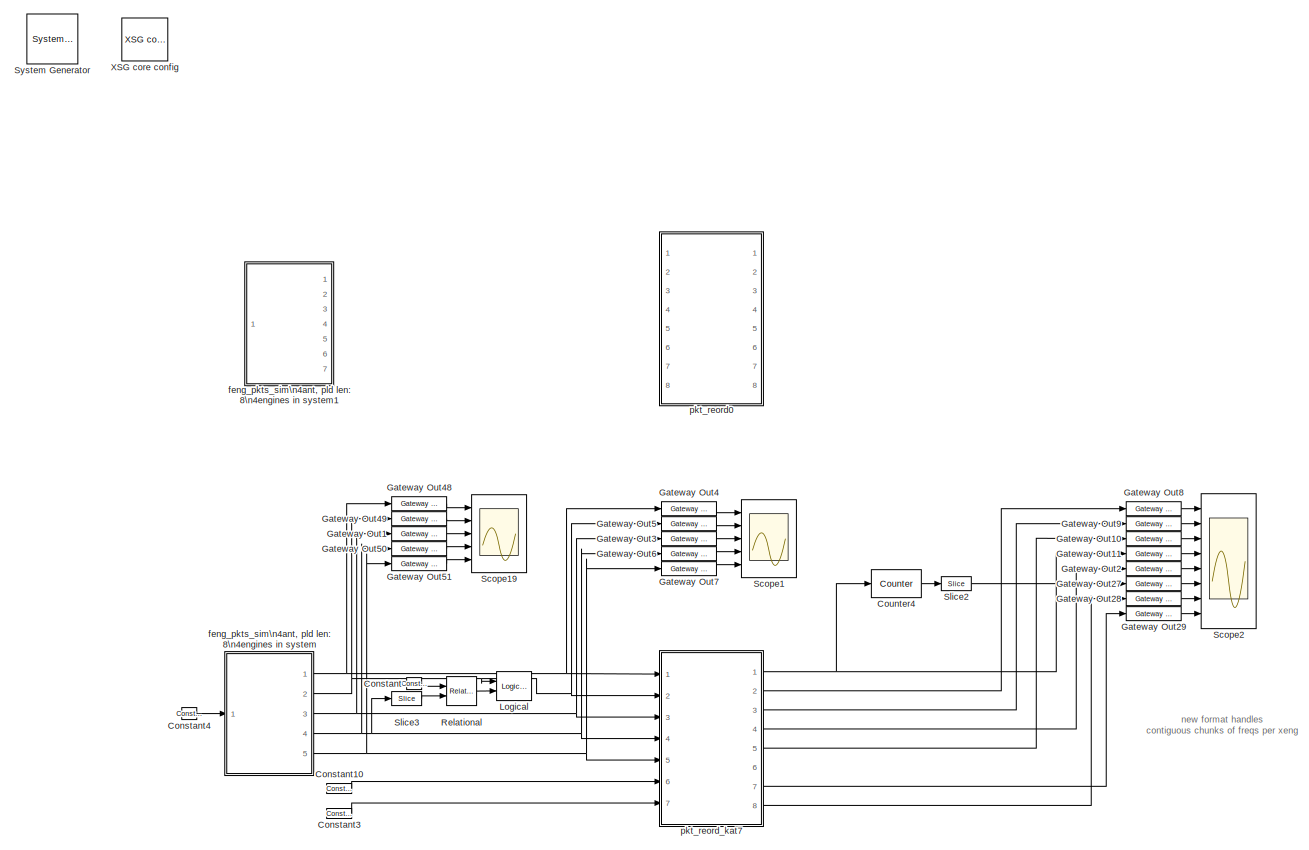
[diagram: root canvas - part 1/2, full width, middle band]
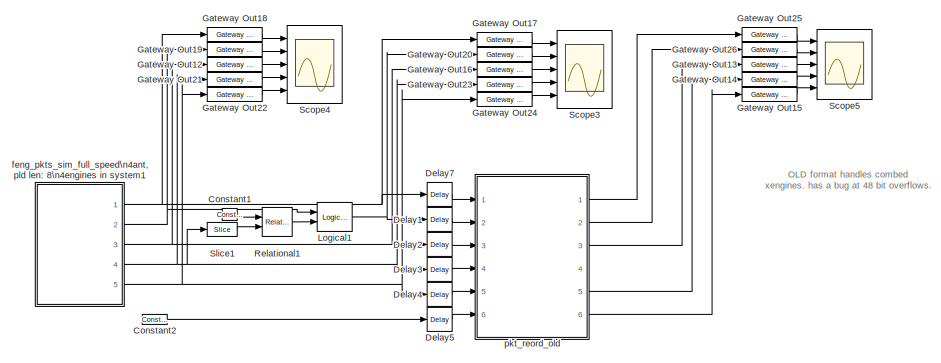
[diagram: root canvas - part 2/2, bottom center region]
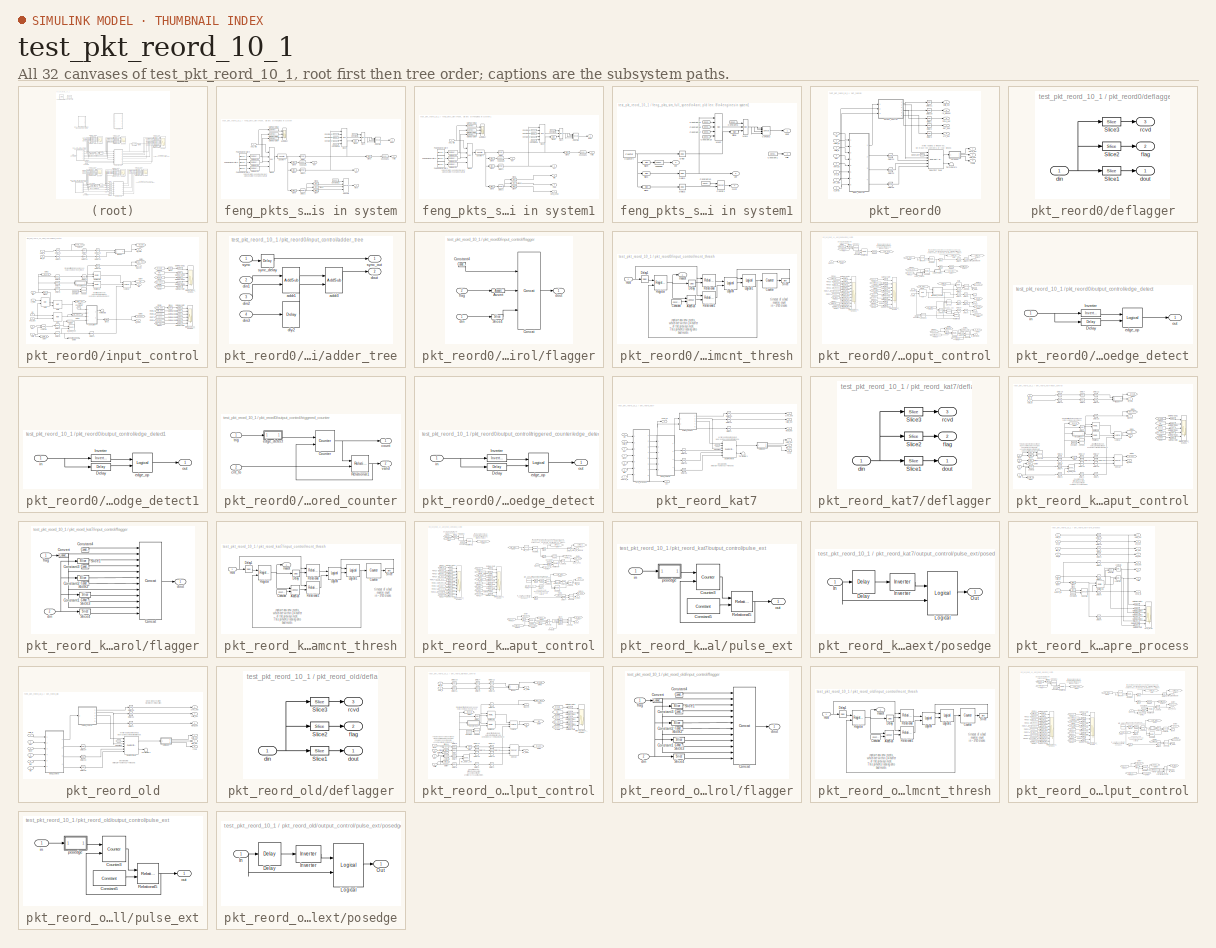
[diagram: thumbnail index - all 32 canvases of the model, root first then tree order]
MODEL test_pkt_reord_10_1
KIND model
BLOCK [Reference]  System Generator  REF=xbsIndex_r4/ System Generator
  AttributesFormatString = System\\nGenerator
  Impl_file = ISE Defaults
  Ports = []
  SID = 1
  SourceBlock = xbsIndex_r4/ System Generator
  SourceType = Xilinx System Generator Block
  Synth_file = XST Defaults
  Tag = genX
  UserData = DataTag0
  UserDataPersistent = on
  block_type = sysgen
  block_version = 10.1.3
  clock_wrapper = Clock Enables
  core_generation = According to Block Masks
  dbl_ovrd = According to Block Masks
  dcm_input_clock_period = 100
  deprecated_control = off
  directory = ./test_pkt_reord_10_1/sysgen
  eval_field = 0
  has_advanced_control = 0
  incr_netlist = off
  infoedit = System Generator
  package = ff1704
  part = xc2vp70
  proj_type = Project Navigator
  run_coregen = off
  sg_icon_stat = 51,50,0,0,token,white,0,58c5b5770fe5f7c311f53dbc6e73f0f6,right,,[ ],[ ]
  sg_mask_display = fprintf('','COMMENT: begin icon graphics');\npatch([0 51 51 0 0 ],[0 0 50 50 0 ],[1 1 1 ]);\npatch([1.6375 16.81 27.31 37.81 48.31 27.31 12.1375 1.6375 ],[36.655 36.655 47.155 36.655 47.155 47.155 47.155 36.655 ],[0.933333 0.203922 0.141176 ]);\npatch([12.1375 27.31 16.81 1.6375 12.1375 ],[26.155 26.155 36.655 36.655 26.155 ],[0.698039 0.0313725 0.219608 ]);\npatch([1.6375 16.81 27.31 12.1375 1.63...<+337ch>
  sggui_pos = -1,-1,-1,-1
  simulink_period = 1
  speed = -7
  synthesis_tool = XST
  sysclk_period = 10
  testbench = off
  trim_vbits = Everywhere in SubSystem
  xilinxfamily = virtex2p
BLOCK [Reference] Constant  REF=xbsIndex_r4/Constant
  Ports = [0, 1]
  SID = 2
  SourceBlock = xbsIndex_r4/Constant
  SourceType = Xilinx Constant Block Block
  arith_type = Unsigned
  bin_pt = 0
  block_type = constant
  block_version = 10.1.3
  carry = CIN
  const = 1
  dbl_ovrd = off
  dsp48_infoedit = The use of this block for DSP48 instructions is deprecated.  Please use the Opmode block.
  equ = P=C
  exp_width = 8
  explicit_period = on
  frac_width = 24
  gui_display_data_type = Fixed-point
  has_advanced_control = 0
  inp1 = P
  inp2 = PCIN>>17
  n_bits = 2
  opr = +
  opselect = C
  period = 1
  preci_type = Single
  sg_icon_stat = 15,12,0,1,white,blue,0,1c72b5be,right,,[ ],[ ]
  sg_list_contents = {'table'=>{'carry'=>'popup(0|1|CIN|~SIGN(P or PCIN)|~SIGN(A*B or A:B)|~SIGND(A*B or A:B))','inp1'=>'popup(0|P|A:B|A*B|C|P+C|A:B+C)','inp2'=>'popup(0|PCIN|P|C|PCIN>>17|P>>17)','opselect'=>'popup(C + A*B|PCIN + A*B|P + A*B|A * B|C + A:B|C - A:B|C|Custom)','userSelections'=>{'carry'=>'CIN','inp1'=>'P','inp2'=>'PCIN>>17','opselect'=>'C'}}}  <repeated x5 — deduplicated; at blocks: Constant, Constant3, Constant2>
  sg_mask_display = fprintf('','COMMENT: begin icon graphics');\npatch([0 15 15 0 0 ],[0 0 12 12 0 ],[0.77 0.82 0.91 ]);\nplot([0 15 15 0 0 ],[0 0 12 12 0 ]);\npatch([4.775 6.22 7.22 8.22 9.22 7.22 5.775 4.775 ],[7.11 7.11 8.11 7.11 8.11 8.11 8.11 7.11 ],[1 1 1 ]);\npatch([5.775 7.22 6.22 4.775 5.775 ],[6.11 6.11 7.11 7.11 6.11 ],[0.931 0.946 0.973 ]);\npatch([4.775 6.22 7.22 5.775 4.775 ],[5.11 5.11 6.11 6.11 5.11 ]...<+289ch>  <repeated x3 — deduplicated; at blocks: Constant, Constant1, Constant4>
  sggui_pos = 21,51,478,435
BLOCK [Reference] Constant1  REF=xbsIndex_r4/Constant
  Ports = [0, 1]
  SID = 3
  SourceBlock = xbsIndex_r4/Constant
  SourceType = Xilinx Constant Block Block
  arith_type = Unsigned
  bin_pt = 0
  block_type = constant
  block_version = 10.1.3
  carry = CIN
  const = 0
  dbl_ovrd = off
  dsp48_infoedit = The use of this block for DSP48 instructions is deprecated.  Please use the Opmode block.
  equ = P=C
  exp_width = 8
  explicit_period = off
  frac_width = 24
  gui_display_data_type = Fixed-point
  has_advanced_control = 0
  inp1 = P
  inp2 = PCIN>>17
  n_bits = 2
  opr = +
  opselect = C
  period = 1
  preci_type = Single
  sg_icon_stat = 15,12,0,1,white,blue,0,bf4ddd8b,right,,[ ],[ ]
  sggui_pos = 20,20,414,344
BLOCK [Reference] Constant10  REF=xbsIndex_r4/Constant
  Ports = [0, 1]
  SID = 4
  SourceBlock = xbsIndex_r4/Constant
  SourceType = Xilinx Constant Block Block
  arith_type = Unsigned
  bin_pt = 0
  block_type = constant
  block_version = 10.1.3
  carry = CIN
  const = 0
  dbl_ovrd = off
  dsp48_infoedit = The use of this block for DSP48 instructions is deprecated.  Please use the Opmode block.
  equ = P=C
  exp_width = 8
  explicit_period = on
  frac_width = 24
  gui_display_data_type = Fixed-point
  has_advanced_control = 0
  inp1 = P
  inp2 = PCIN>>17
  n_bits = 1
  opr = +
  opselect = C
  period = 1
  preci_type = Single
  sg_icon_stat = 25,10,0,1,white,blue,0,bf4ddd8b,right,,[ ],[ ]
  sg_mask_display = fprintf('','COMMENT: begin icon graphics');\npatch([0 25 25 0 0 ],[0 0 10 10 0 ],[0.77 0.82 0.91 ]);\nplot([0 25 25 0 0 ],[0 0 10 10 0 ]);\npatch([9.775 11.22 12.22 13.22 14.22 12.22 10.775 9.775 ],[6.11 6.11 7.11 6.11 7.11 7.11 7.11 6.11 ],[1 1 1 ]);\npatch([10.775 12.22 11.22 9.775 10.775 ],[5.11 5.11 6.11 6.11 5.11 ],[0.931 0.946 0.973 ]);\npatch([9.775 11.22 12.22 10.775 9.775 ],[4.11 4.11 5.1...<+308ch>  <repeated x3 — deduplicated; at blocks: Constant10, Constant2, Constant3>
  sggui_pos = -1,-1,-1,-1
BLOCK [Reference] Constant2  REF=xbsIndex_r4/Constant
  Ports = [0, 1]
  SID = 5
  SourceBlock = xbsIndex_r4/Constant
  SourceType = Xilinx Constant Block Block
  arith_type = Unsigned
  bin_pt = 0
  block_type = constant
  block_version = 10.1.3
  carry = CIN
  const = 0
  dbl_ovrd = off
  dsp48_infoedit = The use of this block for DSP48 instructions is deprecated.  Please use the Opmode block.
  equ = P=C
  exp_width = 8
  explicit_period = on
  frac_width = 24
  gui_display_data_type = Fixed-point
  has_advanced_control = 0
  inp1 = P
  inp2 = PCIN>>17
  n_bits = 1
  opr = +
  opselect = C
  period = 1
  preci_type = Single
  sg_icon_stat = 25,10,0,1,white,blue,0,bf4ddd8b,right,,[ ],[ ]
  sggui_pos = -1,-1,-1,-1
BLOCK [Reference] Constant3  REF=xbsIndex_r4/Constant
  Ports = [0, 1]
  SID = 6
  SourceBlock = xbsIndex_r4/Constant
  SourceType = Xilinx Constant Block Block
  arith_type = Unsigned
  bin_pt = 0
  block_type = constant
  block_version = 10.1.3
  carry = CIN
  const = 0
  dbl_ovrd = off
  dsp48_infoedit = The use of this block for DSP48 instructions is deprecated.  Please use the Opmode block.
  equ = P=C
  exp_width = 8
  explicit_period = on
  frac_width = 24
  gui_display_data_type = Fixed-point
  has_advanced_control = 0
  inp1 = P
  inp2 = PCIN>>17
  n_bits = 32
  opr = +
  opselect = C
  period = 1
  preci_type = Single
  sg_icon_stat = 25,10,0,1,white,blue,0,bf4ddd8b,right,,[ ],[ ]
  sggui_pos = 22,228,478,435
BLOCK [Reference] Constant4  REF=xbsIndex_r4/Constant
  Ports = [0, 1]
  SID = 7
  SourceBlock = xbsIndex_r4/Constant
  SourceType = Xilinx Constant Block Block
  arith_type = Unsigned
  bin_pt = 0
  block_type = constant
  block_version = 10.1.3
  carry = CIN
  const = 1
  dbl_ovrd = off
  dsp48_infoedit = The use of this block for DSP48 instructions is deprecated.  Please use the Opmode block.
  equ = P=C
  exp_width = 8
  explicit_period = off
  frac_width = 24
  gui_display_data_type = Fixed-point
  has_advanced_control = 0
  inp1 = P
  inp2 = PCIN>>17
  n_bits = 2
  opr = +
  opselect = C
  period = 1
  preci_type = Single
  sg_icon_stat = 15,12,0,1,white,blue,0,1c72b5be,right,,[ ],[ ]
  sggui_pos = 20,20,414,344
BLOCK [Reference] Counter4  REF=xbsIndex_r4/Counter
  Ports = [1, 1]
  SID = 8
  SourceBlock = xbsIndex_r4/Counter
  SourceType = Xilinx Counter Block
  arith_type = Unsigned
  bin_pt = 0
  block_type = counter
  block_version = 10.1.3
  cnt_by_val = 1
  cnt_to = 32
  cnt_type = Free Running
  dbl_ovrd = off
  en = off
  explicit_period = off
  has_advanced_control = 0
  implementation = Fabric
  infoedit = Hardware notes: Free running counters are the least expensive in hardware.  A count limited counter is implemented by combining a counter with a comparator.
  load_pin = off
  n_bits = 32
  operation = Up
  period = 1
  rst = on
  sg_icon_stat = 50,28,1,1,white,blue,0,803eba70,right,,[ ],[ ]
  sg_mask_display = fprintf('','COMMENT: begin icon graphics');\npatch([0 50 50 0 0 ],[0 0 28 28 0 ],[0.77 0.82 0.91 ]);\nplot([0 50 50 0 0 ],[0 0 28 28 0 ]);\npatch([16.1 21.88 25.88 29.88 33.88 25.88 20.1 16.1 ],[18.44 18.44 22.44 18.44 22.44 22.44 22.44 18.44 ],[1 1 1 ]);\npatch([20.1 25.88 21.88 16.1 20.1 ],[14.44 14.44 18.44 18.44 14.44 ],[0.931 0.946 0.973 ]);\npatch([16.1 21.88 25.88 20.1 16.1 ],[10.44 10.44 1...<+375ch>
  sggui_pos = 20,20,348,619
  start_count = 0
  use_behavioral_HDL = off
  use_rpm = on
  xl_area = [0, 0, 0, 0, 0, 0, 0]
  xl_use_area = off
BLOCK [Reference] Delay1  REF=xbsIndex_r4/Delay
  Ports = [1, 1]
  SID = 9
  SourceBlock = xbsIndex_r4/Delay
  SourceType = Xilinx Delay Block
  block_type = delay
  block_version = 10.1.3
  dbl_ovrd = off
  en = off
  has_advanced_control = 0
  infoedit = Hardware notes: A delay line is a chain, each link of which is an SRL16 followed by a flip-flop.
  infoeditControl = Selection of Reset will increase slice count due to use of real FFs and instead of SRLs
  latency = 10
  reg_retiming = on
  rst = off
  sg_icon_stat = 25,24,1,1,white,blue,0,8c471295,right,,[ ],[ ]
  sg_mask_display = fprintf('','COMMENT: begin icon graphics');\npatch([0 25 25 0 0 ],[0 0 24 24 0 ],[0.77 0.82 0.91 ]);\nplot([0 25 25 0 0 ],[0 0 24 24 0 ]);\npatch([5.325 9.66 12.66 15.66 18.66 12.66 8.325 5.325 ],[15.33 15.33 18.33 15.33 18.33 18.33 18.33 15.33 ],[1 1 1 ]);\npatch([8.325 12.66 9.66 5.325 8.325 ],[12.33 12.33 15.33 15.33 12.33 ],[0.931 0.946 0.973 ]);\npatch([5.325 9.66 12.66 8.325 5.325 ],[9.33 9....<+321ch>  <repeated x6 — deduplicated; at blocks: Delay1, Delay2, Delay3, Delay4, Delay5, Delay7>
  sggui_pos = 20,20,348,255
  xl_area = [0, 0, 0, 0, 0, 0, 0]
  xl_use_area = off
BLOCK [Reference] Delay2  REF=xbsIndex_r4/Delay
  Ports = [1, 1]
  SID = 10
  SourceBlock = xbsIndex_r4/Delay
  SourceType = Xilinx Delay Block
  block_type = delay
  block_version = 10.1.3
  dbl_ovrd = off
  en = off
  has_advanced_control = 0
  infoedit = Hardware notes: A delay line is a chain, each link of which is an SRL16 followed by a flip-flop.
  infoeditControl = Selection of Reset will increase slice count due to use of real FFs and instead of SRLs
  latency = 10
  reg_retiming = on
  rst = off
  sg_icon_stat = 25,24,1,1,white,blue,0,8c471295,right,,[ ],[ ]
  sggui_pos = 20,20,348,255
  xl_area = [0, 0, 0, 0, 0, 0, 0]
  xl_use_area = off
BLOCK [Reference] Delay3  REF=xbsIndex_r4/Delay
  Ports = [1, 1]
  SID = 11
  SourceBlock = xbsIndex_r4/Delay
  SourceType = Xilinx Delay Block
  block_type = delay
  block_version = 10.1.3
  dbl_ovrd = off
  en = off
  has_advanced_control = 0
  infoedit = Hardware notes: A delay line is a chain, each link of which is an SRL16 followed by a flip-flop.
  infoeditControl = Selection of Reset will increase slice count due to use of real FFs and instead of SRLs
  latency = 10
  reg_retiming = on
  rst = off
  sg_icon_stat = 25,24,1,1,white,blue,0,8c471295,right,,[ ],[ ]
  sggui_pos = 20,20,348,255
  xl_area = [0, 0, 0, 0, 0, 0, 0]
  xl_use_area = off
BLOCK [Reference] Delay4  REF=xbsIndex_r4/Delay
  Ports = [1, 1]
  SID = 12
  SourceBlock = xbsIndex_r4/Delay
  SourceType = Xilinx Delay Block
  block_type = delay
  block_version = 10.1.3
  dbl_ovrd = off
  en = off
  has_advanced_control = 0
  infoedit = Hardware notes: A delay line is a chain, each link of which is an SRL16 followed by a flip-flop.
  infoeditControl = Selection of Reset will increase slice count due to use of real FFs and instead of SRLs
  latency = 10
  reg_retiming = on
  rst = off
  sg_icon_stat = 25,24,1,1,white,blue,0,8c471295,right,,[ ],[ ]
  sggui_pos = 20,20,348,255
  xl_area = [0, 0, 0, 0, 0, 0, 0]
  xl_use_area = off
BLOCK [Reference] Delay5  REF=xbsIndex_r4/Delay
  Ports = [1, 1]
  SID = 13
  SourceBlock = xbsIndex_r4/Delay
  SourceType = Xilinx Delay Block
  block_type = delay
  block_version = 10.1.3
  dbl_ovrd = off
  en = off
  has_advanced_control = 0
  infoedit = Hardware notes: A delay line is a chain, each link of which is an SRL16 followed by a flip-flop.
  infoeditControl = Selection of Reset will increase slice count due to use of real FFs and instead of SRLs
  latency = 10
  reg_retiming = on
  rst = off
  sg_icon_stat = 25,24,1,1,white,blue,0,8c471295,right,,[ ],[ ]
  sggui_pos = 20,20,348,255
  xl_area = [0, 0, 0, 0, 0, 0, 0]
  xl_use_area = off
BLOCK [Reference] Delay7  REF=xbsIndex_r4/Delay
  Ports = [1, 1]
  SID = 14
  SourceBlock = xbsIndex_r4/Delay
  SourceType = Xilinx Delay Block
  block_type = delay
  block_version = 10.1.3
  dbl_ovrd = off
  en = off
  has_advanced_control = 0
  infoedit = Hardware notes: A delay line is a chain, each link of which is an SRL16 followed by a flip-flop.
  infoeditControl = Selection of Reset will increase slice count due to use of real FFs and instead of SRLs
  latency = 10
  reg_retiming = on
  rst = off
  sg_icon_stat = 25,24,1,1,white,blue,0,8c471295,right,,[ ],[ ]
  sggui_pos = 20,20,348,255
  xl_area = [0, 0, 0, 0, 0, 0, 0]
  xl_use_area = off
BLOCK [Reference] Gateway Out1  REF=xbsIndex_r4/Gateway Out
  DACChannel = '1'
  LOCs = {}
  Ports = [1, 1]
  SID = 15
  SourceBlock = xbsIndex_r4/Gateway Out
  SourceType = Xilinx Gateway Out Block
  UseAsDAC = off
  block_type = gatewayout
  block_version = 10.1.3
  has_advanced_control = 0
  hdl_port = on
  infoedit = Gateway out block.  Converts Xilinx fixed point inputs into ouputs of type Simulink integer, double, or fixed point.<P><P>Hardware notes:  In hardware these blocks become top level output ports or are discarded, depending on how they are configured.  <repeated x120 — deduplicated; at blocks: Gateway Out1, Gateway Out10, Gateway Out11, Gateway Out12, Gateway Out13, Gateway Out14, Gateway Out15, Gateway Out16, Gateway Out17, Gateway Out18, Gateway Out19, Gateway Out2, Gateway Out20, Gateway Out21, Gateway Out22, Gateway Out23, +20 more>
  inherit_from_input = off
  locs_specified = off
  sg_icon_stat = 55,14,1,1,white,yellow,1,cc31b7ac,right,,[ ],[ ]
  sg_mask_display = fprintf('','COMMENT: begin icon graphics');\npatch([0 55 55 0 0 ],[0 0 14 14 0 ],[0.95 0.93 0.65 ]);\nplot([0 55 55 0 0 ],[0 0 14 14 0 ]);\npatch([22.55 25.44 27.44 29.44 31.44 27.44 24.55 22.55 ],[9.22 9.22 11.22 9.22 11.22 11.22 11.22 9.22 ],[1 1 1 ]);\npatch([24.55 27.44 25.44 22.55 24.55 ],[7.22 7.22 9.22 9.22 7.22 ],[0.985 0.979 0.895 ]);\npatch([22.55 25.44 27.44 24.55 22.55 ],[5.22 5.22 7.2...<+386ch>  <repeated x39 — deduplicated; at blocks: Gateway Out1, Gateway Out10, Gateway Out11, Gateway Out12, Gateway Out13, Gateway Out14, Gateway Out15, Gateway Out16, Gateway Out17, Gateway Out18, Gateway Out19, Gateway Out2, Gateway Out20, Gateway Out21, Gateway Out22, Gateway Out23, +20 more>
  sggui_pos = -1,-1,-1,-1
  timing_constraint = None
  xl_area = [0, 0, 0, 0, 0, 0, 0]
  xl_use_area = off
BLOCK [Reference] Gateway Out10  REF=xbsIndex_r4/Gateway Out
  DACChannel = '1'
  LOCs = {}
  Ports = [1, 1]
  SID = 16
  SourceBlock = xbsIndex_r4/Gateway Out
  SourceType = Xilinx Gateway Out Block
  UseAsDAC = off
  block_type = gatewayout
  block_version = 10.1.3
  has_advanced_control = 0
  hdl_port = on
  inherit_from_input = off
  locs_specified = off
  sg_icon_stat = 55,14,1,1,white,yellow,1,cc31b7ac,right,,[ ],[ ]
  sggui_pos = -1,-1,-1,-1
  timing_constraint = None
  xl_area = [0, 0, 0, 0, 0, 0, 0]
  xl_use_area = off
BLOCK [Reference] Gateway Out11  REF=xbsIndex_r4/Gateway Out
  DACChannel = '1'
  LOCs = {}
  Ports = [1, 1]
  SID = 17
  SourceBlock = xbsIndex_r4/Gateway Out
  SourceType = Xilinx Gateway Out Block
  UseAsDAC = off
  block_type = gatewayout
  block_version = 10.1.3
  has_advanced_control = 0
  hdl_port = on
  inherit_from_input = off
  locs_specified = off
  sg_icon_stat = 55,14,1,1,white,yellow,1,cc31b7ac,right,,[ ],[ ]
  sggui_pos = -1,-1,-1,-1
  timing_constraint = None
  xl_area = [0, 0, 0, 0, 0, 0, 0]
  xl_use_area = off
BLOCK [Reference] Gateway Out12  REF=xbsIndex_r4/Gateway Out
  DACChannel = '1'
  LOCs = {}
  Ports = [1, 1]
  SID = 18
  SourceBlock = xbsIndex_r4/Gateway Out
  SourceType = Xilinx Gateway Out Block
  UseAsDAC = off
  block_type = gatewayout
  block_version = 10.1.3
  has_advanced_control = 0
  hdl_port = on
  inherit_from_input = off
  locs_specified = off
  sg_icon_stat = 55,14,1,1,white,yellow,1,cc31b7ac,right,,[ ],[ ]
  sggui_pos = -1,-1,-1,-1
  timing_constraint = None
  xl_area = [0, 0, 0, 0, 0, 0, 0]
  xl_use_area = off
BLOCK [Reference] Gateway Out13  REF=xbsIndex_r4/Gateway Out
  DACChannel = '1'
  LOCs = {}
  Ports = [1, 1]
  SID = 19
  SourceBlock = xbsIndex_r4/Gateway Out
  SourceType = Xilinx Gateway Out Block
  UseAsDAC = off
  block_type = gatewayout
  block_version = 10.1.3
  has_advanced_control = 0
  hdl_port = on
  inherit_from_input = off
  locs_specified = off
  sg_icon_stat = 55,14,1,1,white,yellow,1,cc31b7ac,right,,[ ],[ ]
  sggui_pos = -1,-1,-1,-1
  timing_constraint = None
  xl_area = [0, 0, 0, 0, 0, 0, 0]
  xl_use_area = off
BLOCK [Reference] Gateway Out14  REF=xbsIndex_r4/Gateway Out
  DACChannel = '1'
  LOCs = {}
  Ports = [1, 1]
  SID = 20
  SourceBlock = xbsIndex_r4/Gateway Out
  SourceType = Xilinx Gateway Out Block
  UseAsDAC = off
  block_type = gatewayout
  block_version = 10.1.3
  has_advanced_control = 0
  hdl_port = on
  inherit_from_input = off
  locs_specified = off
  sg_icon_stat = 55,14,1,1,white,yellow,1,cc31b7ac,right,,[ ],[ ]
  sggui_pos = -1,-1,-1,-1
  timing_constraint = None
  xl_area = [0, 0, 0, 0, 0, 0, 0]
  xl_use_area = off
BLOCK [Reference] Gateway Out15  REF=xbsIndex_r4/Gateway Out
  DACChannel = '1'
  LOCs = {}
  Ports = [1, 1]
  SID = 21
  SourceBlock = xbsIndex_r4/Gateway Out
  SourceType = Xilinx Gateway Out Block
  UseAsDAC = off
  block_type = gatewayout
  block_version = 10.1.3
  has_advanced_control = 0
  hdl_port = on
  inherit_from_input = off
  locs_specified = off
  sg_icon_stat = 55,14,1,1,white,yellow,1,cc31b7ac,right,,[ ],[ ]
  sggui_pos = -1,-1,-1,-1
  timing_constraint = None
  xl_area = [0, 0, 0, 0, 0, 0, 0]
  xl_use_area = off
BLOCK [Reference] Gateway Out16  REF=xbsIndex_r4/Gateway Out
  DACChannel = '1'
  LOCs = {}
  Ports = [1, 1]
  SID = 22
  SourceBlock = xbsIndex_r4/Gateway Out
  SourceType = Xilinx Gateway Out Block
  UseAsDAC = off
  block_type = gatewayout
  block_version = 10.1.3
  has_advanced_control = 0
  hdl_port = on
  inherit_from_input = off
  locs_specified = off
  sg_icon_stat = 55,14,1,1,white,yellow,1,cc31b7ac,right,,[ ],[ ]
  sggui_pos = -1,-1,-1,-1
  timing_constraint = None
  xl_area = [0, 0, 0, 0, 0, 0, 0]
  xl_use_area = off
BLOCK [Reference] Gateway Out17  REF=xbsIndex_r4/Gateway Out
  DACChannel = '1'
  LOCs = {}
  Ports = [1, 1]
  SID = 23
  SourceBlock = xbsIndex_r4/Gateway Out
  SourceType = Xilinx Gateway Out Block
  UseAsDAC = off
  block_type = gatewayout
  block_version = 10.1.3
  has_advanced_control = 0
  hdl_port = on
  inherit_from_input = off
  locs_specified = off
  sg_icon_stat = 55,14,1,1,white,yellow,1,cc31b7ac,right,,[ ],[ ]
  sggui_pos = -1,-1,-1,-1
  timing_constraint = None
  xl_area = [0, 0, 0, 0, 0, 0, 0]
  xl_use_area = off
BLOCK [Reference] Gateway Out18  REF=xbsIndex_r4/Gateway Out
  DACChannel = '1'
  LOCs = {}
  Ports = [1, 1]
  SID = 24
  SourceBlock = xbsIndex_r4/Gateway Out
  SourceType = Xilinx Gateway Out Block
  UseAsDAC = off
  block_type = gatewayout
  block_version = 10.1.3
  has_advanced_control = 0
  hdl_port = on
  inherit_from_input = off
  locs_specified = off
  sg_icon_stat = 55,14,1,1,white,yellow,1,cc31b7ac,right,,[ ],[ ]
  sggui_pos = -1,-1,-1,-1
  timing_constraint = None
  xl_area = [0, 0, 0, 0, 0, 0, 0]
  xl_use_area = off
BLOCK [Reference] Gateway Out19  REF=xbsIndex_r4/Gateway Out
  DACChannel = '1'
  LOCs = {}
  Ports = [1, 1]
  SID = 25
  SourceBlock = xbsIndex_r4/Gateway Out
  SourceType = Xilinx Gateway Out Block
  UseAsDAC = off
  block_type = gatewayout
  block_version = 10.1.3
  has_advanced_control = 0
  hdl_port = on
  inherit_from_input = off
  locs_specified = off
  sg_icon_stat = 55,14,1,1,white,yellow,1,cc31b7ac,right,,[ ],[ ]
  sggui_pos = -1,-1,-1,-1
  timing_constraint = None
  xl_area = [0, 0, 0, 0, 0, 0, 0]
  xl_use_area = off
BLOCK [Reference] Gateway Out2  REF=xbsIndex_r4/Gateway Out
  DACChannel = '1'
  LOCs = {}
  Ports = [1, 1]
  SID = 26
  SourceBlock = xbsIndex_r4/Gateway Out
  SourceType = Xilinx Gateway Out Block
  UseAsDAC = off
  block_type = gatewayout
  block_version = 10.1.3
  has_advanced_control = 0
  hdl_port = on
  inherit_from_input = off
  locs_specified = off
  sg_icon_stat = 55,14,1,1,white,yellow,1,cc31b7ac,right,,[ ],[ ]
  sggui_pos = -1,-1,-1,-1
  timing_constraint = None
  xl_area = [0, 0, 0, 0, 0, 0, 0]
  xl_use_area = off
BLOCK [Reference] Gateway Out20  REF=xbsIndex_r4/Gateway Out
  DACChannel = '1'
  LOCs = {}
  Ports = [1, 1]
  SID = 27
  SourceBlock = xbsIndex_r4/Gateway Out
  SourceType = Xilinx Gateway Out Block
  UseAsDAC = off
  block_type = gatewayout
  block_version = 10.1.3
  has_advanced_control = 0
  hdl_port = on
  inherit_from_input = off
  locs_specified = off
  sg_icon_stat = 55,14,1,1,white,yellow,1,cc31b7ac,right,,[ ],[ ]
  sggui_pos = -1,-1,-1,-1
  timing_constraint = None
  xl_area = [0, 0, 0, 0, 0, 0, 0]
  xl_use_area = off
BLOCK [Reference] Gateway Out21  REF=xbsIndex_r4/Gateway Out
  DACChannel = '1'
  LOCs = {}
  Ports = [1, 1]
  SID = 28
  SourceBlock = xbsIndex_r4/Gateway Out
  SourceType = Xilinx Gateway Out Block
  UseAsDAC = off
  block_type = gatewayout
  block_version = 10.1.3
  has_advanced_control = 0
  hdl_port = on
  inherit_from_input = off
  locs_specified = off
  sg_icon_stat = 55,14,1,1,white,yellow,1,cc31b7ac,right,,[ ],[ ]
  sggui_pos = -1,-1,-1,-1
  timing_constraint = None
  xl_area = [0, 0, 0, 0, 0, 0, 0]
  xl_use_area = off
BLOCK [Reference] Gateway Out22  REF=xbsIndex_r4/Gateway Out
  DACChannel = '1'
  LOCs = {}
  Ports = [1, 1]
  SID = 29
  SourceBlock = xbsIndex_r4/Gateway Out
  SourceType = Xilinx Gateway Out Block
  UseAsDAC = off
  block_type = gatewayout
  block_version = 10.1.3
  has_advanced_control = 0
  hdl_port = on
  inherit_from_input = off
  locs_specified = off
  sg_icon_stat = 55,14,1,1,white,yellow,1,cc31b7ac,right,,[ ],[ ]
  sggui_pos = -1,-1,-1,-1
  timing_constraint = None
  xl_area = [0, 0, 0, 0, 0, 0, 0]
  xl_use_area = off
BLOCK [Reference] Gateway Out23  REF=xbsIndex_r4/Gateway Out
  DACChannel = '1'
  LOCs = {}
  Ports = [1, 1]
  SID = 30
  SourceBlock = xbsIndex_r4/Gateway Out
  SourceType = Xilinx Gateway Out Block
  UseAsDAC = off
  block_type = gatewayout
  block_version = 10.1.3
  has_advanced_control = 0
  hdl_port = on
  inherit_from_input = off
  locs_specified = off
  sg_icon_stat = 55,14,1,1,white,yellow,1,cc31b7ac,right,,[ ],[ ]
  sggui_pos = -1,-1,-1,-1
  timing_constraint = None
  xl_area = [0, 0, 0, 0, 0, 0, 0]
  xl_use_area = off
BLOCK [Reference] Gateway Out24  REF=xbsIndex_r4/Gateway Out
  DACChannel = '1'
  LOCs = {}
  Ports = [1, 1]
  SID = 31
  SourceBlock = xbsIndex_r4/Gateway Out
  SourceType = Xilinx Gateway Out Block
  UseAsDAC = off
  block_type = gatewayout
  block_version = 10.1.3
  has_advanced_control = 0
  hdl_port = on
  inherit_from_input = off
  locs_specified = off
  sg_icon_stat = 55,14,1,1,white,yellow,1,cc31b7ac,right,,[ ],[ ]
  sggui_pos = -1,-1,-1,-1
  timing_constraint = None
  xl_area = [0, 0, 0, 0, 0, 0, 0]
  xl_use_area = off
BLOCK [Reference] Gateway Out25  REF=xbsIndex_r4/Gateway Out
  DACChannel = '1'
  LOCs = {}
  Ports = [1, 1]
  SID = 32
  SourceBlock = xbsIndex_r4/Gateway Out
  SourceType = Xilinx Gateway Out Block
  UseAsDAC = off
  block_type = gatewayout
  block_version = 10.1.3
  has_advanced_control = 0
  hdl_port = on
  inherit_from_input = off
  locs_specified = off
  sg_icon_stat = 55,14,1,1,white,yellow,1,cc31b7ac,right,,[ ],[ ]
  sggui_pos = -1,-1,-1,-1
  timing_constraint = None
  xl_area = [0, 0, 0, 0, 0, 0, 0]
  xl_use_area = off
BLOCK [Reference] Gateway Out26  REF=xbsIndex_r4/Gateway Out
  DACChannel = '1'
  LOCs = {}
  Ports = [1, 1]
  SID = 33
  SourceBlock = xbsIndex_r4/Gateway Out
  SourceType = Xilinx Gateway Out Block
  UseAsDAC = off
  block_type = gatewayout
  block_version = 10.1.3
  has_advanced_control = 0
  hdl_port = on
  inherit_from_input = off
  locs_specified = off
  sg_icon_stat = 55,14,1,1,white,yellow,1,cc31b7ac,right,,[ ],[ ]
  sggui_pos = -1,-1,-1,-1
  timing_constraint = None
  xl_area = [0, 0, 0, 0, 0, 0, 0]
  xl_use_area = off
BLOCK [Reference] Gateway Out27  REF=xbsIndex_r4/Gateway Out
  DACChannel = '1'
  LOCs = {}
  Ports = [1, 1]
  SID = 34
  SourceBlock = xbsIndex_r4/Gateway Out
  SourceType = Xilinx Gateway Out Block
  UseAsDAC = off
  block_type = gatewayout
  block_version = 10.1.3
  has_advanced_control = 0
  hdl_port = on
  inherit_from_input = off
  locs_specified = off
  sg_icon_stat = 55,14,1,1,white,yellow,1,cc31b7ac,right,,[ ],[ ]
  sggui_pos = -1,-1,-1,-1
  timing_constraint = None
  xl_area = [0, 0, 0, 0, 0, 0, 0]
  xl_use_area = off
BLOCK [Reference] Gateway Out28  REF=xbsIndex_r4/Gateway Out
  DACChannel = '1'
  LOCs = {}
  Ports = [1, 1]
  SID = 35
  SourceBlock = xbsIndex_r4/Gateway Out
  SourceType = Xilinx Gateway Out Block
  UseAsDAC = off
  block_type = gatewayout
  block_version = 10.1.3
  has_advanced_control = 0
  hdl_port = on
  inherit_from_input = off
  locs_specified = off
  sg_icon_stat = 55,14,1,1,white,yellow,1,cc31b7ac,right,,[ ],[ ]
  sggui_pos = -1,-1,-1,-1
  timing_constraint = None
  xl_area = [0, 0, 0, 0, 0, 0, 0]
  xl_use_area = off
BLOCK [Reference] Gateway Out29  REF=xbsIndex_r4/Gateway Out
  DACChannel = '1'
  LOCs = {}
  Ports = [1, 1]
  SID = 36
  SourceBlock = xbsIndex_r4/Gateway Out
  SourceType = Xilinx Gateway Out Block
  UseAsDAC = off
  block_type = gatewayout
  block_version = 10.1.3
  has_advanced_control = 0
  hdl_port = on
  inherit_from_input = off
  locs_specified = off
  sg_icon_stat = 55,14,1,1,white,yellow,1,cc31b7ac,right,,[ ],[ ]
  sggui_pos = -1,-1,-1,-1
  timing_constraint = None
  xl_area = [0, 0, 0, 0, 0, 0, 0]
  xl_use_area = off
BLOCK [Reference] Gateway Out3  REF=xbsIndex_r4/Gateway Out
  DACChannel = '1'
  LOCs = {}
  Ports = [1, 1]
  SID = 37
  SourceBlock = xbsIndex_r4/Gateway Out
  SourceType = Xilinx Gateway Out Block
  UseAsDAC = off
  block_type = gatewayout
  block_version = 10.1.3
  has_advanced_control = 0
  hdl_port = on
  inherit_from_input = off
  locs_specified = off
  sg_icon_stat = 55,14,1,1,white,yellow,1,cc31b7ac,right,,[ ],[ ]
  sggui_pos = -1,-1,-1,-1
  timing_constraint = None
  xl_area = [0, 0, 0, 0, 0, 0, 0]
  xl_use_area = off
BLOCK [Reference] Gateway Out4  REF=xbsIndex_r4/Gateway Out
  DACChannel = '1'
  LOCs = {}
  Ports = [1, 1]
  SID = 38
  SourceBlock = xbsIndex_r4/Gateway Out
  SourceType = Xilinx Gateway Out Block
  UseAsDAC = off
  block_type = gatewayout
  block_version = 10.1.3
  has_advanced_control = 0
  hdl_port = on
  inherit_from_input = off
  locs_specified = off
  sg_icon_stat = 55,14,1,1,white,yellow,1,cc31b7ac,right,,[ ],[ ]
  sggui_pos = -1,-1,-1,-1
  timing_constraint = None
  xl_area = [0, 0, 0, 0, 0, 0, 0]
  xl_use_area = off
BLOCK [Reference] Gateway Out48  REF=xbsIndex_r4/Gateway Out
  DACChannel = '1'
  LOCs = {}
  Ports = [1, 1]
  SID = 39
  SourceBlock = xbsIndex_r4/Gateway Out
  SourceType = Xilinx Gateway Out Block
  UseAsDAC = off
  block_type = gatewayout
  block_version = 10.1.3
  has_advanced_control = 0
  hdl_port = on
  inherit_from_input = off
  locs_specified = off
  sg_icon_stat = 55,14,1,1,white,yellow,1,cc31b7ac,right,,[ ],[ ]
  sggui_pos = -1,-1,-1,-1
  timing_constraint = None
  xl_area = [0, 0, 0, 0, 0, 0, 0]
  xl_use_area = off
BLOCK [Reference] Gateway Out49  REF=xbsIndex_r4/Gateway Out
  DACChannel = '1'
  LOCs = {}
  Ports = [1, 1]
  SID = 40
  SourceBlock = xbsIndex_r4/Gateway Out
  SourceType = Xilinx Gateway Out Block
  UseAsDAC = off
  block_type = gatewayout
  block_version = 10.1.3
  has_advanced_control = 0
  hdl_port = on
  inherit_from_input = off
  locs_specified = off
  sg_icon_stat = 55,14,1,1,white,yellow,1,cc31b7ac,right,,[ ],[ ]
  sggui_pos = -1,-1,-1,-1
  timing_constraint = None
  xl_area = [0, 0, 0, 0, 0, 0, 0]
  xl_use_area = off
BLOCK [Reference] Gateway Out5  REF=xbsIndex_r4/Gateway Out
  DACChannel = '1'
  LOCs = {}
  Ports = [1, 1]
  SID = 41
  SourceBlock = xbsIndex_r4/Gateway Out
  SourceType = Xilinx Gateway Out Block
  UseAsDAC = off
  block_type = gatewayout
  block_version = 10.1.3
  has_advanced_control = 0
  hdl_port = on
  inherit_from_input = off
  locs_specified = off
  sg_icon_stat = 55,14,1,1,white,yellow,1,cc31b7ac,right,,[ ],[ ]
  sggui_pos = -1,-1,-1,-1
  timing_constraint = None
  xl_area = [0, 0, 0, 0, 0, 0, 0]
  xl_use_area = off
BLOCK [Reference] Gateway Out50  REF=xbsIndex_r4/Gateway Out
  DACChannel = '1'
  LOCs = {}
  Ports = [1, 1]
  SID = 42
  SourceBlock = xbsIndex_r4/Gateway Out
  SourceType = Xilinx Gateway Out Block
  UseAsDAC = off
  block_type = gatewayout
  block_version = 10.1.3
  has_advanced_control = 0
  hdl_port = on
  inherit_from_input = off
  locs_specified = off
  sg_icon_stat = 55,14,1,1,white,yellow,1,cc31b7ac,right,,[ ],[ ]
  sggui_pos = -1,-1,-1,-1
  timing_constraint = None
  xl_area = [0, 0, 0, 0, 0, 0, 0]
  xl_use_area = off
BLOCK [Reference] Gateway Out51  REF=xbsIndex_r4/Gateway Out
  DACChannel = '1'
  LOCs = {}
  Ports = [1, 1]
  SID = 43
  SourceBlock = xbsIndex_r4/Gateway Out
  SourceType = Xilinx Gateway Out Block
  UseAsDAC = off
  block_type = gatewayout
  block_version = 10.1.3
  has_advanced_control = 0
  hdl_port = on
  inherit_from_input = off
  locs_specified = off
  sg_icon_stat = 55,14,1,1,white,yellow,1,cc31b7ac,right,,[ ],[ ]
  sggui_pos = -1,-1,-1,-1
  timing_constraint = None
  xl_area = [0, 0, 0, 0, 0, 0, 0]
  xl_use_area = off
BLOCK [Reference] Gateway Out6  REF=xbsIndex_r4/Gateway Out
  DACChannel = '1'
  LOCs = {}
  Ports = [1, 1]
  SID = 44
  SourceBlock = xbsIndex_r4/Gateway Out
  SourceType = Xilinx Gateway Out Block
  UseAsDAC = off
  block_type = gatewayout
  block_version = 10.1.3
  has_advanced_control = 0
  hdl_port = on
  inherit_from_input = off
  locs_specified = off
  sg_icon_stat = 55,14,1,1,white,yellow,1,cc31b7ac,right,,[ ],[ ]
  sggui_pos = -1,-1,-1,-1
  timing_constraint = None
  xl_area = [0, 0, 0, 0, 0, 0, 0]
  xl_use_area = off
BLOCK [Reference] Gateway Out7  REF=xbsIndex_r4/Gateway Out
  DACChannel = '1'
  LOCs = {}
  Ports = [1, 1]
  SID = 45
  SourceBlock = xbsIndex_r4/Gateway Out
  SourceType = Xilinx Gateway Out Block
  UseAsDAC = off
  block_type = gatewayout
  block_version = 10.1.3
  has_advanced_control = 0
  hdl_port = on
  inherit_from_input = off
  locs_specified = off
  sg_icon_stat = 55,14,1,1,white,yellow,1,cc31b7ac,right,,[ ],[ ]
  sggui_pos = -1,-1,-1,-1
  timing_constraint = None
  xl_area = [0, 0, 0, 0, 0, 0, 0]
  xl_use_area = off
BLOCK [Reference] Gateway Out8  REF=xbsIndex_r4/Gateway Out
  DACChannel = '1'
  LOCs = {}
  Ports = [1, 1]
  SID = 46
  SourceBlock = xbsIndex_r4/Gateway Out
  SourceType = Xilinx Gateway Out Block
  UseAsDAC = off
  block_type = gatewayout
  block_version = 10.1.3
  has_advanced_control = 0
  hdl_port = on
  inherit_from_input = off
  locs_specified = off
  sg_icon_stat = 55,14,1,1,white,yellow,1,cc31b7ac,right,,[ ],[ ]
  sggui_pos = -1,-1,-1,-1
  timing_constraint = None
  xl_area = [0, 0, 0, 0, 0, 0, 0]
  xl_use_area = off
BLOCK [Reference] Gateway Out9  REF=xbsIndex_r4/Gateway Out
  DACChannel = '1'
  LOCs = {}
  Ports = [1, 1]
  SID = 47
  SourceBlock = xbsIndex_r4/Gateway Out
  SourceType = Xilinx Gateway Out Block
  UseAsDAC = off
  block_type = gatewayout
  block_version = 10.1.3
  has_advanced_control = 0
  hdl_port = on
  inherit_from_input = off
  locs_specified = off
  sg_icon_stat = 55,14,1,1,white,yellow,1,cc31b7ac,right,,[ ],[ ]
  sggui_pos = -1,-1,-1,-1
  timing_constraint = None
  xl_area = [0, 0, 0, 0, 0, 0, 0]
  xl_use_area = off
BLOCK [Reference] Logical  REF=xbsIndex_r4/Logical
  Ports = [2, 1]
  SID = 48
  SourceBlock = xbsIndex_r4/Logical
  SourceType = Xilinx Logical Block Block
  align_bp = on
  arith_type = Unsigned
  bin_pt = 0
  block_type = logical
  block_version = 10.1.3
  dbl_ovrd = off
  en = off
  has_advanced_control = 0
  inputs = 2
  latency = 0
  logical_function = AND
  n_bits = 16
  precision = Full
  sg_icon_stat = 35,29,2,1,white,blue,0,83a4b621,right,,[ ],[ ]
  sg_mask_display = fprintf('','COMMENT: begin icon graphics');\npatch([0 35 35 0 0 ],[0 0 29 29 0 ],[0.77 0.82 0.91 ]);\nplot([0 35 35 0 0 ],[0 0 29 29 0 ]);\npatch([8.1 13.88 17.88 21.88 25.88 17.88 12.1 8.1 ],[18.44 18.44 22.44 18.44 22.44 22.44 22.44 18.44 ],[1 1 1 ]);\npatch([12.1 17.88 13.88 8.1 12.1 ],[14.44 14.44 18.44 18.44 14.44 ],[0.931 0.946 0.973 ]);\npatch([8.1 13.88 17.88 12.1 8.1 ],[10.44 10.44 14.44 ...<+294ch>
  sggui_pos = -1,-1,-1,-1
  xl_area = [0,0,0,0,0,0,0]
  xl_use_area = off
BLOCK [Reference] Logical1  REF=xbsIndex_r4/Logical
  Ports = [2, 1]
  SID = 49
  SourceBlock = xbsIndex_r4/Logical
  SourceType = Xilinx Logical Block Block
  align_bp = on
  arith_type = Unsigned
  bin_pt = 0
  block_type = logical
  block_version = 10.1.3
  dbl_ovrd = off
  en = off
  has_advanced_control = 0
  inputs = 2
  latency = 0
  logical_function = AND
  n_bits = 16
  precision = Full
  sg_icon_stat = 35,29,2,1,white,blue,0,83a4b621,right,,[ ],[ ]
  sg_mask_display = fprintf('','COMMENT: begin icon graphics');\npatch([0 35 35 0 0 ],[0 0 29 29 0 ],[0.77 0.82 0.91 ]);\nplot([0 35 35 0 0 ],[0 0 29 29 0 ]);\npatch([8.1 13.88 17.88 21.88 25.88 17.88 12.1 8.1 ],[18.44 18.44 22.44 18.44 22.44 22.44 22.44 18.44 ],[1 1 1 ]);\npatch([12.1 17.88 13.88 8.1 12.1 ],[14.44 14.44 18.44 18.44 14.44 ],[0.931 0.946 0.973 ]);\npatch([8.1 13.88 17.88 12.1 8.1 ],[10.44 10.44 14.44 ...<+294ch>
  sggui_pos = -1,-1,-1,-1
  xl_area = [0,0,0,0,0,0,0]
  xl_use_area = off
BLOCK [Reference] Relational  REF=xbsIndex_r4/Relational
  Ports = [2, 1]
  SID = 50
  SourceBlock = xbsIndex_r4/Relational
  SourceType = Xilinx Arithmetic Relational Operator Block
  block_type = relational
  block_version = 10.1.3
  dbl_ovrd = off
  en = off
  has_advanced_control = 0
  latency = 1
  mode = a=b
  sg_icon_stat = 30,29,2,1,white,blue,0,3618233f,right,,[ ],[ ]
  sg_mask_display = fprintf('','COMMENT: begin icon graphics');\npatch([0 30 30 0 0 ],[0 0 29 29 0 ],[0.77 0.82 0.91 ]);\nplot([0 30 30 0 0 ],[0 0 29 29 0 ]);\npatch([6.1 11.88 15.88 19.88 23.88 15.88 10.1 6.1 ],[18.44 18.44 22.44 18.44 22.44 22.44 22.44 18.44 ],[1 1 1 ]);\npatch([10.1 15.88 11.88 6.1 10.1 ],[14.44 14.44 18.44 18.44 14.44 ],[0.931 0.946 0.973 ]);\npatch([6.1 11.88 15.88 10.1 6.1 ],[10.44 10.44 14.44 ...<+500ch>
  sggui_pos = -1,-1,-1,-1
  xl_area = [0,0,0,0,0,0,0]
  xl_use_area = off
BLOCK [Reference] Relational1  REF=xbsIndex_r4/Relational
  Ports = [2, 1]
  SID = 51
  SourceBlock = xbsIndex_r4/Relational
  SourceType = Xilinx Arithmetic Relational Operator Block
  block_type = relational
  block_version = 10.1.3
  dbl_ovrd = off
  en = off
  has_advanced_control = 0
  latency = 1
  mode = a=b
  sg_icon_stat = 30,29,2,1,white,blue,0,3618233f,right,,[ ],[ ]
  sg_mask_display = fprintf('','COMMENT: begin icon graphics');\npatch([0 30 30 0 0 ],[0 0 29 29 0 ],[0.77 0.82 0.91 ]);\nplot([0 30 30 0 0 ],[0 0 29 29 0 ]);\npatch([6.1 11.88 15.88 19.88 23.88 15.88 10.1 6.1 ],[18.44 18.44 22.44 18.44 22.44 22.44 22.44 18.44 ],[1 1 1 ]);\npatch([10.1 15.88 11.88 6.1 10.1 ],[14.44 14.44 18.44 18.44 14.44 ],[0.931 0.946 0.973 ]);\npatch([6.1 11.88 15.88 10.1 6.1 ],[10.44 10.44 14.44 ...<+500ch>
  sggui_pos = -1,-1,-1,-1
  xl_area = [0,0,0,0,0,0,0]
  xl_use_area = off
BLOCK [Scope] Scope1
  DataFormat = StructureWithTime
  Floating = off
  LimitDataPoints = off
  NumInputPorts = 5
  Ports = [5]
  SID = 52
  SampleTime = 0
  SaveName = ScopeData6
  ShowLegends = off
  YMax = 1.2e+15~1~1~500~3
  YMin = 2e+14~0~0~0~0
  ZoomMode = xonly
BLOCK [Scope] Scope19
  DataFormat = StructureWithTime
  Floating = off
  LimitDataPoints = off
  NumInputPorts = 5
  Ports = [5]
  SID = 53
  SampleTime = 0
  SaveName = ScopeData3
  ShowLegends = off
  YMax = 3e+014~1~1~3000~3
  YMin = 0~0~0~0~0
  ZoomMode = xonly
BLOCK [Scope] Scope2
  DataFormat = StructureWithTime
  Floating = off
  LimitDataPoints = off
  NumInputPorts = 8
  Ports = [8]
  SID = 54
  SampleTime = 0
  ShowLegends = off
  YMax = 4~1~1~1~7~90~1~1
  YMin = 0~0~0~-1~1~30~-1~0
  ZoomMode = yonly
BLOCK [Scope] Scope3
  DataFormat = StructureWithTime
  Floating = off
  LimitDataPoints = off
  NumInputPorts = 5
  Ports = [5]
  SID = 55
  SampleTime = 0
  SaveName = ScopeData7
  ShowLegends = off
  YMax = 3e+014~1~1~3000~3
  YMin = 0~0~0~0~0
  ZoomMode = xonly
BLOCK [Scope] Scope4
  DataFormat = StructureWithTime
  Floating = off
  LimitDataPoints = off
  NumInputPorts = 5
  Ports = [5]
  SID = 56
  SampleTime = 0
  SaveName = ScopeData8
  ShowLegends = off
  YMax = 3e+014~1~1~3000~3
  YMin = 0~0~0~0~0
  ZoomMode = xonly
BLOCK [Scope] Scope5
  DataFormat = StructureWithTime
  Floating = off
  LimitDataPoints = off
  NumInputPorts = 5
  Ports = [5]
  SID = 57
  SampleTime = 0
  SaveName = ScopeData9
  ShowLegends = off
  YMax = 1~1~1~1~5
  YMin = 0~0~0~-1~-5
  ZoomMode = xonly
BLOCK [Reference] Slice1  REF=xbsIndex_r4/Slice
  Ports = [1, 1]
  SID = 58
  SourceBlock = xbsIndex_r4/Slice
  SourceType = Xilinx Bit Slice Extractor Block
  base0 = LSB of Input
  base1 = MSB of Input
  bit0 = 0
  bit1 = 0
  block_type = slice
  block_version = 10.1.3
  boolean_output = off
  dbl_ovrd = off
  has_advanced_control = 0
  infoedit = Extracts a given range of bits from each input sample and presents it at the output.  The output type is ordinarily unsigned with binary point at zero, but can be Boolean when the slice is one bit wide.<P><P>Hardware notes: In hardware this block costs nothing.  <repeated x54 — deduplicated; at blocks: Slice1, Slice2, Slice3, Slice8, Slice9, Slice, Slice7, Slice4, Slice5, Slice6, Slice14>
  mode = Lower Bit Location + Width
  nbits = 2
  sg_icon_stat = 30,14,1,1,white,blue,0,1fd851a7,right,,[ ],[ ]
  sg_mask_display = fprintf('','COMMENT: begin icon graphics');\npatch([0 30 30 0 0 ],[0 0 14 14 0 ],[0.77 0.82 0.91 ]);\nplot([0 30 30 0 0 ],[0 0 14 14 0 ]);\npatch([10.55 13.44 15.44 17.44 19.44 15.44 12.55 10.55 ],[9.22 9.22 11.22 9.22 11.22 11.22 11.22 9.22 ],[1 1 1 ]);\npatch([12.55 15.44 13.44 10.55 12.55 ],[7.22 7.22 9.22 9.22 7.22 ],[0.931 0.946 0.973 ]);\npatch([10.55 13.44 15.44 12.55 10.55 ],[5.22 5.22 7.2...<+312ch>  <repeated x26 — deduplicated; at blocks: Slice1, Slice2, Slice3, Slice4, Slice5, Slice6, Slice8, Slice9, Slice, Slice7>
  sggui_pos = 790,441,460,380
BLOCK [Reference] Slice2  REF=xbsIndex_r4/Slice
  Ports = [1, 1]
  SID = 59
  SourceBlock = xbsIndex_r4/Slice
  SourceType = Xilinx Bit Slice Extractor Block
  base0 = LSB of Input
  base1 = MSB of Input
  bit0 = 2+5
  bit1 = 0
  block_type = slice
  block_version = 10.1.3
  boolean_output = off
  dbl_ovrd = off
  has_advanced_control = 0
  mode = Lower Bit Location + Width
  nbits = 32-(2+5)
  sg_icon_stat = 30,14,1,1,white,blue,0,1fd851a7,right,,[ ],[ ]
  sggui_pos = 790,441,460,380
BLOCK [Reference] Slice3  REF=xbsIndex_r4/Slice
  Ports = [1, 1]
  SID = 60
  SourceBlock = xbsIndex_r4/Slice
  SourceType = Xilinx Bit Slice Extractor Block
  base0 = LSB of Input
  base1 = LSB of Input
  bit0 = 6
  bit1 = 8
  block_type = slice
  block_version = 10.1.3
  boolean_output = off
  dbl_ovrd = off
  has_advanced_control = 0
  infoedit = Extracts a given range of bits from each input sample and presents it at the output.  The output type is ordinarily unsigned with binary point at zero, but can be Boolean when the slice is one bit wide.<br><br>Hardware notes: In hardware this block costs nothing.  <repeated x24 — deduplicated; at blocks: Slice3, Slice2, Slice4, Slice5, Slice6, Slice1, Slice9, Slice14, Slice8>
  mode = Lower Bit Location + Width
  nbits = 2
  sg_icon_stat = 30,14,1,1,white,blue,0,1fd851a7,right,,[ ],[ ]
  sggui_pos = 1080,268,594,505
BLOCK [Reference] XSG core config  REF=xps_library/XSG core config  (lib defined in mdl_00b5cec29cd0, mdl_02ab6ecaa3d1, +5 more)
  Ports = []
  ROACH2_clk_src = adc0_clk
  ROACH_clk_src = sys_clk
  SID = 61
  SourceBlock = xps_library/XSG core config
  SourceType = xsg core config
  Tag = xps:xsg
  clk_rate = 100
  clk_src = sys_clk
  hw_sys = ROACH:sx95t
  sample_period = 1
  synthesis_tool = XST
BLOCK [SubSystem] feng_pkts_sim\n4ant, pld len: 8\n4engines in system
  FunctionWithSeparateData = off
  MaskHideContents = off
  MinAlgLoopOccurrences = off
  Opaque = off
  Ports = [1, 5]
  PropExecContextOutsideSubsystem = off
  RTWSystemCode = Auto
  RequestExecContextInheritance = off
  SID = 62
BLOCK [Reference] feng_pkts_sim\n4ant, pld len: 8\n4engines in system/Concat1  REF=xbsIndex_r4/Concat
  Ports = [4, 1]
  SID = 64
  SourceBlock = xbsIndex_r4/Concat
  SourceType = Xilinx Bus Concatenator Block
  block_type = concat
  block_version = 10.1.3
  dbl_ovrd = off
  has_advanced_control = 0
  infoedit = Concatenates two or more inputs.  Output will be cast to an unsigned value with the binary point at zero.
  num_inputs = 4
  sg_icon_stat = 30,80,4,1,white,blue,0,47d3d416,right,,[ ],[ ]
  sg_mask_display = fprintf('','COMMENT: begin icon graphics');\npatch([0 30 30 0 0 ],[0 0 80 80 0 ],[0.77 0.82 0.91 ]);\nplot([0 30 30 0 0 ],[0 0 80 80 0 ]);\npatch([6.1 11.88 15.88 19.88 23.88 15.88 10.1 6.1 ],[44.44 44.44 48.44 44.44 48.44 48.44 48.44 44.44 ],[1 1 1 ]);\npatch([10.1 15.88 11.88 6.1 10.1 ],[40.44 40.44 44.44 44.44 40.44 ],[0.931 0.946 0.973 ]);\npatch([6.1 11.88 15.88 10.1 6.1 ],[36.44 36.44 40.44 ...<+415ch>
  sggui_pos = 22,228,328,214
BLOCK [Reference] feng_pkts_sim\n4ant, pld len: 8\n4engines in system/Concat2  REF=xbsIndex_r4/Concat
  Ports = [4, 1]
  SID = 65
  SourceBlock = xbsIndex_r4/Concat
  SourceType = Xilinx Bus Concatenator Block
  block_type = concat
  block_version = 10.1.3
  dbl_ovrd = off
  has_advanced_control = 0
  infoedit = Concatenates two or more inputs.  Output will be cast to an unsigned value with the binary point at zero.
  num_inputs = 4
  sg_icon_stat = 30,36,4,1,white,blue,0,47d3d416,right,,[ ],[ ]
  sg_mask_display = fprintf('','COMMENT: begin icon graphics');\npatch([0 30 30 0 0 ],[0 0 36 36 0 ],[0.77 0.82 0.91 ]);\nplot([0 30 30 0 0 ],[0 0 36 36 0 ]);\npatch([6.1 11.88 15.88 19.88 23.88 15.88 10.1 6.1 ],[22.44 22.44 26.44 22.44 26.44 26.44 26.44 22.44 ],[1 1 1 ]);\npatch([10.1 15.88 11.88 6.1 10.1 ],[18.44 18.44 22.44 22.44 18.44 ],[0.931 0.946 0.973 ]);\npatch([6.1 11.88 15.88 10.1 6.1 ],[14.44 14.44 18.44 ...<+415ch>
  sggui_pos = -1,-1,-1,-1
BLOCK [Reference] feng_pkts_sim\n4ant, pld len: 8\n4engines in system/Constant11  REF=xbsIndex_r4/Constant
  Ports = [0, 1]
  SID = 66
  SourceBlock = xbsIndex_r4/Constant
  SourceType = Xilinx Constant Block Block
  arith_type = Unsigned
  bin_pt = 0
  block_type = constant
  block_version = 10.1.3
  carry = CIN
  const = 1
  dbl_ovrd = off
  dsp48_infoedit = The use of this block for DSP48 instructions is deprecated.  Please use the Opmode block.
  equ = P=C
  exp_width = 8
  explicit_period = on
  frac_width = 24
  gui_display_data_type = Fixed-point
  has_advanced_control = 0
  inp1 = P
  inp2 = PCIN>>17
  n_bits = 16
  opr = +
  opselect = C
  period = 1
  preci_type = Single
  sg_icon_stat = 30,10,0,1,white,blue,0,1c72b5be,right,,[ ],[ ]
  sg_mask_display = fprintf('','COMMENT: begin icon graphics');\npatch([0 30 30 0 0 ],[0 0 10 10 0 ],[0.77 0.82 0.91 ]);\nplot([0 30 30 0 0 ],[0 0 10 10 0 ]);\npatch([12.775 14.22 15.22 16.22 17.22 15.22 13.775 12.775 ],[6.11 6.11 7.11 6.11 7.11 7.11 7.11 6.11 ],[1 1 1 ]);\npatch([13.775 15.22 14.22 12.775 13.775 ],[5.11 5.11 6.11 6.11 5.11 ],[0.931 0.946 0.973 ]);\npatch([12.775 14.22 15.22 13.775 12.775 ],[4.11 4.1...<+314ch>  <repeated x10 — deduplicated; at blocks: Constant11, Constant16, Constant17, Constant18, Constant5>
  sggui_pos = -1,-1,-1,-1
BLOCK [Reference] feng_pkts_sim\n4ant, pld len: 8\n4engines in system/Constant13  REF=xbsIndex_r4/Constant
  Ports = [0, 1]
  SID = 67
  SourceBlock = xbsIndex_r4/Constant
  SourceType = Xilinx Constant Block Block
  arith_type = Unsigned
  bin_pt = 0
  block_type = constant
  block_version = 10.1.3
  carry = CIN
  const = 0
  dbl_ovrd = off
  dsp48_infoedit = The use of this block for DSP48 instructions is deprecated.  Please use the Opmode block.
  equ = P=C
  exp_width = 8
  explicit_period = on
  frac_width = 24
  gui_display_data_type = Fixed-point
  has_advanced_control = 0
  inp1 = P
  inp2 = PCIN>>17
  n_bits = 48-(32-6)
  opr = +
  opselect = C
  period = 1
  preci_type = Single
  sg_icon_stat = 35,16,0,1,white,blue,0,bf4ddd8b,right,,[ ],[ ]
  sg_mask_display = fprintf('','COMMENT: begin icon graphics');\npatch([0 35 35 0 0 ],[0 0 16 16 0 ],[0.77 0.82 0.91 ]);\nplot([0 35 35 0 0 ],[0 0 16 16 0 ]);\npatch([12.55 15.44 17.44 19.44 21.44 17.44 14.55 12.55 ],[10.22 10.22 12.22 10.22 12.22 12.22 12.22 10.22 ],[1 1 1 ]);\npatch([14.55 17.44 15.44 12.55 14.55 ],[8.22 8.22 10.22 10.22 8.22 ],[0.931 0.946 0.973 ]);\npatch([12.55 15.44 17.44 14.55 12.55 ],[6.22 6....<+312ch>  <repeated x4 — deduplicated; at blocks: Constant13, Constant, Constant1>
  sggui_pos = 20,20,414,344
BLOCK [Reference] feng_pkts_sim\n4ant, pld len: 8\n4engines in system/Constant16  REF=xbsIndex_r4/Constant
  Ports = [0, 1]
  SID = 68
  SourceBlock = xbsIndex_r4/Constant
  SourceType = Xilinx Constant Block Block
  arith_type = Unsigned
  bin_pt = 0
  block_type = constant
  block_version = 10.1.3
  carry = CIN
  const = 2
  dbl_ovrd = off
  dsp48_infoedit = The use of this block for DSP48 instructions is deprecated.  Please use the Opmode block.
  equ = P=C
  exp_width = 8
  explicit_period = on
  frac_width = 24
  gui_display_data_type = Fixed-point
  has_advanced_control = 0
  inp1 = P
  inp2 = PCIN>>17
  n_bits = 16
  opr = +
  opselect = C
  period = 1
  preci_type = Single
  sg_icon_stat = 30,10,0,1,white,blue,0,fca86624,right,,[ ],[ ]
  sggui_pos = 20,20,414,344
BLOCK [Reference] feng_pkts_sim\n4ant, pld len: 8\n4engines in system/Constant17  REF=xbsIndex_r4/Constant
  Ports = [0, 1]
  SID = 69
  SourceBlock = xbsIndex_r4/Constant
  SourceType = Xilinx Constant Block Block
  arith_type = Unsigned
  bin_pt = 0
  block_type = constant
  block_version = 10.1.3
  carry = CIN
  const = 3
  dbl_ovrd = off
  dsp48_infoedit = The use of this block for DSP48 instructions is deprecated.  Please use the Opmode block.
  equ = P=C
  exp_width = 8
  explicit_period = on
  frac_width = 24
  gui_display_data_type = Fixed-point
  has_advanced_control = 0
  inp1 = P
  inp2 = PCIN>>17
  n_bits = 16
  opr = +
  opselect = C
  period = 1
  preci_type = Single
  sg_icon_stat = 30,10,0,1,white,blue,0,279a71c8,right,,[ ],[ ]
  sggui_pos = 20,20,414,344
BLOCK [Reference] feng_pkts_sim\n4ant, pld len: 8\n4engines in system/Constant18  REF=xbsIndex_r4/Constant
  Ports = [0, 1]
  SID = 70
  SourceBlock = xbsIndex_r4/Constant
  SourceType = Xilinx Constant Block Block
  arith_type = Unsigned
  bin_pt = 0
  block_type = constant
  block_version = 10.1.3
  carry = CIN
  const = 4
  dbl_ovrd = off
  dsp48_infoedit = The use of this block for DSP48 instructions is deprecated.  Please use the Opmode block.
  equ = P=C
  exp_width = 8
  explicit_period = on
  frac_width = 24
  gui_display_data_type = Fixed-point
  has_advanced_control = 0
  inp1 = P
  inp2 = PCIN>>17
  n_bits = 16
  opr = +
  opselect = C
  period = 1
  preci_type = Single
  sg_icon_stat = 30,10,0,1,white,blue,0,85f36853,right,,[ ],[ ]
  sggui_pos = 20,20,414,344
BLOCK [Reference] feng_pkts_sim\n4ant, pld len: 8\n4engines in system/Constant5  REF=xbsIndex_r4/Constant
  Ports = [0, 1]
  SID = 71
  SourceBlock = xbsIndex_r4/Constant
  SourceType = Xilinx Constant Block Block
  arith_type = Unsigned
  bin_pt = 0
  block_type = constant
  block_version = 10.1.3
  carry = CIN
  const = 0
  dbl_ovrd = off
  dsp48_infoedit = The use of this block for DSP48 instructions is deprecated.  Please use the Opmode block.
  equ = P=C
  exp_width = 8
  explicit_period = on
  frac_width = 24
  gui_display_data_type = Fixed-point
  has_advanced_control = 0
  inp1 = P
  inp2 = PCIN>>17
  n_bits = 1
  opr = +
  opselect = C
  period = 1
  preci_type = Single
  sg_icon_stat = 30,10,0,1,white,blue,0,bf4ddd8b,right,,[ ],[ ]
  sggui_pos = 20,20,414,344
BLOCK [Reference] feng_pkts_sim\n4ant, pld len: 8\n4engines in system/Counter4  REF=xbsIndex_r4/Counter
  Ports = [1, 1]
  SID = 72
  SourceBlock = xbsIndex_r4/Counter
  SourceType = Xilinx Counter Block
  arith_type = Unsigned
  bin_pt = 0
  block_type = counter
  block_version = 10.1.3
  cnt_by_val = 1
  cnt_to = 32
  cnt_type = Free Running
  dbl_ovrd = off
  en = on
  explicit_period = off
  has_advanced_control = 0
  implementation = Fabric
  infoedit = Hardware notes: Free running counters are the least expensive in hardware.  A count limited counter is implemented by combining a counter with a comparator.
  load_pin = off
  n_bits = 32
  operation = Up
  period = 1
  rst = off
  sg_icon_stat = 50,28,1,1,white,blue,0,b089e9c5,right,,[ ],[ ]
  sg_mask_display = fprintf('','COMMENT: begin icon graphics');\npatch([0 50 50 0 0 ],[0 0 28 28 0 ],[0.77 0.82 0.91 ]);\nplot([0 50 50 0 0 ],[0 0 28 28 0 ]);\npatch([16.1 21.88 25.88 29.88 33.88 25.88 20.1 16.1 ],[18.44 18.44 22.44 18.44 22.44 22.44 22.44 18.44 ],[1 1 1 ]);\npatch([20.1 25.88 21.88 16.1 20.1 ],[14.44 14.44 18.44 18.44 14.44 ],[0.931 0.946 0.973 ]);\npatch([16.1 21.88 25.88 20.1 16.1 ],[10.44 10.44 1...<+374ch>
  sggui_pos = 20,20,348,618
  start_count = 0
  use_behavioral_HDL = off
  use_rpm = on
  xl_area = [0, 0, 0, 0, 0, 0, 0]
  xl_use_area = off
BLOCK [Reference] feng_pkts_sim\n4ant, pld len: 8\n4engines in system/Delay  REF=xbsIndex_r4/Delay
  Ports = [1, 1]
  SID = 73
  SourceBlock = xbsIndex_r4/Delay
  SourceType = Xilinx Delay Block
  block_type = delay
  block_version = 10.1.3
  dbl_ovrd = off
  en = off
  has_advanced_control = 0
  infoedit = Hardware notes: A delay line is a chain, each link of which is an SRL16 followed by a flip-flop.
  infoeditControl = Selection of Reset will increase slice count due to use of real FFs and instead of SRLs
  latency = 1
  reg_retiming = off
  rst = off
  sg_icon_stat = 25,24,1,1,white,blue,0,07b98262,right,,[ ],[ ]
  sg_mask_display = fprintf('','COMMENT: begin icon graphics');\npatch([0 25 25 0 0 ],[0 0 24 24 0 ],[0.77 0.82 0.91 ]);\nplot([0 25 25 0 0 ],[0 0 24 24 0 ]);\npatch([5.325 9.66 12.66 15.66 18.66 12.66 8.325 5.325 ],[15.33 15.33 18.33 15.33 18.33 18.33 18.33 15.33 ],[1 1 1 ]);\npatch([8.325 12.66 9.66 5.325 8.325 ],[12.33 12.33 15.33 15.33 12.33 ],[0.931 0.946 0.973 ]);\npatch([5.325 9.66 12.66 8.325 5.325 ],[9.33 9....<+320ch>  <repeated x25 — deduplicated; at blocks: Delay, Delay1, Delay2, Delay3, Delay4, Delay5, Delay6, Delay7, Delay8, Delay10, Delay9>
  sggui_pos = -1,-1,-1,-1
  xl_area = [0, 0, 0, 0, 0, 0, 0]
  xl_use_area = off
BLOCK [Reference] feng_pkts_sim\n4ant, pld len: 8\n4engines in system/Delay1  REF=xbsIndex_r4/Delay
  Ports = [1, 1]
  SID = 74
  SourceBlock = xbsIndex_r4/Delay
  SourceType = Xilinx Delay Block
  block_type = delay
  block_version = 10.1.3
  dbl_ovrd = off
  en = off
  has_advanced_control = 0
  infoedit = Hardware notes: A delay line is a chain, each link of which is an SRL16 followed by a flip-flop.
  infoeditControl = Selection of Reset will increase slice count due to use of real FFs and instead of SRLs
  latency = 1
  reg_retiming = off
  rst = off
  sg_icon_stat = 25,24,1,1,white,blue,0,07b98262,right,,[ ],[ ]
  sggui_pos = -1,-1,-1,-1
  xl_area = [0, 0, 0, 0, 0, 0, 0]
  xl_use_area = off
BLOCK [Reference] feng_pkts_sim\n4ant, pld len: 8\n4engines in system/Delay2  REF=xbsIndex_r4/Delay
  Ports = [1, 1]
  SID = 75
  SourceBlock = xbsIndex_r4/Delay
  SourceType = Xilinx Delay Block
  block_type = delay
  block_version = 10.1.3
  dbl_ovrd = off
  en = off
  has_advanced_control = 0
  infoedit = Hardware notes: A delay line is a chain, each link of which is an SRL16 followed by a flip-flop.
  infoeditControl = Selection of Reset will increase slice count due to use of real FFs and instead of SRLs
  latency = 1
  reg_retiming = off
  rst = off
  sg_icon_stat = 25,24,1,1,white,blue,0,07b98262,right,,[ ],[ ]
  sggui_pos = -1,-1,-1,-1
  xl_area = [0, 0, 0, 0, 0, 0, 0]
  xl_use_area = off
BLOCK [Reference] feng_pkts_sim\n4ant, pld len: 8\n4engines in system/Gateway In1  REF=xbsIndex_r4/Gateway In
  ADCChannel = '1'
  LOCs = {}
  Ports = [1, 1]
  SID = 76
  SourceBlock = xbsIndex_r4/Gateway In
  SourceType = Xilinx Gateway In Block
  UseAsADC = off
  arith_type = Boolean
  bin_pt = 6
  block_type = gatewayin
  block_version = 10.1.3
  dbl_ovrd = off
  exp_width = 8
  frac_width = 24
  gui_display_data_type = Fixed-point
  has_advanced_control = 0
  hdl_port = on
  infoedit = Gateway in block.  Converts inputs of type Simulink integer, double and fixed point to  Xilinx fixed point type.<P><P>Hardware notes:  In hardware these blocks become top level input ports.  <repeated x6 — deduplicated; at blocks: Gateway In1, Gateway In3, Gateway In4>
  inherit_from_input = off
  locs_specified = off
  n_bits = 8
  overflow = Wrap
  period = 1
  preci_type = Single
  quantization = Truncate
  sg_icon_stat = 55,22,1,1,white,yellow,1,00d3666e,right,,[ ],[ ]
  sg_mask_display = fprintf('','COMMENT: begin icon graphics');\npatch([0 55 55 0 0 ],[0 0 22 22 0 ],[0.95 0.93 0.65 ]);\nplot([0 55 55 0 0 ],[0 0 22 22 0 ]);\npatch([20.325 24.66 27.66 30.66 33.66 27.66 23.325 20.325 ],[14.33 14.33 17.33 14.33 17.33 17.33 17.33 14.33 ],[1 1 1 ]);\npatch([23.325 27.66 24.66 20.325 23.325 ],[11.33 11.33 14.33 14.33 11.33 ],[0.985 0.979 0.895 ]);\npatch([20.325 24.66 27.66 23.325 20.32...<+408ch>  <repeated x6 — deduplicated; at blocks: Gateway In1, Gateway In3, Gateway In4>
  sggui_pos = -1,-1,-1,-1
  timing_constraint = None
  xl_area = [0, 0, 0, 0, 0, 0, 0]
  xl_use_area = off
BLOCK [Reference] feng_pkts_sim\n4ant, pld len: 8\n4engines in system/Gateway In3  REF=xbsIndex_r4/Gateway In
  ADCChannel = '1'
  LOCs = {}
  Ports = [1, 1]
  SID = 77
  SourceBlock = xbsIndex_r4/Gateway In
  SourceType = Xilinx Gateway In Block
  UseAsADC = off
  arith_type = Boolean
  bin_pt = 6
  block_type = gatewayin
  block_version = 10.1.3
  dbl_ovrd = off
  exp_width = 8
  frac_width = 24
  gui_display_data_type = Fixed-point
  has_advanced_control = 0
  hdl_port = on
  inherit_from_input = off
  locs_specified = off
  n_bits = 8
  overflow = Wrap
  period = 1
  preci_type = Single
  quantization = Truncate
  sg_icon_stat = 55,22,1,1,white,yellow,1,00d3666e,right,,[ ],[ ]
  sggui_pos = 20,20,348,406
  timing_constraint = None
  xl_area = [0, 0, 0, 0, 0, 0, 0]
  xl_use_area = off
BLOCK [Reference] feng_pkts_sim\n4ant, pld len: 8\n4engines in system/Gateway In4  REF=xbsIndex_r4/Gateway In
  ADCChannel = '1'
  LOCs = {}
  Ports = [1, 1]
  SID = 78
  SourceBlock = xbsIndex_r4/Gateway In
  SourceType = Xilinx Gateway In Block
  UseAsADC = off
  arith_type = Boolean
  bin_pt = 6
  block_type = gatewayin
  block_version = 10.1.3
  dbl_ovrd = off
  exp_width = 8
  frac_width = 24
  gui_display_data_type = Fixed-point
  has_advanced_control = 0
  hdl_port = on
  inherit_from_input = off
  locs_specified = off
  n_bits = 8
  overflow = Wrap
  period = 1
  preci_type = Single
  quantization = Truncate
  sg_icon_stat = 55,22,1,1,white,yellow,1,00d3666e,right,,[ ],[ ]
  sggui_pos = -1,-1,-1,-1
  timing_constraint = None
  xl_area = [0, 0, 0, 0, 0, 0, 0]
  xl_use_area = off
BLOCK [Reference] feng_pkts_sim\n4ant, pld len: 8\n4engines in system/Gateway Out52  REF=xbsIndex_r4/Gateway Out
  DACChannel = '1'
  LOCs = {}
  Ports = [1, 1]
  SID = 79
  SourceBlock = xbsIndex_r4/Gateway Out
  SourceType = Xilinx Gateway Out Block
  UseAsDAC = off
  block_type = gatewayout
  block_version = 10.1.3
  has_advanced_control = 0
  hdl_port = on
  inherit_from_input = off
  locs_specified = off
  sg_icon_stat = 55,14,1,1,white,yellow,1,cc31b7ac,right,,[ ],[ ]
  sggui_pos = -1,-1,-1,-1
  timing_constraint = None
  xl_area = [0, 0, 0, 0, 0, 0, 0]
  xl_use_area = off
BLOCK [Reference] feng_pkts_sim\n4ant, pld len: 8\n4engines in system/Gateway Out53  REF=xbsIndex_r4/Gateway Out
  DACChannel = '1'
  LOCs = {}
  Ports = [1, 1]
  SID = 80
  SourceBlock = xbsIndex_r4/Gateway Out
  SourceType = Xilinx Gateway Out Block
  UseAsDAC = off
  block_type = gatewayout
  block_version = 10.1.3
  has_advanced_control = 0
  hdl_port = on
  inherit_from_input = off
  locs_specified = off
  sg_icon_stat = 55,14,1,1,white,yellow,1,cc31b7ac,right,,[ ],[ ]
  sggui_pos = -1,-1,-1,-1
  timing_constraint = None
  xl_area = [0, 0, 0, 0, 0, 0, 0]
  xl_use_area = off
BLOCK [Reference] feng_pkts_sim\n4ant, pld len: 8\n4engines in system/Gateway Out54  REF=xbsIndex_r4/Gateway Out
  DACChannel = '1'
  LOCs = {}
  Ports = [1, 1]
  SID = 81
  SourceBlock = xbsIndex_r4/Gateway Out
  SourceType = Xilinx Gateway Out Block
  UseAsDAC = off
  block_type = gatewayout
  block_version = 10.1.3
  has_advanced_control = 0
  hdl_port = on
  inherit_from_input = off
  locs_specified = off
  sg_icon_stat = 55,14,1,1,white,yellow,1,cc31b7ac,right,,[ ],[ ]
  sggui_pos = -1,-1,-1,-1
  timing_constraint = None
  xl_area = [0, 0, 0, 0, 0, 0, 0]
  xl_use_area = off
BLOCK [Reference] feng_pkts_sim\n4ant, pld len: 8\n4engines in system/Mux3  REF=xbsIndex_r4/Mux
  Ports = [5, 1]
  SID = 82
  SourceBlock = xbsIndex_r4/Mux
  SourceType = Xilinx Bus Multiplexer Block
  arith_type = Signed  (2's comp)
  bin_pt = 2
  block_type = mux
  block_version = 10.1.3
  dbl_ovrd = off
  en = off
  has_advanced_control = 0
  inputs = 4
  latency = 0
  n_bits = 8
  overflow = Wrap
  precision = Full
  quantization = Truncate
  sg_icon_stat = 30,110,5,1,white,blue,3,d6c79293,right,,[ ],[ ]
  sg_mask_display = fprintf('','COMMENT: begin icon graphics');\npatch([0 30 30 0 0 ],[0 15.7143 94.2857 110 0 ],[0.77 0.82 0.91 ]);\nplot([0 30 30 0 0 ],[0 15.7143 94.2857 110 0 ]);\npatch([6.1 11.88 15.88 19.88 23.88 15.88 10.1 6.1 ],[59.44 59.44 63.44 59.44 63.44 63.44 63.44 59.44 ],[1 1 1 ]);\npatch([10.1 15.88 11.88 6.1 10.1 ],[55.44 55.44 59.44 59.44 55.44 ],[0.931 0.946 0.973 ]);\npatch([6.1 11.88 15.88 10.1 6...<+559ch>
  sggui_pos = -1,-1,-1,-1
  xl_area = [0, 0, 0, 0, 0, 0, 0]
  xl_use_area = off
BLOCK [Reference] feng_pkts_sim\n4ant, pld len: 8\n4engines in system/Mux4  REF=xbsIndex_r4/Mux
  Ports = [3, 1]
  SID = 83
  SourceBlock = xbsIndex_r4/Mux
  SourceType = Xilinx Bus Multiplexer Block
  arith_type = Signed  (2's comp)
  bin_pt = 2
  block_type = mux
  block_version = 10.1.3
  dbl_ovrd = off
  en = off
  has_advanced_control = 0
  inputs = 2
  latency = 0
  n_bits = 8
  overflow = Wrap
  precision = Full
  quantization = Truncate
  sg_icon_stat = 20,62,3,1,white,blue,3,eb98d690,right,,[ ],[ ]
  sg_mask_display = fprintf('','COMMENT: begin icon graphics');\npatch([0 20 20 0 0 ],[0 8.85714 53.1429 62 0 ],[0.77 0.82 0.91 ]);\nplot([0 20 20 0 0 ],[0 8.85714 53.1429 62 0 ]);\npatch([5.55 8.44 10.44 12.44 14.44 10.44 7.55 5.55 ],[33.22 33.22 35.22 33.22 35.22 35.22 35.22 33.22 ],[1 1 1 ]);\npatch([7.55 10.44 8.44 5.55 7.55 ],[31.22 31.22 33.22 33.22 31.22 ],[0.931 0.946 0.973 ]);\npatch([5.55 8.44 10.44 7.55 5....<+471ch>
  sggui_pos = -1,-1,-1,-1
  xl_area = [0, 0, 0, 0, 0, 0, 0]
  xl_use_area = off
BLOCK [Reference] feng_pkts_sim\n4ant, pld len: 8\n4engines in system/Mux5  REF=xbsIndex_r4/Mux
  Ports = [4, 1]
  SID = 84
  SourceBlock = xbsIndex_r4/Mux
  SourceType = Xilinx Bus Multiplexer Block
  arith_type = Signed  (2's comp)
  bin_pt = 2
  block_type = mux
  block_version = 10.1.3
  dbl_ovrd = off
  en = off
  has_advanced_control = 0
  inputs = 3
  latency = 0
  n_bits = 8
  overflow = Wrap
  precision = Full
  quantization = Truncate
  sg_icon_stat = 30,141,4,1,white,blue,3,58b3489d,right,,[ ],[ ]
  sg_mask_display = fprintf('','COMMENT: begin icon graphics');\npatch([0 30 30 0 0 ],[0 20.1429 120.857 141 0 ],[0.77 0.82 0.91 ]);\nplot([0 30 30 0 0 ],[0 20.1429 120.857 141 0 ]);\npatch([6.1 11.88 15.88 19.88 23.88 15.88 10.1 6.1 ],[74.44 74.44 78.44 74.44 78.44 78.44 78.44 74.44 ],[1 1 1 ]);\npatch([10.1 15.88 11.88 6.1 10.1 ],[70.44 70.44 74.44 74.44 70.44 ],[0.931 0.946 0.973 ]);\npatch([6.1 11.88 15.88 10.1 6...<+515ch>
  sggui_pos = 20,20,348,303
  xl_area = [0, 0, 0, 0, 0, 0, 0]
  xl_use_area = off
BLOCK [DiscretePulseGenerator] feng_pkts_sim\n4ant, pld len: 8\n4engines in system/Pulse\nGenerator1
  Ports = [0, 1]
  PulseWidth = 2
  SID = 85
BLOCK [DiscretePulseGenerator] feng_pkts_sim\n4ant, pld len: 8\n4engines in system/Pulse\nGenerator3
  Period = 4
  Ports = [0, 1]
  PulseWidth = 2
  SID = 86
BLOCK [DiscretePulseGenerator] feng_pkts_sim\n4ant, pld len: 8\n4engines in system/Pulse\nGenerator4
  Period = 8
  Ports = [0, 1]
  PulseWidth = 2
  SID = 87
BLOCK [Scope] feng_pkts_sim\n4ant, pld len: 8\n4engines in system/Scope17
  DataFormat = StructureWithTime
  Floating = off
  LimitDataPoints = off
  NumInputPorts = 3
  Ports = [3]
  SID = 88
  SampleTime = 0
  SaveName = ScopeData1
  ShowLegends = off
  YMax = 1~1~1
  YMin = -1~0~0
  ZoomMode = xonly
BLOCK [Reference] feng_pkts_sim\n4ant, pld len: 8\n4engines in system/Slice1  REF=xbsIndex_r4/Slice
  Ports = [1, 1]
  SID = 89
  SourceBlock = xbsIndex_r4/Slice
  SourceType = Xilinx Bit Slice Extractor Block
  base0 = LSB of Input
  base1 = MSB of Input
  bit0 = 4
  bit1 = 0
  block_type = slice
  block_version = 10.1.3
  boolean_output = off
  dbl_ovrd = off
  has_advanced_control = 0
  mode = Lower Bit Location + Width
  nbits = 2
  sg_icon_stat = 30,14,1,1,white,blue,0,1fd851a7,right,,[ ],[ ]
  sggui_pos = 24,282,543,482
BLOCK [Reference] feng_pkts_sim\n4ant, pld len: 8\n4engines in system/Slice2  REF=xbsIndex_r4/Slice
  Ports = [1, 1]
  SID = 90
  SourceBlock = xbsIndex_r4/Slice
  SourceType = Xilinx Bit Slice Extractor Block
  base0 = LSB of Input
  base1 = LSB of Input
  bit0 = 0
  bit1 = 4+2+2
  block_type = slice
  block_version = 10.1.3
  boolean_output = off
  dbl_ovrd = off
  has_advanced_control = 0
  mode = Lower Bit Location + Width
  nbits = 3
  sg_icon_stat = 30,14,1,1,white,blue,0,1fd851a7,right,,[ ],[ ]
  sggui_pos = 28,390,543,482
BLOCK [Reference] feng_pkts_sim\n4ant, pld len: 8\n4engines in system/Slice3  REF=xbsIndex_r4/Slice
  Ports = [1, 1]
  SID = 91
  SourceBlock = xbsIndex_r4/Slice
  SourceType = Xilinx Bit Slice Extractor Block
  base0 = LSB of Input
  base1 = MSB of Input
  bit0 = 0
  bit1 = 0
  block_type = slice
  block_version = 10.1.3
  boolean_output = on
  dbl_ovrd = off
  has_advanced_control = 0
  mode = Lower Bit Location + Width
  nbits = 1
  sg_icon_stat = 30,14,1,1,white,blue,0,1fd851a7,right,,[ ],[ ]
  sggui_pos = 21,51,543,482
BLOCK [Reference] feng_pkts_sim\n4ant, pld len: 8\n4engines in system/Slice4  REF=xbsIndex_r4/Slice
  Ports = [1, 1]
  SID = 92
  SourceBlock = xbsIndex_r4/Slice
  SourceType = Xilinx Bit Slice Extractor Block
  base0 = LSB of Input
  base1 = MSB of Input
  bit0 = 3
  bit1 = 0
  block_type = slice
  block_version = 10.1.3
  boolean_output = off
  dbl_ovrd = off
  has_advanced_control = 0
  mode = Lower Bit Location + Width
  nbits = 5
  sg_icon_stat = 30,14,1,1,white,blue,0,1fd851a7,right,,[ ],[ ]
  sggui_pos = 1080,519,594,505
BLOCK [Reference] feng_pkts_sim\n4ant, pld len: 8\n4engines in system/Slice5  REF=xbsIndex_r4/Slice
  Ports = [1, 1]
  SID = 93
  SourceBlock = xbsIndex_r4/Slice
  SourceType = Xilinx Bit Slice Extractor Block
  base0 = LSB of Input
  base1 = MSB of Input
  bit0 = 6
  bit1 = 0
  block_type = slice
  block_version = 10.1.3
  boolean_output = off
  dbl_ovrd = off
  has_advanced_control = 0
  mode = Two Bit Locations
  nbits = 48
  sg_icon_stat = 30,14,1,1,white,blue,0,1fd851a7,right,,[ ],[ ]
  sggui_pos = 28,390,543,482
BLOCK [Reference] feng_pkts_sim\n4ant, pld len: 8\n4engines in system/Slice6  REF=xbsIndex_r4/Slice
  Ports = [1, 1]
  SID = 94
  SourceBlock = xbsIndex_r4/Slice
  SourceType = Xilinx Bit Slice Extractor Block
  base0 = LSB of Input
  base1 = MSB of Input
  bit0 = 8
  bit1 = 0
  block_type = slice
  block_version = 10.1.3
  boolean_output = off
  dbl_ovrd = off
  has_advanced_control = 0
  mode = Two Bit Locations
  nbits = 10
  sg_icon_stat = 30,14,1,1,white,blue,0,1fd851a7,right,,[ ],[ ]
  sggui_pos = 843,538,543,482
BLOCK [Reference] feng_pkts_sim\n4ant, pld len: 8\n4engines in system/Slice8  REF=xbsIndex_r4/Slice
  Ports = [1, 1]
  SID = 95
  SourceBlock = xbsIndex_r4/Slice
  SourceType = Xilinx Bit Slice Extractor Block
  base0 = LSB of Input
  base1 = MSB of Input
  bit0 = 1
  bit1 = 0
  block_type = slice
  block_version = 10.1.3
  boolean_output = off
  dbl_ovrd = off
  has_advanced_control = 0
  mode = Lower Bit Location + Width
  nbits = 16
  sg_icon_stat = 30,14,1,1,white,blue,0,1fd851a7,right,,[ ],[ ]
  sggui_pos = 20,20,460,380
BLOCK [Reference] feng_pkts_sim\n4ant, pld len: 8\n4engines in system/Slice9  REF=xbsIndex_r4/Slice
  Ports = [1, 1]
  SID = 96
  SourceBlock = xbsIndex_r4/Slice
  SourceType = Xilinx Bit Slice Extractor Block
  base0 = LSB of Input
  base1 = MSB of Input
  bit0 = 3
  bit1 = 0
  block_type = slice
  block_version = 10.1.3
  boolean_output = on
  dbl_ovrd = off
  has_advanced_control = 0
  mode = Lower Bit Location + Width
  nbits = 1
  sg_icon_stat = 30,14,1,1,white,blue,0,1fd851a7,right,,[ ],[ ]
  sggui_pos = 22,78,543,482
BLOCK [Outport] feng_pkts_sim\n4ant, pld len: 8\n4engines in system/ant
  IconDisplay = Port number
  Port = 5
  SID = 103
BLOCK [Outport] feng_pkts_sim\n4ant, pld len: 8\n4engines in system/dout
  IconDisplay = Port number
  SID = 99
BLOCK [Outport] feng_pkts_sim\n4ant, pld len: 8\n4engines in system/eof
  IconDisplay = Port number
  Port = 3
  SID = 101
BLOCK [Outport] feng_pkts_sim\n4ant, pld len: 8\n4engines in system/mcnt
  IconDisplay = Port number
  Port = 4
  SID = 102
BLOCK [Reference] feng_pkts_sim\n4ant, pld len: 8\n4engines in system/negedge  REF=casper_library_misc/negedge  (lib defined in mdl_357510c33b49, mdl_57b5f564ae26, +4 more)
  Ports = [1, 1]
  SID = 97
  SourceBlock = casper_library_misc/negedge
  SourceType = negedge
  Tag = Rising Edge Detector
BLOCK [Inport] feng_pkts_sim\n4ant, pld len: 8\n4engines in system/pkt_rate
  IconDisplay = Port number
  SID = 63
BLOCK [Reference] feng_pkts_sim\n4ant, pld len: 8\n4engines in system/posedge1  REF=casper_library_misc/posedge  (lib defined in mdl_357510c33b49, mdl_57b5f564ae26, +4 more)
  Ports = [1, 1]
  SID = 98
  SourceBlock = casper_library_misc/posedge
  SourceType = posedge
  Tag = Rising Edge Detector
BLOCK [Outport] feng_pkts_sim\n4ant, pld len: 8\n4engines in system/valid
  IconDisplay = Port number
  Port = 2
  SID = 100
BLOCK [SubSystem] feng_pkts_sim\n4ant, pld len: 8\n4engines in system1
  FunctionWithSeparateData = off
  MaskHideContents = off
  MinAlgLoopOccurrences = off
  Opaque = off
  Ports = [1, 7]
  PropExecContextOutsideSubsystem = off
  RTWSystemCode = Auto
  RequestExecContextInheritance = off
  SID = 890
BLOCK [Reference] feng_pkts_sim\n4ant, pld len: 8\n4engines in system1/Concat2  REF=xbsIndex_r4/Concat
  Ports = [4, 1]
  SID = 893
  SourceBlock = xbsIndex_r4/Concat
  SourceType = Xilinx Bus Concatenator Block
  block_type = concat
  block_version = 10.1.3
  dbl_ovrd = off
  has_advanced_control = 0
  infoedit = Concatenates two or more inputs.  Output will be cast to an unsigned value with the binary point at zero.
  num_inputs = 4
  sg_icon_stat = 30,36,4,1,white,blue,0,47d3d416,right,,[ ],[ ]
  sg_mask_display = fprintf('','COMMENT: begin icon graphics');\npatch([0 30 30 0 0 ],[0 0 36 36 0 ],[0.77 0.82 0.91 ]);\nplot([0 30 30 0 0 ],[0 0 36 36 0 ]);\npatch([6.1 11.88 15.88 19.88 23.88 15.88 10.1 6.1 ],[22.44 22.44 26.44 22.44 26.44 26.44 26.44 22.44 ],[1 1 1 ]);\npatch([10.1 15.88 11.88 6.1 10.1 ],[18.44 18.44 22.44 22.44 18.44 ],[0.931 0.946 0.973 ]);\npatch([6.1 11.88 15.88 10.1 6.1 ],[14.44 14.44 18.44 ...<+415ch>
  sggui_pos = -1,-1,-1,-1
BLOCK [Reference] feng_pkts_sim\n4ant, pld len: 8\n4engines in system1/Constant11  REF=xbsIndex_r4/Constant
  Ports = [0, 1]
  SID = 894
  SourceBlock = xbsIndex_r4/Constant
  SourceType = Xilinx Constant Block Block
  arith_type = Unsigned
  bin_pt = 0
  block_type = constant
  block_version = 10.1.3
  carry = CIN
  const = 1
  dbl_ovrd = off
  dsp48_infoedit = The use of this block for DSP48 instructions is deprecated.  Please use the Opmode block.
  equ = P=C
  exp_width = 8
  explicit_period = on
  frac_width = 24
  gui_display_data_type = Fixed-point
  has_advanced_control = 0
  inp1 = P
  inp2 = PCIN>>17
  n_bits = 16
  opr = +
  opselect = C
  period = 1
  preci_type = Single
  sg_icon_stat = 30,10,0,1,white,blue,0,1c72b5be,right,,[ ],[ ]
  sggui_pos = -1,-1,-1,-1
BLOCK [Reference] feng_pkts_sim\n4ant, pld len: 8\n4engines in system1/Constant16  REF=xbsIndex_r4/Constant
  Ports = [0, 1]
  SID = 896
  SourceBlock = xbsIndex_r4/Constant
  SourceType = Xilinx Constant Block Block
  arith_type = Unsigned
  bin_pt = 0
  block_type = constant
  block_version = 10.1.3
  carry = CIN
  const = 2
  dbl_ovrd = off
  dsp48_infoedit = The use of this block for DSP48 instructions is deprecated.  Please use the Opmode block.
  equ = P=C
  exp_width = 8
  explicit_period = on
  frac_width = 24
  gui_display_data_type = Fixed-point
  has_advanced_control = 0
  inp1 = P
  inp2 = PCIN>>17
  n_bits = 16
  opr = +
  opselect = C
  period = 1
  preci_type = Single
  sg_icon_stat = 30,10,0,1,white,blue,0,fca86624,right,,[ ],[ ]
  sggui_pos = 20,20,414,344
BLOCK [Reference] feng_pkts_sim\n4ant, pld len: 8\n4engines in system1/Constant17  REF=xbsIndex_r4/Constant
  Ports = [0, 1]
  SID = 897
  SourceBlock = xbsIndex_r4/Constant
  SourceType = Xilinx Constant Block Block
  arith_type = Unsigned
  bin_pt = 0
  block_type = constant
  block_version = 10.1.3
  carry = CIN
  const = 3
  dbl_ovrd = off
  dsp48_infoedit = The use of this block for DSP48 instructions is deprecated.  Please use the Opmode block.
  equ = P=C
  exp_width = 8
  explicit_period = on
  frac_width = 24
  gui_display_data_type = Fixed-point
  has_advanced_control = 0
  inp1 = P
  inp2 = PCIN>>17
  n_bits = 16
  opr = +
  opselect = C
  period = 1
  preci_type = Single
  sg_icon_stat = 30,10,0,1,white,blue,0,279a71c8,right,,[ ],[ ]
  sggui_pos = 20,20,414,344
BLOCK [Reference] feng_pkts_sim\n4ant, pld len: 8\n4engines in system1/Constant18  REF=xbsIndex_r4/Constant
  Ports = [0, 1]
  SID = 898
  SourceBlock = xbsIndex_r4/Constant
  SourceType = Xilinx Constant Block Block
  arith_type = Unsigned
  bin_pt = 0
  block_type = constant
  block_version = 10.1.3
  carry = CIN
  const = 4
  dbl_ovrd = off
  dsp48_infoedit = The use of this block for DSP48 instructions is deprecated.  Please use the Opmode block.
  equ = P=C
  exp_width = 8
  explicit_period = on
  frac_width = 24
  gui_display_data_type = Fixed-point
  has_advanced_control = 0
  inp1 = P
  inp2 = PCIN>>17
  n_bits = 16
  opr = +
  opselect = C
  period = 1
  preci_type = Single
  sg_icon_stat = 30,10,0,1,white,blue,0,85f36853,right,,[ ],[ ]
  sggui_pos = 20,20,414,344
BLOCK [Reference] feng_pkts_sim\n4ant, pld len: 8\n4engines in system1/Constant5  REF=xbsIndex_r4/Constant
  Ports = [0, 1]
  SID = 899
  SourceBlock = xbsIndex_r4/Constant
  SourceType = Xilinx Constant Block Block
  arith_type = Unsigned
  bin_pt = 0
  block_type = constant
  block_version = 10.1.3
  carry = CIN
  const = 0
  dbl_ovrd = off
  dsp48_infoedit = The use of this block for DSP48 instructions is deprecated.  Please use the Opmode block.
  equ = P=C
  exp_width = 8
  explicit_period = on
  frac_width = 24
  gui_display_data_type = Fixed-point
  has_advanced_control = 0
  inp1 = P
  inp2 = PCIN>>17
  n_bits = 1
  opr = +
  opselect = C
  period = 1
  preci_type = Single
  sg_icon_stat = 30,10,0,1,white,blue,0,bf4ddd8b,right,,[ ],[ ]
  sggui_pos = 20,20,414,344
BLOCK [Reference] feng_pkts_sim\n4ant, pld len: 8\n4engines in system1/Counter4  REF=xbsIndex_r4/Counter
  Ports = [1, 1]
  SID = 900
  SourceBlock = xbsIndex_r4/Counter
  SourceType = Xilinx Counter Block
  arith_type = Unsigned
  bin_pt = 0
  block_type = counter
  block_version = 10.1.3
  cnt_by_val = 1
  cnt_to = 32
  cnt_type = Free Running
  dbl_ovrd = off
  en = on
  explicit_period = off
  has_advanced_control = 0
  implementation = Fabric
  infoedit = Hardware notes: Free running counters are the least expensive in hardware.  A count limited counter is implemented by combining a counter with a comparator.
  load_pin = off
  n_bits = 32
  operation = Up
  period = 1
  rst = off
  sg_icon_stat = 50,28,1,1,white,blue,0,b089e9c5,right,,[ ],[ ]
  sg_mask_display = fprintf('','COMMENT: begin icon graphics');\npatch([0 50 50 0 0 ],[0 0 28 28 0 ],[0.77 0.82 0.91 ]);\nplot([0 50 50 0 0 ],[0 0 28 28 0 ]);\npatch([16.1 21.88 25.88 29.88 33.88 25.88 20.1 16.1 ],[18.44 18.44 22.44 18.44 22.44 22.44 22.44 18.44 ],[1 1 1 ]);\npatch([20.1 25.88 21.88 16.1 20.1 ],[14.44 14.44 18.44 18.44 14.44 ],[0.931 0.946 0.973 ]);\npatch([16.1 21.88 25.88 20.1 16.1 ],[10.44 10.44 1...<+374ch>
  sggui_pos = 20,20,348,618
  start_count = 0
  use_behavioral_HDL = off
  use_rpm = on
  xl_area = [0, 0, 0, 0, 0, 0, 0]
  xl_use_area = off
BLOCK [Reference] feng_pkts_sim\n4ant, pld len: 8\n4engines in system1/Delay  REF=xbsIndex_r4/Delay
  Ports = [1, 1]
  SID = 901
  SourceBlock = xbsIndex_r4/Delay
  SourceType = Xilinx Delay Block
  block_type = delay
  block_version = 10.1.3
  dbl_ovrd = off
  en = off
  has_advanced_control = 0
  infoedit = Hardware notes: A delay line is a chain, each link of which is an SRL16 followed by a flip-flop.
  infoeditControl = Selection of Reset will increase slice count due to use of real FFs and instead of SRLs
  latency = 1
  reg_retiming = off
  rst = off
  sg_icon_stat = 25,24,1,1,white,blue,0,07b98262,right,,[ ],[ ]
  sggui_pos = -1,-1,-1,-1
  xl_area = [0, 0, 0, 0, 0, 0, 0]
  xl_use_area = off
BLOCK [Reference] feng_pkts_sim\n4ant, pld len: 8\n4engines in system1/Delay1  REF=xbsIndex_r4/Delay
  Ports = [1, 1]
  SID = 902
  SourceBlock = xbsIndex_r4/Delay
  SourceType = Xilinx Delay Block
  block_type = delay
  block_version = 10.1.3
  dbl_ovrd = off
  en = off
  has_advanced_control = 0
  infoedit = Hardware notes: A delay line is a chain, each link of which is an SRL16 followed by a flip-flop.
  infoeditControl = Selection of Reset will increase slice count due to use of real FFs and instead of SRLs
  latency = 1
  reg_retiming = off
  rst = off
  sg_icon_stat = 25,24,1,1,white,blue,0,07b98262,right,,[ ],[ ]
  sggui_pos = -1,-1,-1,-1
  xl_area = [0, 0, 0, 0, 0, 0, 0]
  xl_use_area = off
BLOCK [Reference] feng_pkts_sim\n4ant, pld len: 8\n4engines in system1/Delay2  REF=xbsIndex_r4/Delay
  Ports = [1, 1]
  SID = 903
  SourceBlock = xbsIndex_r4/Delay
  SourceType = Xilinx Delay Block
  block_type = delay
  block_version = 10.1.3
  dbl_ovrd = off
  en = off
  has_advanced_control = 0
  infoedit = Hardware notes: A delay line is a chain, each link of which is an SRL16 followed by a flip-flop.
  infoeditControl = Selection of Reset will increase slice count due to use of real FFs and instead of SRLs
  latency = 1
  reg_retiming = off
  rst = off
  sg_icon_stat = 25,24,1,1,white,blue,0,07b98262,right,,[ ],[ ]
  sggui_pos = -1,-1,-1,-1
  xl_area = [0, 0, 0, 0, 0, 0, 0]
  xl_use_area = off
BLOCK [Reference] feng_pkts_sim\n4ant, pld len: 8\n4engines in system1/Gateway In1  REF=xbsIndex_r4/Gateway In
  ADCChannel = '1'
  LOCs = {}
  Ports = [1, 1]
  SID = 904
  SourceBlock = xbsIndex_r4/Gateway In
  SourceType = Xilinx Gateway In Block
  UseAsADC = off
  arith_type = Boolean
  bin_pt = 6
  block_type = gatewayin
  block_version = 10.1.3
  dbl_ovrd = off
  exp_width = 8
  frac_width = 24
  gui_display_data_type = Fixed-point
  has_advanced_control = 0
  hdl_port = on
  inherit_from_input = off
  locs_specified = off
  n_bits = 8
  overflow = Wrap
  period = 1
  preci_type = Single
  quantization = Truncate
  sg_icon_stat = 55,22,1,1,white,yellow,1,00d3666e,right,,[ ],[ ]
  sggui_pos = -1,-1,-1,-1
  timing_constraint = None
  xl_area = [0, 0, 0, 0, 0, 0, 0]
  xl_use_area = off
BLOCK [Reference] feng_pkts_sim\n4ant, pld len: 8\n4engines in system1/Gateway In3  REF=xbsIndex_r4/Gateway In
  ADCChannel = '1'
  LOCs = {}
  Ports = [1, 1]
  SID = 905
  SourceBlock = xbsIndex_r4/Gateway In
  SourceType = Xilinx Gateway In Block
  UseAsADC = off
  arith_type = Boolean
  bin_pt = 6
  block_type = gatewayin
  block_version = 10.1.3
  dbl_ovrd = off
  exp_width = 8
  frac_width = 24
  gui_display_data_type = Fixed-point
  has_advanced_control = 0
  hdl_port = on
  inherit_from_input = off
  locs_specified = off
  n_bits = 8
  overflow = Wrap
  period = 1
  preci_type = Single
  quantization = Truncate
  sg_icon_stat = 55,22,1,1,white,yellow,1,00d3666e,right,,[ ],[ ]
  sggui_pos = 20,20,348,406
  timing_constraint = None
  xl_area = [0, 0, 0, 0, 0, 0, 0]
  xl_use_area = off
BLOCK [Reference] feng_pkts_sim\n4ant, pld len: 8\n4engines in system1/Gateway In4  REF=xbsIndex_r4/Gateway In
  ADCChannel = '1'
  LOCs = {}
  Ports = [1, 1]
  SID = 906
  SourceBlock = xbsIndex_r4/Gateway In
  SourceType = Xilinx Gateway In Block
  UseAsADC = off
  arith_type = Boolean
  bin_pt = 6
  block_type = gatewayin
  block_version = 10.1.3
  dbl_ovrd = off
  exp_width = 8
  frac_width = 24
  gui_display_data_type = Fixed-point
  has_advanced_control = 0
  hdl_port = on
  inherit_from_input = off
  locs_specified = off
  n_bits = 8
  overflow = Wrap
  period = 1
  preci_type = Single
  quantization = Truncate
  sg_icon_stat = 55,22,1,1,white,yellow,1,00d3666e,right,,[ ],[ ]
  sggui_pos = -1,-1,-1,-1
  timing_constraint = None
  xl_area = [0, 0, 0, 0, 0, 0, 0]
  xl_use_area = off
BLOCK [Reference] feng_pkts_sim\n4ant, pld len: 8\n4engines in system1/Gateway Out52  REF=xbsIndex_r4/Gateway Out
  DACChannel = '1'
  LOCs = {}
  Ports = [1, 1]
  SID = 907
  SourceBlock = xbsIndex_r4/Gateway Out
  SourceType = Xilinx Gateway Out Block
  UseAsDAC = off
  block_type = gatewayout
  block_version = 10.1.3
  has_advanced_control = 0
  hdl_port = on
  inherit_from_input = off
  locs_specified = off
  sg_icon_stat = 55,14,1,1,white,yellow,1,cc31b7ac,right,,[ ],[ ]
  sggui_pos = -1,-1,-1,-1
  timing_constraint = None
  xl_area = [0, 0, 0, 0, 0, 0, 0]
  xl_use_area = off
BLOCK [Reference] feng_pkts_sim\n4ant, pld len: 8\n4engines in system1/Gateway Out53  REF=xbsIndex_r4/Gateway Out
  DACChannel = '1'
  LOCs = {}
  Ports = [1, 1]
  SID = 908
  SourceBlock = xbsIndex_r4/Gateway Out
  SourceType = Xilinx Gateway Out Block
  UseAsDAC = off
  block_type = gatewayout
  block_version = 10.1.3
  has_advanced_control = 0
  hdl_port = on
  inherit_from_input = off
  locs_specified = off
  sg_icon_stat = 55,14,1,1,white,yellow,1,cc31b7ac,right,,[ ],[ ]
  sggui_pos = -1,-1,-1,-1
  timing_constraint = None
  xl_area = [0, 0, 0, 0, 0, 0, 0]
  xl_use_area = off
BLOCK [Reference] feng_pkts_sim\n4ant, pld len: 8\n4engines in system1/Gateway Out54  REF=xbsIndex_r4/Gateway Out
  DACChannel = '1'
  LOCs = {}
  Ports = [1, 1]
  SID = 909
  SourceBlock = xbsIndex_r4/Gateway Out
  SourceType = Xilinx Gateway Out Block
  UseAsDAC = off
  block_type = gatewayout
  block_version = 10.1.3
  has_advanced_control = 0
  hdl_port = on
  inherit_from_input = off
  locs_specified = off
  sg_icon_stat = 55,14,1,1,white,yellow,1,cc31b7ac,right,,[ ],[ ]
  sggui_pos = -1,-1,-1,-1
  timing_constraint = None
  xl_area = [0, 0, 0, 0, 0, 0, 0]
  xl_use_area = off
BLOCK [Reference] feng_pkts_sim\n4ant, pld len: 8\n4engines in system1/Mux3  REF=xbsIndex_r4/Mux
  Ports = [5, 1]
  SID = 910
  SourceBlock = xbsIndex_r4/Mux
  SourceType = Xilinx Bus Multiplexer Block
  arith_type = Signed  (2's comp)
  bin_pt = 2
  block_type = mux
  block_version = 10.1.3
  dbl_ovrd = off
  en = off
  has_advanced_control = 0
  inputs = 4
  latency = 0
  n_bits = 8
  overflow = Wrap
  precision = Full
  quantization = Truncate
  sg_icon_stat = 30,110,5,1,white,blue,3,d6c79293,right,,[ ],[ ]
  sg_mask_display = fprintf('','COMMENT: begin icon graphics');\npatch([0 30 30 0 0 ],[0 15.7143 94.2857 110 0 ],[0.77 0.82 0.91 ]);\nplot([0 30 30 0 0 ],[0 15.7143 94.2857 110 0 ]);\npatch([6.1 11.88 15.88 19.88 23.88 15.88 10.1 6.1 ],[59.44 59.44 63.44 59.44 63.44 63.44 63.44 59.44 ],[1 1 1 ]);\npatch([10.1 15.88 11.88 6.1 10.1 ],[55.44 55.44 59.44 59.44 55.44 ],[0.931 0.946 0.973 ]);\npatch([6.1 11.88 15.88 10.1 6...<+559ch>
  sggui_pos = -1,-1,-1,-1
  xl_area = [0, 0, 0, 0, 0, 0, 0]
  xl_use_area = off
BLOCK [Reference] feng_pkts_sim\n4ant, pld len: 8\n4engines in system1/Mux4  REF=xbsIndex_r4/Mux
  Ports = [3, 1]
  SID = 911
  SourceBlock = xbsIndex_r4/Mux
  SourceType = Xilinx Bus Multiplexer Block
  arith_type = Signed  (2's comp)
  bin_pt = 2
  block_type = mux
  block_version = 10.1.3
  dbl_ovrd = off
  en = off
  has_advanced_control = 0
  inputs = 2
  latency = 0
  n_bits = 8
  overflow = Wrap
  precision = Full
  quantization = Truncate
  sg_icon_stat = 20,62,3,1,white,blue,3,eb98d690,right,,[ ],[ ]
  sg_mask_display = fprintf('','COMMENT: begin icon graphics');\npatch([0 20 20 0 0 ],[0 8.85714 53.1429 62 0 ],[0.77 0.82 0.91 ]);\nplot([0 20 20 0 0 ],[0 8.85714 53.1429 62 0 ]);\npatch([5.55 8.44 10.44 12.44 14.44 10.44 7.55 5.55 ],[33.22 33.22 35.22 33.22 35.22 35.22 35.22 33.22 ],[1 1 1 ]);\npatch([7.55 10.44 8.44 5.55 7.55 ],[31.22 31.22 33.22 33.22 31.22 ],[0.931 0.946 0.973 ]);\npatch([5.55 8.44 10.44 7.55 5....<+471ch>
  sggui_pos = -1,-1,-1,-1
  xl_area = [0, 0, 0, 0, 0, 0, 0]
  xl_use_area = off
BLOCK [Reference] feng_pkts_sim\n4ant, pld len: 8\n4engines in system1/Mux5  REF=xbsIndex_r4/Mux
  Ports = [4, 1]
  SID = 912
  SourceBlock = xbsIndex_r4/Mux
  SourceType = Xilinx Bus Multiplexer Block
  arith_type = Signed  (2's comp)
  bin_pt = 2
  block_type = mux
  block_version = 10.1.3
  dbl_ovrd = off
  en = off
  has_advanced_control = 0
  inputs = 3
  latency = 0
  n_bits = 8
  overflow = Wrap
  precision = Full
  quantization = Truncate
  sg_icon_stat = 30,141,4,1,white,blue,3,58b3489d,right,,[ ],[ ]
  sg_mask_display = fprintf('','COMMENT: begin icon graphics');\npatch([0 30 30 0 0 ],[0 20.1429 120.857 141 0 ],[0.77 0.82 0.91 ]);\nplot([0 30 30 0 0 ],[0 20.1429 120.857 141 0 ]);\npatch([6.1 11.88 15.88 19.88 23.88 15.88 10.1 6.1 ],[74.44 74.44 78.44 74.44 78.44 78.44 78.44 74.44 ],[1 1 1 ]);\npatch([10.1 15.88 11.88 6.1 10.1 ],[70.44 70.44 74.44 74.44 70.44 ],[0.931 0.946 0.973 ]);\npatch([6.1 11.88 15.88 10.1 6...<+515ch>
  sggui_pos = 20,20,348,303
  xl_area = [0, 0, 0, 0, 0, 0, 0]
  xl_use_area = off
BLOCK [DiscretePulseGenerator] feng_pkts_sim\n4ant, pld len: 8\n4engines in system1/Pulse\nGenerator1
  Ports = [0, 1]
  PulseWidth = 2
  SID = 913
BLOCK [DiscretePulseGenerator] feng_pkts_sim\n4ant, pld len: 8\n4engines in system1/Pulse\nGenerator3
  Period = 4
  Ports = [0, 1]
  PulseWidth = 2
  SID = 914
BLOCK [DiscretePulseGenerator] feng_pkts_sim\n4ant, pld len: 8\n4engines in system1/Pulse\nGenerator4
  Period = 8
  Ports = [0, 1]
  PulseWidth = 2
  SID = 915
BLOCK [Scope] feng_pkts_sim\n4ant, pld len: 8\n4engines in system1/Scope17
  DataFormat = StructureWithTime
  Floating = off
  LimitDataPoints = off
  NumInputPorts = 3
  Ports = [3]
  SID = 916
  SampleTime = 0
  SaveName = ScopeData1
  ShowLegends = off
  YMax = 1~1~1
  YMin = -1~0~0
  ZoomMode = xonly
BLOCK [Reference] feng_pkts_sim\n4ant, pld len: 8\n4engines in system1/Slice1  REF=xbsIndex_r4/Slice
  Ports = [1, 1]
  SID = 917
  SourceBlock = xbsIndex_r4/Slice
  SourceType = Xilinx Bit Slice Extractor Block
  base0 = LSB of Input
  base1 = MSB of Input
  bit0 = 4
  bit1 = 0
  block_type = slice
  block_version = 10.1.3
  boolean_output = off
  dbl_ovrd = off
  has_advanced_control = 0
  mode = Lower Bit Location + Width
  nbits = 2
  sg_icon_stat = 30,14,1,1,white,blue,0,1fd851a7,right,,[ ],[ ]
  sggui_pos = 1080,282,594,505
BLOCK [Reference] feng_pkts_sim\n4ant, pld len: 8\n4engines in system1/Slice2  REF=xbsIndex_r4/Slice
  Ports = [1, 1]
  SID = 918
  SourceBlock = xbsIndex_r4/Slice
  SourceType = Xilinx Bit Slice Extractor Block
  base0 = LSB of Input
  base1 = LSB of Input
  bit0 = 0
  bit1 = 4+2+2
  block_type = slice
  block_version = 10.1.3
  boolean_output = off
  dbl_ovrd = off
  has_advanced_control = 0
  mode = Lower Bit Location + Width
  nbits = 3
  sg_icon_stat = 30,14,1,1,white,blue,0,1fd851a7,right,,[ ],[ ]
  sggui_pos = 1080,390,594,505
BLOCK [Reference] feng_pkts_sim\n4ant, pld len: 8\n4engines in system1/Slice3  REF=xbsIndex_r4/Slice
  Ports = [1, 1]
  SID = 919
  SourceBlock = xbsIndex_r4/Slice
  SourceType = Xilinx Bit Slice Extractor Block
  base0 = LSB of Input
  base1 = MSB of Input
  bit0 = 0
  bit1 = 0
  block_type = slice
  block_version = 10.1.3
  boolean_output = on
  dbl_ovrd = off
  has_advanced_control = 0
  mode = Lower Bit Location + Width
  nbits = 1
  sg_icon_stat = 30,14,1,1,white,blue,0,1fd851a7,right,,[ ],[ ]
  sggui_pos = 21,51,543,482
BLOCK [Reference] feng_pkts_sim\n4ant, pld len: 8\n4engines in system1/Slice4  REF=xbsIndex_r4/Slice
  Ports = [1, 1]
  SID = 920
  SourceBlock = xbsIndex_r4/Slice
  SourceType = Xilinx Bit Slice Extractor Block
  base0 = LSB of Input
  base1 = MSB of Input
  bit0 = 3
  bit1 = 0
  block_type = slice
  block_version = 10.1.3
  boolean_output = off
  dbl_ovrd = off
  has_advanced_control = 0
  mode = Lower Bit Location + Width
  nbits = 5
  sg_icon_stat = 30,14,1,1,white,blue,0,1fd851a7,right,,[ ],[ ]
  sggui_pos = 1080,323,594,505
BLOCK [Reference] feng_pkts_sim\n4ant, pld len: 8\n4engines in system1/Slice5  REF=xbsIndex_r4/Slice
  Ports = [1, 1]
  SID = 921
  SourceBlock = xbsIndex_r4/Slice
  SourceType = Xilinx Bit Slice Extractor Block
  base0 = LSB of Input
  base1 = MSB of Input
  bit0 = 6
  bit1 = 0
  block_type = slice
  block_version = 10.1.3
  boolean_output = off
  dbl_ovrd = off
  has_advanced_control = 0
  mode = Two Bit Locations
  nbits = 48
  sg_icon_stat = 30,14,1,1,white,blue,0,1fd851a7,right,,[ ],[ ]
  sggui_pos = 1080,390,594,505
BLOCK [Reference] feng_pkts_sim\n4ant, pld len: 8\n4engines in system1/Slice6  REF=xbsIndex_r4/Slice
  Ports = [1, 1]
  SID = 922
  SourceBlock = xbsIndex_r4/Slice
  SourceType = Xilinx Bit Slice Extractor Block
  base0 = LSB of Input
  base1 = MSB of Input
  bit0 = 8
  bit1 = 0
  block_type = slice
  block_version = 10.1.3
  boolean_output = off
  dbl_ovrd = off
  has_advanced_control = 0
  mode = Two Bit Locations
  nbits = 10
  sg_icon_stat = 30,14,1,1,white,blue,0,1fd851a7,right,,[ ],[ ]
  sggui_pos = 1080,519,594,505
BLOCK [Reference] feng_pkts_sim\n4ant, pld len: 8\n4engines in system1/Slice8  REF=xbsIndex_r4/Slice
  Ports = [1, 1]
  SID = 923
  SourceBlock = xbsIndex_r4/Slice
  SourceType = Xilinx Bit Slice Extractor Block
  base0 = LSB of Input
  base1 = MSB of Input
  bit0 = 1
  bit1 = 0
  block_type = slice
  block_version = 10.1.3
  boolean_output = off
  dbl_ovrd = off
  has_advanced_control = 0
  mode = Lower Bit Location + Width
  nbits = 16
  sg_icon_stat = 30,14,1,1,white,blue,0,1fd851a7,right,,[ ],[ ]
  sggui_pos = 20,20,460,380
BLOCK [Reference] feng_pkts_sim\n4ant, pld len: 8\n4engines in system1/Slice9  REF=xbsIndex_r4/Slice
  Ports = [1, 1]
  SID = 924
  SourceBlock = xbsIndex_r4/Slice
  SourceType = Xilinx Bit Slice Extractor Block
  base0 = LSB of Input
  base1 = MSB of Input
  bit0 = 3
  bit1 = 0
  block_type = slice
  block_version = 10.1.3
  boolean_output = on
  dbl_ovrd = off
  has_advanced_control = 0
  mode = Lower Bit Location + Width
  nbits = 1
  sg_icon_stat = 30,14,1,1,white,blue,0,1fd851a7,right,,[ ],[ ]
  sggui_pos = 1080,78,594,505
BLOCK [Outport] feng_pkts_sim\n4ant, pld len: 8\n4engines in system1/ant
  IconDisplay = Port number
  Port = 5
  SID = 931
BLOCK [Outport] feng_pkts_sim\n4ant, pld len: 8\n4engines in system1/dest_xeng
  IconDisplay = Port number
  Port = 7
  SID = 934
BLOCK [Outport] feng_pkts_sim\n4ant, pld len: 8\n4engines in system1/dout
  IconDisplay = Port number
  SID = 927
BLOCK [Outport] feng_pkts_sim\n4ant, pld len: 8\n4engines in system1/eof
  IconDisplay = Port number
  Port = 3
  SID = 929
BLOCK [Outport] feng_pkts_sim\n4ant, pld len: 8\n4engines in system1/freq
  IconDisplay = Port number
  Port = 6
  SID = 933
BLOCK [Reference] feng_pkts_sim\n4ant, pld len: 8\n4engines in system1/negedge  REF=casper_library_misc/negedge  (lib defined in mdl_357510c33b49, mdl_57b5f564ae26, +4 more)
  Ports = [1, 1]
  SID = 925
  SourceBlock = casper_library_misc/negedge
  SourceType = negedge
  Tag = Rising Edge Detector
BLOCK [Inport] feng_pkts_sim\n4ant, pld len: 8\n4engines in system1/pkt_rate
  IconDisplay = Port number
  SID = 891
BLOCK [Reference] feng_pkts_sim\n4ant, pld len: 8\n4engines in system1/posedge1  REF=casper_library_misc/posedge  (lib defined in mdl_357510c33b49, mdl_57b5f564ae26, +4 more)
  Ports = [1, 1]
  SID = 926
  SourceBlock = casper_library_misc/posedge
  SourceType = posedge
  Tag = Rising Edge Detector
BLOCK [Outport] feng_pkts_sim\n4ant, pld len: 8\n4engines in system1/time
  IconDisplay = Port number
  Port = 4
  SID = 930
BLOCK [Outport] feng_pkts_sim\n4ant, pld len: 8\n4engines in system1/valid
  IconDisplay = Port number
  Port = 2
  SID = 928
BLOCK [SubSystem] feng_pkts_sim_full_speed\n4ant, pld len: 8\n4engines in system1
  FunctionWithSeparateData = off
  MaskHideContents = off
  MinAlgLoopOccurrences = off
  Opaque = off
  Ports = [0, 5]
  PropExecContextOutsideSubsystem = off
  RTWSystemCode = Auto
  RequestExecContextInheritance = off
  SID = 105
BLOCK [Reference] feng_pkts_sim_full_speed\n4ant, pld len: 8\n4engines in system1/Concat1  REF=xbsIndex_r4/Concat
  Ports = [2, 1]
  SID = 106
  SourceBlock = xbsIndex_r4/Concat
  SourceType = Xilinx Bus Concatenator Block
  block_type = concat
  block_version = 10.1.3
  dbl_ovrd = off
  has_advanced_control = 0
  infoedit = Concatenates two or more inputs.  Output will be cast to an unsigned value with the binary point at zero.
  num_inputs = 2
  sg_icon_stat = 30,35,2,1,white,blue,0,97b7e8d2,right,
  sg_mask_display = fprintf('','COMMENT: begin icon graphics');\npatch([0 1 1 0 ],[0 0 1 1 ],[0.77 0.82 0.91]);\npatch([0.233333 0.0666667 0.3 0.0666667 0.233333 0.5 0.566667 0.633333 0.9 0.666667 0.466667 0.3 0.5 0.3 0.466667 0.666667 0.9 0.633333 0.566667 0.5 0.233333 ],[0.171429 0.314286 0.514286 0.714286 0.857143 0.857143 0.8 0.857143 0.857143 0.657143 0.828571 0.685714 0.514286 0.342857 0.2 0.371429 0.171429 0.1...<+300ch>
  sggui_pos = -1,-1,-1,-1
BLOCK [Reference] feng_pkts_sim_full_speed\n4ant, pld len: 8\n4engines in system1/Concat2  REF=xbsIndex_r4/Concat
  Ports = [4, 1]
  SID = 107
  SourceBlock = xbsIndex_r4/Concat
  SourceType = Xilinx Bus Concatenator Block
  block_type = concat
  block_version = 10.1.3
  dbl_ovrd = off
  has_advanced_control = 0
  infoedit = Concatenates two or more inputs.  Output will be cast to an unsigned value with the binary point at zero.
  num_inputs = 4
  sg_icon_stat = 30,36,4,1,white,blue,0,47b26f1b,right,
  sg_mask_display = fprintf('','COMMENT: begin icon graphics');\npatch([0 1 1 0 ],[0 0 1 1 ],[0.77 0.82 0.91]);\npatch([0.233333 0.0666667 0.3 0.0666667 0.233333 0.5 0.566667 0.633333 0.9 0.666667 0.466667 0.3 0.5 0.3 0.466667 0.666667 0.9 0.633333 0.566667 0.5 0.233333 ],[0.166667 0.305556 0.5 0.694444 0.833333 0.833333 0.777778 0.833333 0.833333 0.638889 0.805556 0.666667 0.5 0.333333 0.194444 0.361111 0.166667 0.1...<+300ch>
  sggui_pos = -1,-1,-1,-1
BLOCK [Reference] feng_pkts_sim_full_speed\n4ant, pld len: 8\n4engines in system1/Constant1  REF=xbsIndex_r4/Constant
  Ports = [0, 1]
  SID = 108
  SourceBlock = xbsIndex_r4/Constant
  SourceType = Xilinx Constant Block Block
  arith_type = Boolean
  bin_pt = 0
  block_type = constant
  block_version = 10.1.3
  carry = CIN
  const = 1
  dbl_ovrd = off
  dsp48_infoedit = The use of this block for DSP48 instructions is deprecated.  Please use the Opmode block.
  equ = P=C
  explicit_period = on
  has_advanced_control = 0
  inp1 = P
  inp2 = PCIN>>17
  n_bits = 48-(32-6)
  opr = +
  opselect = C
  period = 1
  sg_icon_stat = 35,16,0,1,white,blue,0,1c72b5be,right,
  sg_mask_display = fprintf('','COMMENT: begin icon graphics');\npatch([0 1 1 0 ],[0 0 1 1 ],[0.77 0.82 0.91]);\npatch([0.4 0.314286 0.428571 0.314286 0.4 0.514286 0.542857 0.571429 0.714286 0.6 0.514286 0.457143 0.571429 0.457143 0.514286 0.6 0.714286 0.571429 0.542857 0.514286 0.4 ],[0.125 0.3125 0.5625 0.8125 1 1 0.9375 1 1 0.75 0.9375 0.8125 0.5625 0.3125 0.1875 0.375 0.125 0.125 0.1875 0.125 0.125 ],[0.98 0.96 0...<+209ch>  <repeated x11 — deduplicated; at blocks: Constant1, Constant13, Constant, Constant3, Constant2>
  sggui_pos = 20,20,414,346
BLOCK [Reference] feng_pkts_sim_full_speed\n4ant, pld len: 8\n4engines in system1/Constant11  REF=xbsIndex_r4/Constant
  Ports = [0, 1]
  SID = 109
  SourceBlock = xbsIndex_r4/Constant
  SourceType = Xilinx Constant Block Block
  arith_type = Unsigned
  bin_pt = 0
  block_type = constant
  block_version = 10.1.3
  carry = CIN
  const = 1
  dbl_ovrd = off
  dsp48_infoedit = The use of this block for DSP48 instructions is deprecated.  Please use the Opmode block.
  equ = P=C
  explicit_period = on
  has_advanced_control = 0
  inp1 = P
  inp2 = PCIN>>17
  n_bits = 16
  opr = +
  opselect = C
  period = 1
  sg_icon_stat = 30,10,0,1,white,blue,0,1c72b5be,right,
  sg_mask_display = fprintf('','COMMENT: begin icon graphics');\npatch([0 1 1 0 ],[0 0 1 1 ],[0.77 0.82 0.91]);\npatch([0.433333 0.366667 0.433333 0.366667 0.433333 0.533333 0.566667 0.6 0.7 0.633333 0.566667 0.5 0.566667 0.5 0.566667 0.633333 0.7 0.6 0.566667 0.533333 0.433333 ],[0.1 0.3 0.5 0.7 0.9 0.9 0.8 0.9 0.9 0.7 0.9 0.7 0.5 0.3 0.1 0.3 0.1 0.1 0.2 0.1 0.1 ],[0.98 0.96 0.92]);\nplot([0 1 1 0 0 ],[0 0 1 1 0 ]);...<+169ch>  <repeated x5 — deduplicated; at blocks: Constant11, Constant16, Constant17, Constant18, Constant5>
  sggui_pos = -1,-1,-1,-1
BLOCK [Reference] feng_pkts_sim_full_speed\n4ant, pld len: 8\n4engines in system1/Constant13  REF=xbsIndex_r4/Constant
  Ports = [0, 1]
  SID = 110
  SourceBlock = xbsIndex_r4/Constant
  SourceType = Xilinx Constant Block Block
  arith_type = Unsigned
  bin_pt = 0
  block_type = constant
  block_version = 10.1.3
  carry = CIN
  const = 0
  dbl_ovrd = off
  dsp48_infoedit = The use of this block for DSP48 instructions is deprecated.  Please use the Opmode block.
  equ = P=C
  explicit_period = on
  has_advanced_control = 0
  inp1 = P
  inp2 = PCIN>>17
  n_bits = 48-(32-5)
  opr = +
  opselect = C
  period = 1
  sg_icon_stat = 35,16,0,1,white,blue,0,bf4ddd8b,right,
  sggui_pos = 20,20,414,346
BLOCK [Reference] feng_pkts_sim_full_speed\n4ant, pld len: 8\n4engines in system1/Constant16  REF=xbsIndex_r4/Constant
  Ports = [0, 1]
  SID = 111
  SourceBlock = xbsIndex_r4/Constant
  SourceType = Xilinx Constant Block Block
  arith_type = Unsigned
  bin_pt = 0
  block_type = constant
  block_version = 10.1.3
  carry = CIN
  const = 0
  dbl_ovrd = off
  dsp48_infoedit = The use of this block for DSP48 instructions is deprecated.  Please use the Opmode block.
  equ = P=C
  explicit_period = on
  has_advanced_control = 0
  inp1 = P
  inp2 = PCIN>>17
  n_bits = 16
  opr = +
  opselect = C
  period = 1
  sg_icon_stat = 30,10,0,1,white,blue,0,bf4ddd8b,right,
  sggui_pos = -1,-1,-1,-1
BLOCK [Reference] feng_pkts_sim_full_speed\n4ant, pld len: 8\n4engines in system1/Constant17  REF=xbsIndex_r4/Constant
  Ports = [0, 1]
  SID = 112
  SourceBlock = xbsIndex_r4/Constant
  SourceType = Xilinx Constant Block Block
  arith_type = Unsigned
  bin_pt = 0
  block_type = constant
  block_version = 10.1.3
  carry = CIN
  const = 0
  dbl_ovrd = off
  dsp48_infoedit = The use of this block for DSP48 instructions is deprecated.  Please use the Opmode block.
  equ = P=C
  explicit_period = on
  has_advanced_control = 0
  inp1 = P
  inp2 = PCIN>>17
  n_bits = 16
  opr = +
  opselect = C
  period = 1
  sg_icon_stat = 30,10,0,1,white,blue,0,bf4ddd8b,right,
  sggui_pos = -1,-1,-1,-1
BLOCK [Reference] feng_pkts_sim_full_speed\n4ant, pld len: 8\n4engines in system1/Constant18  REF=xbsIndex_r4/Constant
  Ports = [0, 1]
  SID = 113
  SourceBlock = xbsIndex_r4/Constant
  SourceType = Xilinx Constant Block Block
  arith_type = Unsigned
  bin_pt = 0
  block_type = constant
  block_version = 10.1.3
  carry = CIN
  const = 0
  dbl_ovrd = off
  dsp48_infoedit = The use of this block for DSP48 instructions is deprecated.  Please use the Opmode block.
  equ = P=C
  explicit_period = on
  has_advanced_control = 0
  inp1 = P
  inp2 = PCIN>>17
  n_bits = 16
  opr = +
  opselect = C
  period = 1
  sg_icon_stat = 30,10,0,1,white,blue,0,bf4ddd8b,right,
  sggui_pos = -1,-1,-1,-1
BLOCK [Reference] feng_pkts_sim_full_speed\n4ant, pld len: 8\n4engines in system1/Constant5  REF=xbsIndex_r4/Constant
  Ports = [0, 1]
  SID = 114
  SourceBlock = xbsIndex_r4/Constant
  SourceType = Xilinx Constant Block Block
  arith_type = Unsigned
  bin_pt = 0
  block_type = constant
  block_version = 10.1.3
  carry = CIN
  const = 0
  dbl_ovrd = off
  dsp48_infoedit = The use of this block for DSP48 instructions is deprecated.  Please use the Opmode block.
  equ = P=C
  explicit_period = on
  has_advanced_control = 0
  inp1 = P
  inp2 = PCIN>>17
  n_bits = 1
  opr = +
  opselect = C
  period = 1
  sg_icon_stat = 30,10,0,1,white,blue,0,bf4ddd8b,right,
  sggui_pos = 20,20,414,344
BLOCK [Reference] feng_pkts_sim_full_speed\n4ant, pld len: 8\n4engines in system1/Counter4  REF=xbsIndex_r4/Counter
  Ports = [0, 1]
  SID = 115
  SourceBlock = xbsIndex_r4/Counter
  SourceType = Xilinx Counter Block
  arith_type = Unsigned
  bin_pt = 0
  block_type = counter
  block_version = 10.1.3
  cnt_by_val = 1
  cnt_to = 32
  cnt_type = Free Running
  dbl_ovrd = off
  en = off
  explicit_period = on
  has_advanced_control = 0
  implementation = Fabric
  infoedit = Hardware notes: Free running counters are the least expensive in hardware.  A count limited counter is implemented by combining a counter with a comparator.
  load_pin = off
  n_bits = 32
  operation = Up
  period = 1
  rst = off
  sg_icon_stat = 50,28,0,1,white,blue,0,335d209d,right,
  sg_mask_display = fprintf('','COMMENT: begin icon graphics');\npatch([0 1 1 0 ],[0 0 1 1 ],[0.77 0.82 0.91]);\npatch([0.36 0.26 0.4 0.26 0.36 0.5 0.54 0.58 0.74 0.62 0.5 0.42 0.58 0.42 0.5 0.62 0.74 0.58 0.54 0.5 0.36 ],[0.107143 0.285714 0.535714 0.785714 0.964286 0.964286 0.892857 0.964286 0.964286 0.75 0.964286 0.821429 0.535714 0.25 0.107143 0.321429 0.107143 0.107143 0.178571 0.107143 0.107143 ],[0.98 0.96 0.9...<+209ch>
  sggui_pos = 20,20,348,619
  start_count = 0
  use_behavioral_HDL = off
  use_rpm = on
  xl_area = [0, 0, 0, 0, 0, 0, 0]
  xl_use_area = off
BLOCK [Reference] feng_pkts_sim_full_speed\n4ant, pld len: 8\n4engines in system1/Delay  REF=xbsIndex_r4/Delay
  Ports = [1, 1]
  SID = 116
  SourceBlock = xbsIndex_r4/Delay
  SourceType = Xilinx Delay Block
  block_type = delay
  block_version = 10.1.3
  dbl_ovrd = off
  en = off
  has_advanced_control = 0
  infoedit = Hardware notes: A delay line is a chain, each link of which is an SRL16 followed by a flip-flop.
  latency = 1
  reg_retiming = off
  sg_icon_stat = 25,24,1,1,white,blue,0,07b98262,right,
  sg_mask_display = fprintf('','COMMENT: begin icon graphics');\npatch([0 1 1 0 ],[0 0 1 1 ],[0.77 0.82 0.91]);\npatch([0.24 0.08 0.32 0.08 0.24 0.48 0.56 0.64 0.92 0.72 0.52 0.36 0.6 0.36 0.52 0.72 0.92 0.64 0.56 0.48 0.24 ],[0.125 0.291667 0.541667 0.791667 0.958333 0.958333 0.875 0.958333 0.958333 0.75 0.958333 0.791667 0.541667 0.291667 0.125 0.333333 0.125 0.125 0.208333 0.125 0.125 ],[0.98 0.96 0.92]);\nplot([0...<+197ch>  <repeated x17 — deduplicated; at blocks: Delay, Delay1, Delay2, Delay3, Delay6, Delay7>
  sggui_pos = -1,-1,-1,-1
  xl_area = [0, 0, 0, 0, 0, 0, 0]
  xl_use_area = off
BLOCK [Reference] feng_pkts_sim_full_speed\n4ant, pld len: 8\n4engines in system1/Delay1  REF=xbsIndex_r4/Delay
  Ports = [1, 1]
  SID = 117
  SourceBlock = xbsIndex_r4/Delay
  SourceType = Xilinx Delay Block
  block_type = delay
  block_version = 10.1.3
  dbl_ovrd = off
  en = off
  has_advanced_control = 0
  infoedit = Hardware notes: A delay line is a chain, each link of which is an SRL16 followed by a flip-flop.
  latency = 1
  reg_retiming = off
  sg_icon_stat = 25,24,1,1,white,blue,0,07b98262,right,
  sggui_pos = -1,-1,-1,-1
  xl_area = [0, 0, 0, 0, 0, 0, 0]
  xl_use_area = off
BLOCK [Reference] feng_pkts_sim_full_speed\n4ant, pld len: 8\n4engines in system1/Delay2  REF=xbsIndex_r4/Delay
  Ports = [1, 1]
  SID = 118
  SourceBlock = xbsIndex_r4/Delay
  SourceType = Xilinx Delay Block
  block_type = delay
  block_version = 10.1.3
  dbl_ovrd = off
  en = off
  has_advanced_control = 0
  infoedit = Hardware notes: A delay line is a chain, each link of which is an SRL16 followed by a flip-flop.
  latency = 1
  reg_retiming = off
  sg_icon_stat = 25,24,1,1,white,blue,0,07b98262,right,
  sggui_pos = -1,-1,-1,-1
  xl_area = [0, 0, 0, 0, 0, 0, 0]
  xl_use_area = off
BLOCK [Reference] feng_pkts_sim_full_speed\n4ant, pld len: 8\n4engines in system1/Mux3  REF=xbsIndex_r4/Mux
  Ports = [5, 1]
  SID = 119
  SourceBlock = xbsIndex_r4/Mux
  SourceType = Xilinx Bus Multiplexer Block
  arith_type = Signed  (2's comp)
  bin_pt = 2
  block_type = mux
  block_version = 10.1.3
  dbl_ovrd = off
  en = off
  has_advanced_control = 0
  inputs = 4
  latency = 0
  n_bits = 8
  overflow = Wrap
  precision = Full
  quantization = Truncate
  sg_icon_stat = 30,110,5,1,white,blue,3,d6c79293,right,
  sg_mask_display = fprintf('','COMMENT: begin icon graphics');\npatch([0 1 1 0 ],[0 0.142857 0.857143 1 ],[0.77 0.82 0.91]);\npatch([0.233333 0.0666667 0.3 0.0666667 0.233333 0.5 0.566667 0.633333 0.9 0.666667 0.466667 0.3 0.5 0.3 0.466667 0.666667 0.9 0.633333 0.566667 0.5 0.233333 ],[0.390909 0.436364 0.5 0.563636 0.609091 0.609091 0.590909 0.609091 0.609091 0.545455 0.6 0.554545 0.5 0.445455 0.4 0.454545 0.390909...<+498ch>
  sggui_pos = -1,-1,-1,-1
  xl_area = [0, 0, 0, 0, 0, 0, 0]
  xl_use_area = off
BLOCK [Reference] feng_pkts_sim_full_speed\n4ant, pld len: 8\n4engines in system1/Mux4  REF=xbsIndex_r4/Mux
  Ports = [3, 1]
  SID = 120
  SourceBlock = xbsIndex_r4/Mux
  SourceType = Xilinx Bus Multiplexer Block
  arith_type = Signed  (2's comp)
  bin_pt = 2
  block_type = mux
  block_version = 10.1.3
  dbl_ovrd = off
  en = off
  has_advanced_control = 0
  inputs = 2
  latency = 0
  n_bits = 8
  overflow = Wrap
  precision = Full
  quantization = Truncate
  sg_icon_stat = 20,62,3,1,white,blue,3,eb98d690,right,
  sg_mask_display = fprintf('','COMMENT: begin icon graphics');\npatch([0 1 1 0 ],[0 0.142857 0.857143 1 ],[0.77 0.82 0.91]);\npatch([0.2 0.05 0.3 0.05 0.2 0.45 0.5 0.55 0.85 0.65 0.45 0.3 0.55 0.3 0.45 0.65 0.85 0.55 0.5 0.45 0.2 ],[0.370968 0.419355 0.5 0.580645 0.629032 0.629032 0.612903 0.629032 0.629032 0.564516 0.629032 0.580645 0.5 0.419355 0.370968 0.435484 0.370968 0.370968 0.387097 0.370968 0.370968 ],[0.98...<+366ch>
  sggui_pos = -1,-1,-1,-1
  xl_area = [0, 0, 0, 0, 0, 0, 0]
  xl_use_area = off
BLOCK [Reference] feng_pkts_sim_full_speed\n4ant, pld len: 8\n4engines in system1/Slice1  REF=xbsIndex_r4/Slice
  Ports = [1, 1]
  SID = 121
  SourceBlock = xbsIndex_r4/Slice
  SourceType = Xilinx Bit Slice Extractor Block
  base0 = LSB of Input
  base1 = MSB of Input
  bit0 = 3
  bit1 = 0
  block_type = slice
  block_version = 10.1.3
  boolean_output = off
  dbl_ovrd = off
  has_advanced_control = 0
  mode = Lower Bit Location + Width
  nbits = 2
  sg_icon_stat = 30,14,1,1,white,blue,0,1fd851a7,right,
  sg_mask_display = fprintf('','COMMENT: begin icon graphics');\npatch([0 1 1 0 ],[0 0 1 1 ],[0.77 0.82 0.91]);\npatch([0.366667 0.3 0.4 0.3 0.366667 0.5 0.533333 0.566667 0.7 0.6 0.5 0.433333 0.533333 0.433333 0.5 0.6 0.7 0.566667 0.533333 0.5 0.366667 ],[0.142857 0.285714 0.5 0.714286 0.857143 0.857143 0.785714 0.857143 0.857143 0.642857 0.857143 0.714286 0.5 0.285714 0.142857 0.357143 0.142857 0.142857 0.214286 0....<+243ch>  <repeated x39 — deduplicated; at blocks: Slice1, Slice2, Slice8, Slice9, Slice3, Slice, Slice4, Slice14, Slice5, Slice7>
  sggui_pos = 20,20,460,380
BLOCK [Reference] feng_pkts_sim_full_speed\n4ant, pld len: 8\n4engines in system1/Slice2  REF=xbsIndex_r4/Slice
  Ports = [1, 1]
  SID = 122
  SourceBlock = xbsIndex_r4/Slice
  SourceType = Xilinx Bit Slice Extractor Block
  base0 = LSB of Input
  base1 = MSB of Input
  bit0 = 4+1
  bit1 = 0
  block_type = slice
  block_version = 10.1.3
  boolean_output = off
  dbl_ovrd = off
  has_advanced_control = 0
  mode = Two Bit Locations
  nbits = 48
  sg_icon_stat = 30,14,1,1,white,blue,0,1fd851a7,right,
  sggui_pos = 20,20,460,380
BLOCK [Reference] feng_pkts_sim_full_speed\n4ant, pld len: 8\n4engines in system1/Slice8  REF=xbsIndex_r4/Slice
  Ports = [1, 1]
  SID = 123
  SourceBlock = xbsIndex_r4/Slice
  SourceType = Xilinx Bit Slice Extractor Block
  base0 = LSB of Input
  base1 = MSB of Input
  bit0 = 1
  bit1 = 0
  block_type = slice
  block_version = 10.1.3
  boolean_output = off
  dbl_ovrd = off
  has_advanced_control = 0
  mode = Lower Bit Location + Width
  nbits = 16
  sg_icon_stat = 30,14,1,1,white,blue,0,1fd851a7,right,
  sggui_pos = 20,20,460,380
BLOCK [Reference] feng_pkts_sim_full_speed\n4ant, pld len: 8\n4engines in system1/Slice9  REF=xbsIndex_r4/Slice
  Ports = [1, 1]
  SID = 124
  SourceBlock = xbsIndex_r4/Slice
  SourceType = Xilinx Bit Slice Extractor Block
  base0 = LSB of Input
  base1 = MSB of Input
  bit0 = 2
  bit1 = 0
  block_type = slice
  block_version = 10.1.3
  boolean_output = on
  dbl_ovrd = off
  has_advanced_control = 0
  mode = Lower Bit Location + Width
  nbits = 1
  sg_icon_stat = 30,14,1,1,white,blue,0,1fd851a7,right,
  sggui_pos = 20,20,460,380
BLOCK [Outport] feng_pkts_sim_full_speed\n4ant, pld len: 8\n4engines in system1/ant
  IconDisplay = Port number
  Port = 5
  SID = 130
BLOCK [Outport] feng_pkts_sim_full_speed\n4ant, pld len: 8\n4engines in system1/dout
  IconDisplay = Port number
  SID = 126
BLOCK [Outport] feng_pkts_sim_full_speed\n4ant, pld len: 8\n4engines in system1/eof
  IconDisplay = Port number
  Port = 3
  SID = 128
BLOCK [Outport] feng_pkts_sim_full_speed\n4ant, pld len: 8\n4engines in system1/mcnt
  IconDisplay = Port number
  Port = 4
  SID = 129
BLOCK [Reference] feng_pkts_sim_full_speed\n4ant, pld len: 8\n4engines in system1/negedge  REF=casper_library_misc/negedge  (lib defined in mdl_357510c33b49, mdl_57b5f564ae26, +4 more)
  FunctionWithSeparateData = off
  Ports = [1, 1]
  RTWMemSecDataConstants = Inherit from model
  RTWMemSecDataInternal = Inherit from model
  RTWMemSecDataParameters = Inherit from model
  RTWMemSecFuncExecute = Inherit from model
  RTWMemSecFuncInitTerm = Inherit from model
  SID = 125
  ShowPortLabels = FromPortIcon
  SourceBlock = casper_library_misc/negedge
  SourceType = negedge
  SystemSampleTime = -1
  Tag = Rising Edge Detector
BLOCK [Outport] feng_pkts_sim_full_speed\n4ant, pld len: 8\n4engines in system1/valid
  IconDisplay = Port number
  Port = 2
  SID = 127
BLOCK [SubSystem] pkt_reord0
  AttributesFormatString = Buffer space: 2^15 words
  FunctionWithSeparateData = off
  MaskHideContents = off
  MinAlgLoopOccurrences = off
  Opaque = off
  Ports = [8, 8]
  PropExecContextOutsideSubsystem = off
  RTWSystemCode = Auto
  RequestExecContextInheritance = off
  SID = 638
BLOCK [Reference] pkt_reord0/Constant  REF=xbsIndex_r4/Constant
  Ports = [0, 1]
  SID = 647
  SourceBlock = xbsIndex_r4/Constant
  SourceType = Xilinx Constant Block Block
  arith_type = Unsigned
  bin_pt = 0
  block_type = constant
  block_version = 10.1.3
  carry = CIN
  const = 0
  dbl_ovrd = off
  dsp48_infoedit = The use of this block for DSP48 instructions is deprecated.  Please use the Opmode block.
  equ = P=C
  exp_width = 8
  explicit_period = on
  frac_width = 24
  gui_display_data_type = Fixed-point
  has_advanced_control = 0
  inp1 = P
  inp2 = PCIN>>17
  n_bits = 72
  opr = +
  opselect = C
  period = 1
  preci_type = Single
  sg_icon_stat = 20,12,0,1,white,blue,0,bf4ddd8b,right,,[ ],[ ]
  sg_mask_display = fprintf('','COMMENT: begin icon graphics');\npatch([0 20 20 0 0 ],[0 0 12 12 0 ],[0.77 0.82 0.91 ]);\nplot([0 20 20 0 0 ],[0 0 12 12 0 ]);\npatch([7.775 9.22 10.22 11.22 12.22 10.22 8.775 7.775 ],[7.11 7.11 8.11 7.11 8.11 8.11 8.11 7.11 ],[1 1 1 ]);\npatch([8.775 10.22 9.22 7.775 8.775 ],[6.11 6.11 7.11 7.11 6.11 ],[0.931 0.946 0.973 ]);\npatch([7.775 9.22 10.22 8.775 7.775 ],[5.11 5.11 6.11 6.11 ...<+298ch>  <repeated x3 — deduplicated; at blocks: Constant, Constant4>
  sggui_pos = 1700,20,378,476
BLOCK [Reference] pkt_reord0/Delay1  REF=xbsIndex_r4/Delay
  Ports = [1, 1]
  SID = 648
  SourceBlock = xbsIndex_r4/Delay
  SourceType = Xilinx Delay Block
  block_type = delay
  block_version = 10.1.3
  dbl_ovrd = off
  en = off
  has_advanced_control = 0
  infoedit = Hardware notes: A delay line is a chain, each link of which is an SRL16 followed by a flip-flop.
  infoeditControl = Selection of Reset will increase slice count due to use of real FFs and instead of SRLs
  latency = 4
  reg_retiming = on
  rst = off
  sg_icon_stat = 20,20,1,1,white,blue,0,d390c2d8,right,,[ ],[ ]
  sg_mask_display = fprintf('','COMMENT: begin icon graphics');\npatch([0 20 20 0 0 ],[0 0 20 20 0 ],[0.77 0.82 0.91 ]);\nplot([0 20 20 0 0 ],[0 0 20 20 0 ]);\npatch([5.55 8.44 10.44 12.44 14.44 10.44 7.55 5.55 ],[12.22 12.22 14.22 12.22 14.22 14.22 14.22 12.22 ],[1 1 1 ]);\npatch([7.55 10.44 8.44 5.55 7.55 ],[10.22 10.22 12.22 12.22 10.22 ],[0.931 0.946 0.973 ]);\npatch([5.55 8.44 10.44 7.55 5.55 ],[8.22 8.22 10.22 ...<+308ch>  <repeated x8 — deduplicated; at blocks: Delay1, Delay2, Delay20, Delay21, Delay23, Delay24, Delay25, Delay3>
  sggui_pos = 1700,20,451,404
  xl_area = [0, 0, 0, 0, 0, 0, 0]
  xl_use_area = off
BLOCK [Reference] pkt_reord0/Delay2  REF=xbsIndex_r4/Delay
  Ports = [1, 1]
  SID = 649
  SourceBlock = xbsIndex_r4/Delay
  SourceType = Xilinx Delay Block
  block_type = delay
  block_version = 10.1.3
  dbl_ovrd = off
  en = off
  has_advanced_control = 0
  infoedit = Hardware notes: A delay line is a chain, each link of which is an SRL16 followed by a flip-flop.
  infoeditControl = Selection of Reset will increase slice count due to use of real FFs and instead of SRLs
  latency = 4
  reg_retiming = on
  rst = off
  sg_icon_stat = 20,20,1,1,white,blue,0,d390c2d8,right,,[ ],[ ]
  sggui_pos = 1700,20,451,404
  xl_area = [0, 0, 0, 0, 0, 0, 0]
  xl_use_area = off
BLOCK [Reference] pkt_reord0/Delay20  REF=xbsIndex_r4/Delay
  Ports = [1, 1]
  SID = 650
  SourceBlock = xbsIndex_r4/Delay
  SourceType = Xilinx Delay Block
  block_type = delay
  block_version = 10.1.3
  dbl_ovrd = off
  en = off
  has_advanced_control = 0
  infoedit = Hardware notes: A delay line is a chain, each link of which is an SRL16 followed by a flip-flop.
  infoeditControl = Selection of Reset will increase slice count due to use of real FFs and instead of SRLs
  latency = 4
  reg_retiming = on
  rst = off
  sg_icon_stat = 20,20,1,1,white,blue,0,d390c2d8,right,,[ ],[ ]
  sggui_pos = 1700,20,451,404
  xl_area = [0, 0, 0, 0, 0, 0, 0]
  xl_use_area = off
BLOCK [Reference] pkt_reord0/Delay21  REF=xbsIndex_r4/Delay
  Ports = [1, 1]
  SID = 651
  SourceBlock = xbsIndex_r4/Delay
  SourceType = Xilinx Delay Block
  block_type = delay
  block_version = 10.1.3
  dbl_ovrd = off
  en = off
  has_advanced_control = 0
  infoedit = Hardware notes: A delay line is a chain, each link of which is an SRL16 followed by a flip-flop.
  infoeditControl = Selection of Reset will increase slice count due to use of real FFs and instead of SRLs
  latency = 4
  reg_retiming = on
  rst = off
  sg_icon_stat = 20,20,1,1,white,blue,0,d390c2d8,right,,[ ],[ ]
  sggui_pos = 1700,20,451,404
  xl_area = [0, 0, 0, 0, 0, 0, 0]
  xl_use_area = off
BLOCK [Reference] pkt_reord0/Delay23  REF=xbsIndex_r4/Delay
  Ports = [1, 1]
  SID = 652
  SourceBlock = xbsIndex_r4/Delay
  SourceType = Xilinx Delay Block
  block_type = delay
  block_version = 10.1.3
  dbl_ovrd = off
  en = off
  has_advanced_control = 0
  infoedit = Hardware notes: A delay line is a chain, each link of which is an SRL16 followed by a flip-flop.
  infoeditControl = Selection of Reset will increase slice count due to use of real FFs and instead of SRLs
  latency = 3
  reg_retiming = on
  rst = off
  sg_icon_stat = 20,20,1,1,white,blue,0,83e6bb61,right,,[ ],[ ]
  sggui_pos = 1700,20,451,404
  xl_area = [0, 0, 0, 0, 0, 0, 0]
  xl_use_area = off
BLOCK [Reference] pkt_reord0/Delay24  REF=xbsIndex_r4/Delay
  Ports = [1, 1]
  SID = 653
  SourceBlock = xbsIndex_r4/Delay
  SourceType = Xilinx Delay Block
  block_type = delay
  block_version = 10.1.3
  dbl_ovrd = off
  en = off
  has_advanced_control = 0
  infoedit = Hardware notes: A delay line is a chain, each link of which is an SRL16 followed by a flip-flop.
  infoeditControl = Selection of Reset will increase slice count due to use of real FFs and instead of SRLs
  latency = 3
  reg_retiming = on
  rst = off
  sg_icon_stat = 20,20,1,1,white,blue,0,83e6bb61,right,,[ ],[ ]
  sggui_pos = 1700,20,451,404
  xl_area = [0, 0, 0, 0, 0, 0, 0]
  xl_use_area = off
BLOCK [Reference] pkt_reord0/Delay25  REF=xbsIndex_r4/Delay
  Ports = [1, 1]
  SID = 654
  SourceBlock = xbsIndex_r4/Delay
  SourceType = Xilinx Delay Block
  block_type = delay
  block_version = 10.1.3
  dbl_ovrd = off
  en = off
  has_advanced_control = 0
  infoedit = Hardware notes: A delay line is a chain, each link of which is an SRL16 followed by a flip-flop.
  infoeditControl = Selection of Reset will increase slice count due to use of real FFs and instead of SRLs
  latency = 3
  reg_retiming = on
  rst = off
  sg_icon_stat = 20,20,1,1,white,blue,0,83e6bb61,right,,[ ],[ ]
  sggui_pos = 1700,20,451,404
  xl_area = [0, 0, 0, 0, 0, 0, 0]
  xl_use_area = off
BLOCK [Reference] pkt_reord0/Delay3  REF=xbsIndex_r4/Delay
  Ports = [1, 1]
  SID = 655
  SourceBlock = xbsIndex_r4/Delay
  SourceType = Xilinx Delay Block
  block_type = delay
  block_version = 10.1.3
  dbl_ovrd = off
  en = off
  has_advanced_control = 0
  infoedit = Hardware notes: A delay line is a chain, each link of which is an SRL16 followed by a flip-flop.
  infoeditControl = Selection of Reset will increase slice count due to use of real FFs and instead of SRLs
  latency = 4
  reg_retiming = on
  rst = off
  sg_icon_stat = 20,20,1,1,white,blue,0,d390c2d8,right,,[ ],[ ]
  sggui_pos = 1700,20,451,404
  xl_area = [0, 0, 0, 0, 0, 0, 0]
  xl_use_area = off
BLOCK [Reference] pkt_reord0/Dual Port RAM  REF=xbsIndex_r4/Dual Port RAM
  Ports = [6, 2]
  SID = 656
  SourceBlock = xbsIndex_r4/Dual Port RAM
  SourceType = Xilinx Dual Port Random Access Memory Block
  block_type = dpram
  block_version = 10.1.3
  dbl_ovrd = off
  depth = 2^buf_bits
  distributed_mem = Block RAM
  en_a = off
  en_b = off
  has_advanced_control = 0
  initVector = 1
  init_a = 0
  init_b = 0
  latency = 4
  optimize = Speed
  rst_a = off
  rst_b = off
  sg_icon_stat = 75,95,6,2,white,blue,0,28af736d,right,,[ ],[ ]
  sg_mask_display = fprintf('','COMMENT: begin icon graphics');\npatch([0 75 75 0 0 ],[0 0 95 95 0 ],[0.77 0.82 0.91 ]);\nplot([0 75 75 0 0 ],[0 0 95 95 0 ]);\npatch([14.75 29.2 39.2 49.2 59.2 39.2 24.75 14.75 ],[58.1 58.1 68.1 58.1 68.1 68.1 68.1 58.1 ],[1 1 1 ]);\npatch([24.75 39.2 29.2 14.75 24.75 ],[48.1 48.1 58.1 58.1 48.1 ],[0.931 0.946 0.973 ]);\npatch([14.75 29.2 39.2 24.75 14.75 ],[38.1 38.1 48.1 48.1 38.1 ]...<+609ch>
  sggui_pos = 1184,20,490,449
  write_mode_A = Read Before Write
  write_mode_B = Read Before Write
  xl_area = [0, 0, 0, 0, 0, 0, 0]
  xl_use_area = off
BLOCK [Terminator] pkt_reord0/Terminator1
  SID = 657
BLOCK [Outport] pkt_reord0/data_out
  IconDisplay = Port number
  SID = 881
BLOCK [SubSystem] pkt_reord0/deflagger
  FunctionWithSeparateData = off
  MaskHideContents = off
  MinAlgLoopOccurrences = off
  Opaque = off
  Ports = [1, 3]
  PropExecContextOutsideSubsystem = off
  RTWSystemCode = Auto
  RequestExecContextInheritance = off
  SID = 658
BLOCK [Reference] pkt_reord0/deflagger/Slice1  REF=xbsIndex_r4/Slice
  Ports = [1, 1]
  SID = 660
  SourceBlock = xbsIndex_r4/Slice
  SourceType = Xilinx Bit Slice Extractor Block
  base0 = LSB of Input
  base1 = MSB of Input
  bit0 = 0
  bit1 = 0
  block_type = slice
  block_version = 10.1.3
  boolean_output = off
  dbl_ovrd = off
  has_advanced_control = 0
  mode = Lower Bit Location + Width
  nbits = 64
  sg_icon_stat = 30,14,1,1,white,blue,0,1fd851a7,right,,[ ],[ ]
  sggui_pos = 1700,20,594,505
BLOCK [Reference] pkt_reord0/deflagger/Slice2  REF=xbsIndex_r4/Slice
  Ports = [1, 1]
  SID = 661
  SourceBlock = xbsIndex_r4/Slice
  SourceType = Xilinx Bit Slice Extractor Block
  base0 = LSB of Input
  base1 = MSB of Input
  bit0 = 64
  bit1 = -1
  block_type = slice
  block_version = 10.1.3
  boolean_output = off
  dbl_ovrd = off
  has_advanced_control = 0
  mode = Lower Bit Location + Width
  nbits = 7
  sg_icon_stat = 30,14,1,1,white,blue,0,1fd851a7,right,,[ ],[ ]
  sggui_pos = 1080,20,594,505
BLOCK [Reference] pkt_reord0/deflagger/Slice3  REF=xbsIndex_r4/Slice
  Ports = [1, 1]
  SID = 662
  SourceBlock = xbsIndex_r4/Slice
  SourceType = Xilinx Bit Slice Extractor Block
  base0 = LSB of Input
  base1 = MSB of Input
  bit0 = 0
  bit1 = 0
  block_type = slice
  block_version = 10.1.3
  boolean_output = on
  dbl_ovrd = off
  has_advanced_control = 0
  mode = Upper Bit Location + Width
  nbits = 1
  sg_icon_stat = 30,14,1,1,white,blue,0,1fd851a7,right,,[ ],[ ]
  sggui_pos = 1080,20,594,505
BLOCK [Inport] pkt_reord0/deflagger/din
  IconDisplay = Port number
  SID = 659
BLOCK [Outport] pkt_reord0/deflagger/dout
  IconDisplay = Port number
  SID = 663
BLOCK [Outport] pkt_reord0/deflagger/flag
  IconDisplay = Port number
  Port = 2
  SID = 664
BLOCK [Outport] pkt_reord0/deflagger/rcvd
  IconDisplay = Port number
  Port = 3
  SID = 665
BLOCK [Inport] pkt_reord0/din
  IconDisplay = Port number
  SID = 639
BLOCK [Inport] pkt_reord0/eof
  IconDisplay = Port number
  Port = 4
  SID = 642
BLOCK [Outport] pkt_reord0/flag_out
  IconDisplay = Port number
  Port = 2
  SID = 882
BLOCK [Inport] pkt_reord0/flags_in
  IconDisplay = Port number
  Port = 2
  SID = 640
BLOCK [SubSystem] pkt_reord0/input_control
  FunctionWithSeparateData = off
  MaskHideContents = off
  MinAlgLoopOccurrences = off
  Opaque = off
  Ports = [8, 4]
  PropExecContextOutsideSubsystem = off
  RTWSystemCode = Auto
  RequestExecContextInheritance = off
  SID = 666
BLOCK [Reference] pkt_reord0/input_control/AddSub  REF=xbsIndex_r4/AddSub
  Ports = [2, 1]
  SID = 675
  SourceBlock = xbsIndex_r4/AddSub
  SourceType = Xilinx Adder/Subtracter Block
  arith_type = Unsigned
  bin_pt = 0
  block_type = addsub
  block_version = 10.1.3
  dbl_ovrd = off
  en = off
  has_advanced_control = 0
  hw_selection = Fabric
  latency = 2
  mode = Addition
  n_bits = 32
  overflow = Wrap
  pipelined = off
  precision = User Defined
  quantization = Truncate
  sg_icon_stat = 30,33,2,1,white,blue,0,dcac4ee3,right,,[ ],[ ]
  sg_mask_display = fprintf('','COMMENT: begin icon graphics');\npatch([0 30 30 0 0 ],[0 0 33 33 0 ],[0.77 0.82 0.91 ]);\nplot([0 30 30 0 0 ],[0 0 33 33 0 ]);\npatch([6.1 11.88 15.88 19.88 23.88 15.88 10.1 6.1 ],[20.44 20.44 24.44 20.44 24.44 24.44 24.44 20.44 ],[1 1 1 ]);\npatch([10.1 15.88 11.88 6.1 10.1 ],[16.44 16.44 20.44 20.44 16.44 ],[0.931 0.946 0.973 ]);\npatch([6.1 11.88 15.88 10.1 6.1 ],[12.44 12.44 16.44 ...<+528ch>
  sggui_pos = 1713,14,451,368
  use_behavioral_HDL = on
  use_carryin = off
  use_carryout = off
  use_rpm = on
  xl_area = [0, 0, 0, 0, 0, 0, 0]
  xl_use_area = off
BLOCK [Reference] pkt_reord0/input_control/Constant  REF=xbsIndex_r4/Constant
  Ports = [0, 1]
  SID = 676
  SourceBlock = xbsIndex_r4/Constant
  SourceType = Xilinx Constant Block Block
  arith_type = Unsigned
  bin_pt = 0
  block_type = constant
  block_version = 10.1.3
  carry = CIN
  const = 2^(window_bits - 1)
  dbl_ovrd = off
  dsp48_infoedit = The use of this block for DSP48 instructions is deprecated.  Please use the Opmode block.
  equ = P=C
  exp_width = 8
  explicit_period = on
  frac_width = 24
  gui_display_data_type = Fixed-point
  has_advanced_control = 0
  inp1 = P
  inp2 = PCIN>>17
  n_bits = 11
  opr = +
  opselect = C
  period = 1
  preci_type = Single
  sg_icon_stat = 35,16,0,1,white,blue,0,85f36853,right,,[ ],[ ]
  sggui_pos = 1701,20,378,476
BLOCK [Reference] pkt_reord0/input_control/Constant4  REF=xbsIndex_r4/Constant
  Ports = [0, 1]
  SID = 677
  SourceBlock = xbsIndex_r4/Constant
  SourceType = Xilinx Constant Block Block
  arith_type = Boolean
  bin_pt = 14
  block_type = constant
  block_version = 11.4
  carry = CIN
  const = 0
  dbl_ovrd = off
  dsp48_infoedit = The use of this block for DSP48 instructions is deprecated.  Please use the Opmode block.
  equ = P=C
  exp_width = 8
  explicit_period = on
  frac_width = 24
  gui_display_data_type = Boolean
  has_advanced_control = 0
  inp1 = P
  inp2 = PCIN>>17
  n_bits = 16
  opr = +
  opselect = C
  period = 1
  preci_type = Single
  sg_icon_stat = 20,16,0,1,white,blue,0,bf4ddd8b,right,,[ ],[ ]
  sg_mask_display = fprintf('','COMMENT: begin icon graphics');\npatch([0 20 20 0 0 ],[0 0 16 16 0 ],[0.77 0.82 0.91 ]);\nplot([0 20 20 0 0 ],[0 0 16 16 0 ]);\npatch([5.55 8.44 10.44 12.44 14.44 10.44 7.55 5.55 ],[10.22 10.22 12.22 10.22 12.22 12.22 12.22 10.22 ],[1 1 1 ]);\npatch([7.55 10.44 8.44 5.55 7.55 ],[8.22 8.22 10.22 10.22 8.22 ],[0.931 0.946 0.973 ]);\npatch([5.55 8.44 10.44 7.55 5.55 ],[6.22 6.22 8.22 8.22...<+296ch>
  sggui_pos = -1,-1,-1,-1
BLOCK [Reference] pkt_reord0/input_control/Delay1  REF=xbsIndex_r4/Delay
  Ports = [1, 1]
  SID = 678
  SourceBlock = xbsIndex_r4/Delay
  SourceType = Xilinx Delay Block
  block_type = delay
  block_version = 10.1.3
  dbl_ovrd = off
  en = off
  has_advanced_control = 0
  infoedit = Hardware notes: A delay line is a chain, each link of which is an SRL16 followed by a flip-flop.
  infoeditControl = Selection of Reset will increase slice count due to use of real FFs and instead of SRLs
  latency = 3
  reg_retiming = off
  rst = off
  sg_icon_stat = 25,24,1,1,white,blue,0,83e6bb61,right,,[ ],[ ]
  sggui_pos = 1700,20,451,404
  xl_area = [0, 0, 0, 0, 0, 0, 0]
  xl_use_area = off
BLOCK [Reference] pkt_reord0/input_control/Delay10  REF=xbsIndex_r4/Delay
  Ports = [1, 1]
  SID = 679
  SourceBlock = xbsIndex_r4/Delay
  SourceType = Xilinx Delay Block
  block_type = delay
  block_version = 10.1.3
  dbl_ovrd = off
  en = off
  has_advanced_control = 0
  infoedit = Hardware notes: A delay line is a chain, each link of which is an SRL16 followed by a flip-flop.
  infoeditControl = Selection of Reset will increase slice count due to use of real FFs and instead of SRLs
  latency = 2
  reg_retiming = on
  rst = off
  sg_icon_stat = 20,22,1,1,white,blue,0,85ce9542,right,,[ ],[ ]
  sg_mask_display = fprintf('','COMMENT: begin icon graphics');\npatch([0 20 20 0 0 ],[0 0 22 22 0 ],[0.77 0.82 0.91 ]);\nplot([0 20 20 0 0 ],[0 0 22 22 0 ]);\npatch([5.55 8.44 10.44 12.44 14.44 10.44 7.55 5.55 ],[13.22 13.22 15.22 13.22 15.22 15.22 15.22 13.22 ],[1 1 1 ]);\npatch([7.55 10.44 8.44 5.55 7.55 ],[11.22 11.22 13.22 13.22 11.22 ],[0.931 0.946 0.973 ]);\npatch([5.55 8.44 10.44 7.55 5.55 ],[9.22 9.22 11.22 ...<+308ch>  <repeated x7 — deduplicated; at blocks: Delay10, Delay11, Delay12, Delay13, Delay2, Delay20, Delay9>
  sggui_pos = -1,-1,-1,-1
  xl_area = [0, 0, 0, 0, 0, 0, 0]
  xl_use_area = off
BLOCK [Reference] pkt_reord0/input_control/Delay11  REF=xbsIndex_r4/Delay
  Ports = [1, 1]
  SID = 680
  SourceBlock = xbsIndex_r4/Delay
  SourceType = Xilinx Delay Block
  block_type = delay
  block_version = 10.1.3
  dbl_ovrd = off
  en = off
  has_advanced_control = 0
  infoedit = Hardware notes: A delay line is a chain, each link of which is an SRL16 followed by a flip-flop.
  infoeditControl = Selection of Reset will increase slice count due to use of real FFs and instead of SRLs
  latency = 3
  reg_retiming = on
  rst = off
  sg_icon_stat = 20,22,1,1,white,blue,0,83e6bb61,right,,[ ],[ ]
  sggui_pos = 1700,20,451,404
  xl_area = [0, 0, 0, 0, 0, 0, 0]
  xl_use_area = off
BLOCK [Reference] pkt_reord0/input_control/Delay12  REF=xbsIndex_r4/Delay
  Ports = [1, 1]
  SID = 681
  SourceBlock = xbsIndex_r4/Delay
  SourceType = Xilinx Delay Block
  block_type = delay
  block_version = 10.1.3
  dbl_ovrd = off
  en = off
  has_advanced_control = 0
  infoedit = Hardware notes: A delay line is a chain, each link of which is an SRL16 followed by a flip-flop.
  infoeditControl = Selection of Reset will increase slice count due to use of real FFs and instead of SRLs
  latency = 2
  reg_retiming = on
  rst = off
  sg_icon_stat = 20,22,1,1,white,blue,0,85ce9542,right,,[ ],[ ]
  sggui_pos = 1700,20,451,404
  xl_area = [0, 0, 0, 0, 0, 0, 0]
  xl_use_area = off
BLOCK [Reference] pkt_reord0/input_control/Delay13  REF=xbsIndex_r4/Delay
  Ports = [1, 1]
  SID = 682
  SourceBlock = xbsIndex_r4/Delay
  SourceType = Xilinx Delay Block
  block_type = delay
  block_version = 10.1.3
  dbl_ovrd = off
  en = off
  has_advanced_control = 0
  infoedit = Hardware notes: A delay line is a chain, each link of which is an SRL16 followed by a flip-flop.
  infoeditControl = Selection of Reset will increase slice count due to use of real FFs and instead of SRLs
  latency = 2
  reg_retiming = on
  rst = off
  sg_icon_stat = 20,22,1,1,white,blue,0,85ce9542,right,,[ ],[ ]
  sggui_pos = 1700,20,451,404
  xl_area = [0, 0, 0, 0, 0, 0, 0]
  xl_use_area = off
BLOCK [Reference] pkt_reord0/input_control/Delay2  REF=xbsIndex_r4/Delay
  Ports = [1, 1]
  SID = 683
  SourceBlock = xbsIndex_r4/Delay
  SourceType = Xilinx Delay Block
  block_type = delay
  block_version = 10.1.3
  dbl_ovrd = off
  en = off
  has_advanced_control = 0
  infoedit = Hardware notes: A delay line is a chain, each link of which is an SRL16 followed by a flip-flop.
  infoeditControl = Selection of Reset will increase slice count due to use of real FFs and instead of SRLs
  latency = 3
  reg_retiming = on
  rst = off
  sg_icon_stat = 20,22,1,1,white,blue,0,83e6bb61,right,,[ ],[ ]
  sggui_pos = 1700,20,451,404
  xl_area = [0, 0, 0, 0, 0, 0, 0]
  xl_use_area = off
BLOCK [Reference] pkt_reord0/input_control/Delay20  REF=xbsIndex_r4/Delay
  Ports = [1, 1]
  SID = 684
  SourceBlock = xbsIndex_r4/Delay
  SourceType = Xilinx Delay Block
  block_type = delay
  block_version = 10.1.3
  dbl_ovrd = off
  en = off
  has_advanced_control = 0
  infoedit = Hardware notes: A delay line is a chain, each link of which is an SRL16 followed by a flip-flop.
  infoeditControl = Selection of Reset will increase slice count due to use of real FFs and instead of SRLs
  latency = 2
  reg_retiming = on
  rst = off
  sg_icon_stat = 20,22,1,1,white,blue,0,85ce9542,right,,[ ],[ ]
  sggui_pos = 1700,20,451,404
  xl_area = [0, 0, 0, 0, 0, 0, 0]
  xl_use_area = off
BLOCK [Reference] pkt_reord0/input_control/Delay3  REF=xbsIndex_r4/Delay
  Ports = [1, 1]
  SID = 685
  SourceBlock = xbsIndex_r4/Delay
  SourceType = Xilinx Delay Block
  block_type = delay
  block_version = 10.1.3
  dbl_ovrd = off
  en = off
  has_advanced_control = 0
  infoedit = Hardware notes: A delay line is a chain, each link of which is an SRL16 followed by a flip-flop.
  infoeditControl = Selection of Reset will increase slice count due to use of real FFs and instead of SRLs
  latency = 2
  reg_retiming = off
  rst = off
  sg_icon_stat = 25,24,1,1,white,blue,0,85ce9542,right,,[ ],[ ]
  sggui_pos = -1,-1,-1,-1
  xl_area = [0, 0, 0, 0, 0, 0, 0]
  xl_use_area = off
BLOCK [Reference] pkt_reord0/input_control/Delay4  REF=xbsIndex_r4/Delay
  Ports = [1, 1]
  SID = 686
  SourceBlock = xbsIndex_r4/Delay
  SourceType = Xilinx Delay Block
  block_type = delay
  block_version = 10.1.3
  dbl_ovrd = off
  en = off
  has_advanced_control = 0
  infoedit = Hardware notes: A delay line is a chain, each link of which is an SRL16 followed by a flip-flop.
  infoeditControl = Selection of Reset will increase slice count due to use of real FFs and instead of SRLs
  latency = 4
  reg_retiming = off
  rst = off
  sg_icon_stat = 25,24,1,1,white,blue,0,d390c2d8,right,,[ ],[ ]
  sggui_pos = 1700,20,451,404
  xl_area = [0, 0, 0, 0, 0, 0, 0]
  xl_use_area = off
BLOCK [Reference] pkt_reord0/input_control/Delay5  REF=xbsIndex_r4/Delay
  Ports = [1, 1]
  SID = 687
  SourceBlock = xbsIndex_r4/Delay
  SourceType = Xilinx Delay Block
  block_type = delay
  block_version = 10.1.3
  dbl_ovrd = off
  en = off
  has_advanced_control = 0
  infoedit = Hardware notes: A delay line is a chain, each link of which is an SRL16 followed by a flip-flop.
  infoeditControl = Selection of Reset will increase slice count due to use of real FFs and instead of SRLs
  latency = 3
  reg_retiming = off
  rst = off
  sg_icon_stat = 25,24,1,1,white,blue,0,83e6bb61,right,,[ ],[ ]
  sggui_pos = 1700,20,451,404
  xl_area = [0, 0, 0, 0, 0, 0, 0]
  xl_use_area = off
BLOCK [Reference] pkt_reord0/input_control/Delay6  REF=xbsIndex_r4/Delay
  Ports = [1, 1]
  SID = 688
  SourceBlock = xbsIndex_r4/Delay
  SourceType = Xilinx Delay Block
  block_type = delay
  block_version = 10.1.3
  dbl_ovrd = off
  en = off
  has_advanced_control = 0
  infoedit = Hardware notes: A delay line is a chain, each link of which is an SRL16 followed by a flip-flop.
  infoeditControl = Selection of Reset will increase slice count due to use of real FFs and instead of SRLs
  latency = 3
  reg_retiming = off
  rst = off
  sg_icon_stat = 25,24,1,1,white,blue,0,83e6bb61,right,,[ ],[ ]
  sggui_pos = 1700,20,451,404
  xl_area = [0, 0, 0, 0, 0, 0, 0]
  xl_use_area = off
BLOCK [Reference] pkt_reord0/input_control/Delay7  REF=xbsIndex_r4/Delay
  Ports = [1, 1]
  SID = 689
  SourceBlock = xbsIndex_r4/Delay
  SourceType = Xilinx Delay Block
  block_type = delay
  block_version = 10.1.3
  dbl_ovrd = off
  en = off
  has_advanced_control = 0
  infoedit = Hardware notes: A delay line is a chain, each link of which is an SRL16 followed by a flip-flop.
  infoeditControl = Selection of Reset will increase slice count due to use of real FFs and instead of SRLs
  latency = 3
  reg_retiming = off
  rst = off
  sg_icon_stat = 25,24,1,1,white,blue,0,83e6bb61,right,,[ ],[ ]
  sggui_pos = 1700,20,451,404
  xl_area = [0, 0, 0, 0, 0, 0, 0]
  xl_use_area = off
BLOCK [Reference] pkt_reord0/input_control/Delay8  REF=xbsIndex_r4/Delay
  Ports = [1, 1]
  SID = 690
  SourceBlock = xbsIndex_r4/Delay
  SourceType = Xilinx Delay Block
  block_type = delay
  block_version = 10.1.3
  dbl_ovrd = off
  en = off
  has_advanced_control = 0
  infoedit = Hardware notes: A delay line is a chain, each link of which is an SRL16 followed by a flip-flop.
  infoeditControl = Selection of Reset will increase slice count due to use of real FFs and instead of SRLs
  latency = 3
  reg_retiming = off
  rst = off
  sg_icon_stat = 25,24,1,1,white,blue,0,83e6bb61,right,,[ ],[ ]
  sggui_pos = 1700,20,451,404
  xl_area = [0, 0, 0, 0, 0, 0, 0]
  xl_use_area = off
BLOCK [Reference] pkt_reord0/input_control/Delay9  REF=xbsIndex_r4/Delay
  Ports = [1, 1]
  SID = 691
  SourceBlock = xbsIndex_r4/Delay
  SourceType = Xilinx Delay Block
  block_type = delay
  block_version = 10.1.3
  dbl_ovrd = off
  en = off
  has_advanced_control = 0
  infoedit = Hardware notes: A delay line is a chain, each link of which is an SRL16 followed by a flip-flop.
  infoeditControl = Selection of Reset will increase slice count due to use of real FFs and instead of SRLs
  latency = 2
  reg_retiming = on
  rst = off
  sg_icon_stat = 20,22,1,1,white,blue,0,85ce9542,right,,[ ],[ ]
  sggui_pos = -1,-1,-1,-1
  xl_area = [0, 0, 0, 0, 0, 0, 0]
  xl_use_area = off
BLOCK [From] pkt_reord0/input_control/From1
  CloseFcn = tagdialog Close
  GotoTag = we
  SID = 692
BLOCK [From] pkt_reord0/input_control/From10
  CloseFcn = tagdialog Close
  GotoTag = wr_data
  SID = 693
BLOCK [From] pkt_reord0/input_control/From11
  CloseFcn = tagdialog Close
  GotoTag = brds_pkt_size_time
  SID = 694
BLOCK [From] pkt_reord0/input_control/From2
  CloseFcn = tagdialog Close
  GotoTag = max_mcnt
  SID = 695
BLOCK [From] pkt_reord0/input_control/From3
  CloseFcn = tagdialog Close
  GotoTag = mcnt_in
  SID = 696
BLOCK [From] pkt_reord0/input_control/From4
  CloseFcn = tagdialog Close
  GotoTag = wr_addr
  SID = 697
BLOCK [From] pkt_reord0/input_control/From5
  CloseFcn = tagdialog Close
  GotoTag = valid_add
  SID = 698
BLOCK [From] pkt_reord0/input_control/From6
  CloseFcn = tagdialog Close
  GotoTag = data_add
  SID = 699
BLOCK [From] pkt_reord0/input_control/From7
  CloseFcn = tagdialog Close
  GotoTag = src_pkt_size
  SID = 700
BLOCK [From] pkt_reord0/input_control/From8
  CloseFcn = tagdialog Close
  GotoTag = eof_add
  SID = 701
BLOCK [From] pkt_reord0/input_control/From9
  CloseFcn = tagdialog Close
  GotoTag = wr_addr
  SID = 702
BLOCK [Reference] pkt_reord0/input_control/Gateway Out1  REF=xbsIndex_r4/Gateway Out
  DACChannel = '1'
  LOCs = {}
  Ports = [1, 1]
  SID = 703
  SourceBlock = xbsIndex_r4/Gateway Out
  SourceType = Xilinx Gateway Out Block
  UseAsDAC = off
  block_type = gatewayout
  block_version = 10.1.3
  has_advanced_control = 0
  hdl_port = off
  inherit_from_input = off
  locs_specified = off
  sg_icon_stat = 30,14,1,1,white,grey,1,632ec840,right,,[ ],[ ]
  sg_mask_display = fprintf('','COMMENT: begin icon graphics');\npatch([0 30 30 0 0 ],[0 0 14 14 0 ],[0.88 0.88 0.88 ]);\nplot([0 30 30 0 0 ],[0 0 14 14 0 ]);\npatch([10.55 13.44 15.44 17.44 19.44 15.44 12.55 10.55 ],[9.22 9.22 11.22 9.22 11.22 11.22 11.22 9.22 ],[1 1 1 ]);\npatch([12.55 15.44 13.44 10.55 12.55 ],[7.22 7.22 9.22 9.22 7.22 ],[0.964 0.964 0.964 ]);\npatch([10.55 13.44 15.44 12.55 10.55 ],[5.22 5.22 7.2...<+382ch>  <repeated x29 — deduplicated; at blocks: Gateway Out1, Gateway Out10, Gateway Out11, Gateway Out12, Gateway Out13, Gateway Out2, Gateway Out3, Gateway Out4, Gateway Out5, Gateway Out6, Gateway Out8, Gateway Out14, Gateway Out15, Gateway Out16, Gateway Out17, Gateway Out18, +2 more>
  sggui_pos = -1,-1,-1,-1
  timing_constraint = None
  xl_area = [0, 0, 0, 0, 0, 0, 0]
  xl_use_area = off
BLOCK [Reference] pkt_reord0/input_control/Gateway Out10  REF=xbsIndex_r4/Gateway Out
  DACChannel = '1'
  LOCs = {}
  Ports = [1, 1]
  SID = 704
  SourceBlock = xbsIndex_r4/Gateway Out
  SourceType = Xilinx Gateway Out Block
  UseAsDAC = off
  block_type = gatewayout
  block_version = 10.1.3
  has_advanced_control = 0
  hdl_port = off
  inherit_from_input = off
  locs_specified = off
  sg_icon_stat = 30,14,1,1,white,grey,1,632ec840,right,,[ ],[ ]
  sggui_pos = -1,-1,-1,-1
  timing_constraint = None
  xl_area = [0, 0, 0, 0, 0, 0, 0]
  xl_use_area = off
BLOCK [Reference] pkt_reord0/input_control/Gateway Out11  REF=xbsIndex_r4/Gateway Out
  DACChannel = '1'
  LOCs = {}
  Ports = [1, 1]
  SID = 705
  SourceBlock = xbsIndex_r4/Gateway Out
  SourceType = Xilinx Gateway Out Block
  UseAsDAC = off
  block_type = gatewayout
  block_version = 10.1.3
  has_advanced_control = 0
  hdl_port = off
  inherit_from_input = off
  locs_specified = off
  sg_icon_stat = 30,14,1,1,white,grey,1,632ec840,right,,[ ],[ ]
  sggui_pos = -1,-1,-1,-1
  timing_constraint = None
  xl_area = [0, 0, 0, 0, 0, 0, 0]
  xl_use_area = off
BLOCK [Reference] pkt_reord0/input_control/Gateway Out12  REF=xbsIndex_r4/Gateway Out
  DACChannel = '1'
  LOCs = {}
  Ports = [1, 1]
  SID = 706
  SourceBlock = xbsIndex_r4/Gateway Out
  SourceType = Xilinx Gateway Out Block
  UseAsDAC = off
  block_type = gatewayout
  block_version = 10.1.3
  has_advanced_control = 0
  hdl_port = off
  inherit_from_input = off
  locs_specified = off
  sg_icon_stat = 30,14,1,1,white,grey,1,632ec840,right,,[ ],[ ]
  sggui_pos = -1,-1,-1,-1
  timing_constraint = None
  xl_area = [0, 0, 0, 0, 0, 0, 0]
  xl_use_area = off
BLOCK [Reference] pkt_reord0/input_control/Gateway Out13  REF=xbsIndex_r4/Gateway Out
  DACChannel = '1'
  LOCs = {}
  Ports = [1, 1]
  SID = 707
  SourceBlock = xbsIndex_r4/Gateway Out
  SourceType = Xilinx Gateway Out Block
  UseAsDAC = off
  block_type = gatewayout
  block_version = 10.1.3
  has_advanced_control = 0
  hdl_port = off
  inherit_from_input = off
  locs_specified = off
  sg_icon_stat = 30,14,1,1,white,grey,1,632ec840,right,,[ ],[ ]
  sggui_pos = -1,-1,-1,-1
  timing_constraint = None
  xl_area = [0, 0, 0, 0, 0, 0, 0]
  xl_use_area = off
BLOCK [Reference] pkt_reord0/input_control/Gateway Out2  REF=xbsIndex_r4/Gateway Out
  DACChannel = '1'
  LOCs = {}
  Ports = [1, 1]
  SID = 708
  SourceBlock = xbsIndex_r4/Gateway Out
  SourceType = Xilinx Gateway Out Block
  UseAsDAC = off
  block_type = gatewayout
  block_version = 10.1.3
  has_advanced_control = 0
  hdl_port = off
  inherit_from_input = off
  locs_specified = off
  sg_icon_stat = 30,14,1,1,white,grey,1,632ec840,right,,[ ],[ ]
  sggui_pos = -1,-1,-1,-1
  timing_constraint = None
  xl_area = [0, 0, 0, 0, 0, 0, 0]
  xl_use_area = off
BLOCK [Reference] pkt_reord0/input_control/Gateway Out3  REF=xbsIndex_r4/Gateway Out
  DACChannel = '1'
  LOCs = {}
  Ports = [1, 1]
  SID = 709
  SourceBlock = xbsIndex_r4/Gateway Out
  SourceType = Xilinx Gateway Out Block
  UseAsDAC = off
  block_type = gatewayout
  block_version = 10.1.3
  has_advanced_control = 0
  hdl_port = off
  inherit_from_input = off
  locs_specified = off
  sg_icon_stat = 30,14,1,1,white,grey,1,632ec840,right,,[ ],[ ]
  sggui_pos = -1,-1,-1,-1
  timing_constraint = None
  xl_area = [0, 0, 0, 0, 0, 0, 0]
  xl_use_area = off
BLOCK [Reference] pkt_reord0/input_control/Gateway Out4  REF=xbsIndex_r4/Gateway Out
  DACChannel = '1'
  LOCs = {}
  Ports = [1, 1]
  SID = 710
  SourceBlock = xbsIndex_r4/Gateway Out
  SourceType = Xilinx Gateway Out Block
  UseAsDAC = off
  block_type = gatewayout
  block_version = 10.1.3
  has_advanced_control = 0
  hdl_port = off
  inherit_from_input = off
  locs_specified = off
  sg_icon_stat = 30,14,1,1,white,grey,1,632ec840,right,,[ ],[ ]
  sggui_pos = -1,-1,-1,-1
  timing_constraint = None
  xl_area = [0, 0, 0, 0, 0, 0, 0]
  xl_use_area = off
BLOCK [Reference] pkt_reord0/input_control/Gateway Out5  REF=xbsIndex_r4/Gateway Out
  DACChannel = '1'
  LOCs = {}
  Ports = [1, 1]
  SID = 711
  SourceBlock = xbsIndex_r4/Gateway Out
  SourceType = Xilinx Gateway Out Block
  UseAsDAC = off
  block_type = gatewayout
  block_version = 10.1.3
  has_advanced_control = 0
  hdl_port = off
  inherit_from_input = off
  locs_specified = off
  sg_icon_stat = 30,14,1,1,white,grey,1,632ec840,right,,[ ],[ ]
  sggui_pos = -1,-1,-1,-1
  timing_constraint = None
  xl_area = [0, 0, 0, 0, 0, 0, 0]
  xl_use_area = off
BLOCK [Reference] pkt_reord0/input_control/Gateway Out6  REF=xbsIndex_r4/Gateway Out
  DACChannel = '1'
  LOCs = {}
  Ports = [1, 1]
  SID = 712
  SourceBlock = xbsIndex_r4/Gateway Out
  SourceType = Xilinx Gateway Out Block
  UseAsDAC = off
  block_type = gatewayout
  block_version = 10.1.3
  has_advanced_control = 0
  hdl_port = off
  inherit_from_input = off
  locs_specified = off
  sg_icon_stat = 30,14,1,1,white,grey,1,632ec840,right,,[ ],[ ]
  sggui_pos = -1,-1,-1,-1
  timing_constraint = None
  xl_area = [0, 0, 0, 0, 0, 0, 0]
  xl_use_area = off
BLOCK [Reference] pkt_reord0/input_control/Gateway Out8  REF=xbsIndex_r4/Gateway Out
  DACChannel = '1'
  LOCs = {}
  Ports = [1, 1]
  SID = 713
  SourceBlock = xbsIndex_r4/Gateway Out
  SourceType = Xilinx Gateway Out Block
  UseAsDAC = off
  block_type = gatewayout
  block_version = 10.1.3
  has_advanced_control = 0
  hdl_port = off
  inherit_from_input = off
  locs_specified = off
  sg_icon_stat = 30,14,1,1,white,grey,1,632ec840,right,,[ ],[ ]
  sggui_pos = -1,-1,-1,-1
  timing_constraint = None
  xl_area = [0, 0, 0, 0, 0, 0, 0]
  xl_use_area = off
BLOCK [Goto] pkt_reord0/input_control/Goto1
  GotoTag = max_mcnt
  SID = 714
BLOCK [Goto] pkt_reord0/input_control/Goto10
  GotoTag = data_add
  SID = 715
BLOCK [Goto] pkt_reord0/input_control/Goto11
  GotoTag = brds_pkt_size_time
  SID = 716
BLOCK [Goto] pkt_reord0/input_control/Goto2
  GotoTag = mcnt_in
  SID = 717
BLOCK [Goto] pkt_reord0/input_control/Goto3
  GotoTag = wr_data
  SID = 718
BLOCK [Goto] pkt_reord0/input_control/Goto4
  GotoTag = we
  SID = 719
BLOCK [Goto] pkt_reord0/input_control/Goto5
  GotoTag = wr_addr
  SID = 720
BLOCK [Goto] pkt_reord0/input_control/Goto6
  GotoTag = eof_add
  SID = 721
BLOCK [Goto] pkt_reord0/input_control/Goto7
  GotoTag = valid_in
  SID = 722
BLOCK [Goto] pkt_reord0/input_control/Goto8
  GotoTag = valid_add
  SID = 723
BLOCK [Goto] pkt_reord0/input_control/Goto9
  GotoTag = src_pkt_size
  SID = 724
BLOCK [Reference] pkt_reord0/input_control/Logical  REF=xbsIndex_r4/Logical
  Ports = [3, 1]
  SID = 725
  SourceBlock = xbsIndex_r4/Logical
  SourceType = Xilinx Logical Block Block
  align_bp = on
  arith_type = Unsigned
  bin_pt = 2
  block_type = logical
  block_version = 10.1.3
  dbl_ovrd = off
  en = off
  has_advanced_control = 0
  inputs = 3
  latency = 0
  logical_function = AND
  n_bits = 8
  precision = Full
  sg_icon_stat = 45,44,3,1,white,blue,0,98d76266,right,,[ ],[ ]
  sg_mask_display = fprintf('','COMMENT: begin icon graphics');\npatch([0 45 45 0 0 ],[0 0 44 44 0 ],[0.77 0.82 0.91 ]);\nplot([0 45 45 0 0 ],[0 0 44 44 0 ]);\npatch([8.65 17.32 23.32 29.32 35.32 23.32 14.65 8.65 ],[28.66 28.66 34.66 28.66 34.66 34.66 34.66 28.66 ],[1 1 1 ]);\npatch([14.65 23.32 17.32 8.65 14.65 ],[22.66 22.66 28.66 28.66 22.66 ],[0.931 0.946 0.973 ]);\npatch([8.65 17.32 23.32 14.65 8.65 ],[16.66 16....<+312ch>
  sggui_pos = -1,-1,-1,-1
  xl_area = [0, 0, 0, 0, 0, 0, 0]
  xl_use_area = off
BLOCK [Reference] pkt_reord0/input_control/Logical1  REF=xbsIndex_r4/Logical
  Ports = [2, 1]
  SID = 726
  SourceBlock = xbsIndex_r4/Logical
  SourceType = Xilinx Logical Block Block
  align_bp = on
  arith_type = Unsigned
  bin_pt = 2
  block_type = logical
  block_version = 10.1.3
  dbl_ovrd = off
  en = off
  has_advanced_control = 0
  inputs = 2
  latency = 0
  logical_function = AND
  n_bits = 8
  precision = Full
  sg_icon_stat = 25,22,2,1,white,blue,0,83a4b621,right,,[ ],[ ]
  sg_mask_display = fprintf('','COMMENT: begin icon graphics');\npatch([0 25 25 0 0 ],[0 0 22 22 0 ],[0.77 0.82 0.91 ]);\nplot([0 25 25 0 0 ],[0 0 22 22 0 ]);\npatch([5.325 9.66 12.66 15.66 18.66 12.66 8.325 5.325 ],[14.33 14.33 17.33 14.33 17.33 17.33 17.33 14.33 ],[1 1 1 ]);\npatch([8.325 12.66 9.66 5.325 8.325 ],[11.33 11.33 14.33 14.33 11.33 ],[0.931 0.946 0.973 ]);\npatch([5.325 9.66 12.66 8.325 5.325 ],[8.33 8....<+302ch>
  sggui_pos = -1,-1,-1,-1
  xl_area = [0, 0, 0, 0, 0, 0, 0]
  xl_use_area = off
BLOCK [Reference] pkt_reord0/input_control/Mult  REF=xbsIndex_r4/Mult
  Ports = [2, 1]
  SID = 727
  SourceBlock = xbsIndex_r4/Mult
  SourceType = Xilinx Multiplier Block
  arith_type = Unsigned
  bin_pt = 0
  block_type = mult
  dbl_ovrd = off
  en = off
  has_advanced_control = 0
  infoedit = Hardware notes: To check for the optimum internal pipeline stages of the dedicated multiplier you must select 'Test for optimum pipelining'.<br><br>Optimization Goal: For implementation into device fabric (LUTs), the Speed or Area optimization will take effect only if it's supported by IP for the particular device family. Otherwise, the results will be identical regardless of the selection.  <repeated x5 — deduplicated; at blocks: Mult, Mult1, Mult3>
  latency = 3
  n_bits = buf_bits
  opt = Speed
  optimum_pipeline = off
  overflow = Wrap
  pipeline = on
  placement_style = Triangular
  precision = User Defined
  quantization = Truncate
  sg_icon_stat = 55,55,2,1,white,blue,0,7028354c,right,,[ ],[ ]
  sg_mask_display = fprintf('','COMMENT: begin icon graphics');\npatch([0 55 55 0 0 ],[0 0 55 55 0 ],[0.77 0.82 0.91 ]);\nplot([0 55 55 0 0 ],[0 0 55 55 0 ]);\npatch([11.425 21.54 28.54 35.54 42.54 28.54 18.425 11.425 ],[34.77 34.77 41.77 34.77 41.77 41.77 41.77 34.77 ],[1 1 1 ]);\npatch([18.425 28.54 21.54 11.425 18.425 ],[27.77 27.77 34.77 34.77 27.77 ],[0.931 0.946 0.973 ]);\npatch([11.425 21.54 28.54 18.425 11.42...<+540ch>  <repeated x4 — deduplicated; at blocks: Mult, Mult1, Mult3>
  sggui_pos = 1700,20,451,672
  use_behavioral_HDL = off
  use_embedded = on
  use_rpm = on
  xl_area = [0,0,0,0,0,0,0]
  xl_use_area = off
BLOCK [Reference] pkt_reord0/input_control/Mult1  REF=xbsIndex_r4/Mult
  Ports = [2, 1]
  SID = 728
  SourceBlock = xbsIndex_r4/Mult
  SourceType = Xilinx Multiplier Block
  arith_type = Unsigned
  bin_pt = 0
  block_type = mult
  dbl_ovrd = off
  en = off
  has_advanced_control = 0
  latency = 3
  n_bits = buf_bits
  opt = Speed
  optimum_pipeline = off
  overflow = Wrap
  pipeline = on
  placement_style = Triangular
  precision = User Defined
  quantization = Truncate
  sg_icon_stat = 55,55,2,1,white,blue,0,7028354c,right,,[ ],[ ]
  sggui_pos = 1700,20,451,672
  use_behavioral_HDL = off
  use_embedded = on
  use_rpm = on
  xl_area = [0,0,0,0,0,0,0]
  xl_use_area = off
BLOCK [Reference] pkt_reord0/input_control/Mult3  REF=xbsIndex_r4/Mult
  Ports = [2, 1]
  SID = 729
  SourceBlock = xbsIndex_r4/Mult
  SourceType = Xilinx Multiplier Block
  arith_type = Signed  (2's comp)
  bin_pt = 14
  block_type = mult
  dbl_ovrd = off
  en = off
  has_advanced_control = 0
  latency = 3
  n_bits = 16
  opt = Speed
  optimum_pipeline = off
  overflow = Wrap
  pipeline = on
  placement_style = Triangular
  precision = Full
  quantization = Truncate
  sg_icon_stat = 55,55,2,1,white,blue,0,7028354c,right,,[ ],[ ]
  sggui_pos = 1700,20,451,672
  use_behavioral_HDL = off
  use_embedded = on
  use_rpm = on
  xl_area = [0,0,0,0,0,0,0]
  xl_use_area = off
BLOCK [Reference] pkt_reord0/input_control/Relational  REF=xbsIndex_r4/Relational
  Ports = [2, 1]
  SID = 730
  SourceBlock = xbsIndex_r4/Relational
  SourceType = Xilinx Arithmetic Relational Operator Block
  block_type = relational
  block_version = 10.1.3
  dbl_ovrd = off
  en = off
  has_advanced_control = 0
  latency = 2
  mode = a<b
  sg_icon_stat = 45,44,2,1,white,blue,0,598afbea,right,,[ ],[ ]
  sg_mask_display = fprintf('','COMMENT: begin icon graphics');\npatch([0 45 45 0 0 ],[0 0 44 44 0 ],[0.77 0.82 0.91 ]);\nplot([0 45 45 0 0 ],[0 0 44 44 0 ]);\npatch([8.65 17.32 23.32 29.32 35.32 23.32 14.65 8.65 ],[28.66 28.66 34.66 28.66 34.66 34.66 34.66 28.66 ],[1 1 1 ]);\npatch([14.65 23.32 17.32 8.65 14.65 ],[22.66 22.66 28.66 28.66 22.66 ],[0.931 0.946 0.973 ]);\npatch([8.65 17.32 23.32 14.65 8.65 ],[16.66 16....<+516ch>  <repeated x3 — deduplicated; at blocks: Relational, Relational1>
  sggui_pos = 1700,20,451,210
  xl_area = [0, 0, 0, 0, 0, 0, 0]
  xl_use_area = off
BLOCK [Reference] pkt_reord0/input_control/Relational2  REF=xbsIndex_r4/Relational
  Ports = [2, 1]
  SID = 731
  SourceBlock = xbsIndex_r4/Relational
  SourceType = Xilinx Arithmetic Relational Operator Block
  block_type = relational
  block_version = 10.1.3
  dbl_ovrd = off
  en = off
  has_advanced_control = 0
  latency = 2
  mode = a>=b
  sg_icon_stat = 45,44,2,1,white,blue,0,eed17d07,right,,[ ],[ ]
  sg_mask_display = fprintf('','COMMENT: begin icon graphics');\npatch([0 45 45 0 0 ],[0 0 44 44 0 ],[0.77 0.82 0.91 ]);\nplot([0 45 45 0 0 ],[0 0 44 44 0 ]);\npatch([8.65 17.32 23.32 29.32 35.32 23.32 14.65 8.65 ],[28.66 28.66 34.66 28.66 34.66 34.66 34.66 28.66 ],[1 1 1 ]);\npatch([14.65 23.32 17.32 8.65 14.65 ],[22.66 22.66 28.66 28.66 22.66 ],[0.931 0.946 0.973 ]);\npatch([8.65 17.32 23.32 14.65 8.65 ],[16.66 16....<+520ch>
  sggui_pos = 1700,20,451,210
  xl_area = [0, 0, 0, 0, 0, 0, 0]
  xl_use_area = off
BLOCK [Reference] pkt_reord0/input_control/Slice1  REF=xbsIndex_r4/Slice
  Ports = [1, 1]
  SID = 732
  SourceBlock = xbsIndex_r4/Slice
  SourceType = Xilinx Bit Slice Extractor Block
  base0 = LSB of Input
  base1 = MSB of Input
  bit0 = 32
  bit1 = 0
  block_type = slice
  block_version = 11.4
  boolean_output = off
  dbl_ovrd = off
  has_advanced_control = 0
  mode = Lower Bit Location + Width
  nbits = 31
  sg_icon_stat = 25,16,1,1,white,blue,0,1fd851a7,right,,[ ],[ ]
  sg_mask_display = fprintf('','COMMENT: begin icon graphics');\npatch([0 25 25 0 0 ],[0 0 16 16 0 ],[0.77 0.82 0.91 ]);\nplot([0 25 25 0 0 ],[0 0 16 16 0 ]);\npatch([7.55 10.44 12.44 14.44 16.44 12.44 9.55 7.55 ],[10.22 10.22 12.22 10.22 12.22 12.22 12.22 10.22 ],[1 1 1 ]);\npatch([9.55 12.44 10.44 7.55 9.55 ],[8.22 8.22 10.22 10.22 8.22 ],[0.931 0.946 0.973 ]);\npatch([7.55 10.44 12.44 9.55 7.55 ],[6.22 6.22 8.22 8...<+306ch>  <repeated x4 — deduplicated; at blocks: Slice1, Slice2, Slice3, Slice4>
  sggui_pos = 1080,105,594,505
BLOCK [Reference] pkt_reord0/input_control/Slice2  REF=xbsIndex_r4/Slice
  Ports = [1, 1]
  SID = 733
  SourceBlock = xbsIndex_r4/Slice
  SourceType = Xilinx Bit Slice Extractor Block
  base0 = LSB of Input
  base1 = MSB of Input
  bit0 = 0
  bit1 = 0
  block_type = slice
  block_version = 11.4
  boolean_output = off
  dbl_ovrd = off
  has_advanced_control = 0
  mode = Lower Bit Location + Width
  nbits = buf_bits
  sg_icon_stat = 25,16,1,1,white,blue,0,1fd851a7,right,,[ ],[ ]
  sggui_pos = 1080,105,594,505
BLOCK [Reference] pkt_reord0/input_control/Slice3  REF=xbsIndex_r4/Slice
  Ports = [1, 1]
  SID = 734
  SourceBlock = xbsIndex_r4/Slice
  SourceType = Xilinx Bit Slice Extractor Block
  base0 = LSB of Input
  base1 = MSB of Input
  bit0 = 0
  bit1 = 0
  block_type = slice
  block_version = 11.4
  boolean_output = off
  dbl_ovrd = off
  has_advanced_control = 0
  mode = Lower Bit Location + Width
  nbits = window_bits
  sg_icon_stat = 25,16,1,1,white,blue,0,1fd851a7,right,,[ ],[ ]
  sggui_pos = 1080,105,594,505
BLOCK [Reference] pkt_reord0/input_control/Slice4  REF=xbsIndex_r4/Slice
  Ports = [1, 1]
  SID = 735
  SourceBlock = xbsIndex_r4/Slice
  SourceType = Xilinx Bit Slice Extractor Block
  base0 = LSB of Input
  base1 = MSB of Input
  bit0 = 32
  bit1 = 0
  block_type = slice
  block_version = 11.4
  boolean_output = off
  dbl_ovrd = off
  has_advanced_control = 0
  mode = Lower Bit Location + Width
  nbits = 31
  sg_icon_stat = 25,16,1,1,white,blue,0,1fd851a7,right,,[ ],[ ]
  sggui_pos = 2011,549,594,505
BLOCK [Terminator] pkt_reord0/input_control/Terminator3
  SID = 736
BLOCK [SubSystem] pkt_reord0/input_control/adder_tree
  AncestorBlock = casper_library_misc/adder_tree
  AttributesFormatString = latency 4
  FunctionWithSeparateData = off
  MaskHideContents = off
  MinAlgLoopOccurrences = off
  Opaque = off
  Ports = [4, 2]
  PropExecContextOutsideSubsystem = off
  RTWSystemCode = Auto
  RequestExecContextInheritance = off
  SID = 737
  UserData = DataTag1
  UserDataPersistent = on
BLOCK [Reference] pkt_reord0/input_control/adder_tree/addr1  REF=xbsIndex_r4/AddSub
  Ports = [2, 1]
  SID = 737:4
  SourceBlock = xbsIndex_r4/AddSub
  SourceType = Xilinx Adder/Subtracter Block
  arith_type = Unsigned
  bin_pt = 14
  block_type = addsub
  block_version = 11.4
  dbl_ovrd = off
  en = off
  has_advanced_control = 0
  hw_selection = Fabric
  latency = 2
  mode = Addition
  n_bits = 16
  overflow = Wrap
  pipelined = on
  precision = Full
  quantization = Truncate
  sg_icon_stat = 40,60,2,1,white,blue,0,dcac4ee3,right,,[ ],[ ]
  sg_mask_display = fprintf('','COMMENT: begin icon graphics');\npatch([0 40 40 0 0 ],[0 0 60 60 0 ],[0.77 0.82 0.91 ]);\nplot([0 40 40 0 0 ],[0 0 60 60 0 ]);\npatch([8.875 16.1 21.1 26.1 31.1 21.1 13.875 8.875 ],[35.55 35.55 40.55 35.55 40.55 40.55 40.55 35.55 ],[1 1 1 ]);\npatch([13.875 21.1 16.1 8.875 13.875 ],[30.55 30.55 35.55 35.55 30.55 ],[0.931 0.946 0.973 ]);\npatch([8.875 16.1 21.1 13.875 8.875 ],[25.55 25....<+543ch>
  sggui_pos = 22,98,419,344
  use_behavioral_HDL = on
  use_carryin = off
  use_carryout = off
  use_rpm = on
  xl_area = [0,0,0,0,0,0,0]
  xl_use_area = off
BLOCK [Reference] pkt_reord0/input_control/adder_tree/addr3  REF=xbsIndex_r4/AddSub
  Ports = [2, 1]
  SID = 737:10
  SourceBlock = xbsIndex_r4/AddSub
  SourceType = Xilinx Adder/Subtracter Block
  arith_type = Unsigned
  bin_pt = 14
  block_type = addsub
  dbl_ovrd = off
  en = off
  has_advanced_control = 0
  hw_selection = Fabric
  latency = 2
  mode = Addition
  n_bits = 16
  overflow = Wrap
  pipelined = on
  precision = Full
  quantization = Truncate
  sg_icon_stat = 40,60,2,1,white,blue,0,dcac4ee3,right,,[ ],[ ]
  sg_mask_display = fprintf('','COMMENT: begin icon graphics');\npatch([0 40 40 0 0 ],[0 0 60 60 0 ],[0.77 0.82 0.91 ]);\nplot([0 40 40 0 0 ],[0 0 60 60 0 ]);\npatch([8.875 16.1 21.1 26.1 31.1 21.1 13.875 8.875 ],[35.55 35.55 40.55 35.55 40.55 40.55 40.55 35.55 ],[1 1 1 ]);\npatch([13.875 21.1 16.1 8.875 13.875 ],[30.55 30.55 35.55 35.55 30.55 ],[0.931 0.946 0.973 ]);\npatch([8.875 16.1 21.1 13.875 8.875 ],[25.55 25....<+543ch>
  sggui_pos = -1,-1,-1,-1
  use_behavioral_HDL = off
  use_carryin = off
  use_carryout = off
  use_rpm = on
  xl_area = [0,0,0,0,0,0,0]
  xl_use_area = off
BLOCK [Inport] pkt_reord0/input_control/adder_tree/din1
  IconDisplay = Port number
  Port = 2
  SID = 737:2
BLOCK [Inport] pkt_reord0/input_control/adder_tree/din2
  IconDisplay = Port number
  Port = 3
  SID = 737:3
BLOCK [Inport] pkt_reord0/input_control/adder_tree/din3
  IconDisplay = Port number
  Port = 4
  SID = 737:8
BLOCK [Reference] pkt_reord0/input_control/adder_tree/dly2  REF=xbsIndex_r4/Delay
  Ports = [1, 1]
  SID = 737:9
  SourceBlock = xbsIndex_r4/Delay
  SourceType = Xilinx Delay Block
  block_type = delay
  dbl_ovrd = off
  en = off
  has_advanced_control = 0
  infoedit = Hardware notes: A delay line is a chain, each link of which is an SRL16 followed by a flip-flop.
  infoeditControl = Selection of Reset will increase slice count due to use of real FFs and instead of SRLs
  latency = 2
  reg_retiming = on
  rst = off
  sg_icon_stat = 40,60,1,1,white,blue,0,85ce9542,right,,[ ],[ ]
  sg_mask_display = fprintf('','COMMENT: begin icon graphics');\npatch([0 40 40 0 0 ],[0 0 60 60 0 ],[0.77 0.82 0.91 ]);\nplot([0 40 40 0 0 ],[0 0 60 60 0 ]);\npatch([8.875 16.1 21.1 26.1 31.1 21.1 13.875 8.875 ],[35.55 35.55 40.55 35.55 40.55 40.55 40.55 35.55 ],[1 1 1 ]);\npatch([13.875 21.1 16.1 8.875 13.875 ],[30.55 30.55 35.55 35.55 30.55 ],[0.931 0.946 0.973 ]);\npatch([8.875 16.1 21.1 13.875 8.875 ],[25.55 25....<+325ch>
  sggui_pos = -1,-1,-1,-1
  xl_area = [0,0,0,0,0,0,0]
  xl_use_area = off
BLOCK [Outport] pkt_reord0/input_control/adder_tree/dout
  IconDisplay = Port number
  Port = 2
  SID = 737:7
BLOCK [Inport] pkt_reord0/input_control/adder_tree/sync
  IconDisplay = Port number
  SID = 737:1
BLOCK [Reference] pkt_reord0/input_control/adder_tree/sync_delay  REF=xbsIndex_r4/Delay
  Ports = [1, 1]
  SID = 737:5
  SourceBlock = xbsIndex_r4/Delay
  SourceType = Xilinx Delay Block
  block_type = delay
  block_version = 11.4
  dbl_ovrd = off
  en = off
  has_advanced_control = 0
  infoedit = Hardware notes: A delay line is a chain, each link of which is an SRL16 followed by a flip-flop.
  infoeditControl = Selection of Reset will increase slice count due to use of real FFs and instead of SRLs
  latency = 4
  reg_retiming = on
  rst = off
  sg_icon_stat = 30,30,1,1,white,blue,0,d390c2d8,right,,[ ],[ ]
  sg_mask_display = fprintf('','COMMENT: begin icon graphics');\npatch([0 30 30 0 0 ],[0 0 30 30 0 ],[0.77 0.82 0.91 ]);\nplot([0 30 30 0 0 ],[0 0 30 30 0 ]);\npatch([6.1 11.88 15.88 19.88 23.88 15.88 10.1 6.1 ],[19.44 19.44 23.44 19.44 23.44 23.44 23.44 19.44 ],[1 1 1 ]);\npatch([10.1 15.88 11.88 6.1 10.1 ],[15.44 15.44 19.44 19.44 15.44 ],[0.931 0.946 0.973 ]);\npatch([6.1 11.88 15.88 10.1 6.1 ],[11.44 11.44 15.44 ...<+312ch>
  sggui_pos = 21,71,419,315
  xl_area = [0,0,0,0,0,0,0]
  xl_use_area = off
BLOCK [Outport] pkt_reord0/input_control/adder_tree/sync_out
  IconDisplay = Port number
  SID = 737:6
BLOCK [Inport] pkt_reord0/input_control/data_in
  IconDisplay = Port number
  SID = 667
BLOCK [Inport] pkt_reord0/input_control/eof
  IconDisplay = Port number
  Port = 4
  SID = 670
BLOCK [Inport] pkt_reord0/input_control/flag_in
  IconDisplay = Port number
  Port = 2
  SID = 668
BLOCK [SubSystem] pkt_reord0/input_control/flagger
  FunctionWithSeparateData = off
  MaskHideContents = off
  MinAlgLoopOccurrences = off
  Opaque = off
  Ports = [2, 1]
  PropExecContextOutsideSubsystem = off
  RTWSystemCode = Auto
  RequestExecContextInheritance = off
  SID = 738
BLOCK [Reference] pkt_reord0/input_control/flagger/Assert  REF=xbsIndex_r4/Assert
  Ports = [1, 1]
  SID = 741
  SourceBlock = xbsIndex_r4/Assert
  SourceType = Xilinx Assert Block
  arith_type = Unsigned
  assert_rate = off
  assert_type = on
  bin_pt = 0
  block_type = assert
  exp_width = 8
  frac_width = 24
  gui_display_data_type = Fixed-point
  has_advanced_control = 0
  infoedit = Asserts a user-defined sample rate and/or type on a signal.<br><br>Hardware notes: In hardware this block costs nothing.
  n_bits = 7
  output_port = on
  period = 1
  preci_type = Single
  rate_source = Explicitly
  sg_icon_stat = 35,10,1,1,white,blue,0,9657e937,right,,[ ],[ ]
  sg_mask_display = fprintf('','COMMENT: begin icon graphics');\npatch([0 35 35 0 0 ],[0 0 10 10 0 ],[0.77 0.82 0.91 ]);\nplot([0 35 35 0 0 ],[0 0 10 10 0 ]);\npatch([14.775 16.22 17.22 18.22 19.22 17.22 15.775 14.775 ],[6.11 6.11 7.11 6.11 7.11 7.11 7.11 6.11 ],[1 1 1 ]);\npatch([15.775 17.22 16.22 14.775 15.775 ],[5.11 5.11 6.11 6.11 5.11 ],[0.931 0.946 0.973 ]);\npatch([14.775 16.22 17.22 15.775 14.775 ],[4.11 4.1...<+304ch>
  sggui_pos = 1700,20,382,706
  type_source = Explicitly
BLOCK [Reference] pkt_reord0/input_control/flagger/Concat  REF=xbsIndex_r4/Concat
  Ports = [3, 1]
  SID = 742
  SourceBlock = xbsIndex_r4/Concat
  SourceType = Xilinx Bus Concatenator Block
  block_type = concat
  block_version = 10.1.3
  dbl_ovrd = off
  has_advanced_control = 0
  infoedit = Concatenates two or more inputs.  Output will be cast to an unsigned value with the binary point at zero.
  num_inputs = 3
  sg_icon_stat = 60,208,3,1,white,blue,0,61ef8218,right,,[ ],[ ]
  sg_mask_display = fprintf('','COMMENT: begin icon graphics');\npatch([0 60 60 0 0 ],[0 0 208 208 0 ],[0.77 0.82 0.91 ]);\nplot([0 60 60 0 0 ],[0 0 208 208 0 ]);\npatch([12.2 23.76 31.76 39.76 47.76 31.76 20.2 12.2 ],[112.88 112.88 120.88 112.88 120.88 120.88 120.88 112.88 ],[1 1 1 ]);\npatch([20.2 31.76 23.76 12.2 20.2 ],[104.88 104.88 112.88 112.88 104.88 ],[0.931 0.946 0.973 ]);\npatch([12.2 23.76 31.76 20.2 12.2...<+438ch>
  sggui_pos = -1,-1,-1,-1
BLOCK [Reference] pkt_reord0/input_control/flagger/Constant4  REF=xbsIndex_r4/Constant
  Ports = [0, 1]
  SID = 743
  SourceBlock = xbsIndex_r4/Constant
  SourceType = Xilinx Constant Block Block
  arith_type = Unsigned
  bin_pt = 0
  block_type = constant
  block_version = 10.1.3
  carry = CIN
  const = 1
  dbl_ovrd = off
  dsp48_infoedit = The use of this block for DSP48 instructions is deprecated.  Please use the Opmode block.
  equ = P=C
  exp_width = 8
  explicit_period = on
  frac_width = 24
  gui_display_data_type = Fixed-point
  has_advanced_control = 0
  inp1 = P
  inp2 = PCIN>>17
  n_bits = 1
  opr = +
  opselect = C
  period = 1
  preci_type = Single
  sg_icon_stat = 20,12,0,1,white,blue,0,1c72b5be,right,,[ ],[ ]
  sggui_pos = -1,-1,-1,-1
BLOCK [Reference] pkt_reord0/input_control/flagger/Slice4  REF=xbsIndex_r4/Slice
  Ports = [1, 1]
  SID = 744
  SourceBlock = xbsIndex_r4/Slice
  SourceType = Xilinx Bit Slice Extractor Block
  base0 = LSB of Input
  base1 = MSB of Input
  bit0 = 0
  bit1 = 0
  block_type = slice
  block_version = 10.1.3
  boolean_output = off
  dbl_ovrd = off
  has_advanced_control = 0
  mode = Lower Bit Location + Width
  nbits = 64
  sg_icon_stat = 30,14,1,1,white,blue,0,1fd851a7,right,,[ ],[ ]
  sggui_pos = 1700,20,594,505
BLOCK [Inport] pkt_reord0/input_control/flagger/din
  IconDisplay = Port number
  SID = 739
BLOCK [Outport] pkt_reord0/input_control/flagger/dout
  IconDisplay = Port number
  SID = 745
BLOCK [Inport] pkt_reord0/input_control/flagger/flag
  IconDisplay = Port number
  Port = 2
  SID = 740
BLOCK [Scope] pkt_reord0/input_control/internal_descr_Scope1
  DataFormat = StructureWithTime
  Floating = off
  LimitDataPoints = off
  NumInputPorts = 5
  Ports = [5]
  SID = 746
  SampleTime = 0
  SaveName = ScopeData5
  ShowLegends = off
  TimeRange = 1
  YMax = 18.9~1.05~18.9~18.9~325.5
  YMin = 17.1~0.95~17.1~17.1~294.5
  ZoomMode = yonly
BLOCK [Scope] pkt_reord0/input_control/internal_descr_Scope2
  DataFormat = StructureWithTime
  Floating = off
  LimitDataPoints = off
  NumInputPorts = 6
  Ports = [6]
  SID = 747
  SampleTime = 0
  SaveName = ScopeData9
  ShowLegends = off
  TimeRange = 1
  YMax = 4.2~1~4.2~4.2~168~5
  YMin = 3.8~-1~3.8~3.8~152~-5
  ZoomMode = xonly
BLOCK [Outport] pkt_reord0/input_control/maxcnt
  IconDisplay = Port number
  SID = 765
BLOCK [SubSystem] pkt_reord0/input_control/mcnt_thresh
  FunctionWithSeparateData = off
  MaskHideContents = off
  MinAlgLoopOccurrences = off
  Opaque = off
  Ports = [1, 1]
  PropExecContextOutsideSubsystem = off
  RTWSystemCode = Auto
  RequestExecContextInheritance = off
  SID = 748
BLOCK [Reference] pkt_reord0/input_control/mcnt_thresh/AddSub  REF=xbsIndex_r4/AddSub
  Ports = [2, 1]
  SID = 750
  SourceBlock = xbsIndex_r4/AddSub
  SourceType = Xilinx Adder/Subtracter Block
  arith_type = Unsigned
  bin_pt = 0
  block_type = addsub
  block_version = 10.1.3
  dbl_ovrd = off
  en = off
  has_advanced_control = 0
  hw_selection = Fabric
  latency = 2
  mode = Addition
  n_bits = 32
  overflow = Wrap
  pipelined = off
  precision = User Defined
  quantization = Truncate
  sg_icon_stat = 30,33,2,1,white,blue,0,dcac4ee3,right,,[ ],[ ]
  sg_mask_display = fprintf('','COMMENT: begin icon graphics');\npatch([0 30 30 0 0 ],[0 0 33 33 0 ],[0.77 0.82 0.91 ]);\nplot([0 30 30 0 0 ],[0 0 33 33 0 ]);\npatch([6.1 11.88 15.88 19.88 23.88 15.88 10.1 6.1 ],[20.44 20.44 24.44 20.44 24.44 24.44 24.44 20.44 ],[1 1 1 ]);\npatch([10.1 15.88 11.88 6.1 10.1 ],[16.44 16.44 20.44 20.44 16.44 ],[0.931 0.946 0.973 ]);\npatch([6.1 11.88 15.88 10.1 6.1 ],[12.44 12.44 16.44 ...<+528ch>
  sggui_pos = 1223,255,451,368
  use_behavioral_HDL = on
  use_carryin = off
  use_carryout = off
  use_rpm = on
  xl_area = [0, 0, 0, 0, 0, 0, 0]
  xl_use_area = off
BLOCK [Reference] pkt_reord0/input_control/mcnt_thresh/Constant  REF=xbsIndex_r4/Constant
  Ports = [0, 1]
  SID = 751
  SourceBlock = xbsIndex_r4/Constant
  SourceType = Xilinx Constant Block Block
  arith_type = Unsigned
  bin_pt = 0
  block_type = constant
  block_version = 10.1.3
  carry = CIN
  const = 2^(window_bits - 2)
  dbl_ovrd = off
  dsp48_infoedit = The use of this block for DSP48 instructions is deprecated.  Please use the Opmode block.
  equ = P=C
  exp_width = 8
  explicit_period = on
  frac_width = 24
  gui_display_data_type = Fixed-point
  has_advanced_control = 0
  inp1 = P
  inp2 = PCIN>>17
  n_bits = window_bits-1
  opr = +
  opselect = C
  period = 1
  preci_type = Single
  sg_icon_stat = 35,16,0,1,white,blue,0,fca86624,right,,[ ],[ ]
  sggui_pos = 1196,201,478,476
BLOCK [Reference] pkt_reord0/input_control/mcnt_thresh/Counter  REF=xbsIndex_r4/Counter
  Ports = [1, 1]
  SID = 752
  SourceBlock = xbsIndex_r4/Counter
  SourceType = Xilinx Counter Block
  arith_type = Unsigned
  bin_pt = 0
  block_type = counter
  block_version = 10.1.3
  cnt_by_val = 1
  cnt_to = Inf
  cnt_type = Free Running
  dbl_ovrd = off
  en = off
  explicit_period = on
  has_advanced_control = 0
  implementation = Fabric
  infoedit = Hardware notes: Free running counters are the least expensive in hardware.  A count limited counter is implemented by combining a counter with a comparator.
  load_pin = off
  n_bits = 21
  operation = Up
  period = 1
  rst = on
  sg_icon_stat = 50,52,1,1,white,blue,0,803eba70,right,,[ ],[ ]
  sg_mask_display = fprintf('','COMMENT: begin icon graphics');\npatch([0 50 50 0 0 ],[0 0 52 52 0 ],[0.77 0.82 0.91 ]);\nplot([0 50 50 0 0 ],[0 0 52 52 0 ]);\npatch([9.425 19.54 26.54 33.54 40.54 26.54 16.425 9.425 ],[33.77 33.77 40.77 33.77 40.77 40.77 40.77 33.77 ],[1 1 1 ]);\npatch([16.425 26.54 19.54 9.425 16.425 ],[26.77 26.77 33.77 33.77 26.77 ],[0.931 0.946 0.973 ]);\npatch([9.425 19.54 26.54 16.425 9.425 ],[...<+397ch>
  sggui_pos = 1700,20,451,768
  start_count = 0
  use_behavioral_HDL = off
  use_rpm = on
  xl_area = [0, 0, 0, 0, 0, 0, 0]
  xl_use_area = off
BLOCK [Reference] pkt_reord0/input_control/mcnt_thresh/Delay  REF=xbsIndex_r4/Delay
  Ports = [1, 1]
  SID = 753
  SourceBlock = xbsIndex_r4/Delay
  SourceType = Xilinx Delay Block
  block_type = delay
  block_version = 10.1.3
  dbl_ovrd = off
  en = off
  has_advanced_control = 0
  infoedit = Hardware notes: A delay line is a chain, each link of which is an SRL16 followed by a flip-flop.
  infoeditControl = Selection of Reset will increase slice count due to use of real FFs and instead of SRLs
  latency = 2
  reg_retiming = off
  rst = off
  sg_icon_stat = 25,24,1,1,white,blue,0,85ce9542,right,,[ ],[ ]
  sggui_pos = -1,-1,-1,-1
  xl_area = [0, 0, 0, 0, 0, 0, 0]
  xl_use_area = off
BLOCK [Reference] pkt_reord0/input_control/mcnt_thresh/Delay1  REF=xbsIndex_r4/Delay
  Ports = [1, 1]
  SID = 754
  SourceBlock = xbsIndex_r4/Delay
  SourceType = Xilinx Delay Block
  block_type = delay
  block_version = 10.1.3
  dbl_ovrd = off
  en = off
  has_advanced_control = 0
  infoedit = Hardware notes: A delay line is a chain, each link of which is an SRL16 followed by a flip-flop.
  infoeditControl = Selection of Reset will increase slice count due to use of real FFs and instead of SRLs
  latency = 1
  reg_retiming = off
  rst = off
  sg_icon_stat = 25,24,1,1,white,blue,0,07b98262,right,,[ ],[ ]
  sggui_pos = -1,-1,-1,-1
  xl_area = [0, 0, 0, 0, 0, 0, 0]
  xl_use_area = off
BLOCK [Reference] pkt_reord0/input_control/mcnt_thresh/Logical  REF=xbsIndex_r4/Logical
  Ports = [2, 1]
  SID = 755
  SourceBlock = xbsIndex_r4/Logical
  SourceType = Xilinx Logical Block Block
  align_bp = on
  arith_type = Unsigned
  bin_pt = 2
  block_type = logical
  block_version = 10.1.3
  dbl_ovrd = off
  en = off
  has_advanced_control = 0
  inputs = 2
  latency = 0
  logical_function = AND
  n_bits = 8
  precision = Full
  sg_icon_stat = 45,44,2,1,white,blue,0,83a4b621,right,,[ ],[ ]
  sg_mask_display = fprintf('','COMMENT: begin icon graphics');\npatch([0 45 45 0 0 ],[0 0 44 44 0 ],[0.77 0.82 0.91 ]);\nplot([0 45 45 0 0 ],[0 0 44 44 0 ]);\npatch([8.65 17.32 23.32 29.32 35.32 23.32 14.65 8.65 ],[28.66 28.66 34.66 28.66 34.66 34.66 34.66 28.66 ],[1 1 1 ]);\npatch([14.65 23.32 17.32 8.65 14.65 ],[22.66 22.66 28.66 28.66 22.66 ],[0.931 0.946 0.973 ]);\npatch([8.65 17.32 23.32 14.65 8.65 ],[16.66 16....<+310ch>  <repeated x4 — deduplicated; at blocks: Logical, edge_op>
  sggui_pos = -1,-1,-1,-1
  xl_area = [0, 0, 0, 0, 0, 0, 0]
  xl_use_area = off
BLOCK [Reference] pkt_reord0/input_control/mcnt_thresh/Logical1  REF=xbsIndex_r4/Logical
  Ports = [2, 1]
  SID = 756
  SourceBlock = xbsIndex_r4/Logical
  SourceType = Xilinx Logical Block Block
  align_bp = on
  arith_type = Unsigned
  bin_pt = 2
  block_type = logical
  block_version = 10.1.3
  dbl_ovrd = off
  en = off
  has_advanced_control = 0
  inputs = 2
  latency = 0
  logical_function = OR
  n_bits = 8
  precision = Full
  sg_icon_stat = 45,44,2,1,white,blue,0,7ede7d88,right,,[ ],[ ]
  sg_mask_display = fprintf('','COMMENT: begin icon graphics');\npatch([0 45 45 0 0 ],[0 0 44 44 0 ],[0.77 0.82 0.91 ]);\nplot([0 45 45 0 0 ],[0 0 44 44 0 ]);\npatch([8.65 17.32 23.32 29.32 35.32 23.32 14.65 8.65 ],[28.66 28.66 34.66 28.66 34.66 34.66 34.66 28.66 ],[1 1 1 ]);\npatch([14.65 23.32 17.32 8.65 14.65 ],[22.66 22.66 28.66 28.66 22.66 ],[0.931 0.946 0.973 ]);\npatch([8.65 17.32 23.32 14.65 8.65 ],[16.66 16....<+309ch>
  sggui_pos = -1,-1,-1,-1
  xl_area = [0, 0, 0, 0, 0, 0, 0]
  xl_use_area = off
BLOCK [Reference] pkt_reord0/input_control/mcnt_thresh/Register  REF=xbsIndex_r4/Register
  Ports = [2, 1]
  SID = 757
  SourceBlock = xbsIndex_r4/Register
  SourceType = Xilinx Register Block
  block_type = register
  block_version = 10.1.3
  dbl_ovrd = off
  en = on
  has_advanced_control = 0
  init = 0
  rst = off
  sg_icon_stat = 45,51,2,1,white,blue,0,6bd0930c,right,,[ ],[ ]
  sg_mask_display = fprintf('','COMMENT: begin icon graphics');\npatch([0 45 45 0 0 ],[0 0 51 51 0 ],[0.77 0.82 0.91 ]);\nplot([0 45 45 0 0 ],[0 0 51 51 0 ]);\npatch([8.65 17.32 23.32 29.32 35.32 23.32 14.65 8.65 ],[31.66 31.66 37.66 31.66 37.66 37.66 37.66 31.66 ],[1 1 1 ]);\npatch([14.65 23.32 17.32 8.65 14.65 ],[25.66 25.66 31.66 31.66 25.66 ],[0.931 0.946 0.973 ]);\npatch([8.65 17.32 23.32 14.65 8.65 ],[19.66 19....<+455ch>
  sggui_pos = 1700,20,451,210
  xl_area = [0, 0, 0, 0, 0, 0, 0]
  xl_use_area = off
BLOCK [Reference] pkt_reord0/input_control/mcnt_thresh/Relational  REF=xbsIndex_r4/Relational
  Ports = [2, 1]
  SID = 758
  SourceBlock = xbsIndex_r4/Relational
  SourceType = Xilinx Arithmetic Relational Operator Block
  block_type = relational
  block_version = 10.1.3
  dbl_ovrd = off
  en = off
  has_advanced_control = 0
  latency = 1
  mode = a>b
  sg_icon_stat = 45,44,2,1,white,blue,0,3049caaa,right,,[ ],[ ]
  sggui_pos = 1223,201,451,210
  xl_area = [0, 0, 0, 0, 0, 0, 0]
  xl_use_area = off
BLOCK [Reference] pkt_reord0/input_control/mcnt_thresh/Relational1  REF=xbsIndex_r4/Relational
  Ports = [2, 1]
  SID = 759
  SourceBlock = xbsIndex_r4/Relational
  SourceType = Xilinx Arithmetic Relational Operator Block
  block_type = relational
  block_version = 10.1.3
  dbl_ovrd = off
  en = off
  has_advanced_control = 0
  latency = 1
  mode = a<b
  sg_icon_stat = 45,44,2,1,white,blue,0,9a1f8f13,right,,[ ],[ ]
  sggui_pos = 1695,41,451,210
  xl_area = [0, 0, 0, 0, 0, 0, 0]
  xl_use_area = off
BLOCK [Reference] pkt_reord0/input_control/mcnt_thresh/Slice  REF=xbsIndex_r4/Slice
  Ports = [1, 1]
  SID = 760
  SourceBlock = xbsIndex_r4/Slice
  SourceType = Xilinx Bit Slice Extractor Block
  base0 = LSB of Input
  base1 = MSB of Input
  bit0 = 0
  bit1 = 0
  block_type = slice
  block_version = 10.1.3
  boolean_output = on
  dbl_ovrd = off
  has_advanced_control = 0
  mode = Upper Bit Location + Width
  nbits = 1
  sg_icon_stat = 30,14,1,1,white,blue,0,1fd851a7,right,,[ ],[ ]
  sggui_pos = -1,-1,-1,-1
BLOCK [Outport] pkt_reord0/input_control/mcnt_thresh/maxcnt
  IconDisplay = Port number
  SID = 761
BLOCK [Inport] pkt_reord0/input_control/mcnt_thresh/mcnt
  IconDisplay = Port number
  SID = 749
BLOCK [Inport] pkt_reord0/input_control/n_brds
  IconDisplay = Port number
  Port = 8
  SID = 674
BLOCK [Inport] pkt_reord0/input_control/pkt_size
  IconDisplay = Port number
  Port = 7
  SID = 673
BLOCK [Inport] pkt_reord0/input_control/src
  IconDisplay = Port number
  Port = 6
  SID = 672
BLOCK [Inport] pkt_reord0/input_control/time
  IconDisplay = Port number
  Port = 5
  SID = 671
BLOCK [Inport] pkt_reord0/input_control/valid
  IconDisplay = Port number
  Port = 3
  SID = 669
BLOCK [Outport] pkt_reord0/input_control/we
  IconDisplay = Port number
  Port = 4
  SID = 768
BLOCK [Outport] pkt_reord0/input_control/wr_addr
  IconDisplay = Port number
  Port = 2
  SID = 766
BLOCK [Reference] pkt_reord0/input_control/wr_addr_cnt  REF=xbsIndex_r4/Counter
  Ports = [2, 1]
  SID = 764
  SourceBlock = xbsIndex_r4/Counter
  SourceType = Xilinx Counter Block
  arith_type = Unsigned
  bin_pt = 0
  block_type = counter
  block_version = 10.1.3
  cnt_by_val = 1
  cnt_to = Inf
  cnt_type = Free Running
  dbl_ovrd = off
  en = on
  explicit_period = off
  has_advanced_control = 0
  implementation = Fabric
  infoedit = Hardware notes: Free running counters are the least expensive in hardware.  A count limited counter is implemented by combining a counter with a comparator.
  load_pin = off
  n_bits = 11
  operation = Up
  period = 1
  rst = on
  sg_icon_stat = 35,36,2,1,white,blue,0,ae3608d6,right,,[ ],[ ]
  sg_mask_display = fprintf('','COMMENT: begin icon graphics');\npatch([0 35 35 0 0 ],[0 0 36 36 0 ],[0.77 0.82 0.91 ]);\nplot([0 35 35 0 0 ],[0 0 36 36 0 ]);\npatch([5.875 13.1 18.1 23.1 28.1 18.1 10.875 5.875 ],[23.55 23.55 28.55 23.55 28.55 28.55 28.55 23.55 ],[1 1 1 ]);\npatch([10.875 18.1 13.1 5.875 10.875 ],[18.55 18.55 23.55 23.55 18.55 ],[0.931 0.946 0.973 ]);\npatch([5.875 13.1 18.1 10.875 5.875 ],[13.55 13....<+424ch>
  sggui_pos = 1223,20,451,768
  start_count = 0
  use_behavioral_HDL = off
  use_rpm = on
  xl_area = [0, 0, 0, 0, 0, 0, 0]
  xl_use_area = off
BLOCK [Outport] pkt_reord0/input_control/wr_data
  IconDisplay = Port number
  Port = 3
  SID = 767
BLOCK [Inport] pkt_reord0/n_brds
  IconDisplay = Port number
  Port = 8
  SID = 646
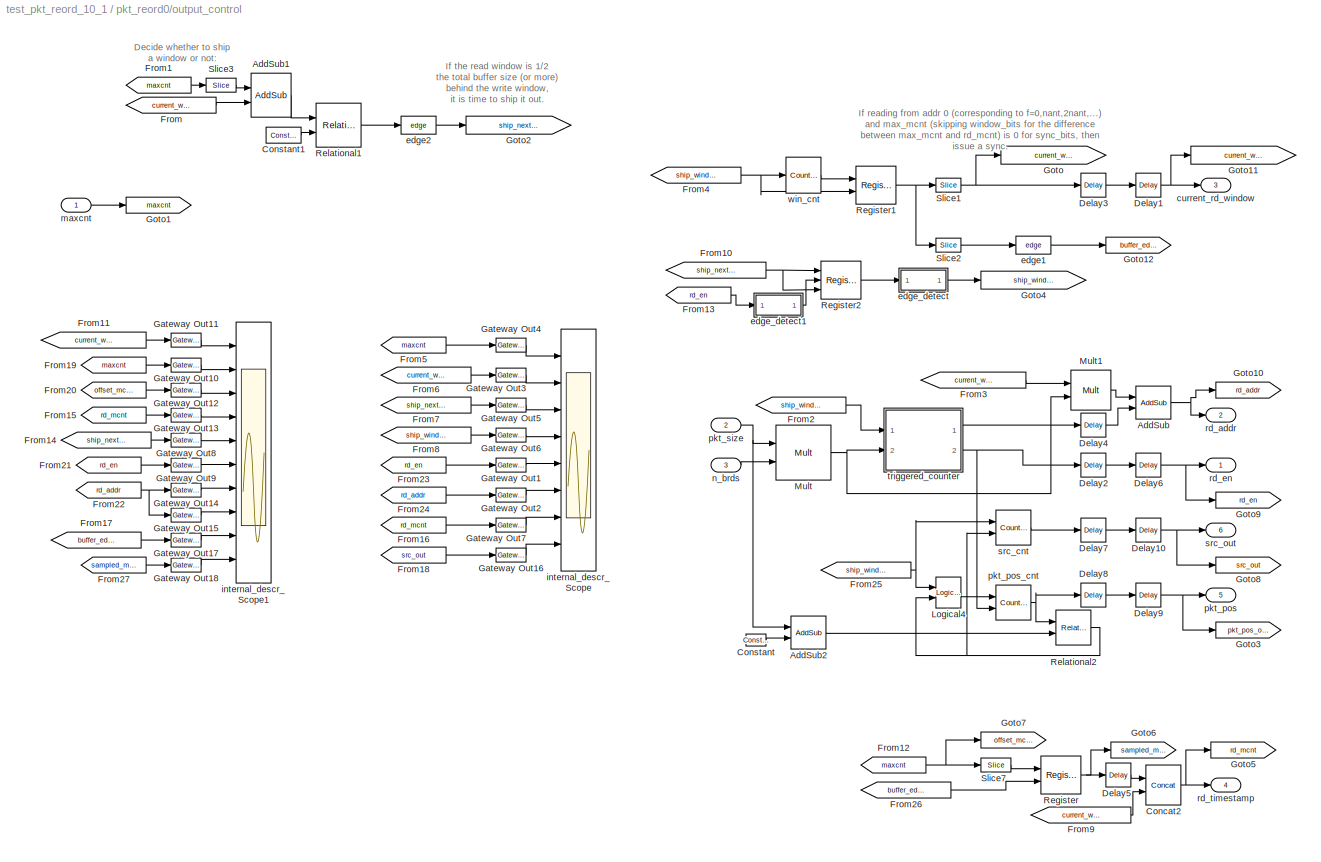
BLOCK [SubSystem] pkt_reord0/output_control
  FunctionWithSeparateData = off
  MaskHideContents = off
  MinAlgLoopOccurrences = off
  Opaque = off
  Ports = [3, 6]
  PropExecContextOutsideSubsystem = off
  RTWSystemCode = Auto
  RequestExecContextInheritance = off
  SID = 771
BLOCK [Reference] pkt_reord0/output_control/AddSub  REF=xbsIndex_r4/AddSub
  Ports = [2, 1]
  SID = 775
  SourceBlock = xbsIndex_r4/AddSub
  SourceType = Xilinx Adder/Subtracter Block
  arith_type = Unsigned
  bin_pt = 0
  block_type = addsub
  dbl_ovrd = off
  en = off
  has_advanced_control = 0
  hw_selection = Fabric
  latency = 1
  mode = Addition
  n_bits = buf_bits
  overflow = Wrap
  pipelined = off
  precision = User Defined
  quantization = Truncate
  sg_icon_stat = 35,33,2,1,white,blue,0,e85d8a90,right,,[ ],[ ]
  sg_mask_display = fprintf('','COMMENT: begin icon graphics');\npatch([0 35 35 0 0 ],[0 0 33 33 0 ],[0.77 0.82 0.91 ]);\nplot([0 35 35 0 0 ],[0 0 33 33 0 ]);\npatch([8.1 13.88 17.88 21.88 25.88 17.88 12.1 8.1 ],[20.44 20.44 24.44 20.44 24.44 24.44 24.44 20.44 ],[1 1 1 ]);\npatch([12.1 17.88 13.88 8.1 12.1 ],[16.44 16.44 20.44 20.44 16.44 ],[0.931 0.946 0.973 ]);\npatch([8.1 13.88 17.88 12.1 8.1 ],[12.44 12.44 16.44 ...<+528ch>
  sggui_pos = 1757,37,451,368
  use_behavioral_HDL = off
  use_carryin = off
  use_carryout = off
  xl_area = [0,0,0,0,0,0,0]
  xl_use_area = off
BLOCK [Reference] pkt_reord0/output_control/AddSub1  REF=xbsIndex_r4/AddSub
  Ports = [2, 1]
  SID = 776
  SourceBlock = xbsIndex_r4/AddSub
  SourceType = Xilinx Adder/Subtracter Block
  arith_type = Unsigned
  bin_pt = 0
  block_type = addsub
  block_version = 10.1.3
  dbl_ovrd = off
  en = off
  has_advanced_control = 0
  hw_selection = Fabric
  latency = 2
  mode = Subtraction
  n_bits = window_bits
  overflow = Wrap
  pipelined = off
  precision = User Defined
  quantization = Truncate
  sg_icon_stat = 40,44,0,0,%s,%s,0,0,right,%s,[ ],[ ]
  sg_mask_display = fprintf('','COMMENT: begin icon graphics');\npatch([0 1 1 0 ],[0 0 1 1 ],[0.77 0.82 0.91]);\npatch([0.25 0.075 0.3 0.075 0.25 0.525 0.6 0.675 0.95 0.725 0.5 0.35 0.6 0.35 0.5 0.725 0.95 0.675 0.6 0.525 0.25 ],[0.136364 0.295455 0.5 0.704545 0.863636 0.863636 0.795455 0.863636 0.863636 0.659091 0.863636 0.727273 0.5 0.272727 0.136364 0.340909 0.136364 0.136364 0.204545 0.136364 0.136364 ],[0.98 0.9...<+394ch>  <repeated x3 — deduplicated; at blocks: AddSub1>
  sggui_pos = 1223,20,451,368
  use_behavioral_HDL = on
  use_carryin = off
  use_carryout = off
  use_rpm = on
  xl_area = [0, 0, 0, 0, 0, 0, 0]
  xl_use_area = off
BLOCK [Reference] pkt_reord0/output_control/AddSub2  REF=xbsIndex_r4/AddSub
  Ports = [2, 1]
  SID = 777
  SourceBlock = xbsIndex_r4/AddSub
  SourceType = Xilinx Adder/Subtracter Block
  arith_type = Unsigned
  bin_pt = 0
  block_type = addsub
  dbl_ovrd = off
  en = off
  has_advanced_control = 0
  hw_selection = Fabric
  latency = 3
  mode = Subtraction
  n_bits = buf_bits
  overflow = Wrap
  pipelined = off
  precision = User Defined
  quantization = Truncate
  sg_icon_stat = 35,33,2,1,white,blue,0,4018df70,right,,[ ],[ ]
  sg_mask_display = fprintf('','COMMENT: begin icon graphics');\npatch([0 35 35 0 0 ],[0 0 33 33 0 ],[0.77 0.82 0.91 ]);\nplot([0 35 35 0 0 ],[0 0 33 33 0 ]);\npatch([8.1 13.88 17.88 21.88 25.88 17.88 12.1 8.1 ],[20.44 20.44 24.44 20.44 24.44 24.44 24.44 20.44 ],[1 1 1 ]);\npatch([12.1 17.88 13.88 8.1 12.1 ],[16.44 16.44 20.44 20.44 16.44 ],[0.931 0.946 0.973 ]);\npatch([8.1 13.88 17.88 12.1 8.1 ],[12.44 12.44 16.44 ...<+528ch>
  sggui_pos = 1757,37,451,368
  use_behavioral_HDL = off
  use_carryin = off
  use_carryout = off
  xl_area = [0,0,0,0,0,0,0]
  xl_use_area = off
BLOCK [Reference] pkt_reord0/output_control/Concat2  REF=xbsIndex_r4/Concat
  Ports = [2, 1]
  SID = 778
  SourceBlock = xbsIndex_r4/Concat
  SourceType = Xilinx Bus Concatenator Block
  block_type = concat
  block_version = 10.1.3
  dbl_ovrd = off
  has_advanced_control = 0
  infoedit = Concatenates two or more inputs.  Output will be cast to an unsigned value with the binary point at zero.
  num_inputs = 2
  sg_icon_stat = 35,40,2,1,white,blue,0,16398980,right,,[ ],[ ]
  sg_mask_display = fprintf('','COMMENT: begin icon graphics');\npatch([0 35 35 0 0 ],[0 0 40 40 0 ],[0.77 0.82 0.91 ]);\nplot([0 35 35 0 0 ],[0 0 40 40 0 ]);\npatch([5.875 13.1 18.1 23.1 28.1 18.1 10.875 5.875 ],[25.55 25.55 30.55 25.55 30.55 30.55 30.55 25.55 ],[1 1 1 ]);\npatch([10.875 18.1 13.1 5.875 10.875 ],[20.55 20.55 25.55 25.55 20.55 ],[0.931 0.946 0.973 ]);\npatch([5.875 13.1 18.1 10.875 5.875 ],[15.55 15....<+422ch>
  sggui_pos = 21,201,336,214
BLOCK [Reference] pkt_reord0/output_control/Constant  REF=xbsIndex_r4/Constant
  Ports = [0, 1]
  SID = 779
  SourceBlock = xbsIndex_r4/Constant
  SourceType = Xilinx Constant Block Block
  arith_type = Unsigned
  bin_pt = 0
  block_type = constant
  block_version = 10.1.3
  carry = CIN
  const = 1
  dbl_ovrd = off
  dsp48_infoedit = The use of this block for DSP48 instructions is deprecated.  Please use the Opmode block.
  equ = P=C
  exp_width = 8
  explicit_period = on
  frac_width = 24
  gui_display_data_type = Fixed-point
  has_advanced_control = 0
  inp1 = P
  inp2 = PCIN>>17
  n_bits = 1
  opr = +
  opselect = C
  period = 1
  preci_type = Single
  sg_icon_stat = 20,12,0,1,white,blue,0,1c72b5be,right,,[ ],[ ]
  sggui_pos = 1700,20,378,476
BLOCK [Reference] pkt_reord0/output_control/Constant1  REF=xbsIndex_r4/Constant
  Ports = [0, 1]
  SID = 780
  SourceBlock = xbsIndex_r4/Constant
  SourceType = Xilinx Constant Block Block
  arith_type = Unsigned
  bin_pt = 0
  block_type = constant
  block_version = 10.1.3
  carry = CIN
  const = 2^(window_bits - 1)
  dbl_ovrd = off
  dsp48_infoedit = The use of this block for DSP48 instructions is deprecated.  Please use the Opmode block.
  equ = P=C
  exp_width = 8
  explicit_period = on
  frac_width = 24
  gui_display_data_type = Fixed-point
  has_advanced_control = 0
  inp1 = P
  inp2 = PCIN>>17
  n_bits = window_bits
  opr = +
  opselect = C
  period = 1
  preci_type = Single
  sg_icon_stat = 35,16,0,1,white,blue,0,85f36853,right,,[ ],[ ]
  sggui_pos = 20,20,400,346
BLOCK [Reference] pkt_reord0/output_control/Delay1  REF=xbsIndex_r4/Delay
  Ports = [1, 1]
  SID = 781
  SourceBlock = xbsIndex_r4/Delay
  SourceType = Xilinx Delay Block
  block_type = delay
  block_version = 10.1.3
  dbl_ovrd = off
  en = off
  has_advanced_control = 0
  infoedit = Hardware notes: A delay line is a chain, each link of which is an SRL16 followed by a flip-flop.
  infoeditControl = Selection of Reset will increase slice count due to use of real FFs and instead of SRLs
  latency = 1
  reg_retiming = off
  rst = off
  sg_icon_stat = 25,24,1,1,white,blue,0,07b98262,right,,[ ],[ ]
  sggui_pos = -1,-1,-1,-1
  xl_area = [0, 0, 0, 0, 0, 0, 0]
  xl_use_area = off
BLOCK [Reference] pkt_reord0/output_control/Delay10  REF=xbsIndex_r4/Delay
  Ports = [1, 1]
  SID = 782
  SourceBlock = xbsIndex_r4/Delay
  SourceType = Xilinx Delay Block
  block_type = delay
  block_version = 10.1.3
  dbl_ovrd = off
  en = off
  has_advanced_control = 0
  infoedit = Hardware notes: A delay line is a chain, each link of which is an SRL16 followed by a flip-flop.
  infoeditControl = Selection of Reset will increase slice count due to use of real FFs and instead of SRLs
  latency = 1
  reg_retiming = on
  rst = off
  sg_icon_stat = 25,24,1,1,white,blue,0,07b98262,right,,[ ],[ ]
  sggui_pos = 20,20,348,255
  xl_area = [0, 0, 0, 0, 0, 0, 0]
  xl_use_area = off
BLOCK [Reference] pkt_reord0/output_control/Delay2  REF=xbsIndex_r4/Delay
  Ports = [1, 1]
  SID = 783
  SourceBlock = xbsIndex_r4/Delay
  SourceType = Xilinx Delay Block
  block_type = delay
  block_version = 10.1.3
  dbl_ovrd = off
  en = off
  has_advanced_control = 0
  infoedit = Hardware notes: A delay line is a chain, each link of which is an SRL16 followed by a flip-flop.
  infoeditControl = Selection of Reset will increase slice count due to use of real FFs and instead of SRLs
  latency = 1
  reg_retiming = on
  rst = off
  sg_icon_stat = 25,24,1,1,white,blue,0,07b98262,right,,[ ],[ ]
  sggui_pos = 1223,20,451,404
  xl_area = [0, 0, 0, 0, 0, 0, 0]
  xl_use_area = off
BLOCK [Reference] pkt_reord0/output_control/Delay3  REF=xbsIndex_r4/Delay
  Ports = [1, 1]
  SID = 784
  SourceBlock = xbsIndex_r4/Delay
  SourceType = Xilinx Delay Block
  block_type = delay
  block_version = 10.1.3
  dbl_ovrd = off
  en = off
  has_advanced_control = 0
  infoedit = Hardware notes: A delay line is a chain, each link of which is an SRL16 followed by a flip-flop.
  infoeditControl = Selection of Reset will increase slice count due to use of real FFs and instead of SRLs
  latency = 1
  reg_retiming = off
  rst = off
  sg_icon_stat = 25,24,1,1,white,blue,0,07b98262,right,,[ ],[ ]
  sggui_pos = -1,-1,-1,-1
  xl_area = [0, 0, 0, 0, 0, 0, 0]
  xl_use_area = off
BLOCK [Reference] pkt_reord0/output_control/Delay4  REF=xbsIndex_r4/Delay
  Ports = [1, 1]
  SID = 785
  SourceBlock = xbsIndex_r4/Delay
  SourceType = Xilinx Delay Block
  block_type = delay
  block_version = 10.1.3
  dbl_ovrd = off
  en = off
  has_advanced_control = 0
  infoedit = Hardware notes: A delay line is a chain, each link of which is an SRL16 followed by a flip-flop.
  infoeditControl = Selection of Reset will increase slice count due to use of real FFs and instead of SRLs
  latency = 1
  reg_retiming = on
  rst = off
  sg_icon_stat = 25,24,1,1,white,blue,0,07b98262,right,,[ ],[ ]
  sggui_pos = 20,20,348,255
  xl_area = [0, 0, 0, 0, 0, 0, 0]
  xl_use_area = off
BLOCK [Reference] pkt_reord0/output_control/Delay5  REF=xbsIndex_r4/Delay
  Ports = [1, 1]
  SID = 786
  SourceBlock = xbsIndex_r4/Delay
  SourceType = Xilinx Delay Block
  block_type = delay
  block_version = 10.1.3
  dbl_ovrd = off
  en = off
  has_advanced_control = 0
  infoedit = Hardware notes: A delay line is a chain, each link of which is an SRL16 followed by a flip-flop.
  infoeditControl = Selection of Reset will increase slice count due to use of real FFs and instead of SRLs
  latency = 1
  reg_retiming = on
  rst = off
  sg_icon_stat = 25,24,1,1,white,blue,0,07b98262,right,,[ ],[ ]
  sggui_pos = 20,20,348,255
  xl_area = [0, 0, 0, 0, 0, 0, 0]
  xl_use_area = off
BLOCK [Reference] pkt_reord0/output_control/Delay6  REF=xbsIndex_r4/Delay
  Ports = [1, 1]
  SID = 787
  SourceBlock = xbsIndex_r4/Delay
  SourceType = Xilinx Delay Block
  block_type = delay
  block_version = 10.1.3
  dbl_ovrd = off
  en = off
  has_advanced_control = 0
  infoedit = Hardware notes: A delay line is a chain, each link of which is an SRL16 followed by a flip-flop.
  infoeditControl = Selection of Reset will increase slice count due to use of real FFs and instead of SRLs
  latency = 1
  reg_retiming = on
  rst = off
  sg_icon_stat = 25,24,1,1,white,blue,0,07b98262,right,,[ ],[ ]
  sggui_pos = 1223,20,451,404
  xl_area = [0, 0, 0, 0, 0, 0, 0]
  xl_use_area = off
BLOCK [Reference] pkt_reord0/output_control/Delay7  REF=xbsIndex_r4/Delay
  Ports = [1, 1]
  SID = 788
  SourceBlock = xbsIndex_r4/Delay
  SourceType = Xilinx Delay Block
  block_type = delay
  block_version = 10.1.3
  dbl_ovrd = off
  en = off
  has_advanced_control = 0
  infoedit = Hardware notes: A delay line is a chain, each link of which is an SRL16 followed by a flip-flop.
  infoeditControl = Selection of Reset will increase slice count due to use of real FFs and instead of SRLs
  latency = 1
  reg_retiming = on
  rst = off
  sg_icon_stat = 25,24,1,1,white,blue,0,07b98262,right,,[ ],[ ]
  sggui_pos = 20,20,348,255
  xl_area = [0, 0, 0, 0, 0, 0, 0]
  xl_use_area = off
BLOCK [Reference] pkt_reord0/output_control/Delay8  REF=xbsIndex_r4/Delay
  Ports = [1, 1]
  SID = 789
  SourceBlock = xbsIndex_r4/Delay
  SourceType = Xilinx Delay Block
  block_type = delay
  block_version = 10.1.3
  dbl_ovrd = off
  en = off
  has_advanced_control = 0
  infoedit = Hardware notes: A delay line is a chain, each link of which is an SRL16 followed by a flip-flop.
  infoeditControl = Selection of Reset will increase slice count due to use of real FFs and instead of SRLs
  latency = 1
  reg_retiming = on
  rst = off
  sg_icon_stat = 25,24,1,1,white,blue,0,07b98262,right,,[ ],[ ]
  sggui_pos = 20,20,348,255
  xl_area = [0, 0, 0, 0, 0, 0, 0]
  xl_use_area = off
BLOCK [Reference] pkt_reord0/output_control/Delay9  REF=xbsIndex_r4/Delay
  Ports = [1, 1]
  SID = 790
  SourceBlock = xbsIndex_r4/Delay
  SourceType = Xilinx Delay Block
  block_type = delay
  block_version = 10.1.3
  dbl_ovrd = off
  en = off
  has_advanced_control = 0
  infoedit = Hardware notes: A delay line is a chain, each link of which is an SRL16 followed by a flip-flop.
  infoeditControl = Selection of Reset will increase slice count due to use of real FFs and instead of SRLs
  latency = 1
  reg_retiming = on
  rst = off
  sg_icon_stat = 25,24,1,1,white,blue,0,07b98262,right,,[ ],[ ]
  sggui_pos = 20,20,348,255
  xl_area = [0, 0, 0, 0, 0, 0, 0]
  xl_use_area = off
BLOCK [From] pkt_reord0/output_control/From
  CloseFcn = tagdialog Close
  GotoTag = current_window
  SID = 791
BLOCK [From] pkt_reord0/output_control/From1
  CloseFcn = tagdialog Close
  GotoTag = maxcnt
  SID = 792
BLOCK [From] pkt_reord0/output_control/From10
  CloseFcn = tagdialog Close
  GotoTag = ship_next_window
  SID = 793
BLOCK [From] pkt_reord0/output_control/From11
  CloseFcn = tagdialog Close
  GotoTag = current_window_out
  SID = 794
BLOCK [From] pkt_reord0/output_control/From12
  CloseFcn = tagdialog Close
  GotoTag = maxcnt
  SID = 795
BLOCK [From] pkt_reord0/output_control/From13
  CloseFcn = tagdialog Close
  GotoTag = rd_en
  SID = 796
BLOCK [From] pkt_reord0/output_control/From14
  CloseFcn = tagdialog Close
  GotoTag = ship_next_window
  SID = 797
BLOCK [From] pkt_reord0/output_control/From15
  CloseFcn = tagdialog Close
  GotoTag = rd_mcnt
  SID = 798
BLOCK [From] pkt_reord0/output_control/From16
  CloseFcn = tagdialog Close
  GotoTag = rd_mcnt
  SID = 799
BLOCK [From] pkt_reord0/output_control/From17
  CloseFcn = tagdialog Close
  GotoTag = buffer_edge
  SID = 800
BLOCK [From] pkt_reord0/output_control/From18
  CloseFcn = tagdialog Close
  GotoTag = src_out
  SID = 801
BLOCK [From] pkt_reord0/output_control/From19
  CloseFcn = tagdialog Close
  GotoTag = maxcnt
  SID = 802
BLOCK [From] pkt_reord0/output_control/From2
  CloseFcn = tagdialog Close
  GotoTag = ship_window_now
  SID = 803
BLOCK [From] pkt_reord0/output_control/From20
  CloseFcn = tagdialog Close
  GotoTag = offset_mcnt
  SID = 804
BLOCK [From] pkt_reord0/output_control/From21
  CloseFcn = tagdialog Close
  GotoTag = rd_en
  SID = 805
BLOCK [From] pkt_reord0/output_control/From22
  CloseFcn = tagdialog Close
  GotoTag = rd_addr
  SID = 806
BLOCK [From] pkt_reord0/output_control/From23
  CloseFcn = tagdialog Close
  GotoTag = rd_en
  SID = 807
BLOCK [From] pkt_reord0/output_control/From24
  CloseFcn = tagdialog Close
  GotoTag = rd_addr
  SID = 808
BLOCK [From] pkt_reord0/output_control/From25
  CloseFcn = tagdialog Close
  GotoTag = ship_window_now
  SID = 809
BLOCK [From] pkt_reord0/output_control/From26
  CloseFcn = tagdialog Close
  GotoTag = buffer_edge
  SID = 810
BLOCK [From] pkt_reord0/output_control/From27
  CloseFcn = tagdialog Close
  GotoTag = sampled_mcnt
  SID = 811
BLOCK [From] pkt_reord0/output_control/From3
  CloseFcn = tagdialog Close
  GotoTag = current_window
  SID = 812
BLOCK [From] pkt_reord0/output_control/From4
  CloseFcn = tagdialog Close
  GotoTag = ship_window_now
  SID = 813
BLOCK [From] pkt_reord0/output_control/From5
  CloseFcn = tagdialog Close
  GotoTag = maxcnt
  SID = 814
BLOCK [From] pkt_reord0/output_control/From6
  CloseFcn = tagdialog Close
  GotoTag = current_window_out
  SID = 815
BLOCK [From] pkt_reord0/output_control/From7
  CloseFcn = tagdialog Close
  GotoTag = ship_next_window
  SID = 816
BLOCK [From] pkt_reord0/output_control/From8
  CloseFcn = tagdialog Close
  GotoTag = ship_window_now
  SID = 817
BLOCK [From] pkt_reord0/output_control/From9
  CloseFcn = tagdialog Close
  GotoTag = current_window_out
  SID = 818
BLOCK [Reference] pkt_reord0/output_control/Gateway Out1  REF=xbsIndex_r4/Gateway Out
  DACChannel = '1'
  LOCs = {}
  Ports = [1, 1]
  SID = 819
  SourceBlock = xbsIndex_r4/Gateway Out
  SourceType = Xilinx Gateway Out Block
  UseAsDAC = off
  block_type = gatewayout
  block_version = 10.1.3
  has_advanced_control = 0
  hdl_port = off
  inherit_from_input = off
  locs_specified = off
  sg_icon_stat = 30,14,1,1,white,grey,1,632ec840,right,,[ ],[ ]
  sggui_pos = -1,-1,-1,-1
  timing_constraint = None
  xl_area = [0, 0, 0, 0, 0, 0, 0]
  xl_use_area = off
BLOCK [Reference] pkt_reord0/output_control/Gateway Out10  REF=xbsIndex_r4/Gateway Out
  DACChannel = '1'
  LOCs = {}
  Ports = [1, 1]
  SID = 820
  SourceBlock = xbsIndex_r4/Gateway Out
  SourceType = Xilinx Gateway Out Block
  UseAsDAC = off
  block_type = gatewayout
  block_version = 10.1.3
  has_advanced_control = 0
  hdl_port = off
  inherit_from_input = off
  locs_specified = off
  sg_icon_stat = 30,14,1,1,white,grey,1,632ec840,right,,[ ],[ ]
  sggui_pos = -1,-1,-1,-1
  timing_constraint = None
  xl_area = [0, 0, 0, 0, 0, 0, 0]
  xl_use_area = off
BLOCK [Reference] pkt_reord0/output_control/Gateway Out11  REF=xbsIndex_r4/Gateway Out
  DACChannel = '1'
  LOCs = {}
  Ports = [1, 1]
  SID = 821
  SourceBlock = xbsIndex_r4/Gateway Out
  SourceType = Xilinx Gateway Out Block
  UseAsDAC = off
  block_type = gatewayout
  block_version = 10.1.3
  has_advanced_control = 0
  hdl_port = off
  inherit_from_input = off
  locs_specified = off
  sg_icon_stat = 30,14,1,1,white,grey,1,632ec840,right,,[ ],[ ]
  sggui_pos = 20,20,336,386
  timing_constraint = None
  xl_area = [0, 0, 0, 0, 0, 0, 0]
  xl_use_area = off
BLOCK [Reference] pkt_reord0/output_control/Gateway Out12  REF=xbsIndex_r4/Gateway Out
  DACChannel = '1'
  LOCs = {}
  Ports = [1, 1]
  SID = 822
  SourceBlock = xbsIndex_r4/Gateway Out
  SourceType = Xilinx Gateway Out Block
  UseAsDAC = off
  block_type = gatewayout
  block_version = 10.1.3
  has_advanced_control = 0
  hdl_port = off
  inherit_from_input = off
  locs_specified = off
  sg_icon_stat = 30,14,1,1,white,grey,1,632ec840,right,,[ ],[ ]
  sggui_pos = -1,-1,-1,-1
  timing_constraint = None
  xl_area = [0, 0, 0, 0, 0, 0, 0]
  xl_use_area = off
BLOCK [Reference] pkt_reord0/output_control/Gateway Out13  REF=xbsIndex_r4/Gateway Out
  DACChannel = '1'
  LOCs = {}
  Ports = [1, 1]
  SID = 823
  SourceBlock = xbsIndex_r4/Gateway Out
  SourceType = Xilinx Gateway Out Block
  UseAsDAC = off
  block_type = gatewayout
  block_version = 10.1.3
  has_advanced_control = 0
  hdl_port = off
  inherit_from_input = off
  locs_specified = off
  sg_icon_stat = 30,14,1,1,white,grey,1,632ec840,right,,[ ],[ ]
  sggui_pos = -1,-1,-1,-1
  timing_constraint = None
  xl_area = [0, 0, 0, 0, 0, 0, 0]
  xl_use_area = off
BLOCK [Reference] pkt_reord0/output_control/Gateway Out14  REF=xbsIndex_r4/Gateway Out
  DACChannel = '1'
  LOCs = {}
  Ports = [1, 1]
  SID = 824
  SourceBlock = xbsIndex_r4/Gateway Out
  SourceType = Xilinx Gateway Out Block
  UseAsDAC = off
  block_type = gatewayout
  block_version = 10.1.3
  has_advanced_control = 0
  hdl_port = off
  inherit_from_input = off
  locs_specified = off
  sg_icon_stat = 30,14,1,1,white,grey,1,632ec840,right,,[ ],[ ]
  sggui_pos = -1,-1,-1,-1
  timing_constraint = None
  xl_area = [0, 0, 0, 0, 0, 0, 0]
  xl_use_area = off
BLOCK [Reference] pkt_reord0/output_control/Gateway Out15  REF=xbsIndex_r4/Gateway Out
  DACChannel = '1'
  LOCs = {}
  Ports = [1, 1]
  SID = 825
  SourceBlock = xbsIndex_r4/Gateway Out
  SourceType = Xilinx Gateway Out Block
  UseAsDAC = off
  block_type = gatewayout
  block_version = 10.1.3
  has_advanced_control = 0
  hdl_port = off
  inherit_from_input = off
  locs_specified = off
  sg_icon_stat = 30,14,1,1,white,grey,1,632ec840,right,,[ ],[ ]
  sggui_pos = -1,-1,-1,-1
  timing_constraint = None
  xl_area = [0, 0, 0, 0, 0, 0, 0]
  xl_use_area = off
BLOCK [Reference] pkt_reord0/output_control/Gateway Out16  REF=xbsIndex_r4/Gateway Out
  DACChannel = '1'
  LOCs = {}
  Ports = [1, 1]
  SID = 826
  SourceBlock = xbsIndex_r4/Gateway Out
  SourceType = Xilinx Gateway Out Block
  UseAsDAC = off
  block_type = gatewayout
  block_version = 10.1.3
  has_advanced_control = 0
  hdl_port = off
  inherit_from_input = off
  locs_specified = off
  sg_icon_stat = 30,14,1,1,white,grey,1,632ec840,right,,[ ],[ ]
  sggui_pos = -1,-1,-1,-1
  timing_constraint = None
  xl_area = [0, 0, 0, 0, 0, 0, 0]
  xl_use_area = off
BLOCK [Reference] pkt_reord0/output_control/Gateway Out17  REF=xbsIndex_r4/Gateway Out
  DACChannel = '1'
  LOCs = {}
  Ports = [1, 1]
  SID = 827
  SourceBlock = xbsIndex_r4/Gateway Out
  SourceType = Xilinx Gateway Out Block
  UseAsDAC = off
  block_type = gatewayout
  block_version = 10.1.3
  has_advanced_control = 0
  hdl_port = off
  inherit_from_input = off
  locs_specified = off
  sg_icon_stat = 30,14,1,1,white,grey,1,632ec840,right,,[ ],[ ]
  sggui_pos = -1,-1,-1,-1
  timing_constraint = None
  xl_area = [0, 0, 0, 0, 0, 0, 0]
  xl_use_area = off
BLOCK [Reference] pkt_reord0/output_control/Gateway Out18  REF=xbsIndex_r4/Gateway Out
  DACChannel = '1'
  LOCs = {}
  Ports = [1, 1]
  SID = 828
  SourceBlock = xbsIndex_r4/Gateway Out
  SourceType = Xilinx Gateway Out Block
  UseAsDAC = off
  block_type = gatewayout
  block_version = 10.1.3
  has_advanced_control = 0
  hdl_port = off
  inherit_from_input = off
  locs_specified = off
  sg_icon_stat = 30,14,1,1,white,grey,1,632ec840,right,,[ ],[ ]
  sggui_pos = -1,-1,-1,-1
  timing_constraint = None
  xl_area = [0, 0, 0, 0, 0, 0, 0]
  xl_use_area = off
BLOCK [Reference] pkt_reord0/output_control/Gateway Out2  REF=xbsIndex_r4/Gateway Out
  DACChannel = '1'
  LOCs = {}
  Ports = [1, 1]
  SID = 829
  SourceBlock = xbsIndex_r4/Gateway Out
  SourceType = Xilinx Gateway Out Block
  UseAsDAC = off
  block_type = gatewayout
  block_version = 10.1.3
  has_advanced_control = 0
  hdl_port = off
  inherit_from_input = off
  locs_specified = off
  sg_icon_stat = 30,14,1,1,white,grey,1,632ec840,right,,[ ],[ ]
  sggui_pos = -1,-1,-1,-1
  timing_constraint = None
  xl_area = [0, 0, 0, 0, 0, 0, 0]
  xl_use_area = off
BLOCK [Reference] pkt_reord0/output_control/Gateway Out3  REF=xbsIndex_r4/Gateway Out
  DACChannel = '1'
  LOCs = {}
  Ports = [1, 1]
  SID = 830
  SourceBlock = xbsIndex_r4/Gateway Out
  SourceType = Xilinx Gateway Out Block
  UseAsDAC = off
  block_type = gatewayout
  block_version = 10.1.3
  has_advanced_control = 0
  hdl_port = off
  inherit_from_input = off
  locs_specified = off
  sg_icon_stat = 30,14,1,1,white,grey,1,632ec840,right,,[ ],[ ]
  sggui_pos = -1,-1,-1,-1
  timing_constraint = None
  xl_area = [0, 0, 0, 0, 0, 0, 0]
  xl_use_area = off
BLOCK [Reference] pkt_reord0/output_control/Gateway Out4  REF=xbsIndex_r4/Gateway Out
  DACChannel = '1'
  LOCs = {}
  Ports = [1, 1]
  SID = 831
  SourceBlock = xbsIndex_r4/Gateway Out
  SourceType = Xilinx Gateway Out Block
  UseAsDAC = off
  block_type = gatewayout
  block_version = 10.1.3
  has_advanced_control = 0
  hdl_port = off
  inherit_from_input = off
  locs_specified = off
  sg_icon_stat = 30,14,1,1,white,grey,1,632ec840,right,,[ ],[ ]
  sggui_pos = -1,-1,-1,-1
  timing_constraint = None
  xl_area = [0, 0, 0, 0, 0, 0, 0]
  xl_use_area = off
BLOCK [Reference] pkt_reord0/output_control/Gateway Out5  REF=xbsIndex_r4/Gateway Out
  DACChannel = '1'
  LOCs = {}
  Ports = [1, 1]
  SID = 832
  SourceBlock = xbsIndex_r4/Gateway Out
  SourceType = Xilinx Gateway Out Block
  UseAsDAC = off
  block_type = gatewayout
  block_version = 10.1.3
  has_advanced_control = 0
  hdl_port = off
  inherit_from_input = off
  locs_specified = off
  sg_icon_stat = 30,14,1,1,white,grey,1,632ec840,right,,[ ],[ ]
  sggui_pos = -1,-1,-1,-1
  timing_constraint = None
  xl_area = [0, 0, 0, 0, 0, 0, 0]
  xl_use_area = off
BLOCK [Reference] pkt_reord0/output_control/Gateway Out6  REF=xbsIndex_r4/Gateway Out
  DACChannel = '1'
  LOCs = {}
  Ports = [1, 1]
  SID = 833
  SourceBlock = xbsIndex_r4/Gateway Out
  SourceType = Xilinx Gateway Out Block
  UseAsDAC = off
  block_type = gatewayout
  block_version = 10.1.3
  has_advanced_control = 0
  hdl_port = off
  inherit_from_input = off
  locs_specified = off
  sg_icon_stat = 30,14,1,1,white,grey,1,632ec840,right,,[ ],[ ]
  sggui_pos = -1,-1,-1,-1
  timing_constraint = None
  xl_area = [0, 0, 0, 0, 0, 0, 0]
  xl_use_area = off
BLOCK [Reference] pkt_reord0/output_control/Gateway Out7  REF=xbsIndex_r4/Gateway Out
  DACChannel = '1'
  LOCs = {}
  Ports = [1, 1]
  SID = 834
  SourceBlock = xbsIndex_r4/Gateway Out
  SourceType = Xilinx Gateway Out Block
  UseAsDAC = off
  block_type = gatewayout
  block_version = 10.1.3
  has_advanced_control = 0
  hdl_port = off
  inherit_from_input = off
  locs_specified = off
  sg_icon_stat = 30,14,1,1,white,grey,1,632ec840,right,,[ ],[ ]
  sggui_pos = -1,-1,-1,-1
  timing_constraint = None
  xl_area = [0, 0, 0, 0, 0, 0, 0]
  xl_use_area = off
BLOCK [Reference] pkt_reord0/output_control/Gateway Out8  REF=xbsIndex_r4/Gateway Out
  DACChannel = '1'
  LOCs = {}
  Ports = [1, 1]
  SID = 835
  SourceBlock = xbsIndex_r4/Gateway Out
  SourceType = Xilinx Gateway Out Block
  UseAsDAC = off
  block_type = gatewayout
  block_version = 10.1.3
  has_advanced_control = 0
  hdl_port = off
  inherit_from_input = off
  locs_specified = off
  sg_icon_stat = 30,14,1,1,white,grey,1,632ec840,right,,[ ],[ ]
  sggui_pos = -1,-1,-1,-1
  timing_constraint = None
  xl_area = [0, 0, 0, 0, 0, 0, 0]
  xl_use_area = off
BLOCK [Reference] pkt_reord0/output_control/Gateway Out9  REF=xbsIndex_r4/Gateway Out
  DACChannel = '1'
  LOCs = {}
  Ports = [1, 1]
  SID = 836
  SourceBlock = xbsIndex_r4/Gateway Out
  SourceType = Xilinx Gateway Out Block
  UseAsDAC = off
  block_type = gatewayout
  block_version = 10.1.3
  has_advanced_control = 0
  hdl_port = off
  inherit_from_input = off
  locs_specified = off
  sg_icon_stat = 30,14,1,1,white,grey,1,632ec840,right,,[ ],[ ]
  sggui_pos = -1,-1,-1,-1
  timing_constraint = None
  xl_area = [0, 0, 0, 0, 0, 0, 0]
  xl_use_area = off
BLOCK [Goto] pkt_reord0/output_control/Goto
  GotoTag = current_window
  SID = 837
BLOCK [Goto] pkt_reord0/output_control/Goto1
  GotoTag = maxcnt
  SID = 838
BLOCK [Goto] pkt_reord0/output_control/Goto10
  GotoTag = rd_addr
  SID = 839
BLOCK [Goto] pkt_reord0/output_control/Goto11
  GotoTag = current_window_out
  SID = 840
BLOCK [Goto] pkt_reord0/output_control/Goto12
  GotoTag = buffer_edge
  SID = 841
BLOCK [Goto] pkt_reord0/output_control/Goto2
  GotoTag = ship_next_window
  SID = 842
BLOCK [Goto] pkt_reord0/output_control/Goto3
  GotoTag = pkt_pos_out
  SID = 843
BLOCK [Goto] pkt_reord0/output_control/Goto4
  GotoTag = ship_window_now
  SID = 844
BLOCK [Goto] pkt_reord0/output_control/Goto5
  GotoTag = rd_mcnt
  SID = 845
BLOCK [Goto] pkt_reord0/output_control/Goto6
  GotoTag = sampled_mcnt
  SID = 846
BLOCK [Goto] pkt_reord0/output_control/Goto7
  GotoTag = offset_mcnt
  SID = 847
BLOCK [Goto] pkt_reord0/output_control/Goto8
  GotoTag = src_out
  SID = 848
BLOCK [Goto] pkt_reord0/output_control/Goto9
  GotoTag = rd_en
  SID = 849
BLOCK [Reference] pkt_reord0/output_control/Logical4  REF=xbsIndex_r4/Logical
  Ports = [2, 1]
  SID = 850
  SourceBlock = xbsIndex_r4/Logical
  SourceType = Xilinx Logical Block Block
  align_bp = on
  arith_type = Unsigned
  bin_pt = 2
  block_type = logical
  block_version = 10.1.3
  dbl_ovrd = off
  en = off
  has_advanced_control = 0
  inputs = 2
  latency = 0
  logical_function = OR
  n_bits = 8
  precision = Full
  sg_icon_stat = 25,31,2,1,white,blue,0,7ede7d88,right,,[ ],[ ]
  sg_mask_display = fprintf('','COMMENT: begin icon graphics');\npatch([0 25 25 0 0 ],[0 0 31 31 0 ],[0.77 0.82 0.91 ]);\nplot([0 25 25 0 0 ],[0 0 31 31 0 ]);\npatch([5.325 9.66 12.66 15.66 18.66 12.66 8.325 5.325 ],[18.33 18.33 21.33 18.33 21.33 21.33 21.33 18.33 ],[1 1 1 ]);\npatch([8.325 12.66 9.66 5.325 8.325 ],[15.33 15.33 18.33 18.33 15.33 ],[0.931 0.946 0.973 ]);\npatch([5.325 9.66 12.66 8.325 5.325 ],[12.33 1...<+307ch>
  sggui_pos = 1700,20,451,298
  xl_area = [0, 0, 0, 0, 0, 0, 0]
  xl_use_area = off
BLOCK [Reference] pkt_reord0/output_control/Mult  REF=xbsIndex_r4/Mult
  Ports = [2, 1]
  SID = 851
  SourceBlock = xbsIndex_r4/Mult
  SourceType = Xilinx Multiplier Block
  arith_type = Unsigned
  bin_pt = 0
  block_type = mult
  dbl_ovrd = off
  en = off
  has_advanced_control = 0
  latency = 3
  n_bits = 16
  opt = Speed
  optimum_pipeline = on
  overflow = Wrap
  pipeline = on
  placement_style = Triangular
  precision = User Defined
  quantization = Truncate
  sg_icon_stat = 55,55,2,1,white,blue,0,7028354c,right,,[ ],[ ]
  sggui_pos = 1700,20,451,672
  use_behavioral_HDL = off
  use_embedded = on
  use_rpm = on
  xl_area = [0,0,0,0,0,0,0]
  xl_use_area = off
BLOCK [Reference] pkt_reord0/output_control/Mult1  REF=xbsIndex_r4/Mult
  Ports = [2, 1]
  SID = 852
  SourceBlock = xbsIndex_r4/Mult
  SourceType = Xilinx Multiplier Block
  arith_type = Unsigned
  bin_pt = 0
  block_type = mult
  dbl_ovrd = off
  en = off
  has_advanced_control = 0
  latency = 1
  n_bits = buf_bits
  opt = Speed
  optimum_pipeline = off
  overflow = Wrap
  pipeline = on
  placement_style = Triangular
  precision = Full
  quantization = Truncate
  sg_icon_stat = 40,40,2,1,white,blue,0,82c891c1,right,,[ ],[ ]
  sg_mask_display = fprintf('','COMMENT: begin icon graphics');\npatch([0 40 40 0 0 ],[0 0 40 40 0 ],[0.77 0.82 0.91 ]);\nplot([0 40 40 0 0 ],[0 0 40 40 0 ]);\npatch([8.875 16.1 21.1 26.1 31.1 21.1 13.875 8.875 ],[25.55 25.55 30.55 25.55 30.55 30.55 30.55 25.55 ],[1 1 1 ]);\npatch([13.875 21.1 16.1 8.875 13.875 ],[20.55 20.55 25.55 25.55 20.55 ],[0.931 0.946 0.973 ]);\npatch([8.875 16.1 21.1 13.875 8.875 ],[15.55 15....<+521ch>
  sggui_pos = 1700,20,451,672
  use_behavioral_HDL = off
  use_embedded = on
  use_rpm = on
  xl_area = [0,0,0,0,0,0,0]
  xl_use_area = off
BLOCK [Reference] pkt_reord0/output_control/Register  REF=xbsIndex_r4/Register
  Ports = [2, 1]
  SID = 853
  SourceBlock = xbsIndex_r4/Register
  SourceType = Xilinx Register Block
  block_type = register
  block_version = 10.1.3
  dbl_ovrd = off
  en = on
  has_advanced_control = 0
  init = 0
  rst = off
  sg_icon_stat = 40,38,2,1,white,blue,0,6bd0930c,right,,[ ],[ ]
  sg_mask_display = fprintf('','COMMENT: begin icon graphics');\npatch([0 40 40 0 0 ],[0 0 38 38 0 ],[0.77 0.82 0.91 ]);\nplot([0 40 40 0 0 ],[0 0 38 38 0 ]);\npatch([8.875 16.1 21.1 26.1 31.1 21.1 13.875 8.875 ],[24.55 24.55 29.55 24.55 29.55 29.55 29.55 24.55 ],[1 1 1 ]);\npatch([13.875 21.1 16.1 8.875 13.875 ],[19.55 19.55 24.55 24.55 19.55 ],[0.931 0.946 0.973 ]);\npatch([8.875 16.1 21.1 13.875 8.875 ],[14.55 14....<+448ch>
  sggui_pos = 20,20,348,192
  xl_area = [0,0,0,0,0,0,0]
  xl_use_area = off
BLOCK [Reference] pkt_reord0/output_control/Register1  REF=xbsIndex_r4/Register
  Ports = [2, 1]
  SID = 854
  SourceBlock = xbsIndex_r4/Register
  SourceType = Xilinx Register Block
  block_type = register
  block_version = 10.1.3
  dbl_ovrd = off
  en = on
  has_advanced_control = 0
  init = 0
  rst = off
  sg_icon_stat = 40,38,2,1,white,blue,0,6bd0930c,right,,[ ],[ ]
  sg_mask_display = fprintf('','COMMENT: begin icon graphics');\npatch([0 40 40 0 0 ],[0 0 38 38 0 ],[0.77 0.82 0.91 ]);\nplot([0 40 40 0 0 ],[0 0 38 38 0 ]);\npatch([8.875 16.1 21.1 26.1 31.1 21.1 13.875 8.875 ],[24.55 24.55 29.55 24.55 29.55 29.55 29.55 24.55 ],[1 1 1 ]);\npatch([13.875 21.1 16.1 8.875 13.875 ],[19.55 19.55 24.55 24.55 19.55 ],[0.931 0.946 0.973 ]);\npatch([8.875 16.1 21.1 13.875 8.875 ],[14.55 14....<+448ch>
  sggui_pos = 1223,20,451,210
  xl_area = [0,0,0,0,0,0,0]
  xl_use_area = off
BLOCK [Reference] pkt_reord0/output_control/Register2  REF=xbsIndex_r4/Register
  Ports = [3, 1]
  SID = 855
  SourceBlock = xbsIndex_r4/Register
  SourceType = Xilinx Register Block
  block_type = register
  block_version = 10.1.3
  dbl_ovrd = off
  en = on
  has_advanced_control = 0
  init = 0
  rst = on
  sg_icon_stat = 40,38,3,1,white,blue,0,30546de1,right,,[ ],[ ]
  sg_mask_display = fprintf('','COMMENT: begin icon graphics');\npatch([0 40 40 0 0 ],[0 0 38 38 0 ],[0.77 0.82 0.91 ]);\nplot([0 40 40 0 0 ],[0 0 38 38 0 ]);\npatch([8.875 16.1 21.1 26.1 31.1 21.1 13.875 8.875 ],[24.55 24.55 29.55 24.55 29.55 29.55 29.55 24.55 ],[1 1 1 ]);\npatch([13.875 21.1 16.1 8.875 13.875 ],[19.55 19.55 24.55 24.55 19.55 ],[0.931 0.946 0.973 ]);\npatch([8.875 16.1 21.1 13.875 8.875 ],[14.55 14....<+493ch>
  sggui_pos = 1223,20,451,210
  xl_area = [0,0,0,0,0,0,0]
  xl_use_area = off
BLOCK [Reference] pkt_reord0/output_control/Relational1  REF=xbsIndex_r4/Relational
  Ports = [2, 1]
  SID = 856
  SourceBlock = xbsIndex_r4/Relational
  SourceType = Xilinx Arithmetic Relational Operator Block
  block_type = relational
  block_version = 10.1.3
  dbl_ovrd = off
  en = off
  has_advanced_control = 0
  latency = 1
  mode = a>=b
  sg_icon_stat = 45,44,2,1,white,blue,0,a3568de2,right,,[ ],[ ]
  sg_mask_display = fprintf('','COMMENT: begin icon graphics');\npatch([0 45 45 0 0 ],[0 0 44 44 0 ],[0.77 0.82 0.91 ]);\nplot([0 45 45 0 0 ],[0 0 44 44 0 ]);\npatch([8.65 17.32 23.32 29.32 35.32 23.32 14.65 8.65 ],[28.66 28.66 34.66 28.66 34.66 34.66 34.66 28.66 ],[1 1 1 ]);\npatch([14.65 23.32 17.32 8.65 14.65 ],[22.66 22.66 28.66 28.66 22.66 ],[0.931 0.946 0.973 ]);\npatch([8.65 17.32 23.32 14.65 8.65 ],[16.66 16....<+520ch>
  sggui_pos = 20,20,348,193
  xl_area = [0, 0, 0, 0, 0, 0, 0]
  xl_use_area = off
BLOCK [Reference] pkt_reord0/output_control/Relational2  REF=xbsIndex_r4/Relational
  Ports = [2, 1]
  SID = 857
  SourceBlock = xbsIndex_r4/Relational
  SourceType = Xilinx Arithmetic Relational Operator Block
  block_type = relational
  block_version = 10.1.3
  dbl_ovrd = off
  en = off
  has_advanced_control = 0
  latency = 0
  mode = a>=b
  sg_icon_stat = 35,35,2,1,white,blue,0,6218dc92,right,,[ ],[ ]
  sg_mask_display = fprintf('','COMMENT: begin icon graphics');\npatch([0 35 35 0 0 ],[0 0 35 35 0 ],[0.77 0.82 0.91 ]);\nplot([0 35 35 0 0 ],[0 0 35 35 0 ]);\npatch([5.875 13.1 18.1 23.1 28.1 18.1 10.875 5.875 ],[22.55 22.55 27.55 22.55 27.55 27.55 27.55 22.55 ],[1 1 1 ]);\npatch([10.875 18.1 13.1 5.875 10.875 ],[17.55 17.55 22.55 22.55 17.55 ],[0.931 0.946 0.973 ]);\npatch([5.875 13.1 18.1 10.875 5.875 ],[12.55 12....<+454ch>
  sggui_pos = 1700,20,451,210
  xl_area = [0, 0, 0, 0, 0, 0, 0]
  xl_use_area = off
BLOCK [Reference] pkt_reord0/output_control/Slice1  REF=xbsIndex_r4/Slice
  Ports = [1, 1]
  SID = 858
  SourceBlock = xbsIndex_r4/Slice
  SourceType = Xilinx Bit Slice Extractor Block
  base0 = LSB of Input
  base1 = MSB of Input
  bit0 = 0
  bit1 = 0
  block_type = slice
  block_version = 10.1.3
  boolean_output = off
  dbl_ovrd = off
  has_advanced_control = 0
  mode = Lower Bit Location + Width
  nbits = window_bits
  sg_icon_stat = 25,14,1,1,white,blue,0,1fd851a7,right,,[ ],[ ]
  sg_mask_display = fprintf('','COMMENT: begin icon graphics');\npatch([0 25 25 0 0 ],[0 0 14 14 0 ],[0.77 0.82 0.91 ]);\nplot([0 25 25 0 0 ],[0 0 14 14 0 ]);\npatch([7.55 10.44 12.44 14.44 16.44 12.44 9.55 7.55 ],[9.22 9.22 11.22 9.22 11.22 11.22 11.22 9.22 ],[1 1 1 ]);\npatch([9.55 12.44 10.44 7.55 9.55 ],[7.22 7.22 9.22 9.22 7.22 ],[0.931 0.946 0.973 ]);\npatch([7.55 10.44 12.44 9.55 7.55 ],[5.22 5.22 7.22 7.22 5....<+300ch>
  sggui_pos = 1080,20,594,505
BLOCK [Reference] pkt_reord0/output_control/Slice2  REF=xbsIndex_r4/Slice
  Ports = [1, 1]
  SID = 859
  SourceBlock = xbsIndex_r4/Slice
  SourceType = Xilinx Bit Slice Extractor Block
  base0 = LSB of Input
  base1 = MSB of Input
  bit0 = 0
  bit1 = 0
  block_type = slice
  block_version = 10.1.3
  boolean_output = on
  dbl_ovrd = off
  has_advanced_control = 0
  mode = Upper Bit Location + Width
  nbits = 1
  sg_icon_stat = 25,14,1,1,white,blue,0,1fd851a7,right,,[ ],[ ]
  sg_mask_display = fprintf('','COMMENT: begin icon graphics');\npatch([0 25 25 0 0 ],[0 0 14 14 0 ],[0.77 0.82 0.91 ]);\nplot([0 25 25 0 0 ],[0 0 14 14 0 ]);\npatch([7.55 10.44 12.44 14.44 16.44 12.44 9.55 7.55 ],[9.22 9.22 11.22 9.22 11.22 11.22 11.22 9.22 ],[1 1 1 ]);\npatch([9.55 12.44 10.44 7.55 9.55 ],[7.22 7.22 9.22 9.22 7.22 ],[0.931 0.946 0.973 ]);\npatch([7.55 10.44 12.44 9.55 7.55 ],[5.22 5.22 7.22 7.22 5....<+300ch>
  sggui_pos = 1700,20,594,505
BLOCK [Reference] pkt_reord0/output_control/Slice3  REF=xbsIndex_r4/Slice
  Ports = [1, 1]
  SID = 860
  SourceBlock = xbsIndex_r4/Slice
  SourceType = Xilinx Bit Slice Extractor Block
  base0 = LSB of Input
  base1 = MSB of Input
  bit0 = 0
  bit1 = 0
  block_type = slice
  block_version = 10.1.3
  boolean_output = off
  dbl_ovrd = off
  has_advanced_control = 0
  mode = Lower Bit Location + Width
  nbits = window_bits
  sg_icon_stat = 30,14,1,1,white,blue,0,1fd851a7,right,,[ ],[ ]
  sggui_pos = 1080,20,594,505
BLOCK [Reference] pkt_reord0/output_control/Slice7  REF=xbsIndex_r4/Slice
  Ports = [1, 1]
  SID = 861
  SourceBlock = xbsIndex_r4/Slice
  SourceType = Xilinx Bit Slice Extractor Block
  base0 = LSB of Input
  base1 = MSB of Input
  bit0 = window_bits
  bit1 = 0
  block_type = slice
  block_version = 10.1.3
  boolean_output = off
  dbl_ovrd = off
  has_advanced_control = 0
  mode = Two Bit Locations
  nbits = 1
  sg_icon_stat = 30,14,1,1,white,blue,0,1fd851a7,right,,[ ],[ ]
  sggui_pos = 1080,327,594,505
BLOCK [Outport] pkt_reord0/output_control/current_rd_window
  IconDisplay = Port number
  Port = 3
  SID = 874
BLOCK [Reference] pkt_reord0/output_control/edge1  REF=casper_library_misc/edge  (lib defined in mdl_357510c33b49, mdl_57b5f564ae26, +4 more)
  Ports = [1, 1]
  SID = 862
  SourceBlock = casper_library_misc/edge
  SourceType = edge
BLOCK [Reference] pkt_reord0/output_control/edge2  REF=casper_library_misc/edge  (lib defined in mdl_357510c33b49, mdl_57b5f564ae26, +4 more)
  Ports = [1, 1]
  SID = 863
  SourceBlock = casper_library_misc/edge
  SourceType = edge
BLOCK [SubSystem] pkt_reord0/output_control/edge_detect
  AncestorBlock = casper_library_misc/edge_detect
  AttributesFormatString = rising edges\nactive high
  FunctionWithSeparateData = off
  MaskHideContents = off
  MinAlgLoopOccurrences = off
  Opaque = off
  Ports = [1, 1]
  PropExecContextOutsideSubsystem = off
  RTWSystemCode = Auto
  RequestExecContextInheritance = off
  SID = 864
  UserData = DataTag2
  UserDataPersistent = on
BLOCK [Reference] pkt_reord0/output_control/edge_detect/Delay  REF=xbsIndex_r4/Delay
  Ports = [1, 1]
  SID = 864:2
  SourceBlock = xbsIndex_r4/Delay
  SourceType = Xilinx Delay Block
  block_type = delay
  block_version = 10.1.3
  dbl_ovrd = off
  en = off
  has_advanced_control = 0
  infoedit = Hardware notes: A delay line is a chain, each link of which is an SRL16 followed by a flip-flop.
  infoeditControl = Selection of Reset will increase slice count due to use of real FFs and instead of SRLs
  latency = 1
  reg_retiming = off
  rst = off
  sg_icon_stat = 45,16,1,1,white,blue,0,07b98262,right,,[ ],[ ]
  sg_mask_display = fprintf('','COMMENT: begin icon graphics');\npatch([0 45 45 0 0 ],[0 0 16 16 0 ],[0.77 0.82 0.91 ]);\nplot([0 45 45 0 0 ],[0 0 16 16 0 ]);\npatch([17.55 20.44 22.44 24.44 26.44 22.44 19.55 17.55 ],[10.22 10.22 12.22 10.22 12.22 12.22 12.22 10.22 ],[1 1 1 ]);\npatch([19.55 22.44 20.44 17.55 19.55 ],[8.22 8.22 10.22 10.22 8.22 ],[0.931 0.946 0.973 ]);\npatch([17.55 20.44 22.44 19.55 17.55 ],[6.22 6....<+317ch>  <repeated x3 — deduplicated; at blocks: Delay>
  sggui_pos = -1,-1,-1,-1
  xl_area = [0, 0, 0, 0, 0, 0, 0]
  xl_use_area = off
BLOCK [Reference] pkt_reord0/output_control/edge_detect/Inverter  REF=xbsIndex_r4/Inverter
  Ports = [1, 1]
  SID = 864:3
  SourceBlock = xbsIndex_r4/Inverter
  SourceType = Xilinx Inverter Block
  block_type = inv
  block_version = 10.1.3
  dbl_ovrd = off
  en = off
  has_advanced_control = 0
  infoedit = Bitwise logical negation (one's complement) operator.
  latency = 0
  sg_icon_stat = 45,16,1,1,white,blue,0,267846e5,right,,[ ],[ ]
  sg_mask_display = fprintf('','COMMENT: begin icon graphics');\npatch([0 45 45 0 0 ],[0 0 16 16 0 ],[0.77 0.82 0.91 ]);\nplot([0 45 45 0 0 ],[0 0 16 16 0 ]);\npatch([17.55 20.44 22.44 24.44 26.44 22.44 19.55 17.55 ],[10.22 10.22 12.22 10.22 12.22 12.22 12.22 10.22 ],[1 1 1 ]);\npatch([19.55 22.44 20.44 17.55 19.55 ],[8.22 8.22 10.22 10.22 8.22 ],[0.931 0.946 0.973 ]);\npatch([17.55 20.44 22.44 19.55 17.55 ],[6.22 6....<+299ch>  <repeated x3 — deduplicated; at blocks: Inverter>
  sggui_pos = -1,-1,-1,-1
  xl_area = [0, 0, 0, 0, 0, 0, 0]
  xl_use_area = off
BLOCK [Reference] pkt_reord0/output_control/edge_detect/edge_op  REF=xbsIndex_r4/Logical
  Ports = [2, 1]
  SID = 864:4
  SourceBlock = xbsIndex_r4/Logical
  SourceType = Xilinx Logical Block Block
  align_bp = on
  arith_type = Unsigned
  bin_pt = 2
  block_type = logical
  block_version = 10.1.3
  dbl_ovrd = off
  en = off
  has_advanced_control = 0
  inputs = 2
  latency = 0
  logical_function = NOR
  n_bits = 8
  precision = Full
  sg_icon_stat = 45,44,2,1,white,blue,0,affe8783,right,,[ ],[ ]
  sggui_pos = -1,-1,-1,-1
  xl_area = [0, 0, 0, 0, 0, 0, 0]
  xl_use_area = off
BLOCK [Inport] pkt_reord0/output_control/edge_detect/in
  IconDisplay = Port number
  SID = 864:1
BLOCK [Outport] pkt_reord0/output_control/edge_detect/out
  IconDisplay = Port number
  SID = 864:5
BLOCK [SubSystem] pkt_reord0/output_control/edge_detect1
  AncestorBlock = casper_library_misc/edge_detect
  AttributesFormatString = falling edges\nactive high
  FunctionWithSeparateData = off
  MaskHideContents = off
  MinAlgLoopOccurrences = off
  Opaque = off
  Ports = [1, 1]
  PropExecContextOutsideSubsystem = off
  RTWSystemCode = Auto
  RequestExecContextInheritance = off
  SID = 865
  UserData = DataTag3
  UserDataPersistent = on
BLOCK [Reference] pkt_reord0/output_control/edge_detect1/Delay  REF=xbsIndex_r4/Delay
  Ports = [1, 1]
  SID = 865:2
  SourceBlock = xbsIndex_r4/Delay
  SourceType = Xilinx Delay Block
  block_type = delay
  block_version = 10.1.3
  dbl_ovrd = off
  en = off
  has_advanced_control = 0
  infoedit = Hardware notes: A delay line is a chain, each link of which is an SRL16 followed by a flip-flop.
  infoeditControl = Selection of Reset will increase slice count due to use of real FFs and instead of SRLs
  latency = 1
  reg_retiming = off
  rst = off
  sg_icon_stat = 45,16,1,1,white,blue,0,07b98262,right,,[ ],[ ]
  sggui_pos = -1,-1,-1,-1
  xl_area = [0, 0, 0, 0, 0, 0, 0]
  xl_use_area = off
BLOCK [Reference] pkt_reord0/output_control/edge_detect1/Inverter  REF=xbsIndex_r4/Inverter
  Ports = [1, 1]
  SID = 865:3
  SourceBlock = xbsIndex_r4/Inverter
  SourceType = Xilinx Inverter Block
  block_type = inv
  block_version = 10.1.3
  dbl_ovrd = off
  en = off
  has_advanced_control = 0
  infoedit = Bitwise logical negation (one's complement) operator.
  latency = 0
  sg_icon_stat = 45,16,1,1,white,blue,0,267846e5,right,,[ ],[ ]
  sggui_pos = -1,-1,-1,-1
  xl_area = [0, 0, 0, 0, 0, 0, 0]
  xl_use_area = off
BLOCK [Reference] pkt_reord0/output_control/edge_detect1/edge_op  REF=xbsIndex_r4/Logical
  Ports = [2, 1]
  SID = 865:4
  SourceBlock = xbsIndex_r4/Logical
  SourceType = Xilinx Logical Block Block
  align_bp = on
  arith_type = Unsigned
  bin_pt = 2
  block_type = logical
  block_version = 10.1.3
  dbl_ovrd = off
  en = off
  has_advanced_control = 0
  inputs = 2
  latency = 0
  logical_function = AND
  n_bits = 8
  precision = Full
  sg_icon_stat = 45,44,2,1,white,blue,0,83a4b621,right,,[ ],[ ]
  sggui_pos = -1,-1,-1,-1
  xl_area = [0, 0, 0, 0, 0, 0, 0]
  xl_use_area = off
BLOCK [Inport] pkt_reord0/output_control/edge_detect1/in
  IconDisplay = Port number
  SID = 865:1
BLOCK [Outport] pkt_reord0/output_control/edge_detect1/out
  IconDisplay = Port number
  SID = 865:5
BLOCK [Scope] pkt_reord0/output_control/internal_descr_Scope
  DataFormat = StructureWithTime
  Floating = off
  LimitDataPoints = off
  NumInputPorts = 8
  Ports = [8]
  SID = 866
  SampleTime = 0
  SaveName = ScopeData2
  ShowLegends = off
  TimeRange = 1
  YMax = 47~1~1~1~1~10~40~10
  YMin = 47~-1~-1~-1~1~10~40~10
  ZoomMode = xonly
BLOCK [Scope] pkt_reord0/output_control/internal_descr_Scope1
  DataFormat = StructureWithTime
  Floating = off
  LimitDataPoints = off
  NumInputPorts = 10
  Ports = [10]
  SID = 867
  SampleTime = 0
  SaveName = ScopeData4
  ShowLegends = off
  TimeRange = 42.38350921521942
  YMax = 111.3~10~80~1024~445.2~1.05~336~1~5~5
  YMin = 100.7~0~0~0~402.8~0.95~304~-1~-5~-5
  ZoomMode = xonly
BLOCK [Inport] pkt_reord0/output_control/maxcnt
  IconDisplay = Port number
  SID = 772
BLOCK [Inport] pkt_reord0/output_control/n_brds
  IconDisplay = Port number
  Port = 3
  SID = 774
BLOCK [Outport] pkt_reord0/output_control/pkt_pos
  IconDisplay = Port number
  Port = 5
  SID = 876
BLOCK [Reference] pkt_reord0/output_control/pkt_pos_cnt  REF=xbsIndex_r4/Counter
  Ports = [2, 1]
  SID = 868
  SourceBlock = xbsIndex_r4/Counter
  SourceType = Xilinx Counter Block
  arith_type = Unsigned
  bin_pt = 0
  block_type = counter
  block_version = 10.1.3
  cnt_by_val = 1
  cnt_to = 1023
  cnt_type = Free Running
  dbl_ovrd = off
  en = on
  explicit_period = on
  has_advanced_control = 0
  implementation = Fabric
  infoedit = Hardware notes: Free running counters are the least expensive in hardware.  A count limited counter is implemented by combining a counter with a comparator.
  load_pin = off
  n_bits = 16
  operation = Up
  period = 1
  rst = on
  sg_icon_stat = 35,35,2,1,white,blue,0,ae3608d6,right,,[ ],[ ]
  sg_mask_display = fprintf('','COMMENT: begin icon graphics');\npatch([0 35 35 0 0 ],[0 0 35 35 0 ],[0.77 0.82 0.91 ]);\nplot([0 35 35 0 0 ],[0 0 35 35 0 ]);\npatch([5.875 13.1 18.1 23.1 28.1 18.1 10.875 5.875 ],[22.55 22.55 27.55 22.55 27.55 27.55 27.55 22.55 ],[1 1 1 ]);\npatch([10.875 18.1 13.1 5.875 10.875 ],[17.55 17.55 22.55 22.55 17.55 ],[0.931 0.946 0.973 ]);\npatch([5.875 13.1 18.1 10.875 5.875 ],[12.55 12....<+426ch>
  sggui_pos = 1223,256,451,768
  start_count = 0
  use_behavioral_HDL = off
  use_rpm = on
  xl_area = [0, 0, 0, 0, 0, 0, 0]
  xl_use_area = off
BLOCK [Inport] pkt_reord0/output_control/pkt_size
  IconDisplay = Port number
  Port = 2
  SID = 773
BLOCK [Outport] pkt_reord0/output_control/rd_addr
  IconDisplay = Port number
  Port = 2
  SID = 873
BLOCK [Outport] pkt_reord0/output_control/rd_en
  IconDisplay = Port number
  SID = 872
BLOCK [Outport] pkt_reord0/output_control/rd_timestamp
  IconDisplay = Port number
  Port = 4
  SID = 875
BLOCK [Reference] pkt_reord0/output_control/src_cnt  REF=xbsIndex_r4/Counter
  Ports = [2, 1]
  SID = 869
  SourceBlock = xbsIndex_r4/Counter
  SourceType = Xilinx Counter Block
  arith_type = Unsigned
  bin_pt = 0
  block_type = counter
  block_version = 10.1.3
  cnt_by_val = 1
  cnt_to = 1023
  cnt_type = Free Running
  dbl_ovrd = off
  en = on
  explicit_period = on
  has_advanced_control = 0
  implementation = Fabric
  infoedit = Hardware notes: Free running counters are the least expensive in hardware.  A count limited counter is implemented by combining a counter with a comparator.
  load_pin = off
  n_bits = 16
  operation = Up
  period = 1
  rst = on
  sg_icon_stat = 35,35,2,1,white,blue,0,ae3608d6,right,,[ ],[ ]
  sg_mask_display = fprintf('','COMMENT: begin icon graphics');\npatch([0 35 35 0 0 ],[0 0 35 35 0 ],[0.77 0.82 0.91 ]);\nplot([0 35 35 0 0 ],[0 0 35 35 0 ]);\npatch([5.875 13.1 18.1 23.1 28.1 18.1 10.875 5.875 ],[22.55 22.55 27.55 22.55 27.55 27.55 27.55 22.55 ],[1 1 1 ]);\npatch([10.875 18.1 13.1 5.875 10.875 ],[17.55 17.55 22.55 22.55 17.55 ],[0.931 0.946 0.973 ]);\npatch([5.875 13.1 18.1 10.875 5.875 ],[12.55 12....<+426ch>
  sggui_pos = 1223,256,451,768
  start_count = 0
  use_behavioral_HDL = off
  use_rpm = on
  xl_area = [0, 0, 0, 0, 0, 0, 0]
  xl_use_area = off
BLOCK [Outport] pkt_reord0/output_control/src_out
  IconDisplay = Port number
  Port = 6
  SID = 877
BLOCK [SubSystem] pkt_reord0/output_control/triggered_counter
  AncestorBlock = casper_library_misc/triggered_counter
  FunctionWithSeparateData = off
  MaskHideContents = off
  MinAlgLoopOccurrences = off
  Opaque = off
  Ports = [2, 2]
  PropExecContextOutsideSubsystem = off
  RTWSystemCode = Auto
  RequestExecContextInheritance = off
  SID = 870
BLOCK [Reference] pkt_reord0/output_control/triggered_counter/Counter  REF=xbsIndex_r4/Counter
  Ports = [2, 1]
  SID = 870:2
  SourceBlock = xbsIndex_r4/Counter
  SourceType = Xilinx Counter Block
  arith_type = Unsigned
  bin_pt = 0
  block_type = counter
  block_version = 10.1.3
  cnt_by_val = 1
  cnt_to = Inf
  cnt_type = Free Running
  dbl_ovrd = off
  en = on
  explicit_period = on
  has_advanced_control = 0
  implementation = Fabric
  infoedit = Hardware notes: Free running counters are the least expensive in hardware.  A count limited counter is implemented by combining a counter with a comparator.
  load_pin = off
  n_bits = 16
  operation = Up
  period = 1
  rst = on
  sg_icon_stat = 50,56,2,1,white,blue,0,ae3608d6,right,,[ ],[ ]
  sg_mask_display = fprintf('','COMMENT: begin icon graphics');\npatch([0 50 50 0 0 ],[0 0 56 56 0 ],[0.77 0.82 0.91 ]);\nplot([0 50 50 0 0 ],[0 0 56 56 0 ]);\npatch([9.425 19.54 26.54 33.54 40.54 26.54 16.425 9.425 ],[35.77 35.77 42.77 35.77 42.77 42.77 42.77 35.77 ],[1 1 1 ]);\npatch([16.425 26.54 19.54 9.425 16.425 ],[28.77 28.77 35.77 35.77 28.77 ],[0.931 0.946 0.973 ]);\npatch([9.425 19.54 26.54 16.425 9.425 ],[...<+441ch>
  sggui_pos = 1710,277,451,768
  start_count = 0
  use_behavioral_HDL = off
  use_rpm = on
  xl_area = [0, 0, 0, 0, 0, 0, 0]
  xl_use_area = off
BLOCK [Reference] pkt_reord0/output_control/triggered_counter/Relational1  REF=xbsIndex_r4/Relational
  Ports = [2, 1]
  SID = 870:9
  SourceBlock = xbsIndex_r4/Relational
  SourceType = Xilinx Arithmetic Relational Operator Block
  block_type = relational
  block_version = 10.1.3
  dbl_ovrd = off
  en = off
  has_advanced_control = 0
  latency = 0
  mode = a<b
  sg_icon_stat = 45,44,2,1,white,blue,0,731fb07f,right,,[ ],[ ]
  sg_mask_display = fprintf('','COMMENT: begin icon graphics');\npatch([0 45 45 0 0 ],[0 0 44 44 0 ],[0.77 0.82 0.91 ]);\nplot([0 45 45 0 0 ],[0 0 44 44 0 ]);\npatch([8.65 17.32 23.32 29.32 35.32 23.32 14.65 8.65 ],[28.66 28.66 34.66 28.66 34.66 34.66 34.66 28.66 ],[1 1 1 ]);\npatch([14.65 23.32 17.32 8.65 14.65 ],[22.66 22.66 28.66 28.66 22.66 ],[0.931 0.946 0.973 ]);\npatch([8.65 17.32 23.32 14.65 8.65 ],[16.66 16....<+455ch>
  sggui_pos = 1223,20,451,210
  xl_area = [0, 0, 0, 0, 0, 0, 0]
  xl_use_area = off
BLOCK [Inport] pkt_reord0/output_control/triggered_counter/cnt_to
  IconDisplay = Port number
  Port = 2
  SID = 870:10
BLOCK [Outport] pkt_reord0/output_control/triggered_counter/count
  IconDisplay = Port number
  SID = 870:6
BLOCK [SubSystem] pkt_reord0/output_control/triggered_counter/edge_detect
  AncestorBlock = casper_library_misc/edge_detect
  AttributesFormatString = rising edges\nactive high
  FunctionWithSeparateData = off
  MaskHideContents = off
  MinAlgLoopOccurrences = off
  Opaque = off
  Ports = [1, 1]
  PropExecContextOutsideSubsystem = off
  RTWSystemCode = Auto
  RequestExecContextInheritance = off
  SID = 870:11
  UserData = DataTag4
  UserDataPersistent = on
BLOCK [Reference] pkt_reord0/output_control/triggered_counter/edge_detect/Delay  REF=xbsIndex_r4/Delay
  Ports = [1, 1]
  SID = 870:11:2
  SourceBlock = xbsIndex_r4/Delay
  SourceType = Xilinx Delay Block
  block_type = delay
  block_version = 10.1.3
  dbl_ovrd = off
  en = off
  has_advanced_control = 0
  infoedit = Hardware notes: A delay line is a chain, each link of which is an SRL16 followed by a flip-flop.
  infoeditControl = Selection of Reset will increase slice count due to use of real FFs and instead of SRLs
  latency = 1
  reg_retiming = off
  rst = off
  sg_icon_stat = 45,16,1,1,white,blue,0,07b98262,right,,[ ],[ ]
  sggui_pos = -1,-1,-1,-1
  xl_area = [0, 0, 0, 0, 0, 0, 0]
  xl_use_area = off
BLOCK [Reference] pkt_reord0/output_control/triggered_counter/edge_detect/Inverter  REF=xbsIndex_r4/Inverter
  Ports = [1, 1]
  SID = 870:11:3
  SourceBlock = xbsIndex_r4/Inverter
  SourceType = Xilinx Inverter Block
  block_type = inv
  block_version = 10.1.3
  dbl_ovrd = off
  en = off
  has_advanced_control = 0
  infoedit = Bitwise logical negation (one's complement) operator.
  latency = 0
  sg_icon_stat = 45,16,1,1,white,blue,0,267846e5,right,,[ ],[ ]
  sggui_pos = -1,-1,-1,-1
  xl_area = [0, 0, 0, 0, 0, 0, 0]
  xl_use_area = off
BLOCK [Reference] pkt_reord0/output_control/triggered_counter/edge_detect/edge_op  REF=xbsIndex_r4/Logical
  Ports = [2, 1]
  SID = 870:11:4
  SourceBlock = xbsIndex_r4/Logical
  SourceType = Xilinx Logical Block Block
  align_bp = on
  arith_type = Unsigned
  bin_pt = 2
  block_type = logical
  block_version = 10.1.3
  dbl_ovrd = off
  en = off
  has_advanced_control = 0
  inputs = 2
  latency = 0
  logical_function = NOR
  n_bits = 8
  precision = Full
  sg_icon_stat = 45,44,2,1,white,blue,0,affe8783,right,,[ ],[ ]
  sggui_pos = -1,-1,-1,-1
  xl_area = [0, 0, 0, 0, 0, 0, 0]
  xl_use_area = off
BLOCK [Inport] pkt_reord0/output_control/triggered_counter/edge_detect/in
  IconDisplay = Port number
  SID = 870:11:1
BLOCK [Outport] pkt_reord0/output_control/triggered_counter/edge_detect/out
  IconDisplay = Port number
  SID = 870:11:5
BLOCK [Inport] pkt_reord0/output_control/triggered_counter/trig
  IconDisplay = Port number
  SID = 870:1
BLOCK [Outport] pkt_reord0/output_control/triggered_counter/valid
  IconDisplay = Port number
  Port = 2
  SID = 870:7
BLOCK [Reference] pkt_reord0/output_control/win_cnt  REF=xbsIndex_r4/Counter
  Ports = [1, 1]
  SID = 871
  SourceBlock = xbsIndex_r4/Counter
  SourceType = Xilinx Counter Block
  arith_type = Unsigned
  bin_pt = 0
  block_type = counter
  block_version = 10.1.3
  cnt_by_val = 1
  cnt_to = Inf
  cnt_type = Free Running
  dbl_ovrd = off
  en = on
  explicit_period = off
  has_advanced_control = 0
  implementation = Fabric
  infoedit = Hardware notes: Free running counters are the least expensive in hardware.  A count limited counter is implemented by combining a counter with a comparator.
  load_pin = off
  n_bits = window_bits + 1
  operation = Up
  period = 1
  rst = off
  sg_icon_stat = 35,36,1,1,white,blue,0,b089e9c5,right,,[ ],[ ]
  sg_mask_display = fprintf('','COMMENT: begin icon graphics');\npatch([0 35 35 0 0 ],[0 0 36 36 0 ],[0.77 0.82 0.91 ]);\nplot([0 35 35 0 0 ],[0 0 36 36 0 ]);\npatch([5.875 13.1 18.1 23.1 28.1 18.1 10.875 5.875 ],[23.55 23.55 28.55 23.55 28.55 28.55 28.55 23.55 ],[1 1 1 ]);\npatch([10.875 18.1 13.1 5.875 10.875 ],[18.55 18.55 23.55 23.55 18.55 ],[0.931 0.946 0.973 ]);\npatch([5.875 13.1 18.1 10.875 5.875 ],[13.55 13....<+379ch>
  sggui_pos = 1223,20,451,768
  start_count = 0
  use_behavioral_HDL = off
  use_rpm = on
  xl_area = [0, 0, 0, 0, 0, 0, 0]
  xl_use_area = off
BLOCK [Outport] pkt_reord0/pkt_pos
  IconDisplay = Port number
  Port = 7
  SID = 887
BLOCK [Inport] pkt_reord0/pkt_size
  IconDisplay = Port number
  Port = 7
  SID = 645
BLOCK [Outport] pkt_reord0/rcvd
  IconDisplay = Port number
  Port = 4
  SID = 884
BLOCK [Outport] pkt_reord0/rd_window
  IconDisplay = Port number
  Port = 6
  SID = 886
BLOCK [Inport] pkt_reord0/src_in
  IconDisplay = Port number
  Port = 6
  SID = 644
BLOCK [Outport] pkt_reord0/src_out
  IconDisplay = Port number
  Port = 8
  SID = 888
BLOCK [Inport] pkt_reord0/time_in
  IconDisplay = Port number
  Port = 5
  SID = 643
BLOCK [Outport] pkt_reord0/time_out
  IconDisplay = Port number
  Port = 5
  SID = 885
BLOCK [Inport] pkt_reord0/valid_in
  IconDisplay = Port number
  Port = 3
  SID = 641
BLOCK [Outport] pkt_reord0/valid_out
  IconDisplay = Port number
  Port = 3
  SID = 883
BLOCK [SubSystem] pkt_reord_kat7
  AttributesFormatString = Xeng 0\nSync period: 2^12\nPayload Len: 8
  FunctionWithSeparateData = off
  MaskHideContents = off
  MinAlgLoopOccurrences = off
  Opaque = off
  Ports = [7, 8]
  PropExecContextOutsideSubsystem = off
  RTWSystemCode = Auto
  RequestExecContextInheritance = off
  SID = 131
BLOCK [Reference] pkt_reord_kat7/Constant  REF=xbsIndex_r4/Constant
  Ports = [0, 1]
  SID = 139
  SourceBlock = xbsIndex_r4/Constant
  SourceType = Xilinx Constant Block Block
  arith_type = Unsigned
  bin_pt = 0
  block_type = constant
  block_version = 10.1.3
  carry = CIN
  const = 0
  dbl_ovrd = off
  dsp48_infoedit = The use of this block for DSP48 instructions is deprecated.  Please use the Opmode block.
  equ = P=C
  explicit_period = on
  has_advanced_control = 0
  inp1 = P
  inp2 = PCIN>>17
  n_bits = 18
  opr = +
  opselect = C
  period = 1
  sg_icon_stat = 20,12,0,1,white,blue,0,bf4ddd8b,right,
  sg_mask_display = fprintf('','COMMENT: begin icon graphics');\npatch([0 1 1 0 ],[0 0 1 1 ],[0.77 0.82 0.91]);\npatch([0.35 0.25 0.4 0.25 0.35 0.5 0.55 0.6 0.75 0.6 0.45 0.35 0.5 0.35 0.45 0.6 0.75 0.6 0.55 0.5 0.35 ],[0.0833333 0.25 0.5 0.75 0.916667 0.916667 0.833333 0.916667 0.916667 0.666667 0.916667 0.75 0.5 0.25 0.0833333 0.333333 0.0833333 0.0833333 0.166667 0.0833333 0.0833333 ],[0.98 0.96 0.92]);\nplot([0 1...<+192ch>  <repeated x10 — deduplicated; at blocks: Constant, Constant1, Constant2, Constant3, Constant4>
  sggui_pos = -1,-1,-1,-1
BLOCK [Reference] pkt_reord_kat7/Delay1  REF=xbsIndex_r4/Delay
  Ports = [1, 1]
  SID = 140
  SourceBlock = xbsIndex_r4/Delay
  SourceType = Xilinx Delay Block
  block_type = delay
  block_version = 10.1.3
  dbl_ovrd = off
  en = off
  has_advanced_control = 0
  infoedit = Hardware notes: A delay line is a chain, each link of which is an SRL16 followed by a flip-flop.
  latency = 3
  reg_retiming = on
  sg_icon_stat = 20,20,1,1,white,blue,0,83e6bb61,right,
  sg_mask_display = fprintf('','COMMENT: begin icon graphics');\npatch([0 1 1 0 ],[0 0 1 1 ],[0.77 0.82 0.91]);\npatch([0.2 0.05 0.3 0.05 0.2 0.45 0.5 0.55 0.85 0.65 0.45 0.3 0.55 0.3 0.45 0.65 0.85 0.55 0.5 0.45 0.2 ],[0.1 0.25 0.5 0.75 0.9 0.9 0.85 0.9 0.9 0.7 0.9 0.75 0.5 0.25 0.1 0.3 0.1 0.1 0.15 0.1 0.1 ],[0.98 0.96 0.92]);\nplot([0 1 1 0 0 ],[0 0 1 1 0 ]);\nfprintf('','COMMENT: end icon graphics');\nfprintf('',...<+116ch>  <repeated x12 — deduplicated; at blocks: Delay1, Delay20, Delay21, Delay23, Delay24, Delay25>
  sggui_pos = -1,-1,-1,-1
  xl_area = [0, 0, 0, 0, 0, 0, 0]
  xl_use_area = off
BLOCK [Reference] pkt_reord_kat7/Delay20  REF=xbsIndex_r4/Delay
  Ports = [1, 1]
  SID = 141
  SourceBlock = xbsIndex_r4/Delay
  SourceType = Xilinx Delay Block
  block_type = delay
  block_version = 10.1.3
  dbl_ovrd = off
  en = off
  has_advanced_control = 0
  infoedit = Hardware notes: A delay line is a chain, each link of which is an SRL16 followed by a flip-flop.
  latency = 3
  reg_retiming = on
  sg_icon_stat = 20,20,1,1,white,blue,0,83e6bb61,right,
  sggui_pos = -1,-1,-1,-1
  xl_area = [0, 0, 0, 0, 0, 0, 0]
  xl_use_area = off
BLOCK [Reference] pkt_reord_kat7/Delay21  REF=xbsIndex_r4/Delay
  Ports = [1, 1]
  SID = 142
  SourceBlock = xbsIndex_r4/Delay
  SourceType = Xilinx Delay Block
  block_type = delay
  block_version = 10.1.3
  dbl_ovrd = off
  en = off
  has_advanced_control = 0
  infoedit = Hardware notes: A delay line is a chain, each link of which is an SRL16 followed by a flip-flop.
  latency = 3
  reg_retiming = on
  sg_icon_stat = 20,20,1,1,white,blue,0,83e6bb61,right,
  sggui_pos = -1,-1,-1,-1
  xl_area = [0, 0, 0, 0, 0, 0, 0]
  xl_use_area = off
BLOCK [Reference] pkt_reord_kat7/Delay23  REF=xbsIndex_r4/Delay
  Ports = [1, 1]
  SID = 143
  SourceBlock = xbsIndex_r4/Delay
  SourceType = Xilinx Delay Block
  block_type = delay
  block_version = 10.1.3
  dbl_ovrd = off
  en = off
  has_advanced_control = 0
  infoedit = Hardware notes: A delay line is a chain, each link of which is an SRL16 followed by a flip-flop.
  latency = 2
  reg_retiming = on
  sg_icon_stat = 20,20,1,1,white,blue,0,85ce9542,right,
  sggui_pos = -1,-1,-1,-1
  xl_area = [0, 0, 0, 0, 0, 0, 0]
  xl_use_area = off
BLOCK [Reference] pkt_reord_kat7/Delay24  REF=xbsIndex_r4/Delay
  Ports = [1, 1]
  SID = 144
  SourceBlock = xbsIndex_r4/Delay
  SourceType = Xilinx Delay Block
  block_type = delay
  block_version = 10.1.3
  dbl_ovrd = off
  en = off
  has_advanced_control = 0
  infoedit = Hardware notes: A delay line is a chain, each link of which is an SRL16 followed by a flip-flop.
  latency = 2
  reg_retiming = on
  sg_icon_stat = 20,20,1,1,white,blue,0,85ce9542,right,
  sggui_pos = -1,-1,-1,-1
  xl_area = [0, 0, 0, 0, 0, 0, 0]
  xl_use_area = off
BLOCK [Reference] pkt_reord_kat7/Delay25  REF=xbsIndex_r4/Delay
  Ports = [1, 1]
  SID = 145
  SourceBlock = xbsIndex_r4/Delay
  SourceType = Xilinx Delay Block
  block_type = delay
  block_version = 10.1.3
  dbl_ovrd = off
  en = off
  has_advanced_control = 0
  infoedit = Hardware notes: A delay line is a chain, each link of which is an SRL16 followed by a flip-flop.
  latency = 2
  reg_retiming = on
  sg_icon_stat = 20,20,1,1,white,blue,0,85ce9542,right,
  sggui_pos = -1,-1,-1,-1
  xl_area = [0, 0, 0, 0, 0, 0, 0]
  xl_use_area = off
BLOCK [Reference] pkt_reord_kat7/Dual Port RAM  REF=xbsIndex_r4/Dual Port RAM
  Ports = [6, 2]
  SID = 146
  SourceBlock = xbsIndex_r4/Dual Port RAM
  SourceType = Xilinx Dual Port Random Access Memory Block
  block_type = dpram
  block_version = 10.1.3
  dbl_ovrd = off
  depth = 2^x_int_bits * 2^ant_bits * 2^window_bits
  distributed_mem = Block RAM
  en_a = off
  en_b = off
  has_advanced_control = 0
  initVector = 1
  init_a = 0
  init_b = 0
  latency = 3
  optimize = Area
  rst_a = off
  rst_b = off
  sg_icon_stat = 75,95,6,2,white,blue,0,28af736d,right,
  sg_mask_display = fprintf('','COMMENT: begin icon graphics');\npatch([0 1 1 0 ],[0 0 1 1 ],[0.77 0.82 0.91]);\npatch([0.226667 0.0666667 0.306667 0.0666667 0.226667 0.493333 0.56 0.626667 0.906667 0.68 0.466667 0.306667 0.533333 0.306667 0.466667 0.68 0.906667 0.626667 0.56 0.493333 0.226667 ],[0.189474 0.315789 0.505263 0.694737 0.821053 0.821053 0.768421 0.821053 0.821053 0.642105 0.810526 0.684211 0.505263 0.326...<+605ch>
  sggui_pos = 20,20,393,398
  use_rpm = off
  write_mode_A = Read Before Write
  write_mode_B = Read Before Write
  xl_area = [0, 0, 0, 0, 0, 0, 0]
  xl_use_area = off
BLOCK [Terminator] pkt_reord_kat7/Terminator1
  SID = 147
BLOCK [Inport] pkt_reord_kat7/ant
  IconDisplay = Port number
  Port = 5
  SID = 136
BLOCK [Inport] pkt_reord_kat7/board_id
  IconDisplay = Port number
  Port = 7
  SID = 138
BLOCK [Outport] pkt_reord_kat7/data_out
  IconDisplay = Port number
  Port = 2
  SID = 398
BLOCK [SubSystem] pkt_reord_kat7/deflagger
  FunctionWithSeparateData = off
  MaskHideContents = off
  MinAlgLoopOccurrences = off
  Opaque = off
  Ports = [1, 3]
  PropExecContextOutsideSubsystem = off
  RTWSystemCode = Auto
  RequestExecContextInheritance = off
  SID = 148
BLOCK [Reference] pkt_reord_kat7/deflagger/Slice1  REF=xbsIndex_r4/Slice
  Ports = [1, 1]
  SID = 150
  SourceBlock = xbsIndex_r4/Slice
  SourceType = Xilinx Bit Slice Extractor Block
  base0 = LSB of Input
  base1 = MSB of Input
  bit0 = 0
  bit1 = 0
  block_type = slice
  block_version = 10.1.3
  boolean_output = off
  dbl_ovrd = off
  has_advanced_control = 0
  mode = Lower Bit Location + Width
  nbits = 16
  sg_icon_stat = 30,14,1,1,white,blue,0,1fd851a7,right,
  sggui_pos = -1,-1,-1,-1
BLOCK [Reference] pkt_reord_kat7/deflagger/Slice2  REF=xbsIndex_r4/Slice
  Ports = [1, 1]
  SID = 151
  SourceBlock = xbsIndex_r4/Slice
  SourceType = Xilinx Bit Slice Extractor Block
  base0 = LSB of Input
  base1 = MSB of Input
  bit0 = 0
  bit1 = -1
  block_type = slice
  block_version = 10.1.3
  boolean_output = on
  dbl_ovrd = off
  has_advanced_control = 0
  mode = Upper Bit Location + Width
  nbits = 1
  sg_icon_stat = 30,14,1,1,white,blue,0,1fd851a7,right,
  sggui_pos = 20,20,460,380
BLOCK [Reference] pkt_reord_kat7/deflagger/Slice3  REF=xbsIndex_r4/Slice
  Ports = [1, 1]
  SID = 152
  SourceBlock = xbsIndex_r4/Slice
  SourceType = Xilinx Bit Slice Extractor Block
  base0 = LSB of Input
  base1 = MSB of Input
  bit0 = 0
  bit1 = 0
  block_type = slice
  block_version = 10.1.3
  boolean_output = on
  dbl_ovrd = off
  has_advanced_control = 0
  mode = Upper Bit Location + Width
  nbits = 1
  sg_icon_stat = 30,14,1,1,white,blue,0,1fd851a7,right,
  sggui_pos = 20,20,460,380
BLOCK [Inport] pkt_reord_kat7/deflagger/din
  IconDisplay = Port number
  SID = 149
BLOCK [Outport] pkt_reord_kat7/deflagger/dout
  IconDisplay = Port number
  SID = 153
BLOCK [Outport] pkt_reord_kat7/deflagger/flag
  IconDisplay = Port number
  Port = 2
  SID = 154
BLOCK [Outport] pkt_reord_kat7/deflagger/rcvd
  IconDisplay = Port number
  Port = 3
  SID = 155
BLOCK [Inport] pkt_reord_kat7/din
  IconDisplay = Port number
  SID = 132
BLOCK [Inport] pkt_reord_kat7/eof
  IconDisplay = Port number
  Port = 3
  SID = 134
BLOCK [Outport] pkt_reord_kat7/err
  IconDisplay = Port number
  Port = 7
  SID = 403
BLOCK [Inport] pkt_reord_kat7/flag
  IconDisplay = Port number
  Port = 6
  SID = 137
BLOCK [Outport] pkt_reord_kat7/flag_out
  IconDisplay = Port number
  Port = 6
  SID = 402
BLOCK [SubSystem] pkt_reord_kat7/input_control
  FunctionWithSeparateData = off
  MaskHideContents = off
  MinAlgLoopOccurrences = off
  Opaque = off
  Ports = [6, 4]
  PropExecContextOutsideSubsystem = off
  RTWSystemCode = Auto
  RequestExecContextInheritance = off
  SID = 156
BLOCK [Reference] pkt_reord_kat7/input_control/AddSub  REF=xbsIndex_r4/AddSub
  Ports = [2, 1]
  SID = 163
  SourceBlock = xbsIndex_r4/AddSub
  SourceType = Xilinx Adder/Subtracter Block
  arith_type = Unsigned
  bin_pt = 0
  block_type = addsub
  block_version = 10.1.3
  dbl_ovrd = off
  en = off
  has_advanced_control = 0
  hw_selection = Fabric
  latency = 2
  mode = Addition
  n_bits = 48 - ant_bits
  overflow = Wrap
  pipelined = off
  precision = User Defined
  quantization = Truncate
  sg_icon_stat = 30,33,2,1,white,blue,0,4922a24f,right,
  sg_mask_display = fprintf('','COMMENT: begin icon graphics');\npatch([0 1 1 0 ],[0 0 1 1 ],[0.77 0.82 0.91]);\npatch([0.233333 0.0666667 0.3 0.0666667 0.233333 0.5 0.566667 0.633333 0.9 0.666667 0.466667 0.3 0.5 0.3 0.466667 0.666667 0.9 0.633333 0.566667 0.5 0.233333 ],[0.151515 0.30303 0.515152 0.727273 0.878788 0.878788 0.818182 0.878788 0.878788 0.666667 0.848485 0.69697 0.515152 0.333333 0.181818 0.363636 0.15...<+446ch>  <repeated x4 — deduplicated; at blocks: AddSub>
  sggui_pos = -1,-1,-1,-1
  use_behavioral_HDL = on
  use_carryin = off
  use_carryout = off
  use_rpm = on
  xl_area = [0, 0, 0, 0, 0, 0, 0]
  xl_use_area = off
BLOCK [Reference] pkt_reord_kat7/input_control/Concat  REF=xbsIndex_r4/Concat
  Ports = [3, 1]
  SID = 164
  SourceBlock = xbsIndex_r4/Concat
  SourceType = Xilinx Bus Concatenator Block
  block_type = concat
  block_version = 10.1.3
  dbl_ovrd = off
  has_advanced_control = 0
  infoedit = Concatenates two or more inputs.  Output will be cast to an unsigned value with the binary point at zero.
  num_inputs = 3
  sg_icon_stat = 50,68,3,1,white,blue,0,cc9eafd1,right,
  sg_mask_display = fprintf('','COMMENT: begin icon graphics');\npatch([0 1 1 0 ],[0 0 1 1 ],[0.77 0.82 0.91]);\npatch([0.22 0.06 0.3 0.06 0.22 0.48 0.56 0.64 0.92 0.7 0.48 0.32 0.56 0.32 0.48 0.7 0.92 0.64 0.56 0.48 0.22 ],[0.205882 0.323529 0.5 0.676471 0.794118 0.794118 0.735294 0.794118 0.794118 0.632353 0.794118 0.676471 0.5 0.323529 0.205882 0.367647 0.205882 0.205882 0.264706 0.205882 0.205882 ],[0.98 0.96 0.9...<+251ch>
  sggui_pos = -1,-1,-1,-1
BLOCK [Reference] pkt_reord_kat7/input_control/Concat1  REF=xbsIndex_r4/Concat
  Ports = [2, 1]
  SID = 165
  SourceBlock = xbsIndex_r4/Concat
  SourceType = Xilinx Bus Concatenator Block
  block_type = concat
  block_version = 11.4
  dbl_ovrd = off
  has_advanced_control = 0
  infoedit = Concatenates two or more inputs.  Output will be cast to an unsigned value with the binary point at zero.
  num_inputs = 2
  sg_icon_stat = 35,40,2,1,white,blue,0,97b7e8d2,right,
  sg_mask_display = fprintf('','COMMENT: begin icon graphics');\npatch([0 1 1 0 ],[0 0 1 1 ],[0.77 0.82 0.91]);\npatch([0.228571 0.0571429 0.285714 0.0571429 0.228571 0.485714 0.571429 0.657143 0.942857 0.714286 0.514286 0.371429 0.6 0.371429 0.514286 0.714286 0.942857 0.657143 0.571429 0.485714 0.228571 ],[0.15 0.3 0.5 0.7 0.85 0.85 0.775 0.85 0.85 0.65 0.825 0.7 0.5 0.3 0.175 0.35 0.15 0.15 0.225 0.15 0.15 ],[0.98 ...<+259ch>
  sggui_pos = -1,-1,-1,-1
BLOCK [Reference] pkt_reord_kat7/input_control/Constant  REF=xbsIndex_r4/Constant
  Ports = [0, 1]
  SID = 166
  SourceBlock = xbsIndex_r4/Constant
  SourceType = Xilinx Constant Block Block
  arith_type = Unsigned
  bin_pt = 0
  block_type = constant
  block_version = 10.1.3
  carry = CIN
  const = 2^(window_bits - 1)
  dbl_ovrd = off
  dsp48_infoedit = The use of this block for DSP48 instructions is deprecated.  Please use the Opmode block.
  equ = P=C
  explicit_period = on
  has_advanced_control = 0
  inp1 = P
  inp2 = PCIN>>17
  n_bits = 48 - ant_bits
  opr = +
  opselect = C
  period = 1
  sg_icon_stat = 35,16,0,1,white,blue,0,85f36853,right,
  sggui_pos = -1,-1,-1,-1
BLOCK [Reference] pkt_reord_kat7/input_control/Delay1  REF=xbsIndex_r4/Delay
  Ports = [1, 1]
  SID = 167
  SourceBlock = xbsIndex_r4/Delay
  SourceType = Xilinx Delay Block
  block_type = delay
  block_version = 10.1.3
  dbl_ovrd = off
  en = off
  has_advanced_control = 0
  infoedit = Hardware notes: A delay line is a chain, each link of which is an SRL16 followed by a flip-flop.
  latency = 2
  reg_retiming = on
  sg_icon_stat = 20,22,1,1,white,blue,0,85ce9542,right,
  sg_mask_display = fprintf('','COMMENT: begin icon graphics');\npatch([0 1 1 0 ],[0 0 1 1 ],[0.77 0.82 0.91]);\npatch([0.2 0.05 0.3 0.05 0.2 0.45 0.5 0.55 0.85 0.65 0.45 0.3 0.55 0.3 0.45 0.65 0.85 0.55 0.5 0.45 0.2 ],[0.136364 0.272727 0.5 0.727273 0.863636 0.863636 0.818182 0.863636 0.863636 0.681818 0.863636 0.727273 0.5 0.272727 0.136364 0.318182 0.136364 0.136364 0.181818 0.136364 0.136364 ],[0.98 0.96 0.92]);\...<+205ch>  <repeated x46 — deduplicated; at blocks: Delay1, Delay10, Delay11, Delay12, Delay13, Delay14, Delay15, Delay16, Delay17, Delay18, Delay19, Delay2, Delay20, Delay4, Delay5, Delay6, +4 more>
  sggui_pos = -1,-1,-1,-1
  xl_area = [0, 0, 0, 0, 0, 0, 0]
  xl_use_area = off
BLOCK [Reference] pkt_reord_kat7/input_control/Delay10  REF=xbsIndex_r4/Delay
  Ports = [1, 1]
  SID = 168
  SourceBlock = xbsIndex_r4/Delay
  SourceType = Xilinx Delay Block
  block_type = delay
  block_version = 10.1.3
  dbl_ovrd = off
  en = off
  has_advanced_control = 0
  infoedit = Hardware notes: A delay line is a chain, each link of which is an SRL16 followed by a flip-flop.
  latency = 1
  reg_retiming = on
  sg_icon_stat = 20,22,1,1,white,blue,0,07b98262,right,
  sggui_pos = -1,-1,-1,-1
  xl_area = [0, 0, 0, 0, 0, 0, 0]
  xl_use_area = off
BLOCK [Reference] pkt_reord_kat7/input_control/Delay11  REF=xbsIndex_r4/Delay
  Ports = [1, 1]
  SID = 169
  SourceBlock = xbsIndex_r4/Delay
  SourceType = Xilinx Delay Block
  block_type = delay
  block_version = 10.1.3
  dbl_ovrd = off
  en = off
  has_advanced_control = 0
  infoedit = Hardware notes: A delay line is a chain, each link of which is an SRL16 followed by a flip-flop.
  latency = 1
  reg_retiming = on
  sg_icon_stat = 20,22,1,1,white,blue,0,07b98262,right,
  sggui_pos = -1,-1,-1,-1
  xl_area = [0, 0, 0, 0, 0, 0, 0]
  xl_use_area = off
BLOCK [Reference] pkt_reord_kat7/input_control/Delay12  REF=xbsIndex_r4/Delay
  Ports = [1, 1]
  SID = 170
  SourceBlock = xbsIndex_r4/Delay
  SourceType = Xilinx Delay Block
  block_type = delay
  block_version = 10.1.3
  dbl_ovrd = off
  en = off
  has_advanced_control = 0
  infoedit = Hardware notes: A delay line is a chain, each link of which is an SRL16 followed by a flip-flop.
  latency = 1
  reg_retiming = on
  sg_icon_stat = 20,22,1,1,white,blue,0,07b98262,right,
  sggui_pos = -1,-1,-1,-1
  xl_area = [0, 0, 0, 0, 0, 0, 0]
  xl_use_area = off
BLOCK [Reference] pkt_reord_kat7/input_control/Delay13  REF=xbsIndex_r4/Delay
  Ports = [1, 1]
  SID = 171
  SourceBlock = xbsIndex_r4/Delay
  SourceType = Xilinx Delay Block
  block_type = delay
  block_version = 10.1.3
  dbl_ovrd = off
  en = off
  has_advanced_control = 0
  infoedit = Hardware notes: A delay line is a chain, each link of which is an SRL16 followed by a flip-flop.
  latency = 1
  reg_retiming = on
  sg_icon_stat = 20,22,1,1,white,blue,0,07b98262,right,
  sggui_pos = -1,-1,-1,-1
  xl_area = [0, 0, 0, 0, 0, 0, 0]
  xl_use_area = off
BLOCK [Reference] pkt_reord_kat7/input_control/Delay14  REF=xbsIndex_r4/Delay
  Ports = [1, 1]
  SID = 172
  SourceBlock = xbsIndex_r4/Delay
  SourceType = Xilinx Delay Block
  block_type = delay
  block_version = 10.1.3
  dbl_ovrd = off
  en = off
  has_advanced_control = 0
  infoedit = Hardware notes: A delay line is a chain, each link of which is an SRL16 followed by a flip-flop.
  latency = 2
  reg_retiming = on
  sg_icon_stat = 20,22,1,1,white,blue,0,85ce9542,right,
  sggui_pos = -1,-1,-1,-1
  xl_area = [0, 0, 0, 0, 0, 0, 0]
  xl_use_area = off
BLOCK [Reference] pkt_reord_kat7/input_control/Delay15  REF=xbsIndex_r4/Delay
  Ports = [1, 1]
  SID = 173
  SourceBlock = xbsIndex_r4/Delay
  SourceType = Xilinx Delay Block
  block_type = delay
  block_version = 10.1.3
  dbl_ovrd = off
  en = off
  has_advanced_control = 0
  infoedit = Hardware notes: A delay line is a chain, each link of which is an SRL16 followed by a flip-flop.
  latency = 2
  reg_retiming = on
  sg_icon_stat = 20,22,1,1,white,blue,0,85ce9542,right,
  sggui_pos = -1,-1,-1,-1
  xl_area = [0, 0, 0, 0, 0, 0, 0]
  xl_use_area = off
BLOCK [Reference] pkt_reord_kat7/input_control/Delay16  REF=xbsIndex_r4/Delay
  Ports = [1, 1]
  SID = 174
  SourceBlock = xbsIndex_r4/Delay
  SourceType = Xilinx Delay Block
  block_type = delay
  block_version = 10.1.3
  dbl_ovrd = off
  en = off
  has_advanced_control = 0
  infoedit = Hardware notes: A delay line is a chain, each link of which is an SRL16 followed by a flip-flop.
  latency = 2
  reg_retiming = on
  sg_icon_stat = 20,22,1,1,white,blue,0,85ce9542,right,
  sggui_pos = -1,-1,-1,-1
  xl_area = [0, 0, 0, 0, 0, 0, 0]
  xl_use_area = off
BLOCK [Reference] pkt_reord_kat7/input_control/Delay17  REF=xbsIndex_r4/Delay
  Ports = [1, 1]
  SID = 175
  SourceBlock = xbsIndex_r4/Delay
  SourceType = Xilinx Delay Block
  block_type = delay
  block_version = 10.1.3
  dbl_ovrd = off
  en = off
  has_advanced_control = 0
  infoedit = Hardware notes: A delay line is a chain, each link of which is an SRL16 followed by a flip-flop.
  latency = 1
  reg_retiming = on
  sg_icon_stat = 20,22,1,1,white,blue,0,07b98262,right,
  sggui_pos = -1,-1,-1,-1
  xl_area = [0, 0, 0, 0, 0, 0, 0]
  xl_use_area = off
BLOCK [Reference] pkt_reord_kat7/input_control/Delay18  REF=xbsIndex_r4/Delay
  Ports = [1, 1]
  SID = 176
  SourceBlock = xbsIndex_r4/Delay
  SourceType = Xilinx Delay Block
  block_type = delay
  block_version = 10.1.3
  dbl_ovrd = off
  en = off
  has_advanced_control = 0
  infoedit = Hardware notes: A delay line is a chain, each link of which is an SRL16 followed by a flip-flop.
  latency = 1
  reg_retiming = on
  sg_icon_stat = 20,22,1,1,white,blue,0,07b98262,right,
  sggui_pos = -1,-1,-1,-1
  xl_area = [0, 0, 0, 0, 0, 0, 0]
  xl_use_area = off
BLOCK [Reference] pkt_reord_kat7/input_control/Delay19  REF=xbsIndex_r4/Delay
  Ports = [1, 1]
  SID = 177
  SourceBlock = xbsIndex_r4/Delay
  SourceType = Xilinx Delay Block
  block_type = delay
  block_version = 10.1.3
  dbl_ovrd = off
  en = off
  has_advanced_control = 0
  infoedit = Hardware notes: A delay line is a chain, each link of which is an SRL16 followed by a flip-flop.
  latency = 1
  reg_retiming = on
  sg_icon_stat = 20,22,1,1,white,blue,0,07b98262,right,
  sggui_pos = -1,-1,-1,-1
  xl_area = [0, 0, 0, 0, 0, 0, 0]
  xl_use_area = off
BLOCK [Reference] pkt_reord_kat7/input_control/Delay2  REF=xbsIndex_r4/Delay
  Ports = [1, 1]
  SID = 178
  SourceBlock = xbsIndex_r4/Delay
  SourceType = Xilinx Delay Block
  block_type = delay
  block_version = 10.1.3
  dbl_ovrd = off
  en = off
  has_advanced_control = 0
  infoedit = Hardware notes: A delay line is a chain, each link of which is an SRL16 followed by a flip-flop.
  latency = 1
  reg_retiming = on
  sg_icon_stat = 20,22,1,1,white,blue,0,07b98262,right,
  sggui_pos = -1,-1,-1,-1
  xl_area = [0, 0, 0, 0, 0, 0, 0]
  xl_use_area = off
BLOCK [Reference] pkt_reord_kat7/input_control/Delay20  REF=xbsIndex_r4/Delay
  Ports = [1, 1]
  SID = 179
  SourceBlock = xbsIndex_r4/Delay
  SourceType = Xilinx Delay Block
  block_type = delay
  block_version = 10.1.3
  dbl_ovrd = off
  en = off
  has_advanced_control = 0
  infoedit = Hardware notes: A delay line is a chain, each link of which is an SRL16 followed by a flip-flop.
  latency = 1
  reg_retiming = on
  sg_icon_stat = 20,22,1,1,white,blue,0,07b98262,right,
  sggui_pos = -1,-1,-1,-1
  xl_area = [0, 0, 0, 0, 0, 0, 0]
  xl_use_area = off
BLOCK [Reference] pkt_reord_kat7/input_control/Delay3  REF=xbsIndex_r4/Delay
  Ports = [1, 1]
  SID = 180
  SourceBlock = xbsIndex_r4/Delay
  SourceType = Xilinx Delay Block
  block_type = delay
  block_version = 10.1.3
  dbl_ovrd = off
  en = off
  has_advanced_control = 0
  infoedit = Hardware notes: A delay line is a chain, each link of which is an SRL16 followed by a flip-flop.
  latency = 2
  reg_retiming = off
  sg_icon_stat = 25,24,1,1,white,blue,0,85ce9542,right,
  sggui_pos = -1,-1,-1,-1
  xl_area = [0, 0, 0, 0, 0, 0, 0]
  xl_use_area = off
BLOCK [Reference] pkt_reord_kat7/input_control/Delay4  REF=xbsIndex_r4/Delay
  Ports = [1, 1]
  SID = 181
  SourceBlock = xbsIndex_r4/Delay
  SourceType = Xilinx Delay Block
  block_type = delay
  block_version = 10.1.3
  dbl_ovrd = off
  en = off
  has_advanced_control = 0
  infoedit = Hardware notes: A delay line is a chain, each link of which is an SRL16 followed by a flip-flop.
  latency = 1
  reg_retiming = on
  sg_icon_stat = 20,22,1,1,white,blue,0,07b98262,right,
  sggui_pos = -1,-1,-1,-1
  xl_area = [0, 0, 0, 0, 0, 0, 0]
  xl_use_area = off
BLOCK [Reference] pkt_reord_kat7/input_control/Delay5  REF=xbsIndex_r4/Delay
  Ports = [1, 1]
  SID = 182
  SourceBlock = xbsIndex_r4/Delay
  SourceType = Xilinx Delay Block
  block_type = delay
  block_version = 10.1.3
  dbl_ovrd = off
  en = off
  has_advanced_control = 0
  infoedit = Hardware notes: A delay line is a chain, each link of which is an SRL16 followed by a flip-flop.
  latency = 1
  reg_retiming = on
  sg_icon_stat = 20,22,1,1,white,blue,0,07b98262,right,
  sggui_pos = -1,-1,-1,-1
  xl_area = [0, 0, 0, 0, 0, 0, 0]
  xl_use_area = off
BLOCK [Reference] pkt_reord_kat7/input_control/Delay6  REF=xbsIndex_r4/Delay
  Ports = [1, 1]
  SID = 183
  SourceBlock = xbsIndex_r4/Delay
  SourceType = Xilinx Delay Block
  block_type = delay
  block_version = 10.1.3
  dbl_ovrd = off
  en = off
  has_advanced_control = 0
  infoedit = Hardware notes: A delay line is a chain, each link of which is an SRL16 followed by a flip-flop.
  latency = 1
  reg_retiming = on
  sg_icon_stat = 20,22,1,1,white,blue,0,07b98262,right,
  sggui_pos = -1,-1,-1,-1
  xl_area = [0, 0, 0, 0, 0, 0, 0]
  xl_use_area = off
BLOCK [Reference] pkt_reord_kat7/input_control/Delay7  REF=xbsIndex_r4/Delay
  Ports = [1, 1]
  SID = 184
  SourceBlock = xbsIndex_r4/Delay
  SourceType = Xilinx Delay Block
  block_type = delay
  block_version = 10.1.3
  dbl_ovrd = off
  en = off
  has_advanced_control = 0
  infoedit = Hardware notes: A delay line is a chain, each link of which is an SRL16 followed by a flip-flop.
  latency = 2
  reg_retiming = on
  sg_icon_stat = 20,22,1,1,white,blue,0,85ce9542,right,
  sggui_pos = -1,-1,-1,-1
  xl_area = [0, 0, 0, 0, 0, 0, 0]
  xl_use_area = off
BLOCK [Reference] pkt_reord_kat7/input_control/Delay8  REF=xbsIndex_r4/Delay
  Ports = [1, 1]
  SID = 185
  SourceBlock = xbsIndex_r4/Delay
  SourceType = Xilinx Delay Block
  block_type = delay
  block_version = 10.1.3
  dbl_ovrd = off
  en = off
  has_advanced_control = 0
  infoedit = Hardware notes: A delay line is a chain, each link of which is an SRL16 followed by a flip-flop.
  latency = 1
  reg_retiming = on
  sg_icon_stat = 20,22,1,1,white,blue,0,07b98262,right,
  sggui_pos = -1,-1,-1,-1
  xl_area = [0, 0, 0, 0, 0, 0, 0]
  xl_use_area = off
BLOCK [Reference] pkt_reord_kat7/input_control/Delay9  REF=xbsIndex_r4/Delay
  Ports = [1, 1]
  SID = 186
  SourceBlock = xbsIndex_r4/Delay
  SourceType = Xilinx Delay Block
  block_type = delay
  block_version = 10.1.3
  dbl_ovrd = off
  en = off
  has_advanced_control = 0
  infoedit = Hardware notes: A delay line is a chain, each link of which is an SRL16 followed by a flip-flop.
  latency = 2
  reg_retiming = on
  sg_icon_stat = 20,22,1,1,white,blue,0,85ce9542,right,
  sggui_pos = -1,-1,-1,-1
  xl_area = [0, 0, 0, 0, 0, 0, 0]
  xl_use_area = off
BLOCK [From] pkt_reord_kat7/input_control/From1
  CloseFcn = tagdialog Close
  GotoTag = we
  SID = 187
BLOCK [From] pkt_reord_kat7/input_control/From10
  CloseFcn = tagdialog Close
  GotoTag = wr_data
  SID = 188
BLOCK [From] pkt_reord_kat7/input_control/From2
  CloseFcn = tagdialog Close
  GotoTag = max_mcnt
  SID = 189
BLOCK [From] pkt_reord_kat7/input_control/From3
  CloseFcn = tagdialog Close
  GotoTag = mcnt_in
  SID = 190
BLOCK [From] pkt_reord_kat7/input_control/From4
  CloseFcn = tagdialog Close
  GotoTag = wr_addr
  SID = 191
BLOCK [Reference] pkt_reord_kat7/input_control/Gateway Out10  REF=xbsIndex_r4/Gateway Out
  LOCs = {}
  Ports = [1, 1]
  SID = 192
  SourceBlock = xbsIndex_r4/Gateway Out
  SourceType = Xilinx Gateway Out Block
  block_type = gatewayout
  block_version = 10.1.3
  has_advanced_control = 0
  hdl_port = off
  locs_specified = off
  sg_icon_stat = 30,14,1,1,white,grey,0,632ec840,right,
  sg_mask_display = fprintf('','COMMENT: begin icon graphics');\npatch([0 1 1 0 ],[0 0 1 1 ],[0.88 0.88 0.88]);\npatch([0.366667 0.3 0.4 0.3 0.366667 0.5 0.533333 0.566667 0.7 0.6 0.5 0.433333 0.533333 0.433333 0.5 0.6 0.7 0.566667 0.533333 0.5 0.366667 ],[0.142857 0.285714 0.5 0.714286 0.857143 0.857143 0.785714 0.857143 0.857143 0.642857 0.857143 0.714286 0.5 0.285714 0.142857 0.357143 0.142857 0.142857 0.214286 0....<+317ch>  <repeated x52 — deduplicated; at blocks: Gateway Out10, Gateway Out11, Gateway Out12, Gateway Out13, Gateway Out8, Gateway Out1, Gateway Out14, Gateway Out15, Gateway Out16, Gateway Out17, Gateway Out18, Gateway Out2, Gateway Out3, Gateway Out4, Gateway Out5, Gateway Out6, +2 more>
  sggui_pos = -1,-1,-1,-1
  timing_constraint = None
  xl_area = [0, 0, 0, 0, 0, 0, 0]
  xl_use_area = off
BLOCK [Reference] pkt_reord_kat7/input_control/Gateway Out11  REF=xbsIndex_r4/Gateway Out
  LOCs = {}
  Ports = [1, 1]
  SID = 193
  SourceBlock = xbsIndex_r4/Gateway Out
  SourceType = Xilinx Gateway Out Block
  block_type = gatewayout
  block_version = 10.1.3
  has_advanced_control = 0
  hdl_port = off
  locs_specified = off
  sg_icon_stat = 30,14,1,1,white,grey,0,632ec840,right,
  sggui_pos = -1,-1,-1,-1
  timing_constraint = None
  xl_area = [0, 0, 0, 0, 0, 0, 0]
  xl_use_area = off
BLOCK [Reference] pkt_reord_kat7/input_control/Gateway Out12  REF=xbsIndex_r4/Gateway Out
  LOCs = {}
  Ports = [1, 1]
  SID = 194
  SourceBlock = xbsIndex_r4/Gateway Out
  SourceType = Xilinx Gateway Out Block
  block_type = gatewayout
  block_version = 10.1.3
  has_advanced_control = 0
  hdl_port = off
  locs_specified = off
  sg_icon_stat = 30,14,1,1,white,grey,0,632ec840,right,
  sggui_pos = -1,-1,-1,-1
  timing_constraint = None
  xl_area = [0, 0, 0, 0, 0, 0, 0]
  xl_use_area = off
BLOCK [Reference] pkt_reord_kat7/input_control/Gateway Out13  REF=xbsIndex_r4/Gateway Out
  LOCs = {}
  Ports = [1, 1]
  SID = 195
  SourceBlock = xbsIndex_r4/Gateway Out
  SourceType = Xilinx Gateway Out Block
  block_type = gatewayout
  block_version = 10.1.3
  has_advanced_control = 0
  hdl_port = off
  locs_specified = off
  sg_icon_stat = 30,14,1,1,white,grey,0,632ec840,right,
  sggui_pos = -1,-1,-1,-1
  timing_constraint = None
  xl_area = [0, 0, 0, 0, 0, 0, 0]
  xl_use_area = off
BLOCK [Reference] pkt_reord_kat7/input_control/Gateway Out8  REF=xbsIndex_r4/Gateway Out
  LOCs = {}
  Ports = [1, 1]
  SID = 196
  SourceBlock = xbsIndex_r4/Gateway Out
  SourceType = Xilinx Gateway Out Block
  block_type = gatewayout
  block_version = 10.1.3
  has_advanced_control = 0
  hdl_port = off
  locs_specified = off
  sg_icon_stat = 30,14,1,1,white,grey,0,632ec840,right,
  sggui_pos = -1,-1,-1,-1
  timing_constraint = None
  xl_area = [0, 0, 0, 0, 0, 0, 0]
  xl_use_area = off
BLOCK [Goto] pkt_reord_kat7/input_control/Goto1
  GotoTag = max_mcnt
  SID = 197
BLOCK [Goto] pkt_reord_kat7/input_control/Goto2
  GotoTag = mcnt_in
  SID = 198
BLOCK [Goto] pkt_reord_kat7/input_control/Goto3
  GotoTag = wr_data
  SID = 199
BLOCK [Goto] pkt_reord_kat7/input_control/Goto4
  GotoTag = we
  SID = 200
BLOCK [Goto] pkt_reord_kat7/input_control/Goto5
  GotoTag = wr_addr
  SID = 201
BLOCK [Goto] pkt_reord_kat7/input_control/Goto6
  GotoTag = eof
  SID = 202
BLOCK [Goto] pkt_reord_kat7/input_control/Goto7
  GotoTag = valid_in
  SID = 203
BLOCK [Reference] pkt_reord_kat7/input_control/Logical  REF=xbsIndex_r4/Logical
  Ports = [3, 1]
  SID = 204
  SourceBlock = xbsIndex_r4/Logical
  SourceType = Xilinx Logical Block Block
  align_bp = on
  arith_type = Unsigned
  bin_pt = 2
  block_type = logical
  block_version = 10.1.3
  dbl_ovrd = off
  en = off
  has_advanced_control = 0
  inputs = 3
  latency = 0
  logical_function = AND
  n_bits = 8
  precision = Full
  sg_icon_stat = 45,44,3,1,white,blue,0,1096e086,right,
  sg_mask_display = fprintf('','COMMENT: begin icon graphics');\npatch([0 1 1 0 ],[0 0 1 1 ],[0.77 0.82 0.91]);\npatch([0.222222 0.0666667 0.288889 0.0666667 0.222222 0.488889 0.555556 0.622222 0.888889 0.666667 0.466667 0.311111 0.511111 0.311111 0.466667 0.666667 0.888889 0.622222 0.555556 0.488889 0.222222 ],[0.113636 0.272727 0.5 0.727273 0.886364 0.886364 0.818182 0.886364 0.886364 0.659091 0.863636 0.704545 0.5...<+320ch>  <repeated x4 — deduplicated; at blocks: Logical>
  sggui_pos = -1,-1,-1,-1
  xl_area = [0, 0, 0, 0, 0, 0, 0]
  xl_use_area = off
BLOCK [Reference] pkt_reord_kat7/input_control/Logical1  REF=xbsIndex_r4/Logical
  Ports = [2, 1]
  SID = 205
  SourceBlock = xbsIndex_r4/Logical
  SourceType = Xilinx Logical Block Block
  align_bp = on
  arith_type = Unsigned
  bin_pt = 2
  block_type = logical
  block_version = 10.1.3
  dbl_ovrd = off
  en = off
  has_advanced_control = 0
  inputs = 2
  latency = 0
  logical_function = AND
  n_bits = 8
  precision = Full
  sg_icon_stat = 25,22,2,1,white,blue,0,0a851f85,right,
  sg_mask_display = fprintf('','COMMENT: begin icon graphics');\npatch([0 1 1 0 ],[0 0 1 1 ],[0.77 0.82 0.91]);\npatch([0.28 0.12 0.32 0.12 0.28 0.52 0.6 0.68 0.92 0.72 0.52 0.4 0.64 0.4 0.52 0.72 0.92 0.68 0.6 0.52 0.28 ],[0.0909091 0.272727 0.5 0.727273 0.909091 0.909091 0.818182 0.909091 0.909091 0.681818 0.909091 0.772727 0.5 0.227273 0.0909091 0.318182 0.0909091 0.0909091 0.181818 0.0909091 0.0909091 ],[0.98 0.9...<+236ch>
  sggui_pos = -1,-1,-1,-1
  xl_area = [0, 0, 0, 0, 0, 0, 0]
  xl_use_area = off
BLOCK [Reference] pkt_reord_kat7/input_control/Relational  REF=xbsIndex_r4/Relational
  Ports = [2, 1]
  SID = 206
  SourceBlock = xbsIndex_r4/Relational
  SourceType = Xilinx Arithmetic Relational Operator Block
  block_type = relational
  block_version = 10.1.3
  dbl_ovrd = off
  en = off
  has_advanced_control = 0
  latency = 1
  mode = a<b
  sg_icon_stat = 45,44,2,1,white,blue,0,2be94cee,right,
  sg_mask_display = fprintf('','COMMENT: begin icon graphics');\npatch([0 1 1 0 ],[0 0 1 1 ],[0.77 0.82 0.91]);\npatch([0.222222 0.0666667 0.288889 0.0666667 0.222222 0.488889 0.555556 0.622222 0.888889 0.666667 0.466667 0.311111 0.511111 0.311111 0.466667 0.666667 0.888889 0.622222 0.555556 0.488889 0.222222 ],[0.113636 0.272727 0.5 0.727273 0.886364 0.886364 0.818182 0.886364 0.886364 0.659091 0.863636 0.704545 0.5...<+412ch>  <repeated x9 — deduplicated; at blocks: Relational, Relational1, Relational4>
  sggui_pos = -1,-1,-1,-1
  xl_area = [0, 0, 0, 0, 0, 0, 0]
  xl_use_area = off
BLOCK [Reference] pkt_reord_kat7/input_control/Relational2  REF=xbsIndex_r4/Relational
  Ports = [2, 1]
  SID = 207
  SourceBlock = xbsIndex_r4/Relational
  SourceType = Xilinx Arithmetic Relational Operator Block
  block_type = relational
  block_version = 10.1.3
  dbl_ovrd = off
  en = off
  has_advanced_control = 0
  latency = 1
  mode = a>=b
  sg_icon_stat = 45,44,2,1,white,blue,0,e163381b,right,
  sg_mask_display = fprintf('','COMMENT: begin icon graphics');\npatch([0 1 1 0 ],[0 0 1 1 ],[0.77 0.82 0.91]);\npatch([0.222222 0.0666667 0.288889 0.0666667 0.222222 0.488889 0.555556 0.622222 0.888889 0.666667 0.466667 0.311111 0.511111 0.311111 0.466667 0.666667 0.888889 0.622222 0.555556 0.488889 0.222222 ],[0.113636 0.272727 0.5 0.727273 0.886364 0.886364 0.818182 0.886364 0.886364 0.659091 0.863636 0.704545 0.5...<+413ch>  <repeated x6 — deduplicated; at blocks: Relational2, Relational1, Relational5>
  sggui_pos = -1,-1,-1,-1
  xl_area = [0, 0, 0, 0, 0, 0, 0]
  xl_use_area = off
BLOCK [Reference] pkt_reord_kat7/input_control/Slice  REF=xbsIndex_r4/Slice
  Ports = [1, 1]
  SID = 208
  SourceBlock = xbsIndex_r4/Slice
  SourceType = Xilinx Bit Slice Extractor Block
  base0 = LSB of Input
  base1 = MSB of Input
  bit0 = 0
  bit1 = 0
  block_type = slice
  block_version = 10.1.3
  boolean_output = off
  dbl_ovrd = off
  has_advanced_control = 0
  mode = Lower Bit Location + Width
  nbits = window_bits
  sg_icon_stat = 30,14,1,1,white,blue,0,1fd851a7,right,
  sggui_pos = 21,201,543,482
BLOCK [Reference] pkt_reord_kat7/input_control/Slice1  REF=xbsIndex_r4/Slice
  Ports = [1, 1]
  SID = 209
  SourceBlock = xbsIndex_r4/Slice
  SourceType = Xilinx Bit Slice Extractor Block
  base0 = LSB of Input
  base1 = MSB of Input
  bit0 = 0
  bit1 = 0
  block_type = slice
  block_version = 10.1.3
  boolean_output = off
  dbl_ovrd = off
  has_advanced_control = 0
  mode = Lower Bit Location + Width
  nbits = ant_bits
  sg_icon_stat = 30,14,1,1,white,blue,0,1fd851a7,right,
  sggui_pos = 22,228,543,482
BLOCK [Reference] pkt_reord_kat7/input_control/Slice3  REF=xbsIndex_r4/Slice
  Ports = [1, 1]
  SID = 210
  SourceBlock = xbsIndex_r4/Slice
  SourceType = Xilinx Bit Slice Extractor Block
  base0 = LSB of Input
  base1 = LSB of Input
  bit0 = 0
  bit1 = 2
  block_type = slice
  block_version = 10.1.3
  boolean_output = off
  dbl_ovrd = off
  has_advanced_control = 0
  mode = Lower Bit Location + Width
  nbits = chan_bits-xeng_bits
  sg_icon_stat = 30,14,1,1,white,blue,0,1fd851a7,right,
  sggui_pos = 945,463,543,482
BLOCK [Reference] pkt_reord_kat7/input_control/Slice9  REF=xbsIndex_r4/Slice
  Ports = [1, 1]
  SID = 211
  SourceBlock = xbsIndex_r4/Slice
  SourceType = Xilinx Bit Slice Extractor Block
  base0 = LSB of Input
  base1 = MSB of Input
  bit0 = chan_bits
  bit1 = 0
  block_type = slice
  block_version = 10.1.3
  boolean_output = off
  dbl_ovrd = off
  has_advanced_control = 0
  mode = Two Bit Locations
  nbits = ant_bits
  sg_icon_stat = 30,14,1,1,white,blue,0,1fd851a7,right,
  sggui_pos = 983,412,543,482
BLOCK [Inport] pkt_reord_kat7/input_control/ant
  IconDisplay = Port number
  Port = 5
  SID = 161
BLOCK [Inport] pkt_reord_kat7/input_control/data_in
  IconDisplay = Port number
  SID = 157
BLOCK [Inport] pkt_reord_kat7/input_control/eof
  IconDisplay = Port number
  Port = 3
  SID = 159
BLOCK [Inport] pkt_reord_kat7/input_control/flag_in
  IconDisplay = Port number
  Port = 6
  SID = 162
BLOCK [SubSystem] pkt_reord_kat7/input_control/flagger
  FunctionWithSeparateData = off
  MaskHideContents = off
  MinAlgLoopOccurrences = off
  Opaque = off
  Ports = [2, 1]
  PropExecContextOutsideSubsystem = off
  RTWSystemCode = Auto
  RequestExecContextInheritance = off
  SID = 212
BLOCK [Reference] pkt_reord_kat7/input_control/flagger/Concat  REF=xbsIndex_r4/Concat
  Ports = [12, 1]
  SID = 215
  SourceBlock = xbsIndex_r4/Concat
  SourceType = Xilinx Bus Concatenator Block
  block_type = concat
  block_version = 10.1.3
  dbl_ovrd = off
  has_advanced_control = 0
  infoedit = Concatenates two or more inputs.  Output will be cast to an unsigned value with the binary point at zero.
  num_inputs = 12
  sg_icon_stat = 60,207,12,1,white,blue,0,b7cc2759,right,
  sg_mask_display = fprintf('','COMMENT: begin icon graphics');\npatch([0 1 1 0 ],[0 0 1 1 ],[0.77 0.82 0.91]);\npatch([0.233333 0.0666667 0.3 0.0666667 0.233333 0.5 0.566667 0.633333 0.916667 0.7 0.483333 0.333333 0.583333 0.333333 0.483333 0.7 0.916667 0.633333 0.566667 0.5 0.233333 ],[0.386473 0.434783 0.502415 0.570048 0.618357 0.618357 0.599034 0.618357 0.618357 0.555556 0.618357 0.574879 0.502415 0.429952 0.386...<+326ch>
  sggui_pos = -1,-1,-1,-1
BLOCK [Reference] pkt_reord_kat7/input_control/flagger/Constant1  REF=xbsIndex_r4/Constant
  Ports = [0, 1]
  SID = 216
  SourceBlock = xbsIndex_r4/Constant
  SourceType = Xilinx Constant Block Block
  arith_type = Unsigned
  bin_pt = 0
  block_type = constant
  block_version = 10.1.3
  carry = CIN
  const = 1
  dbl_ovrd = off
  dsp48_infoedit = The use of this block for DSP48 instructions is deprecated.  Please use the Opmode block.
  equ = P=C
  explicit_period = on
  has_advanced_control = 0
  inp1 = P
  inp2 = PCIN>>17
  n_bits = 1
  opr = +
  opselect = C
  period = 1
  sg_icon_stat = 20,12,0,1,white,blue,0,1c72b5be,right,
  sggui_pos = -1,-1,-1,-1
BLOCK [Reference] pkt_reord_kat7/input_control/flagger/Constant2  REF=xbsIndex_r4/Constant
  Ports = [0, 1]
  SID = 217
  SourceBlock = xbsIndex_r4/Constant
  SourceType = Xilinx Constant Block Block
  arith_type = Unsigned
  bin_pt = 0
  block_type = constant
  block_version = 10.1.3
  carry = CIN
  const = 1
  dbl_ovrd = off
  dsp48_infoedit = The use of this block for DSP48 instructions is deprecated.  Please use the Opmode block.
  equ = P=C
  explicit_period = on
  has_advanced_control = 0
  inp1 = P
  inp2 = PCIN>>17
  n_bits = 1
  opr = +
  opselect = C
  period = 1
  sg_icon_stat = 20,12,0,1,white,blue,0,1c72b5be,right,
  sggui_pos = -1,-1,-1,-1
BLOCK [Reference] pkt_reord_kat7/input_control/flagger/Constant3  REF=xbsIndex_r4/Constant
  Ports = [0, 1]
  SID = 218
  SourceBlock = xbsIndex_r4/Constant
  SourceType = Xilinx Constant Block Block
  arith_type = Unsigned
  bin_pt = 0
  block_type = constant
  block_version = 10.1.3
  carry = CIN
  const = 1
  dbl_ovrd = off
  dsp48_infoedit = The use of this block for DSP48 instructions is deprecated.  Please use the Opmode block.
  equ = P=C
  explicit_period = on
  has_advanced_control = 0
  inp1 = P
  inp2 = PCIN>>17
  n_bits = 1
  opr = +
  opselect = C
  period = 1
  sg_icon_stat = 20,12,0,1,white,blue,0,1c72b5be,right,
  sggui_pos = -1,-1,-1,-1
BLOCK [Reference] pkt_reord_kat7/input_control/flagger/Constant4  REF=xbsIndex_r4/Constant
  Ports = [0, 1]
  SID = 219
  SourceBlock = xbsIndex_r4/Constant
  SourceType = Xilinx Constant Block Block
  arith_type = Unsigned
  bin_pt = 0
  block_type = constant
  block_version = 10.1.3
  carry = CIN
  const = 1
  dbl_ovrd = off
  dsp48_infoedit = The use of this block for DSP48 instructions is deprecated.  Please use the Opmode block.
  equ = P=C
  explicit_period = on
  has_advanced_control = 0
  inp1 = P
  inp2 = PCIN>>17
  n_bits = 1
  opr = +
  opselect = C
  period = 1
  sg_icon_stat = 20,12,0,1,white,blue,0,1c72b5be,right,
  sggui_pos = -1,-1,-1,-1
BLOCK [Reference] pkt_reord_kat7/input_control/flagger/Convert  REF=xbsIndex_r4/Convert
  Ports = [1, 1]
  SID = 220
  SourceBlock = xbsIndex_r4/Convert
  SourceType = Xilinx Type Converter Block
  arith_type = Unsigned
  bin_pt = 0
  block_type = convert
  block_version = 10.1.3
  dbl_ovrd = off
  has_advanced_control = 0
  infoedit = Hardware notes: rounding and saturating require hardware resources; truncating and wrapping do not.
  latency = 0
  n_bits = 1
  overflow = Wrap
  pipeline = off
  quantization = Truncate
  sg_icon_stat = 25,12,1,1,white,blue,0,edca21da,right,
  sg_mask_display = fprintf('','COMMENT: begin icon graphics');\npatch([0 1 1 0 ],[0 0 1 1 ],[0.77 0.82 0.91]);\npatch([0.36 0.28 0.4 0.28 0.36 0.48 0.52 0.56 0.68 0.56 0.44 0.36 0.48 0.36 0.44 0.56 0.68 0.56 0.52 0.48 0.36 ],[0.0833333 0.25 0.5 0.75 0.916667 0.916667 0.833333 0.916667 0.916667 0.666667 0.916667 0.75 0.5 0.25 0.0833333 0.333333 0.0833333 0.0833333 0.166667 0.0833333 0.0833333 ],[0.98 0.96 0.92]);\npl...<+202ch>
  sggui_pos = -1,-1,-1,-1
  xl_area = [0, 0, 0, 0, 0, 0, 0]
  xl_use_area = off
BLOCK [Reference] pkt_reord_kat7/input_control/flagger/Slice1  REF=xbsIndex_r4/Slice
  Ports = [1, 1]
  SID = 221
  SourceBlock = xbsIndex_r4/Slice
  SourceType = Xilinx Bit Slice Extractor Block
  base0 = LSB of Input
  base1 = MSB of Input
  bit0 = 0
  bit1 = 0
  block_type = slice
  block_version = 10.1.3
  boolean_output = off
  dbl_ovrd = off
  has_advanced_control = 0
  mode = Lower Bit Location + Width
  nbits = 16
  sg_icon_stat = 30,14,1,1,white,blue,0,1fd851a7,right,
  sggui_pos = -1,-1,-1,-1
BLOCK [Reference] pkt_reord_kat7/input_control/flagger/Slice2  REF=xbsIndex_r4/Slice
  Ports = [1, 1]
  SID = 222
  SourceBlock = xbsIndex_r4/Slice
  SourceType = Xilinx Bit Slice Extractor Block
  base0 = LSB of Input
  base1 = MSB of Input
  bit0 = 16
  bit1 = 0
  block_type = slice
  block_version = 10.1.3
  boolean_output = off
  dbl_ovrd = off
  has_advanced_control = 0
  mode = Lower Bit Location + Width
  nbits = 16
  sg_icon_stat = 30,14,1,1,white,blue,0,1fd851a7,right,
  sggui_pos = -1,-1,-1,-1
BLOCK [Reference] pkt_reord_kat7/input_control/flagger/Slice3  REF=xbsIndex_r4/Slice
  Ports = [1, 1]
  SID = 223
  SourceBlock = xbsIndex_r4/Slice
  SourceType = Xilinx Bit Slice Extractor Block
  base0 = LSB of Input
  base1 = MSB of Input
  bit0 = 32
  bit1 = 0
  block_type = slice
  block_version = 10.1.3
  boolean_output = off
  dbl_ovrd = off
  has_advanced_control = 0
  mode = Lower Bit Location + Width
  nbits = 16
  sg_icon_stat = 30,14,1,1,white,blue,0,1fd851a7,right,
  sggui_pos = -1,-1,-1,-1
BLOCK [Reference] pkt_reord_kat7/input_control/flagger/Slice4  REF=xbsIndex_r4/Slice
  Ports = [1, 1]
  SID = 224
  SourceBlock = xbsIndex_r4/Slice
  SourceType = Xilinx Bit Slice Extractor Block
  base0 = LSB of Input
  base1 = MSB of Input
  bit0 = 48
  bit1 = 0
  block_type = slice
  block_version = 10.1.3
  boolean_output = off
  dbl_ovrd = off
  has_advanced_control = 0
  mode = Lower Bit Location + Width
  nbits = 16
  sg_icon_stat = 30,14,1,1,white,blue,0,1fd851a7,right,
  sggui_pos = -1,-1,-1,-1
BLOCK [Inport] pkt_reord_kat7/input_control/flagger/din
  IconDisplay = Port number
  Port = 2
  SID = 214
BLOCK [Outport] pkt_reord_kat7/input_control/flagger/dout
  IconDisplay = Port number
  SID = 225
BLOCK [Inport] pkt_reord_kat7/input_control/flagger/flag
  IconDisplay = Port number
  SID = 213
BLOCK [Scope] pkt_reord_kat7/input_control/internal_descr_Scope1
  DataFormat = StructureWithTime
  Floating = off
  LimitDataPoints = off
  NumInputPorts = 5
  Ports = [5]
  SID = 226
  SampleTime = 0
  SaveName = ScopeData5
  ShowLegends = off
  TimeRange = 1
  YMax = 2.36123e+21~1~8~8~8
  YMin = 2.36123e+21~-1~8~8~8
  ZoomMode = yonly
BLOCK [Outport] pkt_reord_kat7/input_control/maxcnt
  IconDisplay = Port number
  SID = 244
BLOCK [Inport] pkt_reord_kat7/input_control/mcnt
  IconDisplay = Port number
  Port = 4
  SID = 160
BLOCK [SubSystem] pkt_reord_kat7/input_control/mcnt_thresh
  FunctionWithSeparateData = off
  MaskHideContents = off
  MinAlgLoopOccurrences = off
  Opaque = off
  Ports = [1, 1]
  PropExecContextOutsideSubsystem = off
  RTWSystemCode = Auto
  RequestExecContextInheritance = off
  SID = 227
BLOCK [Reference] pkt_reord_kat7/input_control/mcnt_thresh/AddSub  REF=xbsIndex_r4/AddSub
  Ports = [2, 1]
  SID = 229
  SourceBlock = xbsIndex_r4/AddSub
  SourceType = Xilinx Adder/Subtracter Block
  arith_type = Unsigned
  bin_pt = 0
  block_type = addsub
  block_version = 10.1.3
  dbl_ovrd = off
  en = off
  has_advanced_control = 0
  hw_selection = Fabric
  latency = 2
  mode = Addition
  n_bits = 48 - xeng_bits
  overflow = Wrap
  pipelined = off
  precision = User Defined
  quantization = Truncate
  sg_icon_stat = 30,33,2,1,white,blue,0,4922a24f,right,
  sggui_pos = 23,255,419,342
  use_behavioral_HDL = on
  use_carryin = off
  use_carryout = off
  use_rpm = on
  xl_area = [0, 0, 0, 0, 0, 0, 0]
  xl_use_area = off
BLOCK [Reference] pkt_reord_kat7/input_control/mcnt_thresh/Constant  REF=xbsIndex_r4/Constant
  Ports = [0, 1]
  SID = 230
  SourceBlock = xbsIndex_r4/Constant
  SourceType = Xilinx Constant Block Block
  arith_type = Unsigned
  bin_pt = 0
  block_type = constant
  block_version = 10.1.3
  carry = CIN
  const = 2^(window_bits - 2)
  dbl_ovrd = off
  dsp48_infoedit = The use of this block for DSP48 instructions is deprecated.  Please use the Opmode block.
  equ = P=C
  explicit_period = on
  has_advanced_control = 0
  inp1 = P
  inp2 = PCIN>>17
  n_bits = window_bits-1
  opr = +
  opselect = C
  period = 1
  sg_icon_stat = 35,16,0,1,white,blue,0,fca86624,right,
  sggui_pos = 21,201,478,435
BLOCK [Reference] pkt_reord_kat7/input_control/mcnt_thresh/Counter  REF=xbsIndex_r4/Counter
  Ports = [1, 1]
  SID = 231
  SourceBlock = xbsIndex_r4/Counter
  SourceType = Xilinx Counter Block
  arith_type = Unsigned
  bin_pt = 0
  block_type = counter
  block_version = 10.1.3
  cnt_by_val = 1
  cnt_to = Inf
  cnt_type = Free Running
  dbl_ovrd = off
  en = off
  explicit_period = on
  has_advanced_control = 0
  implementation = Fabric
  infoedit = Hardware notes: Free running counters are the least expensive in hardware.  A count limited counter is implemented by combining a counter with a comparator.
  load_pin = off
  n_bits = 21
  operation = Up
  period = 1
  rst = on
  sg_icon_stat = 50,52,1,1,white,blue,0,c59595e6,right,
  sg_mask_display = fprintf('','COMMENT: begin icon graphics');\npatch([0 1 1 0 ],[0 0 1 1 ],[0.77 0.82 0.91]);\npatch([0.22 0.06 0.3 0.06 0.22 0.48 0.56 0.64 0.92 0.7 0.48 0.32 0.56 0.32 0.48 0.7 0.92 0.64 0.56 0.48 0.22 ],[0.115385 0.269231 0.5 0.730769 0.884615 0.884615 0.807692 0.884615 0.884615 0.673077 0.884615 0.730769 0.5 0.269231 0.115385 0.326923 0.115385 0.115385 0.192308 0.115385 0.115385 ],[0.98 0.96 0.9...<+254ch>
  sggui_pos = -1,-1,-1,-1
  start_count = 0
  use_behavioral_HDL = off
  use_rpm = on
  xl_area = [0, 0, 0, 0, 0, 0, 0]
  xl_use_area = off
BLOCK [Reference] pkt_reord_kat7/input_control/mcnt_thresh/Delay  REF=xbsIndex_r4/Delay
  Ports = [1, 1]
  SID = 232
  SourceBlock = xbsIndex_r4/Delay
  SourceType = Xilinx Delay Block
  block_type = delay
  block_version = 10.1.3
  dbl_ovrd = off
  en = off
  has_advanced_control = 0
  infoedit = Hardware notes: A delay line is a chain, each link of which is an SRL16 followed by a flip-flop.
  latency = 2
  reg_retiming = off
  sg_icon_stat = 25,24,1,1,white,blue,0,85ce9542,right,
  sggui_pos = -1,-1,-1,-1
  xl_area = [0, 0, 0, 0, 0, 0, 0]
  xl_use_area = off
BLOCK [Reference] pkt_reord_kat7/input_control/mcnt_thresh/Delay1  REF=xbsIndex_r4/Delay
  Ports = [1, 1]
  SID = 233
  SourceBlock = xbsIndex_r4/Delay
  SourceType = Xilinx Delay Block
  block_type = delay
  block_version = 10.1.3
  dbl_ovrd = off
  en = off
  has_advanced_control = 0
  infoedit = Hardware notes: A delay line is a chain, each link of which is an SRL16 followed by a flip-flop.
  latency = 1
  reg_retiming = off
  sg_icon_stat = 25,24,1,1,white,blue,0,07b98262,right,
  sggui_pos = -1,-1,-1,-1
  xl_area = [0, 0, 0, 0, 0, 0, 0]
  xl_use_area = off
BLOCK [Reference] pkt_reord_kat7/input_control/mcnt_thresh/Logical  REF=xbsIndex_r4/Logical
  Ports = [2, 1]
  SID = 234
  SourceBlock = xbsIndex_r4/Logical
  SourceType = Xilinx Logical Block Block
  align_bp = on
  arith_type = Unsigned
  bin_pt = 2
  block_type = logical
  block_version = 10.1.3
  dbl_ovrd = off
  en = off
  has_advanced_control = 0
  inputs = 2
  latency = 0
  logical_function = AND
  n_bits = 8
  precision = Full
  sg_icon_stat = 45,44,2,1,white,blue,0,0a851f85,right,
  sggui_pos = -1,-1,-1,-1
  xl_area = [0, 0, 0, 0, 0, 0, 0]
  xl_use_area = off
BLOCK [Reference] pkt_reord_kat7/input_control/mcnt_thresh/Logical1  REF=xbsIndex_r4/Logical
  Ports = [2, 1]
  SID = 235
  SourceBlock = xbsIndex_r4/Logical
  SourceType = Xilinx Logical Block Block
  align_bp = on
  arith_type = Unsigned
  bin_pt = 2
  block_type = logical
  block_version = 10.1.3
  dbl_ovrd = off
  en = off
  has_advanced_control = 0
  inputs = 2
  latency = 0
  logical_function = OR
  n_bits = 8
  precision = Full
  sg_icon_stat = 45,44,2,1,white,blue,0,fc354646,right,
  sg_mask_display = fprintf('','COMMENT: begin icon graphics');\npatch([0 1 1 0 ],[0 0 1 1 ],[0.77 0.82 0.91]);\npatch([0.222222 0.0666667 0.288889 0.0666667 0.222222 0.488889 0.555556 0.622222 0.888889 0.666667 0.466667 0.311111 0.511111 0.311111 0.466667 0.666667 0.888889 0.622222 0.555556 0.488889 0.222222 ],[0.113636 0.272727 0.5 0.727273 0.886364 0.886364 0.818182 0.886364 0.886364 0.659091 0.863636 0.704545 0.5...<+319ch>
  sggui_pos = -1,-1,-1,-1
  xl_area = [0, 0, 0, 0, 0, 0, 0]
  xl_use_area = off
BLOCK [Reference] pkt_reord_kat7/input_control/mcnt_thresh/Register  REF=xbsIndex_r4/Register
  Ports = [2, 1]
  SID = 236
  SourceBlock = xbsIndex_r4/Register
  SourceType = Xilinx Register Block
  block_type = register
  block_version = 10.1.3
  dbl_ovrd = off
  en = on
  has_advanced_control = 0
  init = 0
  rst = off
  sg_icon_stat = 45,51,2,1,white,blue,0,01f465d5,right,
  sg_mask_display = fprintf('','COMMENT: begin icon graphics');\npatch([0 1 1 0 ],[0 0 1 1 ],[0.77 0.82 0.91]);\npatch([0.222222 0.0666667 0.311111 0.0666667 0.222222 0.488889 0.555556 0.622222 0.911111 0.688889 0.466667 0.311111 0.555556 0.311111 0.466667 0.688889 0.911111 0.622222 0.555556 0.488889 0.222222 ],[0.156863 0.294118 0.509804 0.72549 0.862745 0.862745 0.803922 0.862745 0.862745 0.666667 0.862745 0.72549 ...<+444ch>
  sggui_pos = -1,-1,-1,-1
  xl_area = [0, 0, 0, 0, 0, 0, 0]
  xl_use_area = off
BLOCK [Reference] pkt_reord_kat7/input_control/mcnt_thresh/Relational  REF=xbsIndex_r4/Relational
  Ports = [2, 1]
  SID = 237
  SourceBlock = xbsIndex_r4/Relational
  SourceType = Xilinx Arithmetic Relational Operator Block
  block_type = relational
  block_version = 10.1.3
  dbl_ovrd = off
  en = off
  has_advanced_control = 0
  latency = 1
  mode = a>b
  sg_icon_stat = 45,44,2,1,white,blue,0,e7caf985,right,
  sggui_pos = 21,201,419,207
  xl_area = [0, 0, 0, 0, 0, 0, 0]
  xl_use_area = off
BLOCK [Reference] pkt_reord_kat7/input_control/mcnt_thresh/Relational1  REF=xbsIndex_r4/Relational
  Ports = [2, 1]
  SID = 238
  SourceBlock = xbsIndex_r4/Relational
  SourceType = Xilinx Arithmetic Relational Operator Block
  block_type = relational
  block_version = 10.1.3
  dbl_ovrd = off
  en = off
  has_advanced_control = 0
  latency = 1
  mode = a<b
  sg_icon_stat = 45,44,2,1,white,blue,0,2be94cee,right,
  sggui_pos = -1,-1,-1,-1
  xl_area = [0, 0, 0, 0, 0, 0, 0]
  xl_use_area = off
BLOCK [Reference] pkt_reord_kat7/input_control/mcnt_thresh/Slice  REF=xbsIndex_r4/Slice
  Ports = [1, 1]
  SID = 239
  SourceBlock = xbsIndex_r4/Slice
  SourceType = Xilinx Bit Slice Extractor Block
  base0 = LSB of Input
  base1 = MSB of Input
  bit0 = 0
  bit1 = 0
  block_type = slice
  block_version = 10.1.3
  boolean_output = on
  dbl_ovrd = off
  has_advanced_control = 0
  mode = Upper Bit Location + Width
  nbits = 1
  sg_icon_stat = 30,14,1,1,white,blue,0,1fd851a7,right,
  sggui_pos = -1,-1,-1,-1
BLOCK [Outport] pkt_reord_kat7/input_control/mcnt_thresh/maxcnt
  IconDisplay = Port number
  SID = 240
BLOCK [Inport] pkt_reord_kat7/input_control/mcnt_thresh/mcnt
  IconDisplay = Port number
  SID = 228
BLOCK [Inport] pkt_reord_kat7/input_control/valid
  IconDisplay = Port number
  Port = 2
  SID = 158
BLOCK [Outport] pkt_reord_kat7/input_control/we
  IconDisplay = Port number
  Port = 4
  SID = 247
BLOCK [Outport] pkt_reord_kat7/input_control/wr_addr
  IconDisplay = Port number
  Port = 2
  SID = 245
BLOCK [Reference] pkt_reord_kat7/input_control/wr_addr_cnt  REF=xbsIndex_r4/Counter
  Ports = [2, 1]
  SID = 243
  SourceBlock = xbsIndex_r4/Counter
  SourceType = Xilinx Counter Block
  arith_type = Unsigned
  bin_pt = 0
  block_type = counter
  block_version = 10.1.3
  cnt_by_val = 1
  cnt_to = Inf
  cnt_type = Free Running
  dbl_ovrd = off
  en = on
  explicit_period = off
  has_advanced_control = 0
  implementation = Fabric
  infoedit = Hardware notes: Free running counters are the least expensive in hardware.  A count limited counter is implemented by combining a counter with a comparator.
  load_pin = off
  n_bits = x_int_bits - 2
  operation = Up
  period = 1
  rst = on
  sg_icon_stat = 35,36,2,1,white,blue,0,d605779c,right,
  sg_mask_display = fprintf('','COMMENT: begin icon graphics');\npatch([0 1 1 0 ],[0 0 1 1 ],[0.77 0.82 0.91]);\npatch([0.228571 0.0571429 0.285714 0.0571429 0.228571 0.485714 0.571429 0.657143 0.942857 0.714286 0.514286 0.371429 0.6 0.371429 0.514286 0.714286 0.942857 0.657143 0.571429 0.485714 0.228571 ],[0.111111 0.277778 0.5 0.722222 0.888889 0.888889 0.805556 0.888889 0.888889 0.666667 0.861111 0.722222 0.5 0.27...<+382ch>
  sggui_pos = 20,20,348,618
  start_count = 0
  use_behavioral_HDL = off
  use_rpm = on
  xl_area = [0, 0, 0, 0, 0, 0, 0]
  xl_use_area = off
BLOCK [Outport] pkt_reord_kat7/input_control/wr_data
  IconDisplay = Port number
  Port = 3
  SID = 246
BLOCK [Inport] pkt_reord_kat7/mcnt
  IconDisplay = Port number
  Port = 4
  SID = 135
BLOCK [Outport] pkt_reord_kat7/mcnt_out
  IconDisplay = Port number
  Port = 4
  SID = 400
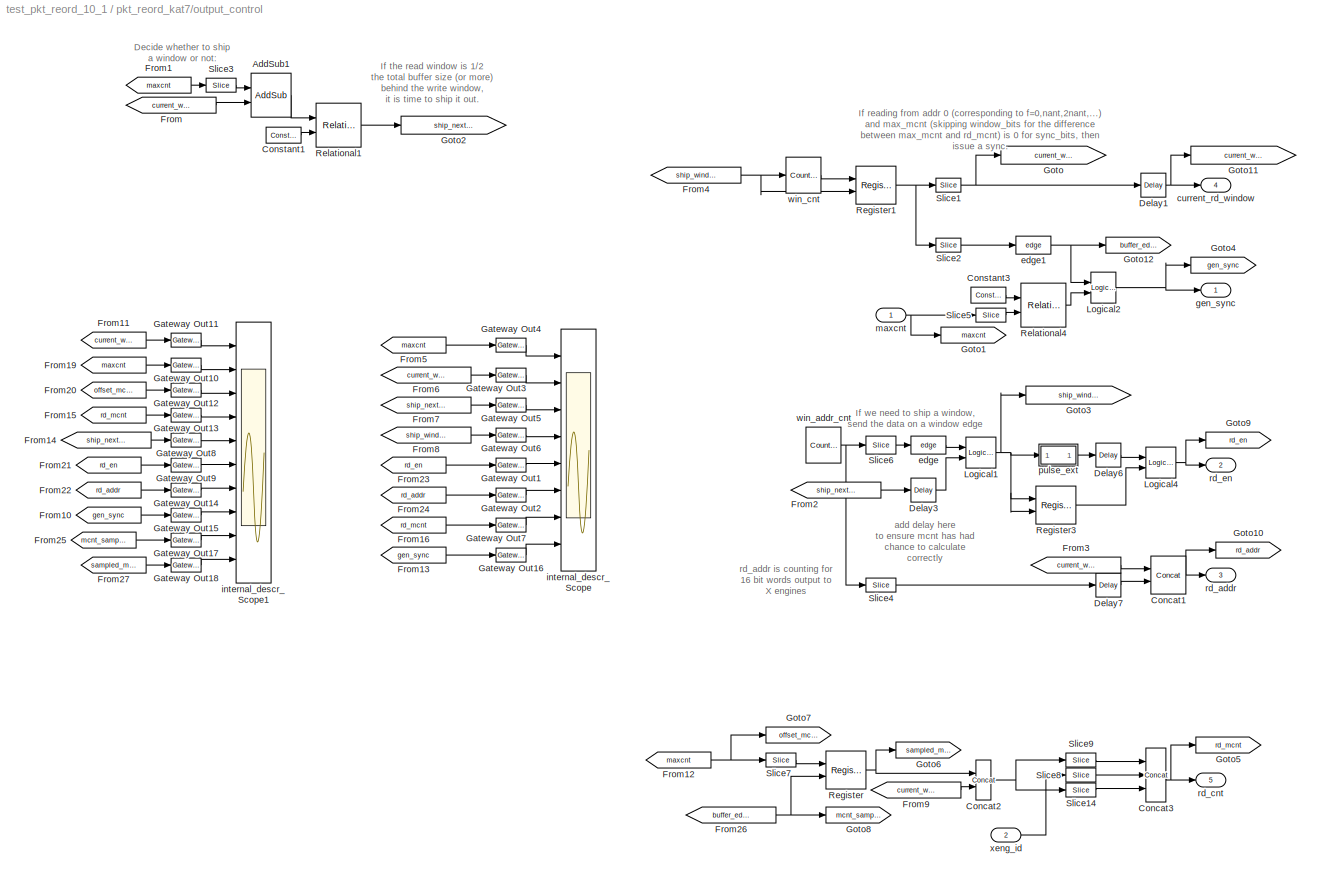
BLOCK [SubSystem] pkt_reord_kat7/output_control
  FunctionWithSeparateData = off
  MaskHideContents = off
  MinAlgLoopOccurrences = off
  Opaque = off
  Ports = [2, 5]
  PropExecContextOutsideSubsystem = off
  RTWSystemCode = Auto
  RequestExecContextInheritance = off
  SID = 252
BLOCK [Reference] pkt_reord_kat7/output_control/AddSub1  REF=xbsIndex_r4/AddSub
  Ports = [2, 1]
  SID = 255
  SourceBlock = xbsIndex_r4/AddSub
  SourceType = Xilinx Adder/Subtracter Block
  arith_type = Unsigned
  bin_pt = 0
  block_type = addsub
  block_version = 10.1.3
  dbl_ovrd = off
  en = off
  has_advanced_control = 0
  hw_selection = Fabric
  latency = 2
  mode = Subtraction
  n_bits = window_bits
  overflow = Wrap
  pipelined = off
  precision = User Defined
  quantization = Truncate
  sg_icon_stat = 40,44,2,1,white,blue,0,57a258cf,right,
  sggui_pos = 20,20,348,344
  use_behavioral_HDL = on
  use_carryin = off
  use_carryout = off
  use_rpm = on
  xl_area = [0, 0, 0, 0, 0, 0, 0]
  xl_use_area = off
BLOCK [Reference] pkt_reord_kat7/output_control/Concat1  REF=xbsIndex_r4/Concat
  Ports = [2, 1]
  SID = 256
  SourceBlock = xbsIndex_r4/Concat
  SourceType = Xilinx Bus Concatenator Block
  block_type = concat
  block_version = 10.1.3
  dbl_ovrd = off
  has_advanced_control = 0
  infoedit = Concatenates two or more inputs.  Output will be cast to an unsigned value with the binary point at zero.
  num_inputs = 2
  sg_icon_stat = 35,38,2,1,white,blue,0,97b7e8d2,right,
  sg_mask_display = fprintf('','COMMENT: begin icon graphics');\npatch([0 1 1 0 ],[0 0 1 1 ],[0.77 0.82 0.91]);\npatch([0.228571 0.0571429 0.285714 0.0571429 0.228571 0.485714 0.571429 0.657143 0.942857 0.714286 0.514286 0.371429 0.6 0.371429 0.514286 0.714286 0.942857 0.657143 0.571429 0.485714 0.228571 ],[0.131579 0.289474 0.5 0.710526 0.868421 0.868421 0.789474 0.868421 0.868421 0.657895 0.842105 0.710526 0.5 0.28...<+335ch>
  sggui_pos = -1,-1,-1,-1
BLOCK [Reference] pkt_reord_kat7/output_control/Concat2  REF=xbsIndex_r4/Concat
  Ports = [2, 1]
  SID = 257
  SourceBlock = xbsIndex_r4/Concat
  SourceType = Xilinx Bus Concatenator Block
  block_type = concat
  block_version = 10.1.3
  dbl_ovrd = off
  has_advanced_control = 0
  infoedit = Concatenates two or more inputs.  Output will be cast to an unsigned value with the binary point at zero.
  num_inputs = 2
  sg_icon_stat = 15,40,2,1,white,blue,0,97b7e8d2,right,
  sg_mask_display = fprintf('','COMMENT: begin icon graphics');\npatch([0 1 1 0 ],[0 0 1 1 ],[0.77 0.82 0.91]);\npatch([0.2 0.0666667 0.333333 0.0666667 0.2 0.466667 0.533333 0.6 0.866667 0.666667 0.466667 0.333333 0.6 0.333333 0.466667 0.666667 0.866667 0.6 0.533333 0.466667 0.2 ],[0.35 0.4 0.5 0.6 0.65 0.65 0.625 0.65 0.65 0.575 0.65 0.6 0.5 0.4 0.35 0.425 0.35 0.35 0.375 0.35 0.35 ],[0.98 0.96 0.92]);\nplot([0 1 1...<+234ch>
  sggui_pos = 21,201,336,214
BLOCK [Reference] pkt_reord_kat7/output_control/Concat3  REF=xbsIndex_r4/Concat
  Ports = [3, 1]
  SID = 258
  SourceBlock = xbsIndex_r4/Concat
  SourceType = Xilinx Bus Concatenator Block
  block_type = concat
  block_version = 10.1.3
  dbl_ovrd = off
  has_advanced_control = 0
  infoedit = Concatenates two or more inputs.  Output will be cast to an unsigned value with the binary point at zero.
  num_inputs = 3
  sg_icon_stat = 20,54,3,1,white,blue,0,cc9eafd1,right,
  sg_mask_display = fprintf('','COMMENT: begin icon graphics');\npatch([0 1 1 0 ],[0 0 1 1 ],[0.77 0.82 0.91]);\npatch([0.2 0.05 0.3 0.05 0.2 0.45 0.5 0.55 0.85 0.65 0.45 0.3 0.55 0.3 0.45 0.65 0.85 0.55 0.5 0.45 0.2 ],[0.351852 0.407407 0.5 0.592593 0.648148 0.648148 0.62963 0.648148 0.648148 0.574074 0.648148 0.592593 0.5 0.407407 0.351852 0.425926 0.351852 0.351852 0.37037 0.351852 0.351852 ],[0.98 0.96 0.92]);\np...<+244ch>
  sggui_pos = 22,228,336,214
BLOCK [Reference] pkt_reord_kat7/output_control/Constant1  REF=xbsIndex_r4/Constant
  Ports = [0, 1]
  SID = 259
  SourceBlock = xbsIndex_r4/Constant
  SourceType = Xilinx Constant Block Block
  arith_type = Unsigned
  bin_pt = 0
  block_type = constant
  block_version = 10.1.3
  carry = CIN
  const = 2^(window_bits - 1)
  dbl_ovrd = off
  dsp48_infoedit = The use of this block for DSP48 instructions is deprecated.  Please use the Opmode block.
  equ = P=C
  explicit_period = on
  has_advanced_control = 0
  inp1 = P
  inp2 = PCIN>>17
  n_bits = window_bits
  opr = +
  opselect = C
  period = 1
  sg_icon_stat = 35,16,0,1,white,blue,0,85f36853,right,
  sggui_pos = 20,20,400,346
BLOCK [Reference] pkt_reord_kat7/output_control/Constant3  REF=xbsIndex_r4/Constant
  Ports = [0, 1]
  SID = 260
  SourceBlock = xbsIndex_r4/Constant
  SourceType = Xilinx Constant Block Block
  arith_type = Unsigned
  bin_pt = 0
  block_type = constant
  block_version = 10.1.3
  carry = CIN
  const = 0
  dbl_ovrd = off
  dsp48_infoedit = The use of this block for DSP48 instructions is deprecated.  Please use the Opmode block.
  equ = P=C
  explicit_period = on
  has_advanced_control = 0
  inp1 = P
  inp2 = PCIN>>17
  n_bits = sync_bits - x_int_bits - ant_bits - window_bits
  opr = +
  opselect = C
  period = 1
  sg_icon_stat = 35,16,0,1,white,blue,0,bf4ddd8b,right,
  sggui_pos = 20,20,414,344
BLOCK [Reference] pkt_reord_kat7/output_control/Delay1  REF=xbsIndex_r4/Delay
  Ports = [1, 1]
  SID = 261
  SourceBlock = xbsIndex_r4/Delay
  SourceType = Xilinx Delay Block
  block_type = delay
  block_version = 10.1.3
  dbl_ovrd = off
  en = off
  has_advanced_control = 0
  infoedit = Hardware notes: A delay line is a chain, each link of which is an SRL16 followed by a flip-flop.
  latency = 1
  reg_retiming = off
  sg_icon_stat = 25,24,1,1,white,blue,0,07b98262,right,
  sggui_pos = -1,-1,-1,-1
  xl_area = [0, 0, 0, 0, 0, 0, 0]
  xl_use_area = off
BLOCK [Reference] pkt_reord_kat7/output_control/Delay3  REF=xbsIndex_r4/Delay
  Ports = [1, 1]
  SID = 262
  SourceBlock = xbsIndex_r4/Delay
  SourceType = Xilinx Delay Block
  block_type = delay
  block_version = 10.1.3
  dbl_ovrd = off
  en = off
  has_advanced_control = 0
  infoedit = Hardware notes: A delay line is a chain, each link of which is an SRL16 followed by a flip-flop.
  latency = 2
  reg_retiming = on
  sg_icon_stat = 25,24,1,1,white,blue,0,85ce9542,right,
  sggui_pos = 20,20,348,255
  xl_area = [0, 0, 0, 0, 0, 0, 0]
  xl_use_area = off
BLOCK [Reference] pkt_reord_kat7/output_control/Delay6  REF=xbsIndex_r4/Delay
  Ports = [1, 1]
  SID = 263
  SourceBlock = xbsIndex_r4/Delay
  SourceType = Xilinx Delay Block
  block_type = delay
  block_version = 10.1.3
  dbl_ovrd = off
  en = off
  has_advanced_control = 0
  infoedit = Hardware notes: A delay line is a chain, each link of which is an SRL16 followed by a flip-flop.
  latency = 1
  reg_retiming = on
  sg_icon_stat = 25,24,1,1,white,blue,0,07b98262,right,
  sggui_pos = 20,20,348,255
  xl_area = [0, 0, 0, 0, 0, 0, 0]
  xl_use_area = off
BLOCK [Reference] pkt_reord_kat7/output_control/Delay7  REF=xbsIndex_r4/Delay
  Ports = [1, 1]
  SID = 264
  SourceBlock = xbsIndex_r4/Delay
  SourceType = Xilinx Delay Block
  block_type = delay
  block_version = 10.1.3
  dbl_ovrd = off
  en = off
  has_advanced_control = 0
  infoedit = Hardware notes: A delay line is a chain, each link of which is an SRL16 followed by a flip-flop.
  latency = 2
  reg_retiming = on
  sg_icon_stat = 25,24,1,1,white,blue,0,85ce9542,right,
  sggui_pos = 20,20,348,255
  xl_area = [0, 0, 0, 0, 0, 0, 0]
  xl_use_area = off
BLOCK [From] pkt_reord_kat7/output_control/From
  CloseFcn = tagdialog Close
  GotoTag = current_window
  SID = 265
BLOCK [From] pkt_reord_kat7/output_control/From1
  CloseFcn = tagdialog Close
  GotoTag = maxcnt
  SID = 266
BLOCK [From] pkt_reord_kat7/output_control/From10
  CloseFcn = tagdialog Close
  GotoTag = gen_sync
  SID = 267
BLOCK [From] pkt_reord_kat7/output_control/From11
  CloseFcn = tagdialog Close
  GotoTag = current_window_out
  SID = 268
BLOCK [From] pkt_reord_kat7/output_control/From12
  CloseFcn = tagdialog Close
  GotoTag = maxcnt
  SID = 269
BLOCK [From] pkt_reord_kat7/output_control/From13
  CloseFcn = tagdialog Close
  GotoTag = gen_sync
  SID = 270
BLOCK [From] pkt_reord_kat7/output_control/From14
  CloseFcn = tagdialog Close
  GotoTag = ship_next_window
  SID = 271
BLOCK [From] pkt_reord_kat7/output_control/From15
  CloseFcn = tagdialog Close
  GotoTag = rd_mcnt
  SID = 272
BLOCK [From] pkt_reord_kat7/output_control/From16
  CloseFcn = tagdialog Close
  GotoTag = rd_mcnt
  SID = 273
BLOCK [From] pkt_reord_kat7/output_control/From19
  CloseFcn = tagdialog Close
  GotoTag = maxcnt
  SID = 274
BLOCK [From] pkt_reord_kat7/output_control/From2
  CloseFcn = tagdialog Close
  GotoTag = ship_next_window
  SID = 275
BLOCK [From] pkt_reord_kat7/output_control/From20
  CloseFcn = tagdialog Close
  GotoTag = offset_mcnt
  SID = 276
BLOCK [From] pkt_reord_kat7/output_control/From21
  CloseFcn = tagdialog Close
  GotoTag = rd_en
  SID = 277
BLOCK [From] pkt_reord_kat7/output_control/From22
  CloseFcn = tagdialog Close
  GotoTag = rd_addr
  SID = 278
BLOCK [From] pkt_reord_kat7/output_control/From23
  CloseFcn = tagdialog Close
  GotoTag = rd_en
  SID = 279
BLOCK [From] pkt_reord_kat7/output_control/From24
  CloseFcn = tagdialog Close
  GotoTag = rd_addr
  SID = 280
BLOCK [From] pkt_reord_kat7/output_control/From25
  CloseFcn = tagdialog Close
  GotoTag = mcnt_sample
  SID = 281
BLOCK [From] pkt_reord_kat7/output_control/From26
  CloseFcn = tagdialog Close
  GotoTag = buffer_edge
  SID = 282
BLOCK [From] pkt_reord_kat7/output_control/From27
  CloseFcn = tagdialog Close
  GotoTag = sampled_mcnt
  SID = 283
BLOCK [From] pkt_reord_kat7/output_control/From3
  CloseFcn = tagdialog Close
  GotoTag = current_window_out
  SID = 284
BLOCK [From] pkt_reord_kat7/output_control/From4
  CloseFcn = tagdialog Close
  GotoTag = ship_window_now
  SID = 285
BLOCK [From] pkt_reord_kat7/output_control/From5
  CloseFcn = tagdialog Close
  GotoTag = maxcnt
  SID = 286
BLOCK [From] pkt_reord_kat7/output_control/From6
  CloseFcn = tagdialog Close
  GotoTag = current_window_out
  SID = 287
BLOCK [From] pkt_reord_kat7/output_control/From7
  CloseFcn = tagdialog Close
  GotoTag = ship_next_window
  SID = 288
BLOCK [From] pkt_reord_kat7/output_control/From8
  CloseFcn = tagdialog Close
  GotoTag = ship_window_now
  SID = 289
BLOCK [From] pkt_reord_kat7/output_control/From9
  CloseFcn = tagdialog Close
  GotoTag = current_window_out
  SID = 290
BLOCK [Reference] pkt_reord_kat7/output_control/Gateway Out1  REF=xbsIndex_r4/Gateway Out
  LOCs = {}
  Ports = [1, 1]
  SID = 291
  SourceBlock = xbsIndex_r4/Gateway Out
  SourceType = Xilinx Gateway Out Block
  block_type = gatewayout
  block_version = 10.1.3
  has_advanced_control = 0
  hdl_port = off
  locs_specified = off
  sg_icon_stat = 30,14,1,1,white,grey,0,632ec840,right,
  sggui_pos = -1,-1,-1,-1
  timing_constraint = None
  xl_area = [0, 0, 0, 0, 0, 0, 0]
  xl_use_area = off
BLOCK [Reference] pkt_reord_kat7/output_control/Gateway Out10  REF=xbsIndex_r4/Gateway Out
  LOCs = {}
  Ports = [1, 1]
  SID = 292
  SourceBlock = xbsIndex_r4/Gateway Out
  SourceType = Xilinx Gateway Out Block
  block_type = gatewayout
  block_version = 10.1.3
  has_advanced_control = 0
  hdl_port = off
  locs_specified = off
  sg_icon_stat = 30,14,1,1,white,grey,0,632ec840,right,
  sggui_pos = -1,-1,-1,-1
  timing_constraint = None
  xl_area = [0, 0, 0, 0, 0, 0, 0]
  xl_use_area = off
BLOCK [Reference] pkt_reord_kat7/output_control/Gateway Out11  REF=xbsIndex_r4/Gateway Out
  LOCs = {}
  Ports = [1, 1]
  SID = 293
  SourceBlock = xbsIndex_r4/Gateway Out
  SourceType = Xilinx Gateway Out Block
  block_type = gatewayout
  block_version = 10.1.3
  has_advanced_control = 0
  hdl_port = off
  locs_specified = off
  sg_icon_stat = 30,14,1,1,white,grey,0,632ec840,right,
  sggui_pos = 20,20,336,386
  timing_constraint = None
  xl_area = [0, 0, 0, 0, 0, 0, 0]
  xl_use_area = off
BLOCK [Reference] pkt_reord_kat7/output_control/Gateway Out12  REF=xbsIndex_r4/Gateway Out
  LOCs = {}
  Ports = [1, 1]
  SID = 294
  SourceBlock = xbsIndex_r4/Gateway Out
  SourceType = Xilinx Gateway Out Block
  block_type = gatewayout
  block_version = 10.1.3
  has_advanced_control = 0
  hdl_port = off
  locs_specified = off
  sg_icon_stat = 30,14,1,1,white,grey,0,632ec840,right,
  sggui_pos = -1,-1,-1,-1
  timing_constraint = None
  xl_area = [0, 0, 0, 0, 0, 0, 0]
  xl_use_area = off
BLOCK [Reference] pkt_reord_kat7/output_control/Gateway Out13  REF=xbsIndex_r4/Gateway Out
  LOCs = {}
  Ports = [1, 1]
  SID = 295
  SourceBlock = xbsIndex_r4/Gateway Out
  SourceType = Xilinx Gateway Out Block
  block_type = gatewayout
  block_version = 10.1.3
  has_advanced_control = 0
  hdl_port = off
  locs_specified = off
  sg_icon_stat = 30,14,1,1,white,grey,0,632ec840,right,
  sggui_pos = -1,-1,-1,-1
  timing_constraint = None
  xl_area = [0, 0, 0, 0, 0, 0, 0]
  xl_use_area = off
BLOCK [Reference] pkt_reord_kat7/output_control/Gateway Out14  REF=xbsIndex_r4/Gateway Out
  LOCs = {}
  Ports = [1, 1]
  SID = 296
  SourceBlock = xbsIndex_r4/Gateway Out
  SourceType = Xilinx Gateway Out Block
  block_type = gatewayout
  block_version = 10.1.3
  has_advanced_control = 0
  hdl_port = off
  locs_specified = off
  sg_icon_stat = 30,14,1,1,white,grey,0,632ec840,right,
  sggui_pos = -1,-1,-1,-1
  timing_constraint = None
  xl_area = [0, 0, 0, 0, 0, 0, 0]
  xl_use_area = off
BLOCK [Reference] pkt_reord_kat7/output_control/Gateway Out15  REF=xbsIndex_r4/Gateway Out
  LOCs = {}
  Ports = [1, 1]
  SID = 297
  SourceBlock = xbsIndex_r4/Gateway Out
  SourceType = Xilinx Gateway Out Block
  block_type = gatewayout
  block_version = 10.1.3
  has_advanced_control = 0
  hdl_port = off
  locs_specified = off
  sg_icon_stat = 30,14,1,1,white,grey,0,632ec840,right,
  sggui_pos = -1,-1,-1,-1
  timing_constraint = None
  xl_area = [0, 0, 0, 0, 0, 0, 0]
  xl_use_area = off
BLOCK [Reference] pkt_reord_kat7/output_control/Gateway Out16  REF=xbsIndex_r4/Gateway Out
  LOCs = {}
  Ports = [1, 1]
  SID = 298
  SourceBlock = xbsIndex_r4/Gateway Out
  SourceType = Xilinx Gateway Out Block
  block_type = gatewayout
  block_version = 10.1.3
  has_advanced_control = 0
  hdl_port = off
  locs_specified = off
  sg_icon_stat = 30,14,1,1,white,grey,0,632ec840,right,
  sggui_pos = -1,-1,-1,-1
  timing_constraint = None
  xl_area = [0, 0, 0, 0, 0, 0, 0]
  xl_use_area = off
BLOCK [Reference] pkt_reord_kat7/output_control/Gateway Out17  REF=xbsIndex_r4/Gateway Out
  LOCs = {}
  Ports = [1, 1]
  SID = 299
  SourceBlock = xbsIndex_r4/Gateway Out
  SourceType = Xilinx Gateway Out Block
  block_type = gatewayout
  block_version = 10.1.3
  has_advanced_control = 0
  hdl_port = off
  locs_specified = off
  sg_icon_stat = 30,14,1,1,white,grey,0,632ec840,right,
  sggui_pos = -1,-1,-1,-1
  timing_constraint = None
  xl_area = [0, 0, 0, 0, 0, 0, 0]
  xl_use_area = off
BLOCK [Reference] pkt_reord_kat7/output_control/Gateway Out18  REF=xbsIndex_r4/Gateway Out
  LOCs = {}
  Ports = [1, 1]
  SID = 300
  SourceBlock = xbsIndex_r4/Gateway Out
  SourceType = Xilinx Gateway Out Block
  block_type = gatewayout
  block_version = 10.1.3
  has_advanced_control = 0
  hdl_port = off
  locs_specified = off
  sg_icon_stat = 30,14,1,1,white,grey,0,632ec840,right,
  sggui_pos = -1,-1,-1,-1
  timing_constraint = None
  xl_area = [0, 0, 0, 0, 0, 0, 0]
  xl_use_area = off
BLOCK [Reference] pkt_reord_kat7/output_control/Gateway Out2  REF=xbsIndex_r4/Gateway Out
  LOCs = {}
  Ports = [1, 1]
  SID = 301
  SourceBlock = xbsIndex_r4/Gateway Out
  SourceType = Xilinx Gateway Out Block
  block_type = gatewayout
  block_version = 10.1.3
  has_advanced_control = 0
  hdl_port = off
  locs_specified = off
  sg_icon_stat = 30,14,1,1,white,grey,0,632ec840,right,
  sggui_pos = -1,-1,-1,-1
  timing_constraint = None
  xl_area = [0, 0, 0, 0, 0, 0, 0]
  xl_use_area = off
BLOCK [Reference] pkt_reord_kat7/output_control/Gateway Out3  REF=xbsIndex_r4/Gateway Out
  LOCs = {}
  Ports = [1, 1]
  SID = 302
  SourceBlock = xbsIndex_r4/Gateway Out
  SourceType = Xilinx Gateway Out Block
  block_type = gatewayout
  block_version = 10.1.3
  has_advanced_control = 0
  hdl_port = off
  locs_specified = off
  sg_icon_stat = 30,14,1,1,white,grey,0,632ec840,right,
  sggui_pos = -1,-1,-1,-1
  timing_constraint = None
  xl_area = [0, 0, 0, 0, 0, 0, 0]
  xl_use_area = off
BLOCK [Reference] pkt_reord_kat7/output_control/Gateway Out4  REF=xbsIndex_r4/Gateway Out
  LOCs = {}
  Ports = [1, 1]
  SID = 303
  SourceBlock = xbsIndex_r4/Gateway Out
  SourceType = Xilinx Gateway Out Block
  block_type = gatewayout
  block_version = 10.1.3
  has_advanced_control = 0
  hdl_port = off
  locs_specified = off
  sg_icon_stat = 30,14,1,1,white,grey,0,632ec840,right,
  sggui_pos = -1,-1,-1,-1
  timing_constraint = None
  xl_area = [0, 0, 0, 0, 0, 0, 0]
  xl_use_area = off
BLOCK [Reference] pkt_reord_kat7/output_control/Gateway Out5  REF=xbsIndex_r4/Gateway Out
  LOCs = {}
  Ports = [1, 1]
  SID = 304
  SourceBlock = xbsIndex_r4/Gateway Out
  SourceType = Xilinx Gateway Out Block
  block_type = gatewayout
  block_version = 10.1.3
  has_advanced_control = 0
  hdl_port = off
  locs_specified = off
  sg_icon_stat = 30,14,1,1,white,grey,0,632ec840,right,
  sggui_pos = -1,-1,-1,-1
  timing_constraint = None
  xl_area = [0, 0, 0, 0, 0, 0, 0]
  xl_use_area = off
BLOCK [Reference] pkt_reord_kat7/output_control/Gateway Out6  REF=xbsIndex_r4/Gateway Out
  LOCs = {}
  Ports = [1, 1]
  SID = 305
  SourceBlock = xbsIndex_r4/Gateway Out
  SourceType = Xilinx Gateway Out Block
  block_type = gatewayout
  block_version = 10.1.3
  has_advanced_control = 0
  hdl_port = off
  locs_specified = off
  sg_icon_stat = 30,14,1,1,white,grey,0,632ec840,right,
  sggui_pos = -1,-1,-1,-1
  timing_constraint = None
  xl_area = [0, 0, 0, 0, 0, 0, 0]
  xl_use_area = off
BLOCK [Reference] pkt_reord_kat7/output_control/Gateway Out7  REF=xbsIndex_r4/Gateway Out
  LOCs = {}
  Ports = [1, 1]
  SID = 306
  SourceBlock = xbsIndex_r4/Gateway Out
  SourceType = Xilinx Gateway Out Block
  block_type = gatewayout
  block_version = 10.1.3
  has_advanced_control = 0
  hdl_port = off
  locs_specified = off
  sg_icon_stat = 30,14,1,1,white,grey,0,632ec840,right,
  sggui_pos = -1,-1,-1,-1
  timing_constraint = None
  xl_area = [0, 0, 0, 0, 0, 0, 0]
  xl_use_area = off
BLOCK [Reference] pkt_reord_kat7/output_control/Gateway Out8  REF=xbsIndex_r4/Gateway Out
  LOCs = {}
  Ports = [1, 1]
  SID = 307
  SourceBlock = xbsIndex_r4/Gateway Out
  SourceType = Xilinx Gateway Out Block
  block_type = gatewayout
  block_version = 10.1.3
  has_advanced_control = 0
  hdl_port = off
  locs_specified = off
  sg_icon_stat = 30,14,1,1,white,grey,0,632ec840,right,
  sggui_pos = -1,-1,-1,-1
  timing_constraint = None
  xl_area = [0, 0, 0, 0, 0, 0, 0]
  xl_use_area = off
BLOCK [Reference] pkt_reord_kat7/output_control/Gateway Out9  REF=xbsIndex_r4/Gateway Out
  LOCs = {}
  Ports = [1, 1]
  SID = 308
  SourceBlock = xbsIndex_r4/Gateway Out
  SourceType = Xilinx Gateway Out Block
  block_type = gatewayout
  block_version = 10.1.3
  has_advanced_control = 0
  hdl_port = off
  locs_specified = off
  sg_icon_stat = 30,14,1,1,white,grey,0,632ec840,right,
  sggui_pos = -1,-1,-1,-1
  timing_constraint = None
  xl_area = [0, 0, 0, 0, 0, 0, 0]
  xl_use_area = off
BLOCK [Goto] pkt_reord_kat7/output_control/Goto
  GotoTag = current_window
  SID = 309
BLOCK [Goto] pkt_reord_kat7/output_control/Goto1
  GotoTag = maxcnt
  SID = 310
BLOCK [Goto] pkt_reord_kat7/output_control/Goto10
  GotoTag = rd_addr
  SID = 311
BLOCK [Goto] pkt_reord_kat7/output_control/Goto11
  GotoTag = current_window_out
  SID = 312
BLOCK [Goto] pkt_reord_kat7/output_control/Goto12
  GotoTag = buffer_edge
  SID = 313
BLOCK [Goto] pkt_reord_kat7/output_control/Goto2
  GotoTag = ship_next_window
  SID = 314
BLOCK [Goto] pkt_reord_kat7/output_control/Goto3
  GotoTag = ship_window_now
  SID = 315
BLOCK [Goto] pkt_reord_kat7/output_control/Goto4
  GotoTag = gen_sync
  SID = 316
BLOCK [Goto] pkt_reord_kat7/output_control/Goto5
  GotoTag = rd_mcnt
  SID = 317
BLOCK [Goto] pkt_reord_kat7/output_control/Goto6
  GotoTag = sampled_mcnt
  SID = 318
BLOCK [Goto] pkt_reord_kat7/output_control/Goto7
  GotoTag = offset_mcnt
  SID = 319
BLOCK [Goto] pkt_reord_kat7/output_control/Goto8
  GotoTag = mcnt_sample
  SID = 320
BLOCK [Goto] pkt_reord_kat7/output_control/Goto9
  GotoTag = rd_en
  SID = 321
BLOCK [Reference] pkt_reord_kat7/output_control/Logical1  REF=xbsIndex_r4/Logical
  Ports = [2, 1]
  SID = 322
  SourceBlock = xbsIndex_r4/Logical
  SourceType = Xilinx Logical Block Block
  align_bp = on
  arith_type = Unsigned
  bin_pt = 2
  block_type = logical
  block_version = 10.1.3
  dbl_ovrd = off
  en = off
  has_advanced_control = 0
  inputs = 2
  latency = 0
  logical_function = AND
  n_bits = 8
  precision = Full
  sg_icon_stat = 30,31,2,1,white,blue,0,0a851f85,right,
  sg_mask_display = fprintf('','COMMENT: begin icon graphics');\npatch([0 1 1 0 ],[0 0 1 1 ],[0.77 0.82 0.91]);\npatch([0.233333 0.0666667 0.3 0.0666667 0.233333 0.5 0.566667 0.633333 0.9 0.666667 0.466667 0.3 0.5 0.3 0.466667 0.666667 0.9 0.633333 0.566667 0.5 0.233333 ],[0.129032 0.290323 0.516129 0.741935 0.903226 0.903226 0.83871 0.903226 0.903226 0.677419 0.870968 0.709677 0.516129 0.322581 0.16129 0.354839 0.12...<+288ch>  <repeated x4 — deduplicated; at blocks: Logical1, Logical4>
  sggui_pos = -1,-1,-1,-1
  xl_area = [0, 0, 0, 0, 0, 0, 0]
  xl_use_area = off
BLOCK [Reference] pkt_reord_kat7/output_control/Logical2  REF=xbsIndex_r4/Logical
  Ports = [2, 1]
  SID = 323
  SourceBlock = xbsIndex_r4/Logical
  SourceType = Xilinx Logical Block Block
  align_bp = on
  arith_type = Unsigned
  bin_pt = 2
  block_type = logical
  block_version = 10.1.3
  dbl_ovrd = off
  en = off
  has_advanced_control = 0
  inputs = 2
  latency = 0
  logical_function = AND
  n_bits = 8
  precision = Full
  sg_icon_stat = 25,31,2,1,white,blue,0,0a851f85,right,
  sg_mask_display = fprintf('','COMMENT: begin icon graphics');\npatch([0 1 1 0 ],[0 0 1 1 ],[0.77 0.82 0.91]);\npatch([0.24 0.08 0.32 0.08 0.24 0.52 0.6 0.68 0.96 0.72 0.52 0.36 0.56 0.36 0.52 0.72 0.96 0.68 0.6 0.52 0.24 ],[0.193548 0.322581 0.516129 0.709677 0.83871 0.83871 0.774194 0.83871 0.83871 0.645161 0.806452 0.677419 0.516129 0.354839 0.225806 0.387097 0.193548 0.193548 0.258065 0.193548 0.193548 ],[0.98 0...<+238ch>
  sggui_pos = -1,-1,-1,-1
  xl_area = [0, 0, 0, 0, 0, 0, 0]
  xl_use_area = off
BLOCK [Reference] pkt_reord_kat7/output_control/Logical4  REF=xbsIndex_r4/Logical
  Ports = [2, 1]
  SID = 324
  SourceBlock = xbsIndex_r4/Logical
  SourceType = Xilinx Logical Block Block
  align_bp = on
  arith_type = Unsigned
  bin_pt = 2
  block_type = logical
  block_version = 10.1.3
  dbl_ovrd = off
  en = off
  has_advanced_control = 0
  inputs = 2
  latency = 0
  logical_function = AND
  n_bits = 8
  precision = Full
  sg_icon_stat = 30,31,2,1,white,blue,0,0a851f85,right,
  sggui_pos = -1,-1,-1,-1
  xl_area = [0, 0, 0, 0, 0, 0, 0]
  xl_use_area = off
BLOCK [Reference] pkt_reord_kat7/output_control/Register  REF=xbsIndex_r4/Register
  Ports = [2, 1]
  SID = 325
  SourceBlock = xbsIndex_r4/Register
  SourceType = Xilinx Register Block
  block_type = register
  block_version = 10.1.3
  dbl_ovrd = off
  en = on
  has_advanced_control = 0
  init = 0
  rst = off
  sg_icon_stat = 40,38,2,1,white,blue,0,01f465d5,right,
  sg_mask_display = fprintf('','COMMENT: begin icon graphics');\npatch([0 1 1 0 ],[0 0 1 1 ],[0.77 0.82 0.91]);\npatch([0.25 0.1 0.325 0.1 0.25 0.5 0.575 0.65 0.925 0.725 0.525 0.375 0.6 0.375 0.525 0.725 0.925 0.65 0.575 0.5 0.25 ],[0.105263 0.263158 0.5 0.736842 0.894737 0.894737 0.815789 0.894737 0.894737 0.684211 0.894737 0.736842 0.5 0.263158 0.105263 0.315789 0.105263 0.105263 0.184211 0.105263 0.105263 ],[0.98...<+356ch>  <repeated x6 — deduplicated; at blocks: Register, Register1, Register3>
  sggui_pos = 20,20,348,192
  xl_area = [0,0,0,0,0,0,0]
  xl_use_area = off
BLOCK [Reference] pkt_reord_kat7/output_control/Register1  REF=xbsIndex_r4/Register
  Ports = [2, 1]
  SID = 326
  SourceBlock = xbsIndex_r4/Register
  SourceType = Xilinx Register Block
  block_type = register
  block_version = 10.1.3
  dbl_ovrd = off
  en = on
  has_advanced_control = 0
  init = 0
  rst = off
  sg_icon_stat = 40,38,2,1,white,blue,0,01f465d5,right,
  sggui_pos = 20,20,348,192
  xl_area = [0,0,0,0,0,0,0]
  xl_use_area = off
BLOCK [Reference] pkt_reord_kat7/output_control/Register3  REF=xbsIndex_r4/Register
  Ports = [2, 1]
  SID = 327
  SourceBlock = xbsIndex_r4/Register
  SourceType = Xilinx Register Block
  block_type = register
  block_version = 10.1.3
  dbl_ovrd = off
  en = on
  has_advanced_control = 0
  init = 0
  rst = off
  sg_icon_stat = 40,38,2,1,white,blue,0,01f465d5,right,
  sggui_pos = 20,20,348,192
  xl_area = [0,0,0,0,0,0,0]
  xl_use_area = off
BLOCK [Reference] pkt_reord_kat7/output_control/Relational1  REF=xbsIndex_r4/Relational
  Ports = [2, 1]
  SID = 328
  SourceBlock = xbsIndex_r4/Relational
  SourceType = Xilinx Arithmetic Relational Operator Block
  block_type = relational
  block_version = 10.1.3
  dbl_ovrd = off
  en = off
  has_advanced_control = 0
  latency = 1
  mode = a>=b
  sg_icon_stat = 45,44,2,1,white,blue,0,e163381b,right,
  sggui_pos = 20,20,348,193
  xl_area = [0, 0, 0, 0, 0, 0, 0]
  xl_use_area = off
BLOCK [Reference] pkt_reord_kat7/output_control/Relational4  REF=xbsIndex_r4/Relational
  Ports = [2, 1]
  SID = 329
  SourceBlock = xbsIndex_r4/Relational
  SourceType = Xilinx Arithmetic Relational Operator Block
  block_type = relational
  block_version = 10.1.3
  dbl_ovrd = off
  en = off
  has_advanced_control = 0
  latency = 1
  mode = a=b
  sg_icon_stat = 45,44,2,1,white,blue,0,2d4703fd,right,
  sggui_pos = 20,20,348,193
  xl_area = [0, 0, 0, 0, 0, 0, 0]
  xl_use_area = off
BLOCK [Reference] pkt_reord_kat7/output_control/Slice1  REF=xbsIndex_r4/Slice
  Ports = [1, 1]
  SID = 330
  SourceBlock = xbsIndex_r4/Slice
  SourceType = Xilinx Bit Slice Extractor Block
  base0 = LSB of Input
  base1 = MSB of Input
  bit0 = 0
  bit1 = 0
  block_type = slice
  block_version = 10.1.3
  boolean_output = off
  dbl_ovrd = off
  has_advanced_control = 0
  mode = Lower Bit Location + Width
  nbits = window_bits
  sg_icon_stat = 25,14,1,1,white,blue,0,1fd851a7,right,
  sg_mask_display = fprintf('','COMMENT: begin icon graphics');\npatch([0 1 1 0 ],[0 0 1 1 ],[0.77 0.82 0.91]);\npatch([0.32 0.24 0.36 0.24 0.32 0.48 0.52 0.56 0.72 0.6 0.48 0.4 0.52 0.4 0.48 0.6 0.72 0.56 0.52 0.48 0.32 ],[0.142857 0.285714 0.5 0.714286 0.857143 0.857143 0.785714 0.857143 0.857143 0.642857 0.857143 0.714286 0.5 0.285714 0.142857 0.357143 0.142857 0.142857 0.214286 0.142857 0.142857 ],[0.98 0.96 0.92...<+210ch>  <repeated x4 — deduplicated; at blocks: Slice1, Slice2>
  sggui_pos = 20,20,460,380
BLOCK [Reference] pkt_reord_kat7/output_control/Slice14  REF=xbsIndex_r4/Slice
  Ports = [1, 1]
  SID = 331
  SourceBlock = xbsIndex_r4/Slice
  SourceType = Xilinx Bit Slice Extractor Block
  base0 = LSB of Input
  base1 = LSB of Input
  bit0 = 0
  bit1 = 2
  block_type = slice
  block_version = 10.1.3
  boolean_output = off
  dbl_ovrd = off
  has_advanced_control = 0
  mode = Lower Bit Location + Width
  nbits = chan_bits-xeng_bits
  sg_icon_stat = 30,14,1,1,white,blue,0,1fd851a7,right,
  sggui_pos = 947,517,543,482
BLOCK [Reference] pkt_reord_kat7/output_control/Slice2  REF=xbsIndex_r4/Slice
  Ports = [1, 1]
  SID = 332
  SourceBlock = xbsIndex_r4/Slice
  SourceType = Xilinx Bit Slice Extractor Block
  base0 = LSB of Input
  base1 = MSB of Input
  bit0 = 0
  bit1 = 0
  block_type = slice
  block_version = 10.1.3
  boolean_output = on
  dbl_ovrd = off
  has_advanced_control = 0
  mode = Upper Bit Location + Width
  nbits = 1
  sg_icon_stat = 25,14,1,1,white,blue,0,1fd851a7,right,
  sggui_pos = -1,-1,-1,-1
BLOCK [Reference] pkt_reord_kat7/output_control/Slice3  REF=xbsIndex_r4/Slice
  Ports = [1, 1]
  SID = 333
  SourceBlock = xbsIndex_r4/Slice
  SourceType = Xilinx Bit Slice Extractor Block
  base0 = LSB of Input
  base1 = MSB of Input
  bit0 = 0
  bit1 = 0
  block_type = slice
  block_version = 10.1.3
  boolean_output = off
  dbl_ovrd = off
  has_advanced_control = 0
  mode = Lower Bit Location + Width
  nbits = window_bits
  sg_icon_stat = 30,14,1,1,white,blue,0,1fd851a7,right,
  sggui_pos = 20,20,460,380
BLOCK [Reference] pkt_reord_kat7/output_control/Slice4  REF=xbsIndex_r4/Slice
  Ports = [1, 1]
  SID = 334
  SourceBlock = xbsIndex_r4/Slice
  SourceType = Xilinx Bit Slice Extractor Block
  base0 = LSB of Input
  base1 = MSB of Input
  bit0 = 0
  bit1 = 0
  block_type = slice
  block_version = 10.1.3
  boolean_output = off
  dbl_ovrd = off
  has_advanced_control = 0
  mode = Lower Bit Location + Width
  nbits = x_int_bits + ant_bits
  sg_icon_stat = 30,14,1,1,white,blue,0,1fd851a7,right,
  sggui_pos = -1,-1,-1,-1
BLOCK [Reference] pkt_reord_kat7/output_control/Slice5  REF=xbsIndex_r4/Slice
  Ports = [1, 1]
  SID = 335
  SourceBlock = xbsIndex_r4/Slice
  SourceType = Xilinx Bit Slice Extractor Block
  base0 = LSB of Input
  base1 = LSB of Input
  bit0 = window_bits
  bit1 = sync_bits - x_int_bits - ant_bits - 1
  block_type = slice
  block_version = 10.1.3
  boolean_output = off
  dbl_ovrd = off
  has_advanced_control = 0
  mode = Two Bit Locations
  nbits = window_bits
  sg_icon_stat = 30,14,1,1,white,blue,0,1fd851a7,right,
  sggui_pos = 1706,241,543,482
BLOCK [Reference] pkt_reord_kat7/output_control/Slice6  REF=xbsIndex_r4/Slice
  Ports = [1, 1]
  SID = 336
  SourceBlock = xbsIndex_r4/Slice
  SourceType = Xilinx Bit Slice Extractor Block
  base0 = LSB of Input
  base1 = MSB of Input
  bit0 = 0
  bit1 = 0
  block_type = slice
  block_version = 10.1.3
  boolean_output = on
  dbl_ovrd = off
  has_advanced_control = 0
  mode = Upper Bit Location + Width
  nbits = 1
  sg_icon_stat = 30,18,1,1,white,blue,0,1fd851a7,right,
  sg_mask_display = fprintf('','COMMENT: begin icon graphics');\npatch([0 1 1 0 ],[0 0 1 1 ],[0.77 0.82 0.91]);\npatch([0.333333 0.233333 0.366667 0.233333 0.333333 0.5 0.533333 0.566667 0.733333 0.6 0.466667 0.366667 0.5 0.366667 0.466667 0.6 0.733333 0.566667 0.533333 0.5 0.333333 ],[0.111111 0.277778 0.5 0.722222 0.888889 0.888889 0.833333 0.888889 0.888889 0.666667 0.888889 0.722222 0.5 0.277778 0.111111 0.333333...<+273ch>  <repeated x3 — deduplicated; at blocks: Slice6, Slice2>
  sggui_pos = -1,-1,-1,-1
BLOCK [Reference] pkt_reord_kat7/output_control/Slice7  REF=xbsIndex_r4/Slice
  Ports = [1, 1]
  SID = 337
  SourceBlock = xbsIndex_r4/Slice
  SourceType = Xilinx Bit Slice Extractor Block
  base0 = LSB of Input
  base1 = MSB of Input
  bit0 = window_bits
  bit1 = 0
  block_type = slice
  block_version = 10.1.3
  boolean_output = off
  dbl_ovrd = off
  has_advanced_control = 0
  mode = Two Bit Locations
  nbits = 1
  sg_icon_stat = 30,14,1,1,white,blue,0,1fd851a7,right,
  sggui_pos = 845,327,543,482
BLOCK [Reference] pkt_reord_kat7/output_control/Slice8  REF=xbsIndex_r4/Slice
  Ports = [1, 1]
  SID = 338
  SourceBlock = xbsIndex_r4/Slice
  SourceType = Xilinx Bit Slice Extractor Block
  base0 = LSB of Input
  base1 = MSB of Input
  bit0 = 0
  bit1 = 0
  block_type = slice
  block_version = 10.1.3
  boolean_output = off
  dbl_ovrd = off
  has_advanced_control = 0
  mode = Lower Bit Location + Width
  nbits = xeng_bits
  sg_icon_stat = 30,14,1,1,white,blue,0,1fd851a7,right,
  sggui_pos = 846,354,543,482
BLOCK [Reference] pkt_reord_kat7/output_control/Slice9  REF=xbsIndex_r4/Slice
  Ports = [1, 1]
  SID = 339
  SourceBlock = xbsIndex_r4/Slice
  SourceType = Xilinx Bit Slice Extractor Block
  base0 = LSB of Input
  base1 = MSB of Input
  bit0 = chan_bits-xeng_bits
  bit1 = 0
  block_type = slice
  block_version = 10.1.3
  boolean_output = off
  dbl_ovrd = off
  has_advanced_control = 0
  mode = Two Bit Locations
  nbits = ant_bits
  sg_icon_stat = 30,14,1,1,white,blue,0,1fd851a7,right,
  sggui_pos = 984,439,543,482
BLOCK [Outport] pkt_reord_kat7/output_control/current_rd_window
  IconDisplay = Port number
  Port = 4
  SID = 350
BLOCK [Reference] pkt_reord_kat7/output_control/edge  REF=casper_library_misc/edge  (lib defined in mdl_357510c33b49, mdl_57b5f564ae26, +4 more)
  FunctionWithSeparateData = off
  Ports = [1, 1]
  RTWMemSecDataConstants = Inherit from model
  RTWMemSecDataInternal = Inherit from model
  RTWMemSecDataParameters = Inherit from model
  RTWMemSecFuncExecute = Inherit from model
  RTWMemSecFuncInitTerm = Inherit from model
  SID = 340
  ShowPortLabels = FromPortIcon
  SourceBlock = casper_library_misc/edge
  SourceType = edge
  SystemSampleTime = -1
BLOCK [Reference] pkt_reord_kat7/output_control/edge1  REF=casper_library_misc/edge  (lib defined in mdl_357510c33b49, mdl_57b5f564ae26, +4 more)
  FunctionWithSeparateData = off
  Ports = [1, 1]
  RTWMemSecDataConstants = Inherit from model
  RTWMemSecDataInternal = Inherit from model
  RTWMemSecDataParameters = Inherit from model
  RTWMemSecFuncExecute = Inherit from model
  RTWMemSecFuncInitTerm = Inherit from model
  SID = 341
  ShowPortLabels = FromPortIcon
  SourceBlock = casper_library_misc/edge
  SourceType = edge
  SystemSampleTime = -1
BLOCK [Outport] pkt_reord_kat7/output_control/gen_sync
  IconDisplay = Port number
  SID = 347
BLOCK [Scope] pkt_reord_kat7/output_control/internal_descr_Scope
  DataFormat = StructureWithTime
  Floating = off
  LimitDataPoints = off
  NumInputPorts = 8
  Ports = [8]
  SID = 342
  SampleTime = 0
  SaveName = ScopeData2
  ShowLegends = off
  TimeRange = 1
  YMax = 1~1~1.05~5~5~5~5~5
  YMin = -1~-1~0.95~-5~-5~-5~-5~-5
  ZoomMode = xonly
BLOCK [Scope] pkt_reord_kat7/output_control/internal_descr_Scope1
  DataFormat = StructureWithTime
  Floating = off
  LimitDataPoints = off
  NumInputPorts = 10
  Ports = [10]
  SID = 343
  SampleTime = 0
  SaveName = ScopeData4
  ShowLegends = off
  TimeRange = 42.38350921521942
  YMax = 111.3~10~80~1024~445.2~1.05~336~1~5~5
  YMin = 100.7~0~0~0~402.8~0.95~304~-1~-5~-5
  ZoomMode = yonly
BLOCK [Inport] pkt_reord_kat7/output_control/maxcnt
  IconDisplay = Port number
  SID = 253
BLOCK [SubSystem] pkt_reord_kat7/output_control/pulse_ext
  AncestorBlock = casper_library/Misc/pulse_ext
  FunctionWithSeparateData = off
  MaskHideContents = off
  MinAlgLoopOccurrences = off
  Opaque = off
  Ports = [1, 1]
  PropExecContextOutsideSubsystem = off
  RTWSystemCode = Auto
  RequestExecContextInheritance = off
  SID = 344
BLOCK [Reference] pkt_reord_kat7/output_control/pulse_ext/Constant5  REF=xbsIndex_r4/Constant
  Ports = [0, 1]
  SID = 344:2
  SourceBlock = xbsIndex_r4/Constant
  SourceType = Xilinx Constant Block Block
  arith_type = Unsigned
  bin_pt = 0
  block_type = constant
  block_version = 9.1.01
  carry = CIN
  const = pulse_len-1
  dbl_ovrd = off
  dsp48_infoedit = The use of this block for DSP48 instructions is deprecated.  Please use the Opmode block.
  equ = P=C
  explicit_period = off
  has_advanced_control = 0
  inp1 = P
  inp2 = PCIN>>17
  n_bits = bits
  opr = +
  opselect = C
  period = 1
  sg_icon_stat = 70,32,0,1,white,blue,0,a8544230,right,
  sg_mask_display = fprintf('','COMMENT: begin icon graphics');\npatch([0 1 1 0 ],[0 0 1 1 ],[0.77 0.82 0.91]);\npatch([0.371429 0.3 0.4 0.3 0.371429 0.485714 0.514286 0.542857 0.671429 0.571429 0.471429 0.4 0.5 0.4 0.471429 0.571429 0.671429 0.542857 0.514286 0.485714 0.371429 ],[0.09375 0.25 0.46875 0.6875 0.84375 0.84375 0.78125 0.84375 0.84375 0.625 0.84375 0.6875 0.46875 0.25 0.09375 0.3125 0.09375 0.09375 0.156...<+244ch>
  sggui_pos = 20,20,400,346
BLOCK [Reference] pkt_reord_kat7/output_control/pulse_ext/Counter3  REF=xbsIndex_r4/Counter
  Ports = [2, 1]
  SID = 344:3
  SourceBlock = xbsIndex_r4/Counter
  SourceType = Xilinx Counter Block
  arith_type = Unsigned
  bin_pt = 0
  block_type = counter
  block_version = 9.1.01
  cnt_by_val = 1
  cnt_to = 1023
  cnt_type = Free Running
  dbl_ovrd = off
  en = on
  explicit_period = on
  has_advanced_control = 0
  implementation = Fabric
  infoedit = Hardware notes: Free running counters are the least expensive in hardware.  A count limited counter is implemented by combining a counter with a comparator.
  load_pin = off
  n_bits = bits
  operation = Up
  period = 1
  rst = on
  sg_icon_stat = 50,55,2,1,white,blue,0,d605779c,right,
  sg_mask_display = fprintf('','COMMENT: begin icon graphics');\npatch([0 1 1 0 ],[0 0 1 1 ],[0.77 0.82 0.91]);\npatch([0.22 0.06 0.3 0.06 0.22 0.48 0.56 0.64 0.92 0.7 0.48 0.32 0.56 0.32 0.48 0.7 0.92 0.64 0.56 0.48 0.22 ],[0.145455 0.290909 0.509091 0.727273 0.872727 0.872727 0.8 0.872727 0.872727 0.672727 0.872727 0.727273 0.509091 0.290909 0.145455 0.345455 0.145455 0.145455 0.218182 0.145455 0.145455 ],[0.98 0.9...<+303ch>
  sggui_pos = -1,-1,-1,-1
  start_count = 0
  use_behavioral_HDL = off
  use_rpm = on
  xl_area = [0, 0, 0, 0, 0, 0, 0]
  xl_use_area = off
BLOCK [Reference] pkt_reord_kat7/output_control/pulse_ext/Relational5  REF=xbsIndex_r4/Relational
  Ports = [2, 1]
  SID = 344:4
  SourceBlock = xbsIndex_r4/Relational
  SourceType = Xilinx Arithmetic Relational Operator Block
  block_type = relational
  block_version = 9.1.01
  dbl_ovrd = off
  en = off
  has_advanced_control = 0
  latency = 0
  mode = a<=b
  sg_icon_stat = 45,44,2,1,white,blue,0,aa55cc08,right,
  sggui_pos = 20,20,348,193
  xl_area = [0, 0, 0, 0, 0, 0, 0]
  xl_use_area = off
BLOCK [Inport] pkt_reord_kat7/output_control/pulse_ext/in
  IconDisplay = Port number
  SID = 344:1
BLOCK [Outport] pkt_reord_kat7/output_control/pulse_ext/out
  IconDisplay = Port number
  SID = 344:11
BLOCK [SubSystem] pkt_reord_kat7/output_control/pulse_ext/posedge
  FunctionWithSeparateData = off
  MaskHideContents = off
  MinAlgLoopOccurrences = off
  Opaque = off
  Ports = [1, 1]
  PropExecContextOutsideSubsystem = off
  RTWSystemCode = Auto
  RequestExecContextInheritance = off
  SID = 344:5
  Tag = Rising Edge Detector
BLOCK [Reference] pkt_reord_kat7/output_control/pulse_ext/posedge/Delay  REF=xbsIndex_r4/Delay
  Ports = [1, 1]
  SID = 344:7
  SourceBlock = xbsIndex_r4/Delay
  SourceType = Xilinx Delay Block
  block_type = delay
  block_version = 9.1.01
  dbl_ovrd = off
  en = off
  has_advanced_control = 0
  infoedit = Hardware notes: A delay line is a chain, each link of which is an SRL16 followed by a flip-flop.
  latency = 1
  reg_retiming = off
  sg_icon_stat = 45,46,1,1,white,blue,0,07b98262,right,
  sg_mask_display = fprintf('','COMMENT: begin icon graphics');\npatch([0 1 1 0 ],[0 0 1 1 ],[0.77 0.82 0.91]);\npatch([0.222222 0.0666667 0.311111 0.0666667 0.222222 0.488889 0.555556 0.622222 0.911111 0.688889 0.466667 0.311111 0.555556 0.311111 0.466667 0.688889 0.911111 0.622222 0.555556 0.488889 0.222222 ],[0.108696 0.26087 0.5 0.73913 0.891304 0.891304 0.826087 0.891304 0.891304 0.673913 0.891304 0.73913 0.5 0....<+295ch>
  sggui_pos = -1,-1,-1,-1
  xl_area = [0, 0, 0, 0, 0, 0, 0]
  xl_use_area = off
BLOCK [Inport] pkt_reord_kat7/output_control/pulse_ext/posedge/In
  IconDisplay = Port number
  SID = 344:6
BLOCK [Reference] pkt_reord_kat7/output_control/pulse_ext/posedge/Inverter  REF=xbsIndex_r4/Inverter
  Ports = [1, 1]
  SID = 344:8
  SourceBlock = xbsIndex_r4/Inverter
  SourceType = Xilinx Inverter Block
  block_type = inv
  block_version = 9.1.01
  dbl_ovrd = off
  en = off
  has_advanced_control = 0
  infoedit = Bitwise logical negation (one's complement) operator.
  latency = 0
  sg_icon_stat = 50,34,1,1,white,blue,0,267846e5,right,
  sg_mask_display = fprintf('','COMMENT: begin icon graphics');\npatch([0 1 1 0 ],[0 0 1 1 ],[0.77 0.82 0.91]);\npatch([0.32 0.2 0.36 0.2 0.32 0.5 0.54 0.58 0.78 0.62 0.48 0.38 0.54 0.38 0.48 0.62 0.78 0.58 0.54 0.5 0.32 ],[0.117647 0.294118 0.529412 0.764706 0.941176 0.941176 0.882353 0.941176 0.941176 0.705882 0.911765 0.764706 0.529412 0.294118 0.147059 0.352941 0.117647 0.117647 0.176471 0.117647 0.117647 ],[0.98...<+201ch>
  sggui_pos = -1,-1,-1,-1
  xl_area = [0, 0, 0, 0, 0, 0, 0]
  xl_use_area = off
BLOCK [Reference] pkt_reord_kat7/output_control/pulse_ext/posedge/Logical  REF=xbsIndex_r4/Logical
  Ports = [2, 1]
  SID = 344:9
  SourceBlock = xbsIndex_r4/Logical
  SourceType = Xilinx Logical Block Block
  align_bp = on
  arith_type = Unsigned
  bin_pt = 2
  block_type = logical
  block_version = 9.1.01
  dbl_ovrd = off
  en = off
  has_advanced_control = 0
  inputs = 2
  latency = 0
  logical_function = AND
  n_bits = 8
  precision = Full
  sg_icon_stat = 60,87,2,1,white,blue,0,0a851f85,right,
  sg_mask_display = fprintf('','COMMENT: begin icon graphics');\npatch([0 1 1 0 ],[0 0 1 1 ],[0.77 0.82 0.91]);\npatch([0.233333 0.0666667 0.3 0.0666667 0.233333 0.5 0.566667 0.633333 0.916667 0.7 0.483333 0.333333 0.583333 0.333333 0.483333 0.7 0.916667 0.633333 0.566667 0.5 0.233333 ],[0.229885 0.344828 0.505747 0.666667 0.781609 0.781609 0.735632 0.781609 0.781609 0.632184 0.781609 0.678161 0.505747 0.333333 0.229...<+304ch>
  sggui_pos = -1,-1,-1,-1
  xl_area = [0, 0, 0, 0, 0, 0, 0]
  xl_use_area = off
BLOCK [Outport] pkt_reord_kat7/output_control/pulse_ext/posedge/Out
  IconDisplay = Port number
  SID = 344:10
BLOCK [Outport] pkt_reord_kat7/output_control/rd_addr
  IconDisplay = Port number
  Port = 3
  SID = 349
BLOCK [Outport] pkt_reord_kat7/output_control/rd_cnt
  IconDisplay = Port number
  Port = 5
  SID = 351
BLOCK [Outport] pkt_reord_kat7/output_control/rd_en
  IconDisplay = Port number
  Port = 2
  SID = 348
BLOCK [Reference] pkt_reord_kat7/output_control/win_addr_cnt  REF=xbsIndex_r4/Counter
  Ports = [0, 1]
  SID = 345
  SourceBlock = xbsIndex_r4/Counter
  SourceType = Xilinx Counter Block
  arith_type = Unsigned
  bin_pt = 0
  block_type = counter
  block_version = 10.1.3
  cnt_by_val = 1
  cnt_to = Inf
  cnt_type = Free Running
  dbl_ovrd = off
  en = off
  explicit_period = off
  has_advanced_control = 0
  implementation = Fabric
  infoedit = Hardware notes: Free running counters are the least expensive in hardware.  A count limited counter is implemented by combining a counter with a comparator.
  load_pin = off
  n_bits = x_int_bits + ant_bits + 1
  operation = Up
  period = 1
  rst = off
  sg_icon_stat = 35,36,0,1,white,blue,0,335d209d,right,
  sg_mask_display = fprintf('','COMMENT: begin icon graphics');\npatch([0 1 1 0 ],[0 0 1 1 ],[0.77 0.82 0.91]);\npatch([0.228571 0.0571429 0.285714 0.0571429 0.228571 0.485714 0.571429 0.657143 0.942857 0.714286 0.514286 0.371429 0.6 0.371429 0.514286 0.714286 0.942857 0.657143 0.571429 0.485714 0.228571 ],[0.111111 0.277778 0.5 0.722222 0.888889 0.888889 0.805556 0.888889 0.888889 0.666667 0.861111 0.722222 0.5 0.27...<+293ch>
  sggui_pos = 20,20,348,619
  start_count = 0
  use_behavioral_HDL = off
  use_rpm = on
  xl_area = [0, 0, 0, 0, 0, 0, 0]
  xl_use_area = off
BLOCK [Reference] pkt_reord_kat7/output_control/win_cnt  REF=xbsIndex_r4/Counter
  Ports = [1, 1]
  SID = 346
  SourceBlock = xbsIndex_r4/Counter
  SourceType = Xilinx Counter Block
  arith_type = Unsigned
  bin_pt = 0
  block_type = counter
  block_version = 10.1.3
  cnt_by_val = 1
  cnt_to = Inf
  cnt_type = Free Running
  dbl_ovrd = off
  en = on
  explicit_period = off
  has_advanced_control = 0
  implementation = Fabric
  infoedit = Hardware notes: Free running counters are the least expensive in hardware.  A count limited counter is implemented by combining a counter with a comparator.
  load_pin = off
  n_bits = window_bits + 1
  operation = Up
  period = 1
  rst = off
  sg_icon_stat = 35,36,1,1,white,blue,0,ed54cb7a,right,
  sg_mask_display = fprintf('','COMMENT: begin icon graphics');\npatch([0 1 1 0 ],[0 0 1 1 ],[0.77 0.82 0.91]);\npatch([0.228571 0.0571429 0.285714 0.0571429 0.228571 0.485714 0.571429 0.657143 0.942857 0.714286 0.514286 0.371429 0.6 0.371429 0.514286 0.714286 0.942857 0.657143 0.571429 0.485714 0.228571 ],[0.111111 0.277778 0.5 0.722222 0.888889 0.888889 0.805556 0.888889 0.888889 0.666667 0.861111 0.722222 0.5 0.27...<+337ch>
  sggui_pos = 20,20,348,619
  start_count = 0
  use_behavioral_HDL = off
  use_rpm = on
  xl_area = [0, 0, 0, 0, 0, 0, 0]
  xl_use_area = off
BLOCK [Inport] pkt_reord_kat7/output_control/xeng_id
  IconDisplay = Port number
  Port = 2
  SID = 254
BLOCK [SubSystem] pkt_reord_kat7/pre_process
  FunctionWithSeparateData = off
  MaskHideContents = off
  MinAlgLoopOccurrences = off
  Opaque = off
  Ports = [7, 8]
  PropExecContextOutsideSubsystem = off
  RTWSystemCode = Auto
  RequestExecContextInheritance = off
  SID = 358
BLOCK [Reference] pkt_reord_kat7/pre_process/Concat1  REF=xbsIndex_r4/Concat
  Ports = [2, 1]
  SID = 366
  SourceBlock = xbsIndex_r4/Concat
  SourceType = Xilinx Bus Concatenator Block
  block_type = concat
  block_version = 11.4
  dbl_ovrd = off
  has_advanced_control = 0
  infoedit = Concatenates two or more inputs.  Output will be cast to an unsigned value with the binary point at zero.
  num_inputs = 2
  sg_icon_stat = 35,40,2,1,white,blue,0,97b7e8d2,right,
  sg_mask_display = fprintf('','COMMENT: begin icon graphics');\npatch([0 1 1 0 ],[0 0 1 1 ],[0.77 0.82 0.91]);\npatch([0.228571 0.0571429 0.285714 0.0571429 0.228571 0.485714 0.571429 0.657143 0.942857 0.714286 0.514286 0.371429 0.6 0.371429 0.514286 0.714286 0.942857 0.657143 0.571429 0.485714 0.228571 ],[0.15 0.3 0.5 0.7 0.85 0.85 0.775 0.85 0.85 0.65 0.825 0.7 0.5 0.3 0.175 0.35 0.15 0.15 0.225 0.15 0.15 ],[0.98 ...<+259ch>
  sggui_pos = -1,-1,-1,-1
BLOCK [Reference] pkt_reord_kat7/pre_process/Constant2  REF=xbsIndex_r4/Constant
  Ports = [0, 1]
  SID = 367
  SourceBlock = xbsIndex_r4/Constant
  SourceType = Xilinx Constant Block Block
  arith_type = Unsigned
  bin_pt = 0
  block_type = constant
  block_version = 10.1.3
  carry = CIN
  const = nx
  dbl_ovrd = off
  dsp48_infoedit = The use of this block for DSP48 instructions is deprecated.  Please use the Opmode block.
  equ = P=C
  explicit_period = on
  has_advanced_control = 0
  inp1 = P
  inp2 = PCIN>>17
  n_bits = share_bits
  opr = +
  opselect = C
  period = 1
  sg_icon_stat = 30,18,0,1,white,blue,0,bf4ddd8b,right,
  sg_mask_display = fprintf('','COMMENT: begin icon graphics');\npatch([0 1 1 0 ],[0 0 1 1 ],[0.77 0.82 0.91]);\npatch([0.333333 0.233333 0.366667 0.233333 0.333333 0.5 0.533333 0.566667 0.733333 0.6 0.466667 0.366667 0.5 0.366667 0.466667 0.6 0.733333 0.566667 0.533333 0.5 0.333333 ],[0.111111 0.277778 0.5 0.722222 0.888889 0.888889 0.833333 0.888889 0.888889 0.666667 0.888889 0.722222 0.5 0.277778 0.111111 0.333333...<+269ch>
  sggui_pos = 25,309,478,435
BLOCK [Reference] pkt_reord_kat7/pre_process/Delay1  REF=xbsIndex_r4/Delay
  Ports = [1, 1]
  SID = 368
  SourceBlock = xbsIndex_r4/Delay
  SourceType = Xilinx Delay Block
  block_type = delay
  block_version = 10.1.3
  dbl_ovrd = off
  en = off
  has_advanced_control = 0
  infoedit = Hardware notes: A delay line is a chain, each link of which is an SRL16 followed by a flip-flop.
  latency = 1
  reg_retiming = on
  sg_icon_stat = 20,22,1,1,white,blue,0,07b98262,right,
  sggui_pos = -1,-1,-1,-1
  xl_area = [0, 0, 0, 0, 0, 0, 0]
  xl_use_area = off
BLOCK [Reference] pkt_reord_kat7/pre_process/Delay10  REF=xbsIndex_r4/Delay
  Ports = [1, 1]
  SID = 369
  SourceBlock = xbsIndex_r4/Delay
  SourceType = Xilinx Delay Block
  block_type = delay
  block_version = 10.1.3
  dbl_ovrd = off
  en = off
  has_advanced_control = 0
  infoedit = Hardware notes: A delay line is a chain, each link of which is an SRL16 followed by a flip-flop.
  latency = 1
  reg_retiming = on
  sg_icon_stat = 20,22,1,1,white,blue,0,07b98262,right,
  sggui_pos = 21,201,419,313
  xl_area = [0, 0, 0, 0, 0, 0, 0]
  xl_use_area = off
BLOCK [Reference] pkt_reord_kat7/pre_process/Delay11  REF=xbsIndex_r4/Delay
  Ports = [1, 1]
  SID = 370
  SourceBlock = xbsIndex_r4/Delay
  SourceType = Xilinx Delay Block
  block_type = delay
  block_version = 10.1.3
  dbl_ovrd = off
  en = off
  has_advanced_control = 0
  infoedit = Hardware notes: A delay line is a chain, each link of which is an SRL16 followed by a flip-flop.
  latency = 1
  reg_retiming = on
  sg_icon_stat = 20,22,1,1,white,blue,0,07b98262,right,
  sggui_pos = -1,-1,-1,-1
  xl_area = [0, 0, 0, 0, 0, 0, 0]
  xl_use_area = off
BLOCK [Reference] pkt_reord_kat7/pre_process/Delay2  REF=xbsIndex_r4/Delay
  Ports = [1, 1]
  SID = 371
  SourceBlock = xbsIndex_r4/Delay
  SourceType = Xilinx Delay Block
  block_type = delay
  block_version = 10.1.3
  dbl_ovrd = off
  en = off
  has_advanced_control = 0
  infoedit = Hardware notes: A delay line is a chain, each link of which is an SRL16 followed by a flip-flop.
  latency = 1
  reg_retiming = on
  sg_icon_stat = 20,22,1,1,white,blue,0,07b98262,right,
  sggui_pos = -1,-1,-1,-1
  xl_area = [0, 0, 0, 0, 0, 0, 0]
  xl_use_area = off
BLOCK [Reference] pkt_reord_kat7/pre_process/Delay3  REF=xbsIndex_r4/Delay
  Ports = [1, 1]
  SID = 372
  SourceBlock = xbsIndex_r4/Delay
  SourceType = Xilinx Delay Block
  block_type = delay
  block_version = 10.1.3
  dbl_ovrd = off
  en = off
  has_advanced_control = 0
  infoedit = Hardware notes: A delay line is a chain, each link of which is an SRL16 followed by a flip-flop.
  latency = 1
  reg_retiming = on
  sg_icon_stat = 20,22,1,1,white,blue,0,07b98262,right,
  sggui_pos = -1,-1,-1,-1
  xl_area = [0, 0, 0, 0, 0, 0, 0]
  xl_use_area = off
BLOCK [Reference] pkt_reord_kat7/pre_process/Delay4  REF=xbsIndex_r4/Delay
  Ports = [1, 1]
  SID = 373
  SourceBlock = xbsIndex_r4/Delay
  SourceType = Xilinx Delay Block
  block_type = delay
  block_version = 10.1.3
  dbl_ovrd = off
  en = off
  has_advanced_control = 0
  infoedit = Hardware notes: A delay line is a chain, each link of which is an SRL16 followed by a flip-flop.
  latency = 1
  reg_retiming = on
  sg_icon_stat = 20,22,1,1,white,blue,0,07b98262,right,
  sggui_pos = -1,-1,-1,-1
  xl_area = [0, 0, 0, 0, 0, 0, 0]
  xl_use_area = off
BLOCK [Reference] pkt_reord_kat7/pre_process/Delay5  REF=xbsIndex_r4/Delay
  Ports = [1, 1]
  SID = 374
  SourceBlock = xbsIndex_r4/Delay
  SourceType = Xilinx Delay Block
  block_type = delay
  block_version = 10.1.3
  dbl_ovrd = off
  en = off
  has_advanced_control = 0
  infoedit = Hardware notes: A delay line is a chain, each link of which is an SRL16 followed by a flip-flop.
  latency = 1
  reg_retiming = on
  sg_icon_stat = 20,22,1,1,white,blue,0,07b98262,right,
  sggui_pos = -1,-1,-1,-1
  xl_area = [0, 0, 0, 0, 0, 0, 0]
  xl_use_area = off
BLOCK [Reference] pkt_reord_kat7/pre_process/Delay6  REF=xbsIndex_r4/Delay
  Ports = [1, 1]
  SID = 375
  SourceBlock = xbsIndex_r4/Delay
  SourceType = Xilinx Delay Block
  block_type = delay
  block_version = 10.1.3
  dbl_ovrd = off
  en = off
  has_advanced_control = 0
  infoedit = Hardware notes: A delay line is a chain, each link of which is an SRL16 followed by a flip-flop.
  latency = 1
  reg_retiming = on
  sg_icon_stat = 20,22,1,1,white,blue,0,07b98262,right,
  sggui_pos = -1,-1,-1,-1
  xl_area = [0, 0, 0, 0, 0, 0, 0]
  xl_use_area = off
BLOCK [Reference] pkt_reord_kat7/pre_process/Gateway Out1  REF=xbsIndex_r4/Gateway Out
  LOCs = {}
  Ports = [1, 1]
  SID = 376
  SourceBlock = xbsIndex_r4/Gateway Out
  SourceType = Xilinx Gateway Out Block
  block_type = gatewayout
  block_version = 10.1.3
  has_advanced_control = 0
  hdl_port = off
  locs_specified = off
  sg_icon_stat = 30,14,1,1,white,grey,0,632ec840,right,
  sggui_pos = -1,-1,-1,-1
  timing_constraint = None
  xl_area = [0, 0, 0, 0, 0, 0, 0]
  xl_use_area = off
BLOCK [Reference] pkt_reord_kat7/pre_process/Gateway Out10  REF=xbsIndex_r4/Gateway Out
  LOCs = {}
  Ports = [1, 1]
  SID = 377
  SourceBlock = xbsIndex_r4/Gateway Out
  SourceType = Xilinx Gateway Out Block
  block_type = gatewayout
  block_version = 10.1.3
  has_advanced_control = 0
  hdl_port = off
  locs_specified = off
  sg_icon_stat = 30,14,1,1,white,grey,0,632ec840,right,
  sggui_pos = -1,-1,-1,-1
  timing_constraint = None
  xl_area = [0, 0, 0, 0, 0, 0, 0]
  xl_use_area = off
BLOCK [Reference] pkt_reord_kat7/pre_process/Gateway Out11  REF=xbsIndex_r4/Gateway Out
  LOCs = {}
  Ports = [1, 1]
  SID = 378
  SourceBlock = xbsIndex_r4/Gateway Out
  SourceType = Xilinx Gateway Out Block
  block_type = gatewayout
  block_version = 10.1.3
  has_advanced_control = 0
  hdl_port = off
  locs_specified = off
  sg_icon_stat = 30,14,1,1,white,grey,0,632ec840,right,
  sggui_pos = -1,-1,-1,-1
  timing_constraint = None
  xl_area = [0, 0, 0, 0, 0, 0, 0]
  xl_use_area = off
BLOCK [Reference] pkt_reord_kat7/pre_process/Gateway Out12  REF=xbsIndex_r4/Gateway Out
  LOCs = {}
  Ports = [1, 1]
  SID = 379
  SourceBlock = xbsIndex_r4/Gateway Out
  SourceType = Xilinx Gateway Out Block
  block_type = gatewayout
  block_version = 10.1.3
  has_advanced_control = 0
  hdl_port = off
  locs_specified = off
  sg_icon_stat = 30,14,1,1,white,grey,0,632ec840,right,
  sggui_pos = -1,-1,-1,-1
  timing_constraint = None
  xl_area = [0, 0, 0, 0, 0, 0, 0]
  xl_use_area = off
BLOCK [Reference] pkt_reord_kat7/pre_process/Gateway Out13  REF=xbsIndex_r4/Gateway Out
  LOCs = {}
  Ports = [1, 1]
  SID = 380
  SourceBlock = xbsIndex_r4/Gateway Out
  SourceType = Xilinx Gateway Out Block
  block_type = gatewayout
  block_version = 10.1.3
  has_advanced_control = 0
  hdl_port = off
  locs_specified = off
  sg_icon_stat = 30,14,1,1,white,grey,0,632ec840,right,
  sggui_pos = -1,-1,-1,-1
  timing_constraint = None
  xl_area = [0, 0, 0, 0, 0, 0, 0]
  xl_use_area = off
BLOCK [Reference] pkt_reord_kat7/pre_process/Gateway Out8  REF=xbsIndex_r4/Gateway Out
  LOCs = {}
  Ports = [1, 1]
  SID = 381
  SourceBlock = xbsIndex_r4/Gateway Out
  SourceType = Xilinx Gateway Out Block
  block_type = gatewayout
  block_version = 10.1.3
  has_advanced_control = 0
  hdl_port = off
  locs_specified = off
  sg_icon_stat = 30,14,1,1,white,grey,0,632ec840,right,
  sggui_pos = -1,-1,-1,-1
  timing_constraint = None
  xl_area = [0, 0, 0, 0, 0, 0, 0]
  xl_use_area = off
BLOCK [Reference] pkt_reord_kat7/pre_process/Inverter  REF=xbsIndex_r4/Inverter
  Ports = [1, 1]
  SID = 382
  SourceBlock = xbsIndex_r4/Inverter
  SourceType = Xilinx Inverter Block
  block_type = inv
  block_version = 11.4
  dbl_ovrd = off
  en = off
  has_advanced_control = 0
  infoedit = Bitwise logical negation (one's complement) operator.
  latency = 0
  sg_icon_stat = 25,18,1,1,white,blue,0,267846e5,right,
  sg_mask_display = fprintf('','COMMENT: begin icon graphics');\npatch([0 1 1 0 ],[0 0 1 1 ],[0.77 0.82 0.91]);\npatch([0.32 0.2 0.36 0.2 0.32 0.52 0.56 0.6 0.8 0.64 0.48 0.36 0.52 0.36 0.48 0.64 0.8 0.6 0.56 0.52 0.32 ],[0.111111 0.277778 0.5 0.722222 0.888889 0.888889 0.833333 0.888889 0.888889 0.666667 0.888889 0.722222 0.5 0.277778 0.111111 0.333333 0.111111 0.111111 0.166667 0.111111 0.111111 ],[0.98 0.96 0.92])...<+189ch>
  sggui_pos = -1,-1,-1,-1
  xl_area = [0,0,0,0,0,0,0]
  xl_use_area = off
BLOCK [Reference] pkt_reord_kat7/pre_process/Logical1  REF=xbsIndex_r4/Logical
  Ports = [2, 1]
  SID = 383
  SourceBlock = xbsIndex_r4/Logical
  SourceType = Xilinx Logical Block Block
  align_bp = on
  arith_type = Unsigned
  bin_pt = 2
  block_type = logical
  block_version = 10.1.3
  dbl_ovrd = off
  en = off
  has_advanced_control = 0
  inputs = 2
  latency = 0
  logical_function = AND
  n_bits = 8
  precision = Full
  sg_icon_stat = 25,27,2,1,white,blue,0,0a851f85,right,
  sg_mask_display = fprintf('','COMMENT: begin icon graphics');\npatch([0 1 1 0 ],[0 0 1 1 ],[0.77 0.82 0.91]);\npatch([0.24 0.08 0.32 0.08 0.24 0.52 0.6 0.68 0.96 0.72 0.52 0.36 0.56 0.36 0.52 0.72 0.96 0.68 0.6 0.52 0.24 ],[0.148148 0.296296 0.518519 0.740741 0.888889 0.888889 0.814815 0.888889 0.888889 0.666667 0.851852 0.703704 0.518519 0.333333 0.185185 0.37037 0.148148 0.148148 0.222222 0.148148 0.148148 ],[0.9...<+241ch>
  sggui_pos = -1,-1,-1,-1
  xl_area = [0, 0, 0, 0, 0, 0, 0]
  xl_use_area = off
BLOCK [Reference] pkt_reord_kat7/pre_process/Logical3  REF=xbsIndex_r4/Logical
  Ports = [2, 1]
  SID = 384
  SourceBlock = xbsIndex_r4/Logical
  SourceType = Xilinx Logical Block Block
  align_bp = on
  arith_type = Unsigned
  bin_pt = 2
  block_type = logical
  block_version = 10.1.3
  dbl_ovrd = off
  en = off
  has_advanced_control = 0
  inputs = 2
  latency = 0
  logical_function = AND
  n_bits = 8
  precision = Full
  sg_icon_stat = 25,27,2,1,white,blue,0,0a851f85,right,
  sg_mask_display = fprintf('','COMMENT: begin icon graphics');\npatch([0 1 1 0 ],[0 0 1 1 ],[0.77 0.82 0.91]);\npatch([0.24 0.08 0.32 0.08 0.24 0.52 0.6 0.68 0.96 0.72 0.52 0.36 0.56 0.36 0.52 0.72 0.96 0.68 0.6 0.52 0.24 ],[0.148148 0.296296 0.518519 0.740741 0.888889 0.888889 0.814815 0.888889 0.888889 0.666667 0.851852 0.703704 0.518519 0.333333 0.185185 0.37037 0.148148 0.148148 0.222222 0.148148 0.148148 ],[0.9...<+241ch>
  sggui_pos = -1,-1,-1,-1
  xl_area = [0, 0, 0, 0, 0, 0, 0]
  xl_use_area = off
BLOCK [Reference] pkt_reord_kat7/pre_process/Relational1  REF=xbsIndex_r4/Relational
  Ports = [2, 1]
  SID = 385
  SourceBlock = xbsIndex_r4/Relational
  SourceType = Xilinx Arithmetic Relational Operator Block
  block_type = relational
  block_version = 10.1.3
  dbl_ovrd = off
  en = off
  has_advanced_control = 0
  latency = 1
  mode = a=b
  sg_icon_stat = 45,44,2,1,white,blue,0,2d4703fd,right,
  sg_list_contents = {'table'=>{'mode'=>'popup(a=b|a!=b|a<b|a>b|a<=b|a>=b)','userSelections'=>{'mode'=>'a=b'}}}
  sggui_pos = 21,201,419,207
  xl_area = [0, 0, 0, 0, 0, 0, 0]
  xl_use_area = off
BLOCK [Reference] pkt_reord_kat7/pre_process/Slice2  REF=xbsIndex_r4/Slice
  Ports = [1, 1]
  SID = 386
  SourceBlock = xbsIndex_r4/Slice
  SourceType = Xilinx Bit Slice Extractor Block
  base0 = LSB of Input
  base1 = MSB of Input
  bit0 = 0
  bit1 = 0
  block_type = slice
  block_version = 10.1.3
  boolean_output = off
  dbl_ovrd = off
  has_advanced_control = 0
  mode = Lower Bit Location + Width
  nbits = xeng_bits-share_bits
  sg_icon_stat = 30,18,1,1,white,blue,0,1fd851a7,right,
  sggui_pos = 712,504,543,482
BLOCK [Reference] pkt_reord_kat7/pre_process/Slice3  REF=xbsIndex_r4/Slice
  Ports = [1, 1]
  SID = 387
  SourceBlock = xbsIndex_r4/Slice
  SourceType = Xilinx Bit Slice Extractor Block
  base0 = LSB of Input
  base1 = LSB of Input
  bit0 = 1
  bit1 = chan_bits-1
  block_type = slice
  block_version = 10.1.3
  boolean_output = off
  dbl_ovrd = off
  has_advanced_control = 0
  mode = Upper Bit Location + Width
  nbits = xeng_bits
  sg_icon_stat = 30,14,1,1,white,blue,0,1fd851a7,right,
  sggui_pos = 958,539,543,482
BLOCK [Inport] pkt_reord_kat7/pre_process/ant_in
  IconDisplay = Port number
  Port = 5
  SID = 363
BLOCK [Outport] pkt_reord_kat7/pre_process/ant_out
  IconDisplay = Port number
  Port = 6
  SID = 394
BLOCK [Inport] pkt_reord_kat7/pre_process/board_id
  IconDisplay = Port number
  Port = 7
  SID = 365
BLOCK [Inport] pkt_reord_kat7/pre_process/data_in
  IconDisplay = Port number
  SID = 359
BLOCK [Outport] pkt_reord_kat7/pre_process/data_out
  IconDisplay = Port number
  Port = 2
  SID = 390
BLOCK [Inport] pkt_reord_kat7/pre_process/eof_in
  IconDisplay = Port number
  Port = 3
  SID = 361
BLOCK [Outport] pkt_reord_kat7/pre_process/eof_out
  IconDisplay = Port number
  Port = 4
  SID = 392
BLOCK [Outport] pkt_reord_kat7/pre_process/err
  IconDisplay = Port number
  Port = 8
  SID = 396
BLOCK [Inport] pkt_reord_kat7/pre_process/flag_in
  IconDisplay = Port number
  Port = 6
  SID = 364
BLOCK [Outport] pkt_reord_kat7/pre_process/flag_out
  IconDisplay = Port number
  Port = 7
  SID = 395
BLOCK [Inport] pkt_reord_kat7/pre_process/mcnt
  IconDisplay = Port number
  Port = 4
  SID = 362
BLOCK [Outport] pkt_reord_kat7/pre_process/mcnt_out
  IconDisplay = Port number
  Port = 5
  SID = 393
BLOCK [Scope] pkt_reord_kat7/pre_process/pre_proc
  DataFormat = StructureWithTime
  Floating = off
  LimitDataPoints = off
  NumInputPorts = 6
  Ports = [6]
  SID = 388
  SampleTime = 0
  SaveName = ScopeData10
  ShowLegends = off
  TimeRange = 1
  YMax = 1.12592e+15~1~150~4~1~1
  YMin = 1.12592e+15~0~150~4~-1~0
  ZoomMode = yonly
BLOCK [Outport] pkt_reord_kat7/pre_process/valid
  IconDisplay = Port number
  Port = 3
  SID = 391
BLOCK [Inport] pkt_reord_kat7/pre_process/valid_in
  IconDisplay = Port number
  Port = 2
  SID = 360
BLOCK [Outport] pkt_reord_kat7/pre_process/xeng_id
  IconDisplay = Port number
  SID = 389
BLOCK [Outport] pkt_reord_kat7/rcvd
  IconDisplay = Port number
  Port = 5
  SID = 401
BLOCK [Outport] pkt_reord_kat7/sync_out
  IconDisplay = Port number
  SID = 397
BLOCK [Inport] pkt_reord_kat7/valid_in
  IconDisplay = Port number
  Port = 2
  SID = 133
BLOCK [Outport] pkt_reord_kat7/valid_out
  IconDisplay = Port number
  Port = 3
  SID = 399
BLOCK [Outport] pkt_reord_kat7/xeng_id
  IconDisplay = Port number
  Port = 8
  SID = 404
BLOCK [SubSystem] pkt_reord_old
  AttributesFormatString = Sync period: 2^13\nPayload Len: 8
  FunctionWithSeparateData = off
  MaskHideContents = off
  MinAlgLoopOccurrences = off
  Opaque = off
  Ports = [6, 6]
  PropExecContextOutsideSubsystem = off
  RTWSystemCode = Auto
  RequestExecContextInheritance = off
  SID = 407
BLOCK [Reference] pkt_reord_old/Constant  REF=xbsIndex_r4/Constant
  Ports = [0, 1]
  SID = 414
  SourceBlock = xbsIndex_r4/Constant
  SourceType = Xilinx Constant Block Block
  arith_type = Unsigned
  bin_pt = 0
  block_type = constant
  block_version = 10.1.3
  carry = CIN
  const = 0
  dbl_ovrd = off
  dsp48_infoedit = The use of this block for DSP48 instructions is deprecated.  Please use the Opmode block.
  equ = P=C
  explicit_period = on
  has_advanced_control = 0
  inp1 = P
  inp2 = PCIN>>17
  n_bits = 18
  opr = +
  opselect = C
  period = 1
  sg_icon_stat = 20,12,0,1,white,blue,0,bf4ddd8b,right,
  sggui_pos = -1,-1,-1,-1
BLOCK [Reference] pkt_reord_old/Delay1  REF=xbsIndex_r4/Delay
  Ports = [1, 1]
  SID = 415
  SourceBlock = xbsIndex_r4/Delay
  SourceType = Xilinx Delay Block
  block_type = delay
  block_version = 10.1.3
  dbl_ovrd = off
  en = off
  has_advanced_control = 0
  infoedit = Hardware notes: A delay line is a chain, each link of which is an SRL16 followed by a flip-flop.
  latency = 3
  reg_retiming = on
  sg_icon_stat = 20,20,1,1,white,blue,0,83e6bb61,right,
  sggui_pos = -1,-1,-1,-1
  xl_area = [0, 0, 0, 0, 0, 0, 0]
  xl_use_area = off
BLOCK [Reference] pkt_reord_old/Delay20  REF=xbsIndex_r4/Delay
  Ports = [1, 1]
  SID = 416
  SourceBlock = xbsIndex_r4/Delay
  SourceType = Xilinx Delay Block
  block_type = delay
  block_version = 10.1.3
  dbl_ovrd = off
  en = off
  has_advanced_control = 0
  infoedit = Hardware notes: A delay line is a chain, each link of which is an SRL16 followed by a flip-flop.
  latency = 3
  reg_retiming = on
  sg_icon_stat = 20,20,1,1,white,blue,0,83e6bb61,right,
  sggui_pos = -1,-1,-1,-1
  xl_area = [0, 0, 0, 0, 0, 0, 0]
  xl_use_area = off
BLOCK [Reference] pkt_reord_old/Delay21  REF=xbsIndex_r4/Delay
  Ports = [1, 1]
  SID = 417
  SourceBlock = xbsIndex_r4/Delay
  SourceType = Xilinx Delay Block
  block_type = delay
  block_version = 10.1.3
  dbl_ovrd = off
  en = off
  has_advanced_control = 0
  infoedit = Hardware notes: A delay line is a chain, each link of which is an SRL16 followed by a flip-flop.
  latency = 3
  reg_retiming = on
  sg_icon_stat = 20,20,1,1,white,blue,0,83e6bb61,right,
  sggui_pos = -1,-1,-1,-1
  xl_area = [0, 0, 0, 0, 0, 0, 0]
  xl_use_area = off
BLOCK [Reference] pkt_reord_old/Delay23  REF=xbsIndex_r4/Delay
  Ports = [1, 1]
  SID = 418
  SourceBlock = xbsIndex_r4/Delay
  SourceType = Xilinx Delay Block
  block_type = delay
  block_version = 10.1.3
  dbl_ovrd = off
  en = off
  has_advanced_control = 0
  infoedit = Hardware notes: A delay line is a chain, each link of which is an SRL16 followed by a flip-flop.
  latency = 2
  reg_retiming = on
  sg_icon_stat = 20,20,1,1,white,blue,0,85ce9542,right,
  sggui_pos = -1,-1,-1,-1
  xl_area = [0, 0, 0, 0, 0, 0, 0]
  xl_use_area = off
BLOCK [Reference] pkt_reord_old/Delay24  REF=xbsIndex_r4/Delay
  Ports = [1, 1]
  SID = 419
  SourceBlock = xbsIndex_r4/Delay
  SourceType = Xilinx Delay Block
  block_type = delay
  block_version = 10.1.3
  dbl_ovrd = off
  en = off
  has_advanced_control = 0
  infoedit = Hardware notes: A delay line is a chain, each link of which is an SRL16 followed by a flip-flop.
  latency = 2
  reg_retiming = on
  sg_icon_stat = 20,20,1,1,white,blue,0,85ce9542,right,
  sggui_pos = -1,-1,-1,-1
  xl_area = [0, 0, 0, 0, 0, 0, 0]
  xl_use_area = off
BLOCK [Reference] pkt_reord_old/Delay25  REF=xbsIndex_r4/Delay
  Ports = [1, 1]
  SID = 420
  SourceBlock = xbsIndex_r4/Delay
  SourceType = Xilinx Delay Block
  block_type = delay
  block_version = 10.1.3
  dbl_ovrd = off
  en = off
  has_advanced_control = 0
  infoedit = Hardware notes: A delay line is a chain, each link of which is an SRL16 followed by a flip-flop.
  latency = 2
  reg_retiming = on
  sg_icon_stat = 20,20,1,1,white,blue,0,85ce9542,right,
  sggui_pos = -1,-1,-1,-1
  xl_area = [0, 0, 0, 0, 0, 0, 0]
  xl_use_area = off
BLOCK [Reference] pkt_reord_old/Dual Port RAM  REF=xbsIndex_r4/Dual Port RAM
  Ports = [6, 2]
  SID = 421
  SourceBlock = xbsIndex_r4/Dual Port RAM
  SourceType = Xilinx Dual Port Random Access Memory Block
  block_type = dpram
  block_version = 10.1.3
  dbl_ovrd = off
  depth = 2^x_int_bits * 2^ant_bits * 2^window_bits
  distributed_mem = Block RAM
  en_a = off
  en_b = off
  has_advanced_control = 0
  initVector = 1
  init_a = 0
  init_b = 0
  latency = 3
  optimize = Area
  rst_a = off
  rst_b = off
  sg_icon_stat = 75,95,6,2,white,blue,0,28af736d,right,
  sg_mask_display = fprintf('','COMMENT: begin icon graphics');\npatch([0 1 1 0 ],[0 0 1 1 ],[0.77 0.82 0.91]);\npatch([0.226667 0.0666667 0.306667 0.0666667 0.226667 0.493333 0.56 0.626667 0.906667 0.68 0.466667 0.306667 0.533333 0.306667 0.466667 0.68 0.906667 0.626667 0.56 0.493333 0.226667 ],[0.189474 0.315789 0.505263 0.694737 0.821053 0.821053 0.768421 0.821053 0.821053 0.642105 0.810526 0.684211 0.505263 0.326...<+605ch>
  sggui_pos = 20,20,393,398
  use_rpm = off
  write_mode_A = Read Before Write
  write_mode_B = Read Before Write
  xl_area = [0, 0, 0, 0, 0, 0, 0]
  xl_use_area = off
BLOCK [Terminator] pkt_reord_old/Terminator1
  SID = 422
BLOCK [Inport] pkt_reord_old/ant
  IconDisplay = Port number
  Port = 5
  SID = 412
BLOCK [Outport] pkt_reord_old/data_out
  IconDisplay = Port number
  Port = 2
  SID = 628
BLOCK [SubSystem] pkt_reord_old/deflagger
  FunctionWithSeparateData = off
  MaskHideContents = off
  MinAlgLoopOccurrences = off
  Opaque = off
  Ports = [1, 3]
  PropExecContextOutsideSubsystem = off
  RTWSystemCode = Auto
  RequestExecContextInheritance = off
  SID = 423
BLOCK [Reference] pkt_reord_old/deflagger/Slice1  REF=xbsIndex_r4/Slice
  Ports = [1, 1]
  SID = 425
  SourceBlock = xbsIndex_r4/Slice
  SourceType = Xilinx Bit Slice Extractor Block
  base0 = LSB of Input
  base1 = MSB of Input
  bit0 = 0
  bit1 = 0
  block_type = slice
  block_version = 10.1.3
  boolean_output = off
  dbl_ovrd = off
  has_advanced_control = 0
  mode = Lower Bit Location + Width
  nbits = 16
  sg_icon_stat = 30,14,1,1,white,blue,0,1fd851a7,right,
  sggui_pos = -1,-1,-1,-1
BLOCK [Reference] pkt_reord_old/deflagger/Slice2  REF=xbsIndex_r4/Slice
  Ports = [1, 1]
  SID = 426
  SourceBlock = xbsIndex_r4/Slice
  SourceType = Xilinx Bit Slice Extractor Block
  base0 = LSB of Input
  base1 = MSB of Input
  bit0 = 0
  bit1 = -1
  block_type = slice
  block_version = 10.1.3
  boolean_output = on
  dbl_ovrd = off
  has_advanced_control = 0
  mode = Upper Bit Location + Width
  nbits = 1
  sg_icon_stat = 30,14,1,1,white,blue,0,1fd851a7,right,
  sggui_pos = 20,20,460,380
BLOCK [Reference] pkt_reord_old/deflagger/Slice3  REF=xbsIndex_r4/Slice
  Ports = [1, 1]
  SID = 427
  SourceBlock = xbsIndex_r4/Slice
  SourceType = Xilinx Bit Slice Extractor Block
  base0 = LSB of Input
  base1 = MSB of Input
  bit0 = 0
  bit1 = 0
  block_type = slice
  block_version = 10.1.3
  boolean_output = on
  dbl_ovrd = off
  has_advanced_control = 0
  mode = Upper Bit Location + Width
  nbits = 1
  sg_icon_stat = 30,14,1,1,white,blue,0,1fd851a7,right,
  sggui_pos = 20,20,460,380
BLOCK [Inport] pkt_reord_old/deflagger/din
  IconDisplay = Port number
  SID = 424
BLOCK [Outport] pkt_reord_old/deflagger/dout
  IconDisplay = Port number
  SID = 428
BLOCK [Outport] pkt_reord_old/deflagger/flag
  IconDisplay = Port number
  Port = 2
  SID = 429
BLOCK [Outport] pkt_reord_old/deflagger/rcvd
  IconDisplay = Port number
  Port = 3
  SID = 430
BLOCK [Inport] pkt_reord_old/din
  IconDisplay = Port number
  SID = 408
BLOCK [Inport] pkt_reord_old/eof
  IconDisplay = Port number
  Port = 3
  SID = 410
BLOCK [Inport] pkt_reord_old/flag
  IconDisplay = Port number
  Port = 6
  SID = 413
BLOCK [Outport] pkt_reord_old/flag_out
  IconDisplay = Port number
  Port = 4
  SID = 630
BLOCK [SubSystem] pkt_reord_old/input_control
  FunctionWithSeparateData = off
  MaskHideContents = off
  MinAlgLoopOccurrences = off
  Opaque = off
  Ports = [6, 4]
  PropExecContextOutsideSubsystem = off
  RTWSystemCode = Auto
  RequestExecContextInheritance = off
  SID = 431
BLOCK [Reference] pkt_reord_old/input_control/AddSub  REF=xbsIndex_r4/AddSub
  Ports = [2, 1]
  SID = 438
  SourceBlock = xbsIndex_r4/AddSub
  SourceType = Xilinx Adder/Subtracter Block
  arith_type = Unsigned
  bin_pt = 0
  block_type = addsub
  block_version = 10.1.3
  dbl_ovrd = off
  en = off
  has_advanced_control = 0
  hw_selection = Fabric
  latency = 2
  mode = Addition
  n_bits = 48 - ant_bits
  overflow = Wrap
  pipelined = off
  precision = User Defined
  quantization = Truncate
  sg_icon_stat = 30,33,2,1,white,blue,0,4922a24f,right,
  sggui_pos = -1,-1,-1,-1
  use_behavioral_HDL = on
  use_carryin = off
  use_carryout = off
  use_rpm = on
  xl_area = [0, 0, 0, 0, 0, 0, 0]
  xl_use_area = off
BLOCK [Reference] pkt_reord_old/input_control/Concat  REF=xbsIndex_r4/Concat
  Ports = [3, 1]
  SID = 439
  SourceBlock = xbsIndex_r4/Concat
  SourceType = Xilinx Bus Concatenator Block
  block_type = concat
  block_version = 10.1.3
  dbl_ovrd = off
  has_advanced_control = 0
  infoedit = Concatenates two or more inputs.  Output will be cast to an unsigned value with the binary point at zero.
  num_inputs = 3
  sg_icon_stat = 50,68,3,1,white,blue,0,cc9eafd1,right,
  sg_mask_display = fprintf('','COMMENT: begin icon graphics');\npatch([0 1 1 0 ],[0 0 1 1 ],[0.77 0.82 0.91]);\npatch([0.22 0.06 0.3 0.06 0.22 0.48 0.56 0.64 0.92 0.7 0.48 0.32 0.56 0.32 0.48 0.7 0.92 0.64 0.56 0.48 0.22 ],[0.205882 0.323529 0.5 0.676471 0.794118 0.794118 0.735294 0.794118 0.794118 0.632353 0.794118 0.676471 0.5 0.323529 0.205882 0.367647 0.205882 0.205882 0.264706 0.205882 0.205882 ],[0.98 0.96 0.9...<+251ch>
  sggui_pos = -1,-1,-1,-1
BLOCK [Reference] pkt_reord_old/input_control/Constant  REF=xbsIndex_r4/Constant
  Ports = [0, 1]
  SID = 440
  SourceBlock = xbsIndex_r4/Constant
  SourceType = Xilinx Constant Block Block
  arith_type = Unsigned
  bin_pt = 0
  block_type = constant
  block_version = 10.1.3
  carry = CIN
  const = 2^(window_bits - 1)
  dbl_ovrd = off
  dsp48_infoedit = The use of this block for DSP48 instructions is deprecated.  Please use the Opmode block.
  equ = P=C
  explicit_period = on
  has_advanced_control = 0
  inp1 = P
  inp2 = PCIN>>17
  n_bits = 48 - ant_bits
  opr = +
  opselect = C
  period = 1
  sg_icon_stat = 35,16,0,1,white,blue,0,85f36853,right,
  sggui_pos = -1,-1,-1,-1
BLOCK [Reference] pkt_reord_old/input_control/Delay1  REF=xbsIndex_r4/Delay
  Ports = [1, 1]
  SID = 441
  SourceBlock = xbsIndex_r4/Delay
  SourceType = Xilinx Delay Block
  block_type = delay
  block_version = 10.1.3
  dbl_ovrd = off
  en = off
  has_advanced_control = 0
  infoedit = Hardware notes: A delay line is a chain, each link of which is an SRL16 followed by a flip-flop.
  latency = 2
  reg_retiming = on
  sg_icon_stat = 20,22,1,1,white,blue,0,85ce9542,right,
  sggui_pos = -1,-1,-1,-1
  xl_area = [0, 0, 0, 0, 0, 0, 0]
  xl_use_area = off
BLOCK [Reference] pkt_reord_old/input_control/Delay10  REF=xbsIndex_r4/Delay
  Ports = [1, 1]
  SID = 442
  SourceBlock = xbsIndex_r4/Delay
  SourceType = Xilinx Delay Block
  block_type = delay
  block_version = 10.1.3
  dbl_ovrd = off
  en = off
  has_advanced_control = 0
  infoedit = Hardware notes: A delay line is a chain, each link of which is an SRL16 followed by a flip-flop.
  latency = 1
  reg_retiming = on
  sg_icon_stat = 20,22,1,1,white,blue,0,07b98262,right,
  sggui_pos = -1,-1,-1,-1
  xl_area = [0, 0, 0, 0, 0, 0, 0]
  xl_use_area = off
BLOCK [Reference] pkt_reord_old/input_control/Delay11  REF=xbsIndex_r4/Delay
  Ports = [1, 1]
  SID = 443
  SourceBlock = xbsIndex_r4/Delay
  SourceType = Xilinx Delay Block
  block_type = delay
  block_version = 10.1.3
  dbl_ovrd = off
  en = off
  has_advanced_control = 0
  infoedit = Hardware notes: A delay line is a chain, each link of which is an SRL16 followed by a flip-flop.
  latency = 1
  reg_retiming = on
  sg_icon_stat = 20,22,1,1,white,blue,0,07b98262,right,
  sggui_pos = -1,-1,-1,-1
  xl_area = [0, 0, 0, 0, 0, 0, 0]
  xl_use_area = off
BLOCK [Reference] pkt_reord_old/input_control/Delay12  REF=xbsIndex_r4/Delay
  Ports = [1, 1]
  SID = 444
  SourceBlock = xbsIndex_r4/Delay
  SourceType = Xilinx Delay Block
  block_type = delay
  block_version = 10.1.3
  dbl_ovrd = off
  en = off
  has_advanced_control = 0
  infoedit = Hardware notes: A delay line is a chain, each link of which is an SRL16 followed by a flip-flop.
  latency = 1
  reg_retiming = on
  sg_icon_stat = 20,22,1,1,white,blue,0,07b98262,right,
  sggui_pos = -1,-1,-1,-1
  xl_area = [0, 0, 0, 0, 0, 0, 0]
  xl_use_area = off
BLOCK [Reference] pkt_reord_old/input_control/Delay13  REF=xbsIndex_r4/Delay
  Ports = [1, 1]
  SID = 445
  SourceBlock = xbsIndex_r4/Delay
  SourceType = Xilinx Delay Block
  block_type = delay
  block_version = 10.1.3
  dbl_ovrd = off
  en = off
  has_advanced_control = 0
  infoedit = Hardware notes: A delay line is a chain, each link of which is an SRL16 followed by a flip-flop.
  latency = 1
  reg_retiming = on
  sg_icon_stat = 20,22,1,1,white,blue,0,07b98262,right,
  sggui_pos = -1,-1,-1,-1
  xl_area = [0, 0, 0, 0, 0, 0, 0]
  xl_use_area = off
BLOCK [Reference] pkt_reord_old/input_control/Delay14  REF=xbsIndex_r4/Delay
  Ports = [1, 1]
  SID = 446
  SourceBlock = xbsIndex_r4/Delay
  SourceType = Xilinx Delay Block
  block_type = delay
  block_version = 10.1.3
  dbl_ovrd = off
  en = off
  has_advanced_control = 0
  infoedit = Hardware notes: A delay line is a chain, each link of which is an SRL16 followed by a flip-flop.
  latency = 2
  reg_retiming = on
  sg_icon_stat = 20,22,1,1,white,blue,0,85ce9542,right,
  sggui_pos = -1,-1,-1,-1
  xl_area = [0, 0, 0, 0, 0, 0, 0]
  xl_use_area = off
BLOCK [Reference] pkt_reord_old/input_control/Delay15  REF=xbsIndex_r4/Delay
  Ports = [1, 1]
  SID = 447
  SourceBlock = xbsIndex_r4/Delay
  SourceType = Xilinx Delay Block
  block_type = delay
  block_version = 10.1.3
  dbl_ovrd = off
  en = off
  has_advanced_control = 0
  infoedit = Hardware notes: A delay line is a chain, each link of which is an SRL16 followed by a flip-flop.
  latency = 2
  reg_retiming = on
  sg_icon_stat = 20,22,1,1,white,blue,0,85ce9542,right,
  sggui_pos = -1,-1,-1,-1
  xl_area = [0, 0, 0, 0, 0, 0, 0]
  xl_use_area = off
BLOCK [Reference] pkt_reord_old/input_control/Delay16  REF=xbsIndex_r4/Delay
  Ports = [1, 1]
  SID = 448
  SourceBlock = xbsIndex_r4/Delay
  SourceType = Xilinx Delay Block
  block_type = delay
  block_version = 10.1.3
  dbl_ovrd = off
  en = off
  has_advanced_control = 0
  infoedit = Hardware notes: A delay line is a chain, each link of which is an SRL16 followed by a flip-flop.
  latency = 2
  reg_retiming = on
  sg_icon_stat = 20,22,1,1,white,blue,0,85ce9542,right,
  sggui_pos = -1,-1,-1,-1
  xl_area = [0, 0, 0, 0, 0, 0, 0]
  xl_use_area = off
BLOCK [Reference] pkt_reord_old/input_control/Delay17  REF=xbsIndex_r4/Delay
  Ports = [1, 1]
  SID = 449
  SourceBlock = xbsIndex_r4/Delay
  SourceType = Xilinx Delay Block
  block_type = delay
  block_version = 10.1.3
  dbl_ovrd = off
  en = off
  has_advanced_control = 0
  infoedit = Hardware notes: A delay line is a chain, each link of which is an SRL16 followed by a flip-flop.
  latency = 1
  reg_retiming = on
  sg_icon_stat = 20,22,1,1,white,blue,0,07b98262,right,
  sggui_pos = -1,-1,-1,-1
  xl_area = [0, 0, 0, 0, 0, 0, 0]
  xl_use_area = off
BLOCK [Reference] pkt_reord_old/input_control/Delay18  REF=xbsIndex_r4/Delay
  Ports = [1, 1]
  SID = 450
  SourceBlock = xbsIndex_r4/Delay
  SourceType = Xilinx Delay Block
  block_type = delay
  block_version = 10.1.3
  dbl_ovrd = off
  en = off
  has_advanced_control = 0
  infoedit = Hardware notes: A delay line is a chain, each link of which is an SRL16 followed by a flip-flop.
  latency = 1
  reg_retiming = on
  sg_icon_stat = 20,22,1,1,white,blue,0,07b98262,right,
  sggui_pos = -1,-1,-1,-1
  xl_area = [0, 0, 0, 0, 0, 0, 0]
  xl_use_area = off
BLOCK [Reference] pkt_reord_old/input_control/Delay19  REF=xbsIndex_r4/Delay
  Ports = [1, 1]
  SID = 451
  SourceBlock = xbsIndex_r4/Delay
  SourceType = Xilinx Delay Block
  block_type = delay
  block_version = 10.1.3
  dbl_ovrd = off
  en = off
  has_advanced_control = 0
  infoedit = Hardware notes: A delay line is a chain, each link of which is an SRL16 followed by a flip-flop.
  latency = 1
  reg_retiming = on
  sg_icon_stat = 20,22,1,1,white,blue,0,07b98262,right,
  sggui_pos = -1,-1,-1,-1
  xl_area = [0, 0, 0, 0, 0, 0, 0]
  xl_use_area = off
BLOCK [Reference] pkt_reord_old/input_control/Delay2  REF=xbsIndex_r4/Delay
  Ports = [1, 1]
  SID = 452
  SourceBlock = xbsIndex_r4/Delay
  SourceType = Xilinx Delay Block
  block_type = delay
  block_version = 10.1.3
  dbl_ovrd = off
  en = off
  has_advanced_control = 0
  infoedit = Hardware notes: A delay line is a chain, each link of which is an SRL16 followed by a flip-flop.
  latency = 1
  reg_retiming = on
  sg_icon_stat = 20,22,1,1,white,blue,0,07b98262,right,
  sggui_pos = -1,-1,-1,-1
  xl_area = [0, 0, 0, 0, 0, 0, 0]
  xl_use_area = off
BLOCK [Reference] pkt_reord_old/input_control/Delay20  REF=xbsIndex_r4/Delay
  Ports = [1, 1]
  SID = 453
  SourceBlock = xbsIndex_r4/Delay
  SourceType = Xilinx Delay Block
  block_type = delay
  block_version = 10.1.3
  dbl_ovrd = off
  en = off
  has_advanced_control = 0
  infoedit = Hardware notes: A delay line is a chain, each link of which is an SRL16 followed by a flip-flop.
  latency = 1
  reg_retiming = on
  sg_icon_stat = 20,22,1,1,white,blue,0,07b98262,right,
  sggui_pos = -1,-1,-1,-1
  xl_area = [0, 0, 0, 0, 0, 0, 0]
  xl_use_area = off
BLOCK [Reference] pkt_reord_old/input_control/Delay3  REF=xbsIndex_r4/Delay
  Ports = [1, 1]
  SID = 454
  SourceBlock = xbsIndex_r4/Delay
  SourceType = Xilinx Delay Block
  block_type = delay
  block_version = 10.1.3
  dbl_ovrd = off
  en = off
  has_advanced_control = 0
  infoedit = Hardware notes: A delay line is a chain, each link of which is an SRL16 followed by a flip-flop.
  latency = 2
  reg_retiming = off
  sg_icon_stat = 25,24,1,1,white,blue,0,85ce9542,right,
  sggui_pos = -1,-1,-1,-1
  xl_area = [0, 0, 0, 0, 0, 0, 0]
  xl_use_area = off
BLOCK [Reference] pkt_reord_old/input_control/Delay4  REF=xbsIndex_r4/Delay
  Ports = [1, 1]
  SID = 455
  SourceBlock = xbsIndex_r4/Delay
  SourceType = Xilinx Delay Block
  block_type = delay
  block_version = 10.1.3
  dbl_ovrd = off
  en = off
  has_advanced_control = 0
  infoedit = Hardware notes: A delay line is a chain, each link of which is an SRL16 followed by a flip-flop.
  latency = 1
  reg_retiming = on
  sg_icon_stat = 20,22,1,1,white,blue,0,07b98262,right,
  sggui_pos = -1,-1,-1,-1
  xl_area = [0, 0, 0, 0, 0, 0, 0]
  xl_use_area = off
BLOCK [Reference] pkt_reord_old/input_control/Delay5  REF=xbsIndex_r4/Delay
  Ports = [1, 1]
  SID = 456
  SourceBlock = xbsIndex_r4/Delay
  SourceType = Xilinx Delay Block
  block_type = delay
  block_version = 10.1.3
  dbl_ovrd = off
  en = off
  has_advanced_control = 0
  infoedit = Hardware notes: A delay line is a chain, each link of which is an SRL16 followed by a flip-flop.
  latency = 1
  reg_retiming = on
  sg_icon_stat = 20,22,1,1,white,blue,0,07b98262,right,
  sggui_pos = -1,-1,-1,-1
  xl_area = [0, 0, 0, 0, 0, 0, 0]
  xl_use_area = off
BLOCK [Reference] pkt_reord_old/input_control/Delay6  REF=xbsIndex_r4/Delay
  Ports = [1, 1]
  SID = 457
  SourceBlock = xbsIndex_r4/Delay
  SourceType = Xilinx Delay Block
  block_type = delay
  block_version = 10.1.3
  dbl_ovrd = off
  en = off
  has_advanced_control = 0
  infoedit = Hardware notes: A delay line is a chain, each link of which is an SRL16 followed by a flip-flop.
  latency = 1
  reg_retiming = on
  sg_icon_stat = 20,22,1,1,white,blue,0,07b98262,right,
  sggui_pos = -1,-1,-1,-1
  xl_area = [0, 0, 0, 0, 0, 0, 0]
  xl_use_area = off
BLOCK [Reference] pkt_reord_old/input_control/Delay7  REF=xbsIndex_r4/Delay
  Ports = [1, 1]
  SID = 458
  SourceBlock = xbsIndex_r4/Delay
  SourceType = Xilinx Delay Block
  block_type = delay
  block_version = 10.1.3
  dbl_ovrd = off
  en = off
  has_advanced_control = 0
  infoedit = Hardware notes: A delay line is a chain, each link of which is an SRL16 followed by a flip-flop.
  latency = 2
  reg_retiming = on
  sg_icon_stat = 20,22,1,1,white,blue,0,85ce9542,right,
  sggui_pos = -1,-1,-1,-1
  xl_area = [0, 0, 0, 0, 0, 0, 0]
  xl_use_area = off
BLOCK [Reference] pkt_reord_old/input_control/Delay8  REF=xbsIndex_r4/Delay
  Ports = [1, 1]
  SID = 459
  SourceBlock = xbsIndex_r4/Delay
  SourceType = Xilinx Delay Block
  block_type = delay
  block_version = 10.1.3
  dbl_ovrd = off
  en = off
  has_advanced_control = 0
  infoedit = Hardware notes: A delay line is a chain, each link of which is an SRL16 followed by a flip-flop.
  latency = 1
  reg_retiming = on
  sg_icon_stat = 20,22,1,1,white,blue,0,07b98262,right,
  sggui_pos = -1,-1,-1,-1
  xl_area = [0, 0, 0, 0, 0, 0, 0]
  xl_use_area = off
BLOCK [Reference] pkt_reord_old/input_control/Delay9  REF=xbsIndex_r4/Delay
  Ports = [1, 1]
  SID = 460
  SourceBlock = xbsIndex_r4/Delay
  SourceType = Xilinx Delay Block
  block_type = delay
  block_version = 10.1.3
  dbl_ovrd = off
  en = off
  has_advanced_control = 0
  infoedit = Hardware notes: A delay line is a chain, each link of which is an SRL16 followed by a flip-flop.
  latency = 2
  reg_retiming = on
  sg_icon_stat = 20,22,1,1,white,blue,0,85ce9542,right,
  sggui_pos = -1,-1,-1,-1
  xl_area = [0, 0, 0, 0, 0, 0, 0]
  xl_use_area = off
BLOCK [From] pkt_reord_old/input_control/From1
  CloseFcn = tagdialog Close
  GotoTag = we
  SID = 461
BLOCK [From] pkt_reord_old/input_control/From10
  CloseFcn = tagdialog Close
  GotoTag = wr_data
  SID = 462
BLOCK [From] pkt_reord_old/input_control/From2
  CloseFcn = tagdialog Close
  GotoTag = max_mcnt
  SID = 463
BLOCK [From] pkt_reord_old/input_control/From3
  CloseFcn = tagdialog Close
  GotoTag = mcnt_in
  SID = 464
BLOCK [From] pkt_reord_old/input_control/From4
  CloseFcn = tagdialog Close
  GotoTag = wr_addr
  SID = 465
BLOCK [Reference] pkt_reord_old/input_control/Gateway Out10  REF=xbsIndex_r4/Gateway Out
  LOCs = {}
  Ports = [1, 1]
  SID = 466
  SourceBlock = xbsIndex_r4/Gateway Out
  SourceType = Xilinx Gateway Out Block
  block_type = gatewayout
  block_version = 10.1.3
  has_advanced_control = 0
  hdl_port = off
  locs_specified = off
  sg_icon_stat = 30,14,1,1,white,grey,0,632ec840,right,
  sggui_pos = -1,-1,-1,-1
  timing_constraint = None
  xl_area = [0, 0, 0, 0, 0, 0, 0]
  xl_use_area = off
BLOCK [Reference] pkt_reord_old/input_control/Gateway Out11  REF=xbsIndex_r4/Gateway Out
  LOCs = {}
  Ports = [1, 1]
  SID = 467
  SourceBlock = xbsIndex_r4/Gateway Out
  SourceType = Xilinx Gateway Out Block
  block_type = gatewayout
  block_version = 10.1.3
  has_advanced_control = 0
  hdl_port = off
  locs_specified = off
  sg_icon_stat = 30,14,1,1,white,grey,0,632ec840,right,
  sggui_pos = -1,-1,-1,-1
  timing_constraint = None
  xl_area = [0, 0, 0, 0, 0, 0, 0]
  xl_use_area = off
BLOCK [Reference] pkt_reord_old/input_control/Gateway Out12  REF=xbsIndex_r4/Gateway Out
  LOCs = {}
  Ports = [1, 1]
  SID = 468
  SourceBlock = xbsIndex_r4/Gateway Out
  SourceType = Xilinx Gateway Out Block
  block_type = gatewayout
  block_version = 10.1.3
  has_advanced_control = 0
  hdl_port = off
  locs_specified = off
  sg_icon_stat = 30,14,1,1,white,grey,0,632ec840,right,
  sggui_pos = -1,-1,-1,-1
  timing_constraint = None
  xl_area = [0, 0, 0, 0, 0, 0, 0]
  xl_use_area = off
BLOCK [Reference] pkt_reord_old/input_control/Gateway Out13  REF=xbsIndex_r4/Gateway Out
  LOCs = {}
  Ports = [1, 1]
  SID = 469
  SourceBlock = xbsIndex_r4/Gateway Out
  SourceType = Xilinx Gateway Out Block
  block_type = gatewayout
  block_version = 10.1.3
  has_advanced_control = 0
  hdl_port = off
  locs_specified = off
  sg_icon_stat = 30,14,1,1,white,grey,0,632ec840,right,
  sggui_pos = -1,-1,-1,-1
  timing_constraint = None
  xl_area = [0, 0, 0, 0, 0, 0, 0]
  xl_use_area = off
BLOCK [Reference] pkt_reord_old/input_control/Gateway Out8  REF=xbsIndex_r4/Gateway Out
  LOCs = {}
  Ports = [1, 1]
  SID = 470
  SourceBlock = xbsIndex_r4/Gateway Out
  SourceType = Xilinx Gateway Out Block
  block_type = gatewayout
  block_version = 10.1.3
  has_advanced_control = 0
  hdl_port = off
  locs_specified = off
  sg_icon_stat = 30,14,1,1,white,grey,0,632ec840,right,
  sggui_pos = -1,-1,-1,-1
  timing_constraint = None
  xl_area = [0, 0, 0, 0, 0, 0, 0]
  xl_use_area = off
BLOCK [Goto] pkt_reord_old/input_control/Goto1
  GotoTag = max_mcnt
  SID = 471
BLOCK [Goto] pkt_reord_old/input_control/Goto2
  GotoTag = mcnt_in
  SID = 472
BLOCK [Goto] pkt_reord_old/input_control/Goto3
  GotoTag = wr_data
  SID = 473
BLOCK [Goto] pkt_reord_old/input_control/Goto4
  GotoTag = we
  SID = 474
BLOCK [Goto] pkt_reord_old/input_control/Goto5
  GotoTag = wr_addr
  SID = 475
BLOCK [Goto] pkt_reord_old/input_control/Goto6
  GotoTag = eof
  SID = 476
BLOCK [Goto] pkt_reord_old/input_control/Goto7
  GotoTag = valid_in
  SID = 477
BLOCK [Reference] pkt_reord_old/input_control/Logical  REF=xbsIndex_r4/Logical
  Ports = [3, 1]
  SID = 478
  SourceBlock = xbsIndex_r4/Logical
  SourceType = Xilinx Logical Block Block
  align_bp = on
  arith_type = Unsigned
  bin_pt = 2
  block_type = logical
  block_version = 10.1.3
  dbl_ovrd = off
  en = off
  has_advanced_control = 0
  inputs = 3
  latency = 0
  logical_function = AND
  n_bits = 8
  precision = Full
  sg_icon_stat = 45,44,3,1,white,blue,0,1096e086,right,
  sggui_pos = -1,-1,-1,-1
  xl_area = [0, 0, 0, 0, 0, 0, 0]
  xl_use_area = off
BLOCK [Reference] pkt_reord_old/input_control/Logical1  REF=xbsIndex_r4/Logical
  Ports = [2, 1]
  SID = 479
  SourceBlock = xbsIndex_r4/Logical
  SourceType = Xilinx Logical Block Block
  align_bp = on
  arith_type = Unsigned
  bin_pt = 2
  block_type = logical
  block_version = 10.1.3
  dbl_ovrd = off
  en = off
  has_advanced_control = 0
  inputs = 2
  latency = 0
  logical_function = AND
  n_bits = 8
  precision = Full
  sg_icon_stat = 25,22,2,1,white,blue,0,0a851f85,right,
  sg_mask_display = fprintf('','COMMENT: begin icon graphics');\npatch([0 1 1 0 ],[0 0 1 1 ],[0.77 0.82 0.91]);\npatch([0.28 0.12 0.32 0.12 0.28 0.52 0.6 0.68 0.92 0.72 0.52 0.4 0.64 0.4 0.52 0.72 0.92 0.68 0.6 0.52 0.28 ],[0.0909091 0.272727 0.5 0.727273 0.909091 0.909091 0.818182 0.909091 0.909091 0.681818 0.909091 0.772727 0.5 0.227273 0.0909091 0.318182 0.0909091 0.0909091 0.181818 0.0909091 0.0909091 ],[0.98 0.9...<+236ch>
  sggui_pos = -1,-1,-1,-1
  xl_area = [0, 0, 0, 0, 0, 0, 0]
  xl_use_area = off
BLOCK [Reference] pkt_reord_old/input_control/Relational  REF=xbsIndex_r4/Relational
  Ports = [2, 1]
  SID = 480
  SourceBlock = xbsIndex_r4/Relational
  SourceType = Xilinx Arithmetic Relational Operator Block
  block_type = relational
  block_version = 10.1.3
  dbl_ovrd = off
  en = off
  has_advanced_control = 0
  latency = 1
  mode = a<b
  sg_icon_stat = 45,44,2,1,white,blue,0,2be94cee,right,
  sggui_pos = -1,-1,-1,-1
  xl_area = [0, 0, 0, 0, 0, 0, 0]
  xl_use_area = off
BLOCK [Reference] pkt_reord_old/input_control/Relational2  REF=xbsIndex_r4/Relational
  Ports = [2, 1]
  SID = 481
  SourceBlock = xbsIndex_r4/Relational
  SourceType = Xilinx Arithmetic Relational Operator Block
  block_type = relational
  block_version = 10.1.3
  dbl_ovrd = off
  en = off
  has_advanced_control = 0
  latency = 1
  mode = a>=b
  sg_icon_stat = 45,44,2,1,white,blue,0,e163381b,right,
  sggui_pos = -1,-1,-1,-1
  xl_area = [0, 0, 0, 0, 0, 0, 0]
  xl_use_area = off
BLOCK [Reference] pkt_reord_old/input_control/Slice  REF=xbsIndex_r4/Slice
  Ports = [1, 1]
  SID = 482
  SourceBlock = xbsIndex_r4/Slice
  SourceType = Xilinx Bit Slice Extractor Block
  base0 = LSB of Input
  base1 = MSB of Input
  bit0 = 0
  bit1 = 0
  block_type = slice
  block_version = 10.1.3
  boolean_output = off
  dbl_ovrd = off
  has_advanced_control = 0
  mode = Lower Bit Location + Width
  nbits = window_bits
  sg_icon_stat = 30,14,1,1,white,blue,0,1fd851a7,right,
  sggui_pos = -1,-1,-1,-1
BLOCK [Reference] pkt_reord_old/input_control/Slice1  REF=xbsIndex_r4/Slice
  Ports = [1, 1]
  SID = 483
  SourceBlock = xbsIndex_r4/Slice
  SourceType = Xilinx Bit Slice Extractor Block
  base0 = LSB of Input
  base1 = MSB of Input
  bit0 = 0
  bit1 = 0
  block_type = slice
  block_version = 10.1.3
  boolean_output = off
  dbl_ovrd = off
  has_advanced_control = 0
  mode = Lower Bit Location + Width
  nbits = ant_bits
  sg_icon_stat = 30,14,1,1,white,blue,0,1fd851a7,right,
  sggui_pos = -1,-1,-1,-1
BLOCK [Reference] pkt_reord_old/input_control/Slice14  REF=xbsIndex_r4/Slice
  Ports = [1, 1]
  SID = 484
  SourceBlock = xbsIndex_r4/Slice
  SourceType = Xilinx Bit Slice Extractor Block
  base0 = LSB of Input
  base1 = MSB of Input
  bit0 = xeng_bits
  bit1 = 0
  block_type = slice
  block_version = 10.1.3
  boolean_output = off
  dbl_ovrd = off
  has_advanced_control = 0
  mode = Two Bit Locations
  nbits = ant_bits
  sg_icon_stat = 30,14,1,1,white,blue,0,1fd851a7,right,
  sggui_pos = 20,24,540,482
BLOCK [Inport] pkt_reord_old/input_control/ant
  IconDisplay = Port number
  Port = 4
  SID = 435
BLOCK [Inport] pkt_reord_old/input_control/data_in
  IconDisplay = Port number
  Port = 6
  SID = 437
BLOCK [Inport] pkt_reord_old/input_control/eof
  IconDisplay = Port number
  Port = 2
  SID = 433
BLOCK [Inport] pkt_reord_old/input_control/flag_in
  IconDisplay = Port number
  Port = 5
  SID = 436
BLOCK [SubSystem] pkt_reord_old/input_control/flagger
  FunctionWithSeparateData = off
  MaskHideContents = off
  MinAlgLoopOccurrences = off
  Opaque = off
  Ports = [2, 1]
  PropExecContextOutsideSubsystem = off
  RTWSystemCode = Auto
  RequestExecContextInheritance = off
  SID = 485
BLOCK [Reference] pkt_reord_old/input_control/flagger/Concat  REF=xbsIndex_r4/Concat
  Ports = [12, 1]
  SID = 488
  SourceBlock = xbsIndex_r4/Concat
  SourceType = Xilinx Bus Concatenator Block
  block_type = concat
  block_version = 10.1.3
  dbl_ovrd = off
  has_advanced_control = 0
  infoedit = Concatenates two or more inputs.  Output will be cast to an unsigned value with the binary point at zero.
  num_inputs = 12
  sg_icon_stat = 60,207,12,1,white,blue,0,b7cc2759,right,
  sg_mask_display = fprintf('','COMMENT: begin icon graphics');\npatch([0 1 1 0 ],[0 0 1 1 ],[0.77 0.82 0.91]);\npatch([0.233333 0.0666667 0.3 0.0666667 0.233333 0.5 0.566667 0.633333 0.916667 0.7 0.483333 0.333333 0.583333 0.333333 0.483333 0.7 0.916667 0.633333 0.566667 0.5 0.233333 ],[0.386473 0.434783 0.502415 0.570048 0.618357 0.618357 0.599034 0.618357 0.618357 0.555556 0.618357 0.574879 0.502415 0.429952 0.386...<+326ch>
  sggui_pos = -1,-1,-1,-1
BLOCK [Reference] pkt_reord_old/input_control/flagger/Constant1  REF=xbsIndex_r4/Constant
  Ports = [0, 1]
  SID = 489
  SourceBlock = xbsIndex_r4/Constant
  SourceType = Xilinx Constant Block Block
  arith_type = Unsigned
  bin_pt = 0
  block_type = constant
  block_version = 10.1.3
  carry = CIN
  const = 1
  dbl_ovrd = off
  dsp48_infoedit = The use of this block for DSP48 instructions is deprecated.  Please use the Opmode block.
  equ = P=C
  explicit_period = on
  has_advanced_control = 0
  inp1 = P
  inp2 = PCIN>>17
  n_bits = 1
  opr = +
  opselect = C
  period = 1
  sg_icon_stat = 20,12,0,1,white,blue,0,1c72b5be,right,
  sggui_pos = -1,-1,-1,-1
BLOCK [Reference] pkt_reord_old/input_control/flagger/Constant2  REF=xbsIndex_r4/Constant
  Ports = [0, 1]
  SID = 490
  SourceBlock = xbsIndex_r4/Constant
  SourceType = Xilinx Constant Block Block
  arith_type = Unsigned
  bin_pt = 0
  block_type = constant
  block_version = 10.1.3
  carry = CIN
  const = 1
  dbl_ovrd = off
  dsp48_infoedit = The use of this block for DSP48 instructions is deprecated.  Please use the Opmode block.
  equ = P=C
  explicit_period = on
  has_advanced_control = 0
  inp1 = P
  inp2 = PCIN>>17
  n_bits = 1
  opr = +
  opselect = C
  period = 1
  sg_icon_stat = 20,12,0,1,white,blue,0,1c72b5be,right,
  sggui_pos = -1,-1,-1,-1
BLOCK [Reference] pkt_reord_old/input_control/flagger/Constant3  REF=xbsIndex_r4/Constant
  Ports = [0, 1]
  SID = 491
  SourceBlock = xbsIndex_r4/Constant
  SourceType = Xilinx Constant Block Block
  arith_type = Unsigned
  bin_pt = 0
  block_type = constant
  block_version = 10.1.3
  carry = CIN
  const = 1
  dbl_ovrd = off
  dsp48_infoedit = The use of this block for DSP48 instructions is deprecated.  Please use the Opmode block.
  equ = P=C
  explicit_period = on
  has_advanced_control = 0
  inp1 = P
  inp2 = PCIN>>17
  n_bits = 1
  opr = +
  opselect = C
  period = 1
  sg_icon_stat = 20,12,0,1,white,blue,0,1c72b5be,right,
  sggui_pos = -1,-1,-1,-1
BLOCK [Reference] pkt_reord_old/input_control/flagger/Constant4  REF=xbsIndex_r4/Constant
  Ports = [0, 1]
  SID = 492
  SourceBlock = xbsIndex_r4/Constant
  SourceType = Xilinx Constant Block Block
  arith_type = Unsigned
  bin_pt = 0
  block_type = constant
  block_version = 10.1.3
  carry = CIN
  const = 1
  dbl_ovrd = off
  dsp48_infoedit = The use of this block for DSP48 instructions is deprecated.  Please use the Opmode block.
  equ = P=C
  explicit_period = on
  has_advanced_control = 0
  inp1 = P
  inp2 = PCIN>>17
  n_bits = 1
  opr = +
  opselect = C
  period = 1
  sg_icon_stat = 20,12,0,1,white,blue,0,1c72b5be,right,
  sggui_pos = -1,-1,-1,-1
BLOCK [Reference] pkt_reord_old/input_control/flagger/Convert  REF=xbsIndex_r4/Convert
  Ports = [1, 1]
  SID = 493
  SourceBlock = xbsIndex_r4/Convert
  SourceType = Xilinx Type Converter Block
  arith_type = Unsigned
  bin_pt = 0
  block_type = convert
  block_version = 10.1.3
  dbl_ovrd = off
  has_advanced_control = 0
  infoedit = Hardware notes: rounding and saturating require hardware resources; truncating and wrapping do not.
  latency = 0
  n_bits = 1
  overflow = Wrap
  pipeline = off
  quantization = Truncate
  sg_icon_stat = 25,12,1,1,white,blue,0,edca21da,right,
  sg_mask_display = fprintf('','COMMENT: begin icon graphics');\npatch([0 1 1 0 ],[0 0 1 1 ],[0.77 0.82 0.91]);\npatch([0.36 0.28 0.4 0.28 0.36 0.48 0.52 0.56 0.68 0.56 0.44 0.36 0.48 0.36 0.44 0.56 0.68 0.56 0.52 0.48 0.36 ],[0.0833333 0.25 0.5 0.75 0.916667 0.916667 0.833333 0.916667 0.916667 0.666667 0.916667 0.75 0.5 0.25 0.0833333 0.333333 0.0833333 0.0833333 0.166667 0.0833333 0.0833333 ],[0.98 0.96 0.92]);\npl...<+202ch>
  sggui_pos = -1,-1,-1,-1
  xl_area = [0, 0, 0, 0, 0, 0, 0]
  xl_use_area = off
BLOCK [Reference] pkt_reord_old/input_control/flagger/Slice1  REF=xbsIndex_r4/Slice
  Ports = [1, 1]
  SID = 494
  SourceBlock = xbsIndex_r4/Slice
  SourceType = Xilinx Bit Slice Extractor Block
  base0 = LSB of Input
  base1 = MSB of Input
  bit0 = 0
  bit1 = 0
  block_type = slice
  block_version = 10.1.3
  boolean_output = off
  dbl_ovrd = off
  has_advanced_control = 0
  mode = Lower Bit Location + Width
  nbits = 16
  sg_icon_stat = 30,14,1,1,white,blue,0,1fd851a7,right,
  sggui_pos = -1,-1,-1,-1
BLOCK [Reference] pkt_reord_old/input_control/flagger/Slice2  REF=xbsIndex_r4/Slice
  Ports = [1, 1]
  SID = 495
  SourceBlock = xbsIndex_r4/Slice
  SourceType = Xilinx Bit Slice Extractor Block
  base0 = LSB of Input
  base1 = MSB of Input
  bit0 = 16
  bit1 = 0
  block_type = slice
  block_version = 10.1.3
  boolean_output = off
  dbl_ovrd = off
  has_advanced_control = 0
  mode = Lower Bit Location + Width
  nbits = 16
  sg_icon_stat = 30,14,1,1,white,blue,0,1fd851a7,right,
  sggui_pos = -1,-1,-1,-1
BLOCK [Reference] pkt_reord_old/input_control/flagger/Slice3  REF=xbsIndex_r4/Slice
  Ports = [1, 1]
  SID = 496
  SourceBlock = xbsIndex_r4/Slice
  SourceType = Xilinx Bit Slice Extractor Block
  base0 = LSB of Input
  base1 = MSB of Input
  bit0 = 32
  bit1 = 0
  block_type = slice
  block_version = 10.1.3
  boolean_output = off
  dbl_ovrd = off
  has_advanced_control = 0
  mode = Lower Bit Location + Width
  nbits = 16
  sg_icon_stat = 30,14,1,1,white,blue,0,1fd851a7,right,
  sggui_pos = -1,-1,-1,-1
BLOCK [Reference] pkt_reord_old/input_control/flagger/Slice4  REF=xbsIndex_r4/Slice
  Ports = [1, 1]
  SID = 497
  SourceBlock = xbsIndex_r4/Slice
  SourceType = Xilinx Bit Slice Extractor Block
  base0 = LSB of Input
  base1 = MSB of Input
  bit0 = 48
  bit1 = 0
  block_type = slice
  block_version = 10.1.3
  boolean_output = off
  dbl_ovrd = off
  has_advanced_control = 0
  mode = Lower Bit Location + Width
  nbits = 16
  sg_icon_stat = 30,14,1,1,white,blue,0,1fd851a7,right,
  sggui_pos = -1,-1,-1,-1
BLOCK [Inport] pkt_reord_old/input_control/flagger/din
  IconDisplay = Port number
  Port = 2
  SID = 487
BLOCK [Outport] pkt_reord_old/input_control/flagger/dout
  IconDisplay = Port number
  SID = 498
BLOCK [Inport] pkt_reord_old/input_control/flagger/flag
  IconDisplay = Port number
  SID = 486
BLOCK [Scope] pkt_reord_old/input_control/internal_descr_Scope1
  DataFormat = StructureWithTime
  Floating = off
  LimitDataPoints = off
  NumInputPorts = 5
  Ports = [5]
  SID = 499
  SampleTime = 0
  SaveName = ScopeData5
  ShowLegends = off
  TimeRange = 1
  YMax = 1~1~1.05~5~5
  YMin = -1~-1~0.95~-5~-5
  ZoomMode = xonly
BLOCK [Outport] pkt_reord_old/input_control/maxcnt
  IconDisplay = Port number
  SID = 517
BLOCK [Inport] pkt_reord_old/input_control/mcnt
  IconDisplay = Port number
  Port = 3
  SID = 434
BLOCK [SubSystem] pkt_reord_old/input_control/mcnt_thresh
  FunctionWithSeparateData = off
  MaskHideContents = off
  MinAlgLoopOccurrences = off
  Opaque = off
  Ports = [1, 1]
  PropExecContextOutsideSubsystem = off
  RTWSystemCode = Auto
  RequestExecContextInheritance = off
  SID = 500
BLOCK [Reference] pkt_reord_old/input_control/mcnt_thresh/AddSub  REF=xbsIndex_r4/AddSub
  Ports = [2, 1]
  SID = 502
  SourceBlock = xbsIndex_r4/AddSub
  SourceType = Xilinx Adder/Subtracter Block
  arith_type = Unsigned
  bin_pt = 0
  block_type = addsub
  block_version = 10.1.3
  dbl_ovrd = off
  en = off
  has_advanced_control = 0
  hw_selection = Fabric
  latency = 2
  mode = Addition
  n_bits = 48 - ant_bits
  overflow = Wrap
  pipelined = off
  precision = User Defined
  quantization = Truncate
  sg_icon_stat = 30,33,2,1,white,blue,0,4922a24f,right,
  sggui_pos = -1,-1,-1,-1
  use_behavioral_HDL = on
  use_carryin = off
  use_carryout = off
  use_rpm = on
  xl_area = [0, 0, 0, 0, 0, 0, 0]
  xl_use_area = off
BLOCK [Reference] pkt_reord_old/input_control/mcnt_thresh/Constant  REF=xbsIndex_r4/Constant
  Ports = [0, 1]
  SID = 503
  SourceBlock = xbsIndex_r4/Constant
  SourceType = Xilinx Constant Block Block
  arith_type = Unsigned
  bin_pt = 0
  block_type = constant
  block_version = 10.1.3
  carry = CIN
  const = 2^(window_bits - 2)
  dbl_ovrd = off
  dsp48_infoedit = The use of this block for DSP48 instructions is deprecated.  Please use the Opmode block.
  equ = P=C
  explicit_period = on
  has_advanced_control = 0
  inp1 = P
  inp2 = PCIN>>17
  n_bits = 48 - xeng_bits
  opr = +
  opselect = C
  period = 1
  sg_icon_stat = 35,16,0,1,white,blue,0,fca86624,right,
  sggui_pos = -1,-1,-1,-1
BLOCK [Reference] pkt_reord_old/input_control/mcnt_thresh/Counter  REF=xbsIndex_r4/Counter
  Ports = [1, 1]
  SID = 504
  SourceBlock = xbsIndex_r4/Counter
  SourceType = Xilinx Counter Block
  arith_type = Unsigned
  bin_pt = 0
  block_type = counter
  block_version = 10.1.3
  cnt_by_val = 1
  cnt_to = Inf
  cnt_type = Free Running
  dbl_ovrd = off
  en = off
  explicit_period = on
  has_advanced_control = 0
  implementation = Fabric
  infoedit = Hardware notes: Free running counters are the least expensive in hardware.  A count limited counter is implemented by combining a counter with a comparator.
  load_pin = off
  n_bits = 21
  operation = Up
  period = 1
  rst = on
  sg_icon_stat = 50,52,1,1,white,blue,0,c59595e6,right,
  sg_mask_display = fprintf('','COMMENT: begin icon graphics');\npatch([0 1 1 0 ],[0 0 1 1 ],[0.77 0.82 0.91]);\npatch([0.22 0.06 0.3 0.06 0.22 0.48 0.56 0.64 0.92 0.7 0.48 0.32 0.56 0.32 0.48 0.7 0.92 0.64 0.56 0.48 0.22 ],[0.115385 0.269231 0.5 0.730769 0.884615 0.884615 0.807692 0.884615 0.884615 0.673077 0.884615 0.730769 0.5 0.269231 0.115385 0.326923 0.115385 0.115385 0.192308 0.115385 0.115385 ],[0.98 0.96 0.9...<+254ch>
  sggui_pos = -1,-1,-1,-1
  start_count = 0
  use_behavioral_HDL = off
  use_rpm = on
  xl_area = [0, 0, 0, 0, 0, 0, 0]
  xl_use_area = off
BLOCK [Reference] pkt_reord_old/input_control/mcnt_thresh/Delay  REF=xbsIndex_r4/Delay
  Ports = [1, 1]
  SID = 505
  SourceBlock = xbsIndex_r4/Delay
  SourceType = Xilinx Delay Block
  block_type = delay
  block_version = 10.1.3
  dbl_ovrd = off
  en = off
  has_advanced_control = 0
  infoedit = Hardware notes: A delay line is a chain, each link of which is an SRL16 followed by a flip-flop.
  latency = 2
  reg_retiming = off
  sg_icon_stat = 25,24,1,1,white,blue,0,85ce9542,right,
  sggui_pos = -1,-1,-1,-1
  xl_area = [0, 0, 0, 0, 0, 0, 0]
  xl_use_area = off
BLOCK [Reference] pkt_reord_old/input_control/mcnt_thresh/Delay1  REF=xbsIndex_r4/Delay
  Ports = [1, 1]
  SID = 506
  SourceBlock = xbsIndex_r4/Delay
  SourceType = Xilinx Delay Block
  block_type = delay
  block_version = 10.1.3
  dbl_ovrd = off
  en = off
  has_advanced_control = 0
  infoedit = Hardware notes: A delay line is a chain, each link of which is an SRL16 followed by a flip-flop.
  latency = 1
  reg_retiming = off
  sg_icon_stat = 25,24,1,1,white,blue,0,07b98262,right,
  sggui_pos = -1,-1,-1,-1
  xl_area = [0, 0, 0, 0, 0, 0, 0]
  xl_use_area = off
BLOCK [Reference] pkt_reord_old/input_control/mcnt_thresh/Logical  REF=xbsIndex_r4/Logical
  Ports = [2, 1]
  SID = 507
  SourceBlock = xbsIndex_r4/Logical
  SourceType = Xilinx Logical Block Block
  align_bp = on
  arith_type = Unsigned
  bin_pt = 2
  block_type = logical
  block_version = 10.1.3
  dbl_ovrd = off
  en = off
  has_advanced_control = 0
  inputs = 2
  latency = 0
  logical_function = AND
  n_bits = 8
  precision = Full
  sg_icon_stat = 45,44,2,1,white,blue,0,0a851f85,right,
  sggui_pos = -1,-1,-1,-1
  xl_area = [0, 0, 0, 0, 0, 0, 0]
  xl_use_area = off
BLOCK [Reference] pkt_reord_old/input_control/mcnt_thresh/Logical1  REF=xbsIndex_r4/Logical
  Ports = [2, 1]
  SID = 508
  SourceBlock = xbsIndex_r4/Logical
  SourceType = Xilinx Logical Block Block
  align_bp = on
  arith_type = Unsigned
  bin_pt = 2
  block_type = logical
  block_version = 10.1.3
  dbl_ovrd = off
  en = off
  has_advanced_control = 0
  inputs = 2
  latency = 0
  logical_function = OR
  n_bits = 8
  precision = Full
  sg_icon_stat = 45,44,2,1,white,blue,0,fc354646,right,
  sg_mask_display = fprintf('','COMMENT: begin icon graphics');\npatch([0 1 1 0 ],[0 0 1 1 ],[0.77 0.82 0.91]);\npatch([0.222222 0.0666667 0.288889 0.0666667 0.222222 0.488889 0.555556 0.622222 0.888889 0.666667 0.466667 0.311111 0.511111 0.311111 0.466667 0.666667 0.888889 0.622222 0.555556 0.488889 0.222222 ],[0.113636 0.272727 0.5 0.727273 0.886364 0.886364 0.818182 0.886364 0.886364 0.659091 0.863636 0.704545 0.5...<+319ch>
  sggui_pos = -1,-1,-1,-1
  xl_area = [0, 0, 0, 0, 0, 0, 0]
  xl_use_area = off
BLOCK [Reference] pkt_reord_old/input_control/mcnt_thresh/Register  REF=xbsIndex_r4/Register
  Ports = [2, 1]
  SID = 509
  SourceBlock = xbsIndex_r4/Register
  SourceType = Xilinx Register Block
  block_type = register
  block_version = 10.1.3
  dbl_ovrd = off
  en = on
  has_advanced_control = 0
  init = 0
  rst = off
  sg_icon_stat = 45,51,2,1,white,blue,0,01f465d5,right,
  sg_mask_display = fprintf('','COMMENT: begin icon graphics');\npatch([0 1 1 0 ],[0 0 1 1 ],[0.77 0.82 0.91]);\npatch([0.222222 0.0666667 0.311111 0.0666667 0.222222 0.488889 0.555556 0.622222 0.911111 0.688889 0.466667 0.311111 0.555556 0.311111 0.466667 0.688889 0.911111 0.622222 0.555556 0.488889 0.222222 ],[0.156863 0.294118 0.509804 0.72549 0.862745 0.862745 0.803922 0.862745 0.862745 0.666667 0.862745 0.72549 ...<+444ch>
  sggui_pos = -1,-1,-1,-1
  xl_area = [0, 0, 0, 0, 0, 0, 0]
  xl_use_area = off
BLOCK [Reference] pkt_reord_old/input_control/mcnt_thresh/Relational  REF=xbsIndex_r4/Relational
  Ports = [2, 1]
  SID = 510
  SourceBlock = xbsIndex_r4/Relational
  SourceType = Xilinx Arithmetic Relational Operator Block
  block_type = relational
  block_version = 10.1.3
  dbl_ovrd = off
  en = off
  has_advanced_control = 0
  latency = 1
  mode = a>b
  sg_icon_stat = 45,44,2,1,white,blue,0,e7caf985,right,
  sggui_pos = -1,-1,-1,-1
  xl_area = [0, 0, 0, 0, 0, 0, 0]
  xl_use_area = off
BLOCK [Reference] pkt_reord_old/input_control/mcnt_thresh/Relational1  REF=xbsIndex_r4/Relational
  Ports = [2, 1]
  SID = 511
  SourceBlock = xbsIndex_r4/Relational
  SourceType = Xilinx Arithmetic Relational Operator Block
  block_type = relational
  block_version = 10.1.3
  dbl_ovrd = off
  en = off
  has_advanced_control = 0
  latency = 1
  mode = a<b
  sg_icon_stat = 45,44,2,1,white,blue,0,2be94cee,right,
  sggui_pos = -1,-1,-1,-1
  xl_area = [0, 0, 0, 0, 0, 0, 0]
  xl_use_area = off
BLOCK [Reference] pkt_reord_old/input_control/mcnt_thresh/Slice  REF=xbsIndex_r4/Slice
  Ports = [1, 1]
  SID = 512
  SourceBlock = xbsIndex_r4/Slice
  SourceType = Xilinx Bit Slice Extractor Block
  base0 = LSB of Input
  base1 = MSB of Input
  bit0 = 0
  bit1 = 0
  block_type = slice
  block_version = 10.1.3
  boolean_output = on
  dbl_ovrd = off
  has_advanced_control = 0
  mode = Upper Bit Location + Width
  nbits = 1
  sg_icon_stat = 30,14,1,1,white,blue,0,1fd851a7,right,
  sggui_pos = -1,-1,-1,-1
BLOCK [Outport] pkt_reord_old/input_control/mcnt_thresh/maxcnt
  IconDisplay = Port number
  SID = 513
BLOCK [Inport] pkt_reord_old/input_control/mcnt_thresh/mcnt
  IconDisplay = Port number
  SID = 501
BLOCK [Inport] pkt_reord_old/input_control/valid
  IconDisplay = Port number
  SID = 432
BLOCK [Outport] pkt_reord_old/input_control/we
  IconDisplay = Port number
  Port = 4
  SID = 520
BLOCK [Outport] pkt_reord_old/input_control/wr_addr
  IconDisplay = Port number
  Port = 2
  SID = 518
BLOCK [Reference] pkt_reord_old/input_control/wr_addr_cnt  REF=xbsIndex_r4/Counter
  Ports = [2, 1]
  SID = 516
  SourceBlock = xbsIndex_r4/Counter
  SourceType = Xilinx Counter Block
  arith_type = Unsigned
  bin_pt = 0
  block_type = counter
  block_version = 10.1.3
  cnt_by_val = 1
  cnt_to = Inf
  cnt_type = Free Running
  dbl_ovrd = off
  en = on
  explicit_period = off
  has_advanced_control = 0
  implementation = Fabric
  infoedit = Hardware notes: Free running counters are the least expensive in hardware.  A count limited counter is implemented by combining a counter with a comparator.
  load_pin = off
  n_bits = x_int_bits - 2
  operation = Up
  period = 1
  rst = on
  sg_icon_stat = 35,36,2,1,white,blue,0,d605779c,right,
  sg_mask_display = fprintf('','COMMENT: begin icon graphics');\npatch([0 1 1 0 ],[0 0 1 1 ],[0.77 0.82 0.91]);\npatch([0.228571 0.0571429 0.285714 0.0571429 0.228571 0.485714 0.571429 0.657143 0.942857 0.714286 0.514286 0.371429 0.6 0.371429 0.514286 0.714286 0.942857 0.657143 0.571429 0.485714 0.228571 ],[0.111111 0.277778 0.5 0.722222 0.888889 0.888889 0.805556 0.888889 0.888889 0.666667 0.861111 0.722222 0.5 0.27...<+382ch>
  sggui_pos = 20,20,348,618
  start_count = 0
  use_behavioral_HDL = off
  use_rpm = on
  xl_area = [0, 0, 0, 0, 0, 0, 0]
  xl_use_area = off
BLOCK [Outport] pkt_reord_old/input_control/wr_data
  IconDisplay = Port number
  Port = 3
  SID = 519
BLOCK [Inport] pkt_reord_old/mcnt
  IconDisplay = Port number
  Port = 4
  SID = 411
BLOCK [Outport] pkt_reord_old/mcnt_out
  IconDisplay = Port number
  Port = 6
  SID = 632
BLOCK [SubSystem] pkt_reord_old/output_control
  FunctionWithSeparateData = off
  MaskHideContents = off
  MinAlgLoopOccurrences = off
  Opaque = off
  Ports = [1, 5]
  PropExecContextOutsideSubsystem = off
  RTWSystemCode = Auto
  RequestExecContextInheritance = off
  SID = 525
BLOCK [Reference] pkt_reord_old/output_control/AddSub1  REF=xbsIndex_r4/AddSub
  Ports = [2, 1]
  SID = 527
  SourceBlock = xbsIndex_r4/AddSub
  SourceType = Xilinx Adder/Subtracter Block
  arith_type = Unsigned
  bin_pt = 0
  block_type = addsub
  block_version = 10.1.3
  dbl_ovrd = off
  en = off
  has_advanced_control = 0
  hw_selection = Fabric
  latency = 2
  mode = Subtraction
  n_bits = window_bits
  overflow = Wrap
  pipelined = off
  precision = User Defined
  quantization = Truncate
  sg_icon_stat = 40,44,2,1,white,blue,0,57a258cf,right,
  sggui_pos = 20,20,348,344
  use_behavioral_HDL = on
  use_carryin = off
  use_carryout = off
  use_rpm = on
  xl_area = [0, 0, 0, 0, 0, 0, 0]
  xl_use_area = off
BLOCK [Reference] pkt_reord_old/output_control/Concat1  REF=xbsIndex_r4/Concat
  Ports = [2, 1]
  SID = 528
  SourceBlock = xbsIndex_r4/Concat
  SourceType = Xilinx Bus Concatenator Block
  block_type = concat
  block_version = 10.1.3
  dbl_ovrd = off
  has_advanced_control = 0
  infoedit = Concatenates two or more inputs.  Output will be cast to an unsigned value with the binary point at zero.
  num_inputs = 2
  sg_icon_stat = 35,38,2,1,white,blue,0,97b7e8d2,right,
  sg_mask_display = fprintf('','COMMENT: begin icon graphics');\npatch([0 1 1 0 ],[0 0 1 1 ],[0.77 0.82 0.91]);\npatch([0.228571 0.0571429 0.285714 0.0571429 0.228571 0.485714 0.571429 0.657143 0.942857 0.714286 0.514286 0.371429 0.6 0.371429 0.514286 0.714286 0.942857 0.657143 0.571429 0.485714 0.228571 ],[0.131579 0.289474 0.5 0.710526 0.868421 0.868421 0.789474 0.868421 0.868421 0.657895 0.842105 0.710526 0.5 0.28...<+335ch>
  sggui_pos = -1,-1,-1,-1
BLOCK [Reference] pkt_reord_old/output_control/Concat2  REF=xbsIndex_r4/Concat
  Ports = [3, 1]
  SID = 529
  SourceBlock = xbsIndex_r4/Concat
  SourceType = Xilinx Bus Concatenator Block
  block_type = concat
  block_version = 10.1.3
  dbl_ovrd = off
  has_advanced_control = 0
  infoedit = Concatenates two or more inputs.  Output will be cast to an unsigned value with the binary point at zero.
  num_inputs = 3
  sg_icon_stat = 20,56,3,1,white,blue,0,cc9eafd1,right,
  sg_mask_display = fprintf('','COMMENT: begin icon graphics');\npatch([0 1 1 0 ],[0 0 1 1 ],[0.77 0.82 0.91]);\npatch([0.2 0.05 0.3 0.05 0.2 0.45 0.5 0.55 0.85 0.65 0.45 0.3 0.55 0.3 0.45 0.65 0.85 0.55 0.5 0.45 0.2 ],[0.357143 0.410714 0.5 0.589286 0.642857 0.642857 0.625 0.642857 0.642857 0.571429 0.642857 0.589286 0.5 0.410714 0.357143 0.428571 0.357143 0.357143 0.375 0.357143 0.357143 ],[0.98 0.96 0.92]);\nplot(...<+240ch>
  sggui_pos = 20,20,336,162
BLOCK [Reference] pkt_reord_old/output_control/Constant1  REF=xbsIndex_r4/Constant
  Ports = [0, 1]
  SID = 530
  SourceBlock = xbsIndex_r4/Constant
  SourceType = Xilinx Constant Block Block
  arith_type = Unsigned
  bin_pt = 0
  block_type = constant
  block_version = 10.1.3
  carry = CIN
  const = 2^(window_bits - 1)
  dbl_ovrd = off
  dsp48_infoedit = The use of this block for DSP48 instructions is deprecated.  Please use the Opmode block.
  equ = P=C
  explicit_period = on
  has_advanced_control = 0
  inp1 = P
  inp2 = PCIN>>17
  n_bits = window_bits
  opr = +
  opselect = C
  period = 1
  sg_icon_stat = 35,16,0,1,white,blue,0,85f36853,right,
  sggui_pos = 20,20,400,346
BLOCK [Reference] pkt_reord_old/output_control/Constant2  REF=xbsIndex_r4/Constant
  Ports = [0, 1]
  SID = 531
  SourceBlock = xbsIndex_r4/Constant
  SourceType = Xilinx Constant Block Block
  arith_type = Unsigned
  bin_pt = 0
  block_type = constant
  block_version = 10.1.3
  carry = CIN
  const = 0
  dbl_ovrd = off
  dsp48_infoedit = The use of this block for DSP48 instructions is deprecated.  Please use the Opmode block.
  equ = P=C
  explicit_period = on
  has_advanced_control = 0
  inp1 = P
  inp2 = PCIN>>17
  n_bits = xeng_bits
  opr = +
  opselect = C
  period = 1
  sg_icon_stat = 35,16,0,1,white,blue,0,bf4ddd8b,right,
  sggui_pos = 11,34,474,439
BLOCK [Reference] pkt_reord_old/output_control/Constant3  REF=xbsIndex_r4/Constant
  Ports = [0, 1]
  SID = 532
  SourceBlock = xbsIndex_r4/Constant
  SourceType = Xilinx Constant Block Block
  arith_type = Unsigned
  bin_pt = 0
  block_type = constant
  block_version = 10.1.3
  carry = CIN
  const = 0
  dbl_ovrd = off
  dsp48_infoedit = The use of this block for DSP48 instructions is deprecated.  Please use the Opmode block.
  equ = P=C
  explicit_period = on
  has_advanced_control = 0
  inp1 = P
  inp2 = PCIN>>17
  n_bits = sync_bits - x_int_bits - ant_bits - window_bits
  opr = +
  opselect = C
  period = 1
  sg_icon_stat = 35,16,0,1,white,blue,0,bf4ddd8b,right,
  sggui_pos = 20,20,414,344
BLOCK [Reference] pkt_reord_old/output_control/Delay1  REF=xbsIndex_r4/Delay
  Ports = [1, 1]
  SID = 533
  SourceBlock = xbsIndex_r4/Delay
  SourceType = Xilinx Delay Block
  block_type = delay
  block_version = 10.1.3
  dbl_ovrd = off
  en = off
  has_advanced_control = 0
  infoedit = Hardware notes: A delay line is a chain, each link of which is an SRL16 followed by a flip-flop.
  latency = 1
  reg_retiming = off
  sg_icon_stat = 25,24,1,1,white,blue,0,07b98262,right,
  sggui_pos = -1,-1,-1,-1
  xl_area = [0, 0, 0, 0, 0, 0, 0]
  xl_use_area = off
BLOCK [Reference] pkt_reord_old/output_control/Delay3  REF=xbsIndex_r4/Delay
  Ports = [1, 1]
  SID = 534
  SourceBlock = xbsIndex_r4/Delay
  SourceType = Xilinx Delay Block
  block_type = delay
  block_version = 10.1.3
  dbl_ovrd = off
  en = off
  has_advanced_control = 0
  infoedit = Hardware notes: A delay line is a chain, each link of which is an SRL16 followed by a flip-flop.
  latency = 2
  reg_retiming = on
  sg_icon_stat = 25,24,1,1,white,blue,0,85ce9542,right,
  sggui_pos = 20,20,348,255
  xl_area = [0, 0, 0, 0, 0, 0, 0]
  xl_use_area = off
BLOCK [Reference] pkt_reord_old/output_control/Delay6  REF=xbsIndex_r4/Delay
  Ports = [1, 1]
  SID = 535
  SourceBlock = xbsIndex_r4/Delay
  SourceType = Xilinx Delay Block
  block_type = delay
  block_version = 10.1.3
  dbl_ovrd = off
  en = off
  has_advanced_control = 0
  infoedit = Hardware notes: A delay line is a chain, each link of which is an SRL16 followed by a flip-flop.
  latency = 1
  reg_retiming = on
  sg_icon_stat = 25,24,1,1,white,blue,0,07b98262,right,
  sggui_pos = 20,20,348,255
  xl_area = [0, 0, 0, 0, 0, 0, 0]
  xl_use_area = off
BLOCK [Reference] pkt_reord_old/output_control/Delay7  REF=xbsIndex_r4/Delay
  Ports = [1, 1]
  SID = 536
  SourceBlock = xbsIndex_r4/Delay
  SourceType = Xilinx Delay Block
  block_type = delay
  block_version = 10.1.3
  dbl_ovrd = off
  en = off
  has_advanced_control = 0
  infoedit = Hardware notes: A delay line is a chain, each link of which is an SRL16 followed by a flip-flop.
  latency = 2
  reg_retiming = on
  sg_icon_stat = 25,24,1,1,white,blue,0,85ce9542,right,
  sggui_pos = 20,20,348,255
  xl_area = [0, 0, 0, 0, 0, 0, 0]
  xl_use_area = off
BLOCK [From] pkt_reord_old/output_control/From
  CloseFcn = tagdialog Close
  GotoTag = current_window
  SID = 537
BLOCK [From] pkt_reord_old/output_control/From1
  CloseFcn = tagdialog Close
  GotoTag = maxcnt
  SID = 538
BLOCK [From] pkt_reord_old/output_control/From10
  CloseFcn = tagdialog Close
  GotoTag = gen_sync
  SID = 539
BLOCK [From] pkt_reord_old/output_control/From11
  CloseFcn = tagdialog Close
  GotoTag = current_window_out
  SID = 540
BLOCK [From] pkt_reord_old/output_control/From12
  CloseFcn = tagdialog Close
  GotoTag = maxcnt
  SID = 541
BLOCK [From] pkt_reord_old/output_control/From13
  CloseFcn = tagdialog Close
  GotoTag = gen_sync
  SID = 542
BLOCK [From] pkt_reord_old/output_control/From14
  CloseFcn = tagdialog Close
  GotoTag = ship_next_window
  SID = 543
BLOCK [From] pkt_reord_old/output_control/From15
  CloseFcn = tagdialog Close
  GotoTag = rd_mcnt
  SID = 544
BLOCK [From] pkt_reord_old/output_control/From16
  CloseFcn = tagdialog Close
  GotoTag = rd_mcnt
  SID = 545
BLOCK [From] pkt_reord_old/output_control/From19
  CloseFcn = tagdialog Close
  GotoTag = maxcnt
  SID = 546
BLOCK [From] pkt_reord_old/output_control/From2
  CloseFcn = tagdialog Close
  GotoTag = ship_next_window
  SID = 547
BLOCK [From] pkt_reord_old/output_control/From20
  CloseFcn = tagdialog Close
  GotoTag = offset_mcnt
  SID = 548
BLOCK [From] pkt_reord_old/output_control/From21
  CloseFcn = tagdialog Close
  GotoTag = rd_en
  SID = 549
BLOCK [From] pkt_reord_old/output_control/From22
  CloseFcn = tagdialog Close
  GotoTag = rd_addr
  SID = 550
BLOCK [From] pkt_reord_old/output_control/From23
  CloseFcn = tagdialog Close
  GotoTag = rd_en
  SID = 551
BLOCK [From] pkt_reord_old/output_control/From24
  CloseFcn = tagdialog Close
  GotoTag = rd_addr
  SID = 552
BLOCK [From] pkt_reord_old/output_control/From25
  CloseFcn = tagdialog Close
  GotoTag = mcnt_sample
  SID = 553
BLOCK [From] pkt_reord_old/output_control/From26
  CloseFcn = tagdialog Close
  GotoTag = buffer_edge
  SID = 554
BLOCK [From] pkt_reord_old/output_control/From27
  CloseFcn = tagdialog Close
  GotoTag = sampled_mcnt
  SID = 555
BLOCK [From] pkt_reord_old/output_control/From3
  CloseFcn = tagdialog Close
  GotoTag = current_window_out
  SID = 556
BLOCK [From] pkt_reord_old/output_control/From4
  CloseFcn = tagdialog Close
  GotoTag = ship_window_now
  SID = 557
BLOCK [From] pkt_reord_old/output_control/From5
  CloseFcn = tagdialog Close
  GotoTag = maxcnt
  SID = 558
BLOCK [From] pkt_reord_old/output_control/From6
  CloseFcn = tagdialog Close
  GotoTag = current_window_out
  SID = 559
BLOCK [From] pkt_reord_old/output_control/From7
  CloseFcn = tagdialog Close
  GotoTag = ship_next_window
  SID = 560
BLOCK [From] pkt_reord_old/output_control/From8
  CloseFcn = tagdialog Close
  GotoTag = ship_window_now
  SID = 561
BLOCK [From] pkt_reord_old/output_control/From9
  CloseFcn = tagdialog Close
  GotoTag = current_window_out
  SID = 562
BLOCK [Reference] pkt_reord_old/output_control/Gateway Out1  REF=xbsIndex_r4/Gateway Out
  LOCs = {}
  Ports = [1, 1]
  SID = 563
  SourceBlock = xbsIndex_r4/Gateway Out
  SourceType = Xilinx Gateway Out Block
  block_type = gatewayout
  block_version = 10.1.3
  has_advanced_control = 0
  hdl_port = off
  locs_specified = off
  sg_icon_stat = 30,14,1,1,white,grey,0,632ec840,right,
  sggui_pos = -1,-1,-1,-1
  timing_constraint = None
  xl_area = [0, 0, 0, 0, 0, 0, 0]
  xl_use_area = off
BLOCK [Reference] pkt_reord_old/output_control/Gateway Out10  REF=xbsIndex_r4/Gateway Out
  LOCs = {}
  Ports = [1, 1]
  SID = 564
  SourceBlock = xbsIndex_r4/Gateway Out
  SourceType = Xilinx Gateway Out Block
  block_type = gatewayout
  block_version = 10.1.3
  has_advanced_control = 0
  hdl_port = off
  locs_specified = off
  sg_icon_stat = 30,14,1,1,white,grey,0,632ec840,right,
  sggui_pos = -1,-1,-1,-1
  timing_constraint = None
  xl_area = [0, 0, 0, 0, 0, 0, 0]
  xl_use_area = off
BLOCK [Reference] pkt_reord_old/output_control/Gateway Out11  REF=xbsIndex_r4/Gateway Out
  LOCs = {}
  Ports = [1, 1]
  SID = 565
  SourceBlock = xbsIndex_r4/Gateway Out
  SourceType = Xilinx Gateway Out Block
  block_type = gatewayout
  block_version = 10.1.3
  has_advanced_control = 0
  hdl_port = off
  locs_specified = off
  sg_icon_stat = 30,14,1,1,white,grey,0,632ec840,right,
  sggui_pos = 20,20,336,386
  timing_constraint = None
  xl_area = [0, 0, 0, 0, 0, 0, 0]
  xl_use_area = off
BLOCK [Reference] pkt_reord_old/output_control/Gateway Out12  REF=xbsIndex_r4/Gateway Out
  LOCs = {}
  Ports = [1, 1]
  SID = 566
  SourceBlock = xbsIndex_r4/Gateway Out
  SourceType = Xilinx Gateway Out Block
  block_type = gatewayout
  block_version = 10.1.3
  has_advanced_control = 0
  hdl_port = off
  locs_specified = off
  sg_icon_stat = 30,14,1,1,white,grey,0,632ec840,right,
  sggui_pos = -1,-1,-1,-1
  timing_constraint = None
  xl_area = [0, 0, 0, 0, 0, 0, 0]
  xl_use_area = off
BLOCK [Reference] pkt_reord_old/output_control/Gateway Out13  REF=xbsIndex_r4/Gateway Out
  LOCs = {}
  Ports = [1, 1]
  SID = 567
  SourceBlock = xbsIndex_r4/Gateway Out
  SourceType = Xilinx Gateway Out Block
  block_type = gatewayout
  block_version = 10.1.3
  has_advanced_control = 0
  hdl_port = off
  locs_specified = off
  sg_icon_stat = 30,14,1,1,white,grey,0,632ec840,right,
  sggui_pos = -1,-1,-1,-1
  timing_constraint = None
  xl_area = [0, 0, 0, 0, 0, 0, 0]
  xl_use_area = off
BLOCK [Reference] pkt_reord_old/output_control/Gateway Out14  REF=xbsIndex_r4/Gateway Out
  LOCs = {}
  Ports = [1, 1]
  SID = 568
  SourceBlock = xbsIndex_r4/Gateway Out
  SourceType = Xilinx Gateway Out Block
  block_type = gatewayout
  block_version = 10.1.3
  has_advanced_control = 0
  hdl_port = off
  locs_specified = off
  sg_icon_stat = 30,14,1,1,white,grey,0,632ec840,right,
  sggui_pos = -1,-1,-1,-1
  timing_constraint = None
  xl_area = [0, 0, 0, 0, 0, 0, 0]
  xl_use_area = off
BLOCK [Reference] pkt_reord_old/output_control/Gateway Out15  REF=xbsIndex_r4/Gateway Out
  LOCs = {}
  Ports = [1, 1]
  SID = 569
  SourceBlock = xbsIndex_r4/Gateway Out
  SourceType = Xilinx Gateway Out Block
  block_type = gatewayout
  block_version = 10.1.3
  has_advanced_control = 0
  hdl_port = off
  locs_specified = off
  sg_icon_stat = 30,14,1,1,white,grey,0,632ec840,right,
  sggui_pos = -1,-1,-1,-1
  timing_constraint = None
  xl_area = [0, 0, 0, 0, 0, 0, 0]
  xl_use_area = off
BLOCK [Reference] pkt_reord_old/output_control/Gateway Out16  REF=xbsIndex_r4/Gateway Out
  LOCs = {}
  Ports = [1, 1]
  SID = 570
  SourceBlock = xbsIndex_r4/Gateway Out
  SourceType = Xilinx Gateway Out Block
  block_type = gatewayout
  block_version = 10.1.3
  has_advanced_control = 0
  hdl_port = off
  locs_specified = off
  sg_icon_stat = 30,14,1,1,white,grey,0,632ec840,right,
  sggui_pos = -1,-1,-1,-1
  timing_constraint = None
  xl_area = [0, 0, 0, 0, 0, 0, 0]
  xl_use_area = off
BLOCK [Reference] pkt_reord_old/output_control/Gateway Out17  REF=xbsIndex_r4/Gateway Out
  LOCs = {}
  Ports = [1, 1]
  SID = 571
  SourceBlock = xbsIndex_r4/Gateway Out
  SourceType = Xilinx Gateway Out Block
  block_type = gatewayout
  block_version = 10.1.3
  has_advanced_control = 0
  hdl_port = off
  locs_specified = off
  sg_icon_stat = 30,14,1,1,white,grey,0,632ec840,right,
  sggui_pos = -1,-1,-1,-1
  timing_constraint = None
  xl_area = [0, 0, 0, 0, 0, 0, 0]
  xl_use_area = off
BLOCK [Reference] pkt_reord_old/output_control/Gateway Out18  REF=xbsIndex_r4/Gateway Out
  LOCs = {}
  Ports = [1, 1]
  SID = 572
  SourceBlock = xbsIndex_r4/Gateway Out
  SourceType = Xilinx Gateway Out Block
  block_type = gatewayout
  block_version = 10.1.3
  has_advanced_control = 0
  hdl_port = off
  locs_specified = off
  sg_icon_stat = 30,14,1,1,white,grey,0,632ec840,right,
  sggui_pos = -1,-1,-1,-1
  timing_constraint = None
  xl_area = [0, 0, 0, 0, 0, 0, 0]
  xl_use_area = off
BLOCK [Reference] pkt_reord_old/output_control/Gateway Out2  REF=xbsIndex_r4/Gateway Out
  LOCs = {}
  Ports = [1, 1]
  SID = 573
  SourceBlock = xbsIndex_r4/Gateway Out
  SourceType = Xilinx Gateway Out Block
  block_type = gatewayout
  block_version = 10.1.3
  has_advanced_control = 0
  hdl_port = off
  locs_specified = off
  sg_icon_stat = 30,14,1,1,white,grey,0,632ec840,right,
  sggui_pos = -1,-1,-1,-1
  timing_constraint = None
  xl_area = [0, 0, 0, 0, 0, 0, 0]
  xl_use_area = off
BLOCK [Reference] pkt_reord_old/output_control/Gateway Out3  REF=xbsIndex_r4/Gateway Out
  LOCs = {}
  Ports = [1, 1]
  SID = 574
  SourceBlock = xbsIndex_r4/Gateway Out
  SourceType = Xilinx Gateway Out Block
  block_type = gatewayout
  block_version = 10.1.3
  has_advanced_control = 0
  hdl_port = off
  locs_specified = off
  sg_icon_stat = 30,14,1,1,white,grey,0,632ec840,right,
  sggui_pos = -1,-1,-1,-1
  timing_constraint = None
  xl_area = [0, 0, 0, 0, 0, 0, 0]
  xl_use_area = off
BLOCK [Reference] pkt_reord_old/output_control/Gateway Out4  REF=xbsIndex_r4/Gateway Out
  LOCs = {}
  Ports = [1, 1]
  SID = 575
  SourceBlock = xbsIndex_r4/Gateway Out
  SourceType = Xilinx Gateway Out Block
  block_type = gatewayout
  block_version = 10.1.3
  has_advanced_control = 0
  hdl_port = off
  locs_specified = off
  sg_icon_stat = 30,14,1,1,white,grey,0,632ec840,right,
  sggui_pos = -1,-1,-1,-1
  timing_constraint = None
  xl_area = [0, 0, 0, 0, 0, 0, 0]
  xl_use_area = off
BLOCK [Reference] pkt_reord_old/output_control/Gateway Out5  REF=xbsIndex_r4/Gateway Out
  LOCs = {}
  Ports = [1, 1]
  SID = 576
  SourceBlock = xbsIndex_r4/Gateway Out
  SourceType = Xilinx Gateway Out Block
  block_type = gatewayout
  block_version = 10.1.3
  has_advanced_control = 0
  hdl_port = off
  locs_specified = off
  sg_icon_stat = 30,14,1,1,white,grey,0,632ec840,right,
  sggui_pos = -1,-1,-1,-1
  timing_constraint = None
  xl_area = [0, 0, 0, 0, 0, 0, 0]
  xl_use_area = off
BLOCK [Reference] pkt_reord_old/output_control/Gateway Out6  REF=xbsIndex_r4/Gateway Out
  LOCs = {}
  Ports = [1, 1]
  SID = 577
  SourceBlock = xbsIndex_r4/Gateway Out
  SourceType = Xilinx Gateway Out Block
  block_type = gatewayout
  block_version = 10.1.3
  has_advanced_control = 0
  hdl_port = off
  locs_specified = off
  sg_icon_stat = 30,14,1,1,white,grey,0,632ec840,right,
  sggui_pos = -1,-1,-1,-1
  timing_constraint = None
  xl_area = [0, 0, 0, 0, 0, 0, 0]
  xl_use_area = off
BLOCK [Reference] pkt_reord_old/output_control/Gateway Out7  REF=xbsIndex_r4/Gateway Out
  LOCs = {}
  Ports = [1, 1]
  SID = 578
  SourceBlock = xbsIndex_r4/Gateway Out
  SourceType = Xilinx Gateway Out Block
  block_type = gatewayout
  block_version = 10.1.3
  has_advanced_control = 0
  hdl_port = off
  locs_specified = off
  sg_icon_stat = 30,14,1,1,white,grey,0,632ec840,right,
  sggui_pos = -1,-1,-1,-1
  timing_constraint = None
  xl_area = [0, 0, 0, 0, 0, 0, 0]
  xl_use_area = off
BLOCK [Reference] pkt_reord_old/output_control/Gateway Out8  REF=xbsIndex_r4/Gateway Out
  LOCs = {}
  Ports = [1, 1]
  SID = 579
  SourceBlock = xbsIndex_r4/Gateway Out
  SourceType = Xilinx Gateway Out Block
  block_type = gatewayout
  block_version = 10.1.3
  has_advanced_control = 0
  hdl_port = off
  locs_specified = off
  sg_icon_stat = 30,14,1,1,white,grey,0,632ec840,right,
  sggui_pos = -1,-1,-1,-1
  timing_constraint = None
  xl_area = [0, 0, 0, 0, 0, 0, 0]
  xl_use_area = off
BLOCK [Reference] pkt_reord_old/output_control/Gateway Out9  REF=xbsIndex_r4/Gateway Out
  LOCs = {}
  Ports = [1, 1]
  SID = 580
  SourceBlock = xbsIndex_r4/Gateway Out
  SourceType = Xilinx Gateway Out Block
  block_type = gatewayout
  block_version = 10.1.3
  has_advanced_control = 0
  hdl_port = off
  locs_specified = off
  sg_icon_stat = 30,14,1,1,white,grey,0,632ec840,right,
  sggui_pos = -1,-1,-1,-1
  timing_constraint = None
  xl_area = [0, 0, 0, 0, 0, 0, 0]
  xl_use_area = off
BLOCK [Goto] pkt_reord_old/output_control/Goto
  GotoTag = current_window
  SID = 581
BLOCK [Goto] pkt_reord_old/output_control/Goto1
  GotoTag = maxcnt
  SID = 582
BLOCK [Goto] pkt_reord_old/output_control/Goto10
  GotoTag = rd_addr
  SID = 583
BLOCK [Goto] pkt_reord_old/output_control/Goto11
  GotoTag = current_window_out
  SID = 584
BLOCK [Goto] pkt_reord_old/output_control/Goto12
  GotoTag = buffer_edge
  SID = 585
BLOCK [Goto] pkt_reord_old/output_control/Goto2
  GotoTag = ship_next_window
  SID = 586
BLOCK [Goto] pkt_reord_old/output_control/Goto3
  GotoTag = ship_window_now
  SID = 587
BLOCK [Goto] pkt_reord_old/output_control/Goto4
  GotoTag = gen_sync
  SID = 588
BLOCK [Goto] pkt_reord_old/output_control/Goto5
  GotoTag = rd_mcnt
  SID = 589
BLOCK [Goto] pkt_reord_old/output_control/Goto6
  GotoTag = sampled_mcnt
  SID = 590
BLOCK [Goto] pkt_reord_old/output_control/Goto7
  GotoTag = offset_mcnt
  SID = 591
BLOCK [Goto] pkt_reord_old/output_control/Goto8
  GotoTag = mcnt_sample
  SID = 592
BLOCK [Goto] pkt_reord_old/output_control/Goto9
  GotoTag = rd_en
  SID = 593
BLOCK [Reference] pkt_reord_old/output_control/Logical1  REF=xbsIndex_r4/Logical
  Ports = [2, 1]
  SID = 594
  SourceBlock = xbsIndex_r4/Logical
  SourceType = Xilinx Logical Block Block
  align_bp = on
  arith_type = Unsigned
  bin_pt = 2
  block_type = logical
  block_version = 10.1.3
  dbl_ovrd = off
  en = off
  has_advanced_control = 0
  inputs = 2
  latency = 0
  logical_function = AND
  n_bits = 8
  precision = Full
  sg_icon_stat = 30,31,2,1,white,blue,0,0a851f85,right,
  sggui_pos = -1,-1,-1,-1
  xl_area = [0, 0, 0, 0, 0, 0, 0]
  xl_use_area = off
BLOCK [Reference] pkt_reord_old/output_control/Logical2  REF=xbsIndex_r4/Logical
  Ports = [2, 1]
  SID = 595
  SourceBlock = xbsIndex_r4/Logical
  SourceType = Xilinx Logical Block Block
  align_bp = on
  arith_type = Unsigned
  bin_pt = 2
  block_type = logical
  block_version = 10.1.3
  dbl_ovrd = off
  en = off
  has_advanced_control = 0
  inputs = 2
  latency = 0
  logical_function = AND
  n_bits = 8
  precision = Full
  sg_icon_stat = 25,31,2,1,white,blue,0,0a851f85,right,
  sg_mask_display = fprintf('','COMMENT: begin icon graphics');\npatch([0 1 1 0 ],[0 0 1 1 ],[0.77 0.82 0.91]);\npatch([0.24 0.08 0.32 0.08 0.24 0.52 0.6 0.68 0.96 0.72 0.52 0.36 0.56 0.36 0.52 0.72 0.96 0.68 0.6 0.52 0.24 ],[0.193548 0.322581 0.516129 0.709677 0.83871 0.83871 0.774194 0.83871 0.83871 0.645161 0.806452 0.677419 0.516129 0.354839 0.225806 0.387097 0.193548 0.193548 0.258065 0.193548 0.193548 ],[0.98 0...<+238ch>
  sggui_pos = -1,-1,-1,-1
  xl_area = [0, 0, 0, 0, 0, 0, 0]
  xl_use_area = off
BLOCK [Reference] pkt_reord_old/output_control/Logical4  REF=xbsIndex_r4/Logical
  Ports = [2, 1]
  SID = 596
  SourceBlock = xbsIndex_r4/Logical
  SourceType = Xilinx Logical Block Block
  align_bp = on
  arith_type = Unsigned
  bin_pt = 2
  block_type = logical
  block_version = 10.1.3
  dbl_ovrd = off
  en = off
  has_advanced_control = 0
  inputs = 2
  latency = 0
  logical_function = AND
  n_bits = 8
  precision = Full
  sg_icon_stat = 30,31,2,1,white,blue,0,0a851f85,right,
  sggui_pos = -1,-1,-1,-1
  xl_area = [0, 0, 0, 0, 0, 0, 0]
  xl_use_area = off
BLOCK [Reference] pkt_reord_old/output_control/Register  REF=xbsIndex_r4/Register
  Ports = [2, 1]
  SID = 597
  SourceBlock = xbsIndex_r4/Register
  SourceType = Xilinx Register Block
  block_type = register
  block_version = 10.1.3
  dbl_ovrd = off
  en = on
  has_advanced_control = 0
  init = 0
  rst = off
  sg_icon_stat = 40,38,2,1,white,blue,0,01f465d5,right,
  sggui_pos = 20,20,348,192
  xl_area = [0,0,0,0,0,0,0]
  xl_use_area = off
BLOCK [Reference] pkt_reord_old/output_control/Register1  REF=xbsIndex_r4/Register
  Ports = [2, 1]
  SID = 598
  SourceBlock = xbsIndex_r4/Register
  SourceType = Xilinx Register Block
  block_type = register
  block_version = 10.1.3
  dbl_ovrd = off
  en = on
  has_advanced_control = 0
  init = 0
  rst = off
  sg_icon_stat = 40,38,2,1,white,blue,0,01f465d5,right,
  sggui_pos = 20,20,348,192
  xl_area = [0,0,0,0,0,0,0]
  xl_use_area = off
BLOCK [Reference] pkt_reord_old/output_control/Register3  REF=xbsIndex_r4/Register
  Ports = [2, 1]
  SID = 599
  SourceBlock = xbsIndex_r4/Register
  SourceType = Xilinx Register Block
  block_type = register
  block_version = 10.1.3
  dbl_ovrd = off
  en = on
  has_advanced_control = 0
  init = 0
  rst = off
  sg_icon_stat = 40,38,2,1,white,blue,0,01f465d5,right,
  sggui_pos = 20,20,348,192
  xl_area = [0,0,0,0,0,0,0]
  xl_use_area = off
BLOCK [Reference] pkt_reord_old/output_control/Relational1  REF=xbsIndex_r4/Relational
  Ports = [2, 1]
  SID = 600
  SourceBlock = xbsIndex_r4/Relational
  SourceType = Xilinx Arithmetic Relational Operator Block
  block_type = relational
  block_version = 10.1.3
  dbl_ovrd = off
  en = off
  has_advanced_control = 0
  latency = 1
  mode = a>=b
  sg_icon_stat = 45,44,2,1,white,blue,0,e163381b,right,
  sggui_pos = 20,20,348,193
  xl_area = [0, 0, 0, 0, 0, 0, 0]
  xl_use_area = off
BLOCK [Reference] pkt_reord_old/output_control/Relational4  REF=xbsIndex_r4/Relational
  Ports = [2, 1]
  SID = 601
  SourceBlock = xbsIndex_r4/Relational
  SourceType = Xilinx Arithmetic Relational Operator Block
  block_type = relational
  block_version = 10.1.3
  dbl_ovrd = off
  en = off
  has_advanced_control = 0
  latency = 1
  mode = a=b
  sg_icon_stat = 45,44,2,1,white,blue,0,2d4703fd,right,
  sggui_pos = 20,20,348,193
  xl_area = [0, 0, 0, 0, 0, 0, 0]
  xl_use_area = off
BLOCK [Reference] pkt_reord_old/output_control/Slice1  REF=xbsIndex_r4/Slice
  Ports = [1, 1]
  SID = 602
  SourceBlock = xbsIndex_r4/Slice
  SourceType = Xilinx Bit Slice Extractor Block
  base0 = LSB of Input
  base1 = MSB of Input
  bit0 = 0
  bit1 = 0
  block_type = slice
  block_version = 10.1.3
  boolean_output = off
  dbl_ovrd = off
  has_advanced_control = 0
  mode = Lower Bit Location + Width
  nbits = window_bits
  sg_icon_stat = 25,14,1,1,white,blue,0,1fd851a7,right,
  sggui_pos = 20,20,460,380
BLOCK [Reference] pkt_reord_old/output_control/Slice2  REF=xbsIndex_r4/Slice
  Ports = [1, 1]
  SID = 603
  SourceBlock = xbsIndex_r4/Slice
  SourceType = Xilinx Bit Slice Extractor Block
  base0 = LSB of Input
  base1 = MSB of Input
  bit0 = 0
  bit1 = 0
  block_type = slice
  block_version = 10.1.3
  boolean_output = on
  dbl_ovrd = off
  has_advanced_control = 0
  mode = Upper Bit Location + Width
  nbits = 1
  sg_icon_stat = 25,14,1,1,white,blue,0,1fd851a7,right,
  sggui_pos = -1,-1,-1,-1
BLOCK [Reference] pkt_reord_old/output_control/Slice3  REF=xbsIndex_r4/Slice
  Ports = [1, 1]
  SID = 604
  SourceBlock = xbsIndex_r4/Slice
  SourceType = Xilinx Bit Slice Extractor Block
  base0 = LSB of Input
  base1 = MSB of Input
  bit0 = 0
  bit1 = 0
  block_type = slice
  block_version = 10.1.3
  boolean_output = off
  dbl_ovrd = off
  has_advanced_control = 0
  mode = Lower Bit Location + Width
  nbits = window_bits
  sg_icon_stat = 30,14,1,1,white,blue,0,1fd851a7,right,
  sggui_pos = 20,20,460,380
BLOCK [Reference] pkt_reord_old/output_control/Slice4  REF=xbsIndex_r4/Slice
  Ports = [1, 1]
  SID = 605
  SourceBlock = xbsIndex_r4/Slice
  SourceType = Xilinx Bit Slice Extractor Block
  base0 = LSB of Input
  base1 = MSB of Input
  bit0 = 0
  bit1 = 0
  block_type = slice
  block_version = 10.1.3
  boolean_output = off
  dbl_ovrd = off
  has_advanced_control = 0
  mode = Lower Bit Location + Width
  nbits = x_int_bits + ant_bits
  sg_icon_stat = 30,14,1,1,white,blue,0,1fd851a7,right,
  sggui_pos = -1,-1,-1,-1
BLOCK [Reference] pkt_reord_old/output_control/Slice5  REF=xbsIndex_r4/Slice
  Ports = [1, 1]
  SID = 606
  SourceBlock = xbsIndex_r4/Slice
  SourceType = Xilinx Bit Slice Extractor Block
  base0 = LSB of Input
  base1 = LSB of Input
  bit0 = window_bits
  bit1 = sync_bits - x_int_bits - ant_bits - 1
  block_type = slice
  block_version = 10.1.3
  boolean_output = off
  dbl_ovrd = off
  has_advanced_control = 0
  mode = Two Bit Locations
  nbits = window_bits
  sg_icon_stat = 30,14,1,1,white,blue,0,1fd851a7,right,
  sggui_pos = 20,24,540,482
BLOCK [Reference] pkt_reord_old/output_control/Slice6  REF=xbsIndex_r4/Slice
  Ports = [1, 1]
  SID = 607
  SourceBlock = xbsIndex_r4/Slice
  SourceType = Xilinx Bit Slice Extractor Block
  base0 = LSB of Input
  base1 = MSB of Input
  bit0 = 0
  bit1 = 0
  block_type = slice
  block_version = 10.1.3
  boolean_output = on
  dbl_ovrd = off
  has_advanced_control = 0
  mode = Upper Bit Location + Width
  nbits = 1
  sg_icon_stat = 30,18,1,1,white,blue,0,1fd851a7,right,
  sggui_pos = -1,-1,-1,-1
BLOCK [Reference] pkt_reord_old/output_control/Slice7  REF=xbsIndex_r4/Slice
  Ports = [1, 1]
  SID = 608
  SourceBlock = xbsIndex_r4/Slice
  SourceType = Xilinx Bit Slice Extractor Block
  base0 = LSB of Input
  base1 = MSB of Input
  bit0 = window_bits
  bit1 = 0
  block_type = slice
  block_version = 10.1.3
  boolean_output = off
  dbl_ovrd = off
  has_advanced_control = 0
  mode = Two Bit Locations
  nbits = 1
  sg_icon_stat = 30,14,1,1,white,blue,0,1fd851a7,right,
  sggui_pos = 842,246,540,482
BLOCK [Outport] pkt_reord_old/output_control/current_rd_window
  IconDisplay = Port number
  Port = 4
  SID = 619
BLOCK [Reference] pkt_reord_old/output_control/edge  REF=casper_library_misc/edge  (lib defined in mdl_357510c33b49, mdl_57b5f564ae26, +4 more)
  FunctionWithSeparateData = off
  Ports = [1, 1]
  RTWMemSecDataConstants = Inherit from model
  RTWMemSecDataInternal = Inherit from model
  RTWMemSecDataParameters = Inherit from model
  RTWMemSecFuncExecute = Inherit from model
  RTWMemSecFuncInitTerm = Inherit from model
  SID = 609
  ShowPortLabels = FromPortIcon
  SourceBlock = casper_library_misc/edge
  SourceType = edge
  SystemSampleTime = -1
BLOCK [Reference] pkt_reord_old/output_control/edge1  REF=casper_library_misc/edge  (lib defined in mdl_357510c33b49, mdl_57b5f564ae26, +4 more)
  FunctionWithSeparateData = off
  Ports = [1, 1]
  RTWMemSecDataConstants = Inherit from model
  RTWMemSecDataInternal = Inherit from model
  RTWMemSecDataParameters = Inherit from model
  RTWMemSecFuncExecute = Inherit from model
  RTWMemSecFuncInitTerm = Inherit from model
  SID = 610
  ShowPortLabels = FromPortIcon
  SourceBlock = casper_library_misc/edge
  SourceType = edge
  SystemSampleTime = -1
BLOCK [Outport] pkt_reord_old/output_control/gen_sync
  IconDisplay = Port number
  SID = 616
BLOCK [Scope] pkt_reord_old/output_control/internal_descr_Scope
  DataFormat = StructureWithTime
  Floating = off
  LimitDataPoints = off
  NumInputPorts = 8
  Ports = [8]
  SID = 611
  SampleTime = 0
  SaveName = ScopeData2
  ShowLegends = off
  TimeRange = 1
  YMax = 1~1~1.05~5~5~5~5~5
  YMin = -1~-1~0.95~-5~-5~-5~-5~-5
  ZoomMode = xonly
BLOCK [Scope] pkt_reord_old/output_control/internal_descr_Scope1
  DataFormat = StructureWithTime
  Floating = off
  LimitDataPoints = off
  NumInputPorts = 10
  Ports = [10]
  SID = 612
  SampleTime = 0
  SaveName = ScopeData4
  ShowLegends = off
  TimeRange = 42.38350921521942
  YMax = 111.3~10~80~1024~445.2~1.05~336~1~5~5
  YMin = 100.7~0~0~0~402.8~0.95~304~-1~-5~-5
  ZoomMode = yonly
BLOCK [Inport] pkt_reord_old/output_control/maxcnt
  IconDisplay = Port number
  SID = 526
BLOCK [SubSystem] pkt_reord_old/output_control/pulse_ext
  AncestorBlock = casper_library/Misc/pulse_ext
  FunctionWithSeparateData = off
  MaskHideContents = off
  MinAlgLoopOccurrences = off
  Opaque = off
  Ports = [1, 1]
  PropExecContextOutsideSubsystem = off
  RTWSystemCode = Auto
  RequestExecContextInheritance = off
  SID = 613
BLOCK [Reference] pkt_reord_old/output_control/pulse_ext/Constant5  REF=xbsIndex_r4/Constant
  Ports = [0, 1]
  SID = 613:2
  SourceBlock = xbsIndex_r4/Constant
  SourceType = Xilinx Constant Block Block
  arith_type = Unsigned
  bin_pt = 0
  block_type = constant
  block_version = 9.1.01
  carry = CIN
  const = pulse_len-1
  dbl_ovrd = off
  dsp48_infoedit = The use of this block for DSP48 instructions is deprecated.  Please use the Opmode block.
  equ = P=C
  explicit_period = off
  has_advanced_control = 0
  inp1 = P
  inp2 = PCIN>>17
  n_bits = bits
  opr = +
  opselect = C
  period = 1
  sg_icon_stat = 70,32,0,1,white,blue,0,a8544230,right,
  sg_mask_display = fprintf('','COMMENT: begin icon graphics');\npatch([0 1 1 0 ],[0 0 1 1 ],[0.77 0.82 0.91]);\npatch([0.371429 0.3 0.4 0.3 0.371429 0.485714 0.514286 0.542857 0.671429 0.571429 0.471429 0.4 0.5 0.4 0.471429 0.571429 0.671429 0.542857 0.514286 0.485714 0.371429 ],[0.09375 0.25 0.46875 0.6875 0.84375 0.84375 0.78125 0.84375 0.84375 0.625 0.84375 0.6875 0.46875 0.25 0.09375 0.3125 0.09375 0.09375 0.156...<+244ch>
  sggui_pos = 20,20,400,346
BLOCK [Reference] pkt_reord_old/output_control/pulse_ext/Counter3  REF=xbsIndex_r4/Counter
  Ports = [2, 1]
  SID = 613:3
  SourceBlock = xbsIndex_r4/Counter
  SourceType = Xilinx Counter Block
  arith_type = Unsigned
  bin_pt = 0
  block_type = counter
  block_version = 9.1.01
  cnt_by_val = 1
  cnt_to = 1023
  cnt_type = Free Running
  dbl_ovrd = off
  en = on
  explicit_period = on
  has_advanced_control = 0
  implementation = Fabric
  infoedit = Hardware notes: Free running counters are the least expensive in hardware.  A count limited counter is implemented by combining a counter with a comparator.
  load_pin = off
  n_bits = bits
  operation = Up
  period = 1
  rst = on
  sg_icon_stat = 50,55,2,1,white,blue,0,d605779c,right,
  sg_mask_display = fprintf('','COMMENT: begin icon graphics');\npatch([0 1 1 0 ],[0 0 1 1 ],[0.77 0.82 0.91]);\npatch([0.22 0.06 0.3 0.06 0.22 0.48 0.56 0.64 0.92 0.7 0.48 0.32 0.56 0.32 0.48 0.7 0.92 0.64 0.56 0.48 0.22 ],[0.145455 0.290909 0.509091 0.727273 0.872727 0.872727 0.8 0.872727 0.872727 0.672727 0.872727 0.727273 0.509091 0.290909 0.145455 0.345455 0.145455 0.145455 0.218182 0.145455 0.145455 ],[0.98 0.9...<+303ch>
  sggui_pos = -1,-1,-1,-1
  start_count = 0
  use_behavioral_HDL = off
  use_rpm = on
  xl_area = [0, 0, 0, 0, 0, 0, 0]
  xl_use_area = off
BLOCK [Reference] pkt_reord_old/output_control/pulse_ext/Relational5  REF=xbsIndex_r4/Relational
  Ports = [2, 1]
  SID = 613:4
  SourceBlock = xbsIndex_r4/Relational
  SourceType = Xilinx Arithmetic Relational Operator Block
  block_type = relational
  block_version = 9.1.01
  dbl_ovrd = off
  en = off
  has_advanced_control = 0
  latency = 0
  mode = a<=b
  sg_icon_stat = 45,44,2,1,white,blue,0,aa55cc08,right,
  sggui_pos = 20,20,348,193
  xl_area = [0, 0, 0, 0, 0, 0, 0]
  xl_use_area = off
BLOCK [Inport] pkt_reord_old/output_control/pulse_ext/in
  IconDisplay = Port number
  SID = 613:1
BLOCK [Outport] pkt_reord_old/output_control/pulse_ext/out
  IconDisplay = Port number
  SID = 613:11
BLOCK [SubSystem] pkt_reord_old/output_control/pulse_ext/posedge
  FunctionWithSeparateData = off
  MaskHideContents = off
  MinAlgLoopOccurrences = off
  Opaque = off
  Ports = [1, 1]
  PropExecContextOutsideSubsystem = off
  RTWSystemCode = Auto
  RequestExecContextInheritance = off
  SID = 613:5
  Tag = Rising Edge Detector
BLOCK [Reference] pkt_reord_old/output_control/pulse_ext/posedge/Delay  REF=xbsIndex_r4/Delay
  Ports = [1, 1]
  SID = 613:7
  SourceBlock = xbsIndex_r4/Delay
  SourceType = Xilinx Delay Block
  block_type = delay
  block_version = 9.1.01
  dbl_ovrd = off
  en = off
  has_advanced_control = 0
  infoedit = Hardware notes: A delay line is a chain, each link of which is an SRL16 followed by a flip-flop.
  latency = 1
  reg_retiming = off
  sg_icon_stat = 45,46,1,1,white,blue,0,07b98262,right,
  sg_mask_display = fprintf('','COMMENT: begin icon graphics');\npatch([0 1 1 0 ],[0 0 1 1 ],[0.77 0.82 0.91]);\npatch([0.222222 0.0666667 0.311111 0.0666667 0.222222 0.488889 0.555556 0.622222 0.911111 0.688889 0.466667 0.311111 0.555556 0.311111 0.466667 0.688889 0.911111 0.622222 0.555556 0.488889 0.222222 ],[0.108696 0.26087 0.5 0.73913 0.891304 0.891304 0.826087 0.891304 0.891304 0.673913 0.891304 0.73913 0.5 0....<+295ch>
  sggui_pos = -1,-1,-1,-1
  xl_area = [0, 0, 0, 0, 0, 0, 0]
  xl_use_area = off
BLOCK [Inport] pkt_reord_old/output_control/pulse_ext/posedge/In
  IconDisplay = Port number
  SID = 613:6
BLOCK [Reference] pkt_reord_old/output_control/pulse_ext/posedge/Inverter  REF=xbsIndex_r4/Inverter
  Ports = [1, 1]
  SID = 613:8
  SourceBlock = xbsIndex_r4/Inverter
  SourceType = Xilinx Inverter Block
  block_type = inv
  block_version = 9.1.01
  dbl_ovrd = off
  en = off
  has_advanced_control = 0
  infoedit = Bitwise logical negation (one's complement) operator.
  latency = 0
  sg_icon_stat = 50,34,1,1,white,blue,0,267846e5,right,
  sg_mask_display = fprintf('','COMMENT: begin icon graphics');\npatch([0 1 1 0 ],[0 0 1 1 ],[0.77 0.82 0.91]);\npatch([0.32 0.2 0.36 0.2 0.32 0.5 0.54 0.58 0.78 0.62 0.48 0.38 0.54 0.38 0.48 0.62 0.78 0.58 0.54 0.5 0.32 ],[0.117647 0.294118 0.529412 0.764706 0.941176 0.941176 0.882353 0.941176 0.941176 0.705882 0.911765 0.764706 0.529412 0.294118 0.147059 0.352941 0.117647 0.117647 0.176471 0.117647 0.117647 ],[0.98...<+201ch>
  sggui_pos = -1,-1,-1,-1
  xl_area = [0, 0, 0, 0, 0, 0, 0]
  xl_use_area = off
BLOCK [Reference] pkt_reord_old/output_control/pulse_ext/posedge/Logical  REF=xbsIndex_r4/Logical
  Ports = [2, 1]
  SID = 613:9
  SourceBlock = xbsIndex_r4/Logical
  SourceType = Xilinx Logical Block Block
  align_bp = on
  arith_type = Unsigned
  bin_pt = 2
  block_type = logical
  block_version = 9.1.01
  dbl_ovrd = off
  en = off
  has_advanced_control = 0
  inputs = 2
  latency = 0
  logical_function = AND
  n_bits = 8
  precision = Full
  sg_icon_stat = 60,87,2,1,white,blue,0,0a851f85,right,
  sg_mask_display = fprintf('','COMMENT: begin icon graphics');\npatch([0 1 1 0 ],[0 0 1 1 ],[0.77 0.82 0.91]);\npatch([0.233333 0.0666667 0.3 0.0666667 0.233333 0.5 0.566667 0.633333 0.916667 0.7 0.483333 0.333333 0.583333 0.333333 0.483333 0.7 0.916667 0.633333 0.566667 0.5 0.233333 ],[0.229885 0.344828 0.505747 0.666667 0.781609 0.781609 0.735632 0.781609 0.781609 0.632184 0.781609 0.678161 0.505747 0.333333 0.229...<+304ch>
  sggui_pos = -1,-1,-1,-1
  xl_area = [0, 0, 0, 0, 0, 0, 0]
  xl_use_area = off
BLOCK [Outport] pkt_reord_old/output_control/pulse_ext/posedge/Out
  IconDisplay = Port number
  SID = 613:10
BLOCK [Outport] pkt_reord_old/output_control/rd_addr
  IconDisplay = Port number
  Port = 3
  SID = 618
BLOCK [Outport] pkt_reord_old/output_control/rd_en
  IconDisplay = Port number
  Port = 2
  SID = 617
BLOCK [Outport] pkt_reord_old/output_control/rd_mcnt
  IconDisplay = Port number
  Port = 5
  SID = 620
BLOCK [Reference] pkt_reord_old/output_control/win_addr_cnt  REF=xbsIndex_r4/Counter
  Ports = [0, 1]
  SID = 614
  SourceBlock = xbsIndex_r4/Counter
  SourceType = Xilinx Counter Block
  arith_type = Unsigned
  bin_pt = 0
  block_type = counter
  block_version = 10.1.3
  cnt_by_val = 1
  cnt_to = Inf
  cnt_type = Free Running
  dbl_ovrd = off
  en = off
  explicit_period = off
  has_advanced_control = 0
  implementation = Fabric
  infoedit = Hardware notes: Free running counters are the least expensive in hardware.  A count limited counter is implemented by combining a counter with a comparator.
  load_pin = off
  n_bits = x_int_bits + ant_bits + 1
  operation = Up
  period = 1
  rst = off
  sg_icon_stat = 35,36,0,1,white,blue,0,335d209d,right,
  sg_mask_display = fprintf('','COMMENT: begin icon graphics');\npatch([0 1 1 0 ],[0 0 1 1 ],[0.77 0.82 0.91]);\npatch([0.228571 0.0571429 0.285714 0.0571429 0.228571 0.485714 0.571429 0.657143 0.942857 0.714286 0.514286 0.371429 0.6 0.371429 0.514286 0.714286 0.942857 0.657143 0.571429 0.485714 0.228571 ],[0.111111 0.277778 0.5 0.722222 0.888889 0.888889 0.805556 0.888889 0.888889 0.666667 0.861111 0.722222 0.5 0.27...<+293ch>
  sggui_pos = 20,20,348,619
  start_count = 0
  use_behavioral_HDL = off
  use_rpm = on
  xl_area = [0, 0, 0, 0, 0, 0, 0]
  xl_use_area = off
BLOCK [Reference] pkt_reord_old/output_control/win_cnt  REF=xbsIndex_r4/Counter
  Ports = [1, 1]
  SID = 615
  SourceBlock = xbsIndex_r4/Counter
  SourceType = Xilinx Counter Block
  arith_type = Unsigned
  bin_pt = 0
  block_type = counter
  block_version = 10.1.3
  cnt_by_val = 1
  cnt_to = Inf
  cnt_type = Free Running
  dbl_ovrd = off
  en = on
  explicit_period = off
  has_advanced_control = 0
  implementation = Fabric
  infoedit = Hardware notes: Free running counters are the least expensive in hardware.  A count limited counter is implemented by combining a counter with a comparator.
  load_pin = off
  n_bits = window_bits + 1
  operation = Up
  period = 1
  rst = off
  sg_icon_stat = 35,36,1,1,white,blue,0,ed54cb7a,right,
  sg_mask_display = fprintf('','COMMENT: begin icon graphics');\npatch([0 1 1 0 ],[0 0 1 1 ],[0.77 0.82 0.91]);\npatch([0.228571 0.0571429 0.285714 0.0571429 0.228571 0.485714 0.571429 0.657143 0.942857 0.714286 0.514286 0.371429 0.6 0.371429 0.514286 0.714286 0.942857 0.657143 0.571429 0.485714 0.228571 ],[0.111111 0.277778 0.5 0.722222 0.888889 0.888889 0.805556 0.888889 0.888889 0.666667 0.861111 0.722222 0.5 0.27...<+337ch>
  sggui_pos = 20,20,348,619
  start_count = 0
  use_behavioral_HDL = off
  use_rpm = on
  xl_area = [0, 0, 0, 0, 0, 0, 0]
  xl_use_area = off
BLOCK [Outport] pkt_reord_old/rcvd
  IconDisplay = Port number
  Port = 5
  SID = 631
BLOCK [Outport] pkt_reord_old/sync_out
  IconDisplay = Port number
  SID = 627
BLOCK [Inport] pkt_reord_old/valid_in
  IconDisplay = Port number
  Port = 2
  SID = 409
BLOCK [Outport] pkt_reord_old/valid_out
  IconDisplay = Port number
  Port = 3
  SID = 629
ANNOTATION (root): OLD format handles combed\nxengines. has a bug at 48 bit overflows.
ANNOTATION (root): new format handles \ncontiguous chunks of freqs per xeng
ANNOTATION feng_pkts_sim\n4ant, pld len: 8\n4engines in system: 2/4 input rate for 4 x engines full-blast\n2/8 input rate for 4 x engines half rate
ANNOTATION feng_pkts_sim\n4ant, pld len: 8\n4engines in system1: 2/4 input rate for 4 x engines full-blast\n2/8 input rate for 4 x engines half rate
ANNOTATION pkt_reord0: While reading a window out,\nwe erase the contents of that window.
ANNOTATION pkt_reord0/input_control: Allow writing to windows\nup to 1/2 the total buffer size\n behind the current maximum mcnt
ANNOTATION pkt_reord0/input_control: Disallow writing to high addresses\nnot accepted by mcnt_thresh
ANNOTATION pkt_reord0/input_control/mcnt_thresh: capture any new mcnts\nwhich are within 1/4 buffer\nof the previous mcnt.\nThis prevents locking onto\nbad mcnts
ANNOTATION pkt_reord0/input_control/mcnt_thresh: timeout of a bad\nmaster count\nin ~2^20 clocks
ANNOTATION pkt_reord0/output_control: Decide whether to ship\na window or not:
ANNOTATION pkt_reord0/output_control: If reading from addr 0 (corresponding to f=0,nant,2nant,...)\nand max_mcnt (skipping window_bits for the difference\nbetween max_mcnt and rd_mcnt) is 0 for sync_bits, then\nissue a sync.
ANNOTATION pkt_reord0/output_control: If the read window is 1/2\nthe total buffer size (or more)\nbehind the write window,\nit is time to ship it out.
ANNOTATION pkt_reord_kat7: BRAM depth is\nX int length * # antennas * # windows
ANNOTATION pkt_reord_kat7: While reading a window out,\nwe erase the contents of that window.
ANNOTATION pkt_reord_kat7/input_control: Allow writing to windows\nup to 1/2 the total buffer size\n behind the current maximum mcnt
ANNOTATION pkt_reord_kat7/input_control: Count off spectra\nwithin a freq,baseline \npacket. Counting for\n64 bit word = 4 x 16bit samples
ANNOTATION pkt_reord_kat7/input_control: Disallow writing to high addresses\nnot accepted by mcnt_thresh
ANNOTATION pkt_reord_kat7/input_control: This block ignores the section of\nMCNTs defining which X engine\nshould process the data. \nAssumes all data coming in here \nbelongs to this x engine!
ANNOTATION pkt_reord_kat7/input_control/mcnt_thresh: capture any new mcnts\nwhich are within 1/4 buffer\nof the previous mcnt.\nThis prevents locking onto\nbad mcnts
ANNOTATION pkt_reord_kat7/input_control/mcnt_thresh: timeout of a bad\nmaster count\nin ~2^20 clocks
ANNOTATION pkt_reord_kat7/output_control: Decide whether to ship\na window or not:
ANNOTATION pkt_reord_kat7/output_control: If reading from addr 0 (corresponding to f=0,nant,2nant,...)\nand max_mcnt (skipping window_bits for the difference\nbetween max_mcnt and rd_mcnt) is 0 for sync_bits, then\nissue a sync.
ANNOTATION pkt_reord_kat7/output_control: If the read window is 1/2\nthe total buffer size (or more)\nbehind the write window,\nit is time to ship it out.
ANNOTATION pkt_reord_kat7/output_control: If we need to ship a window,\nsend the data on a window edge
ANNOTATION pkt_reord_kat7/output_control: add delay here\nto ensure mcnt has had \nchance to calculate\ncorrectly
ANNOTATION pkt_reord_kat7/output_control: rd_addr is counting for \n16 bit words output to\nX engines
ANNOTATION pkt_reord_old: BRAM depth is\nX int length * # antennas * # windows
ANNOTATION pkt_reord_old: Generate a sync at the\nstart of every integration
ANNOTATION pkt_reord_old: While reading a window out,\nwe erase the contents of that window.
ANNOTATION pkt_reord_old/input_control: Allow writing to windows\nup to 1/2 the total buffer size\n behind the current maximum mcnt
ANNOTATION pkt_reord_old/input_control: Count off spectra\nwithin a freq,baseline \npacket. Counting for\n64 bit word = 4 x 16bit samples
ANNOTATION pkt_reord_old/input_control: Disallow writing to high addresses\nnot accepted by mcnt_thresh
ANNOTATION pkt_reord_old/input_control: This block ignores the section of\nMCNTs defining which X engine\nshould process the data. \nAssumes all data coming in here \nbelongs to this x engine!
ANNOTATION pkt_reord_old/input_control/mcnt_thresh: capture any new mcnts\nwhich are within 1/4 buffer\nof the previous mcnt.\nThis prevents locking onto\nbad mcnts
ANNOTATION pkt_reord_old/input_control/mcnt_thresh: timeout of a bad\nmaster count\nin ~2^20 clocks
ANNOTATION pkt_reord_old/output_control: Decide whether to ship\na window or not:
ANNOTATION pkt_reord_old/output_control: If reading from addr 0 (corresponding to f=0,nant,2nant,...)\nand max_mcnt (skipping window_bits for the difference\nbetween max_mcnt and rd_mcnt) is 0 for sync_bits, then\nissue a sync.
ANNOTATION pkt_reord_old/output_control: If the read window is 1/2\nthe total buffer size (or more)\nbehind the write window,\nit is time to ship it out.
ANNOTATION pkt_reord_old/output_control: If we need to ship a window,\nsend the data on a window edge
ANNOTATION pkt_reord_old/output_control: add delay here\nto ensure mcnt has had \nchance to calculate\ncorrectly
ANNOTATION pkt_reord_old/output_control: rd_addr is counting for \n16 bit words output to\nX engines
LINE Constant10:1 -> pkt_reord_kat7:6
LINE Constant1:1 -> Relational1:1
LINE Constant2:1 -> Delay5:1
LINE Constant3:1 -> pkt_reord_kat7:7
LINE Constant4:1 -> feng_pkts_sim\n4ant, pld len: 8\n4engines in system:1
LINE Constant:1 -> Relational:1
LINE Counter4:1 -> Slice2:1
LINE Delay1:1 -> pkt_reord_old:2
LINE Delay2:1 -> pkt_reord_old:3
LINE Delay3:1 -> pkt_reord_old:4
LINE Delay4:1 -> pkt_reord_old:5
LINE Delay5:1 -> pkt_reord_old:6
LINE Delay7:1 -> pkt_reord_old:1
LINE Gateway Out10:1 -> Scope2:3
LINE Gateway Out11:1 -> Scope2:4
LINE Gateway Out12:1 -> Scope4:3
LINE Gateway Out13:1 -> Scope5:3
LINE Gateway Out14:1 -> Scope5:4
LINE Gateway Out15:1 -> Scope5:5
LINE Gateway Out16:1 -> Scope3:3
LINE Gateway Out17:1 -> Scope3:1
LINE Gateway Out18:1 -> Scope4:1
LINE Gateway Out19:1 -> Scope4:2
LINE Gateway Out1:1 -> Scope19:3
LINE Gateway Out20:1 -> Scope3:2
LINE Gateway Out21:1 -> Scope4:4
LINE Gateway Out22:1 -> Scope4:5
LINE Gateway Out23:1 -> Scope3:4
LINE Gateway Out24:1 -> Scope3:5
LINE Gateway Out25:1 -> Scope5:1
LINE Gateway Out26:1 -> Scope5:2
LINE Gateway Out27:1 -> Scope2:6
LINE Gateway Out28:1 -> Scope2:7
LINE Gateway Out29:1 -> Scope2:8
LINE Gateway Out2:1 -> Scope2:5
LINE Gateway Out3:1 -> Scope1:3
LINE Gateway Out48:1 -> Scope19:1
LINE Gateway Out49:1 -> Scope19:2
LINE Gateway Out4:1 -> Scope1:1
LINE Gateway Out50:1 -> Scope19:4
LINE Gateway Out51:1 -> Scope19:5
LINE Gateway Out5:1 -> Scope1:2
LINE Gateway Out6:1 -> Scope1:4
LINE Gateway Out7:1 -> Scope1:5
LINE Gateway Out8:1 -> Scope2:1
LINE Gateway Out9:1 -> Scope2:2
NET Logical1:1 -> Delay1:1, Gateway Out20:1
LINE Relational1:1 -> Logical1:2
LINE Relational:1 -> Logical:2
LINE Slice1:1 -> Relational1:2
LINE Slice2:1 -> Gateway Out27:1
LINE Slice3:1 -> Relational:2
LINE feng_pkts_sim\n4ant, pld len: 8\n4engines in system/Concat1:1 -> feng_pkts_sim\n4ant, pld len: 8\n4engines in system/mcnt:1
LINE feng_pkts_sim\n4ant, pld len: 8\n4engines in system/Concat2:1 -> feng_pkts_sim\n4ant, pld len: 8\n4engines in system/dout:1
LINE feng_pkts_sim\n4ant, pld len: 8\n4engines in system/Constant11:1 -> feng_pkts_sim\n4ant, pld len: 8\n4engines in system/Mux3:2
LINE feng_pkts_sim\n4ant, pld len: 8\n4engines in system/Constant13:1 -> feng_pkts_sim\n4ant, pld len: 8\n4engines in system/Concat1:1
LINE feng_pkts_sim\n4ant, pld len: 8\n4engines in system/Constant16:1 -> feng_pkts_sim\n4ant, pld len: 8\n4engines in system/Mux3:3
LINE feng_pkts_sim\n4ant, pld len: 8\n4engines in system/Constant17:1 -> feng_pkts_sim\n4ant, pld len: 8\n4engines in system/Mux3:4
LINE feng_pkts_sim\n4ant, pld len: 8\n4engines in system/Constant18:1 -> feng_pkts_sim\n4ant, pld len: 8\n4engines in system/Mux3:5
LINE feng_pkts_sim\n4ant, pld len: 8\n4engines in system/Constant5:1 -> feng_pkts_sim\n4ant, pld len: 8\n4engines in system/Mux4:1
NET feng_pkts_sim\n4ant, pld len: 8\n4engines in system/Counter4:1 -> feng_pkts_sim\n4ant, pld len: 8\n4engines in system/Delay:1, feng_pkts_sim\n4ant, pld len: 8\n4engines in system/Slice1:1, feng_pkts_sim\n4ant, pld len: 8\n4engines in system/Slice5:1, feng_pkts_sim\n4ant, pld len: 8\n4engines in system/Slice9:1
NET feng_pkts_sim\n4ant, pld len: 8\n4engines in system/Delay1:1 -> feng_pkts_sim\n4ant, pld len: 8\n4engines in system/Mux3:1, feng_pkts_sim\n4ant, pld len: 8\n4engines in system/ant:1
NET feng_pkts_sim\n4ant, pld len: 8\n4engines in system/Delay2:1 -> feng_pkts_sim\n4ant, pld len: 8\n4engines in system/Slice2:1, feng_pkts_sim\n4ant, pld len: 8\n4engines in system/Slice4:1, feng_pkts_sim\n4ant, pld len: 8\n4engines in system/Slice6:1
NET feng_pkts_sim\n4ant, pld len: 8\n4engines in system/Delay:1 -> feng_pkts_sim\n4ant, pld len: 8\n4engines in system/Slice3:1, feng_pkts_sim\n4ant, pld len: 8\n4engines in system/Slice8:1
LINE feng_pkts_sim\n4ant, pld len: 8\n4engines in system/Gateway In1:1 -> feng_pkts_sim\n4ant, pld len: 8\n4engines in system/Mux5:4
NET feng_pkts_sim\n4ant, pld len: 8\n4engines in system/Gateway In3:1 -> feng_pkts_sim\n4ant, pld len: 8\n4engines in system/Gateway Out53:1, feng_pkts_sim\n4ant, pld len: 8\n4engines in system/Mux5:2
NET feng_pkts_sim\n4ant, pld len: 8\n4engines in system/Gateway In4:1 -> feng_pkts_sim\n4ant, pld len: 8\n4engines in system/Gateway Out54:1, feng_pkts_sim\n4ant, pld len: 8\n4engines in system/Mux5:3
LINE feng_pkts_sim\n4ant, pld len: 8\n4engines in system/Gateway Out52:1 -> feng_pkts_sim\n4ant, pld len: 8\n4engines in system/Scope17:1
LINE feng_pkts_sim\n4ant, pld len: 8\n4engines in system/Gateway Out53:1 -> feng_pkts_sim\n4ant, pld len: 8\n4engines in system/Scope17:2
LINE feng_pkts_sim\n4ant, pld len: 8\n4engines in system/Gateway Out54:1 -> feng_pkts_sim\n4ant, pld len: 8\n4engines in system/Scope17:3
LINE feng_pkts_sim\n4ant, pld len: 8\n4engines in system/Mux3:1 -> feng_pkts_sim\n4ant, pld len: 8\n4engines in system/Mux4:2
NET feng_pkts_sim\n4ant, pld len: 8\n4engines in system/Mux4:1 -> feng_pkts_sim\n4ant, pld len: 8\n4engines in system/Concat2:1, feng_pkts_sim\n4ant, pld len: 8\n4engines in system/Concat2:2, feng_pkts_sim\n4ant, pld len: 8\n4engines in system/Concat2:3, feng_pkts_sim\n4ant, pld len: 8\n4engines in system/Concat2:4
LINE feng_pkts_sim\n4ant, pld len: 8\n4engines in system/Mux5:1 -> feng_pkts_sim\n4ant, pld len: 8\n4engines in system/Counter4:1
LINE feng_pkts_sim\n4ant, pld len: 8\n4engines in system/Pulse\nGenerator1:1 -> feng_pkts_sim\n4ant, pld len: 8\n4engines in system/Gateway In1:1
LINE feng_pkts_sim\n4ant, pld len: 8\n4engines in system/Pulse\nGenerator3:1 -> feng_pkts_sim\n4ant, pld len: 8\n4engines in system/Gateway In4:1
LINE feng_pkts_sim\n4ant, pld len: 8\n4engines in system/Pulse\nGenerator4:1 -> feng_pkts_sim\n4ant, pld len: 8\n4engines in system/Gateway In3:1
LINE feng_pkts_sim\n4ant, pld len: 8\n4engines in system/Slice1:1 -> feng_pkts_sim\n4ant, pld len: 8\n4engines in system/Delay1:1
LINE feng_pkts_sim\n4ant, pld len: 8\n4engines in system/Slice2:1 -> feng_pkts_sim\n4ant, pld len: 8\n4engines in system/Concat1:3
LINE feng_pkts_sim\n4ant, pld len: 8\n4engines in system/Slice3:1 -> feng_pkts_sim\n4ant, pld len: 8\n4engines in system/posedge1:1
LINE feng_pkts_sim\n4ant, pld len: 8\n4engines in system/Slice4:1 -> feng_pkts_sim\n4ant, pld len: 8\n4engines in system/Concat1:4
LINE feng_pkts_sim\n4ant, pld len: 8\n4engines in system/Slice5:1 -> feng_pkts_sim\n4ant, pld len: 8\n4engines in system/Delay2:1
LINE feng_pkts_sim\n4ant, pld len: 8\n4engines in system/Slice6:1 -> feng_pkts_sim\n4ant, pld len: 8\n4engines in system/Concat1:2
LINE feng_pkts_sim\n4ant, pld len: 8\n4engines in system/Slice8:1 -> feng_pkts_sim\n4ant, pld len: 8\n4engines in system/Mux4:3
LINE feng_pkts_sim\n4ant, pld len: 8\n4engines in system/Slice9:1 -> feng_pkts_sim\n4ant, pld len: 8\n4engines in system/negedge:1
LINE feng_pkts_sim\n4ant, pld len: 8\n4engines in system/negedge:1 -> feng_pkts_sim\n4ant, pld len: 8\n4engines in system/eof:1
NET feng_pkts_sim\n4ant, pld len: 8\n4engines in system/pkt_rate:1 -> feng_pkts_sim\n4ant, pld len: 8\n4engines in system/Gateway Out52:1, feng_pkts_sim\n4ant, pld len: 8\n4engines in system/Mux5:1
LINE feng_pkts_sim\n4ant, pld len: 8\n4engines in system/posedge1:1 -> feng_pkts_sim\n4ant, pld len: 8\n4engines in system/valid:1
LINE feng_pkts_sim\n4ant, pld len: 8\n4engines in system1/Concat2:1 -> feng_pkts_sim\n4ant, pld len: 8\n4engines in system1/dout:1
LINE feng_pkts_sim\n4ant, pld len: 8\n4engines in system1/Constant11:1 -> feng_pkts_sim\n4ant, pld len: 8\n4engines in system1/Mux3:2
LINE feng_pkts_sim\n4ant, pld len: 8\n4engines in system1/Constant16:1 -> feng_pkts_sim\n4ant, pld len: 8\n4engines in system1/Mux3:3
LINE feng_pkts_sim\n4ant, pld len: 8\n4engines in system1/Constant17:1 -> feng_pkts_sim\n4ant, pld len: 8\n4engines in system1/Mux3:4
LINE feng_pkts_sim\n4ant, pld len: 8\n4engines in system1/Constant18:1 -> feng_pkts_sim\n4ant, pld len: 8\n4engines in system1/Mux3:5
LINE feng_pkts_sim\n4ant, pld len: 8\n4engines in system1/Constant5:1 -> feng_pkts_sim\n4ant, pld len: 8\n4engines in system1/Mux4:1
NET feng_pkts_sim\n4ant, pld len: 8\n4engines in system1/Counter4:1 -> feng_pkts_sim\n4ant, pld len: 8\n4engines in system1/Delay:1, feng_pkts_sim\n4ant, pld len: 8\n4engines in system1/Slice1:1, feng_pkts_sim\n4ant, pld len: 8\n4engines in system1/Slice5:1, feng_pkts_sim\n4ant, pld len: 8\n4engines in system1/Slice9:1
NET feng_pkts_sim\n4ant, pld len: 8\n4engines in system1/Delay1:1 -> feng_pkts_sim\n4ant, pld len: 8\n4engines in system1/Mux3:1, feng_pkts_sim\n4ant, pld len: 8\n4engines in system1/ant:1
NET feng_pkts_sim\n4ant, pld len: 8\n4engines in system1/Delay2:1 -> feng_pkts_sim\n4ant, pld len: 8\n4engines in system1/Slice2:1, feng_pkts_sim\n4ant, pld len: 8\n4engines in system1/Slice4:1, feng_pkts_sim\n4ant, pld len: 8\n4engines in system1/Slice6:1
NET feng_pkts_sim\n4ant, pld len: 8\n4engines in system1/Delay:1 -> feng_pkts_sim\n4ant, pld len: 8\n4engines in system1/Slice3:1, feng_pkts_sim\n4ant, pld len: 8\n4engines in system1/Slice8:1
LINE feng_pkts_sim\n4ant, pld len: 8\n4engines in system1/Gateway In1:1 -> feng_pkts_sim\n4ant, pld len: 8\n4engines in system1/Mux5:4
NET feng_pkts_sim\n4ant, pld len: 8\n4engines in system1/Gateway In3:1 -> feng_pkts_sim\n4ant, pld len: 8\n4engines in system1/Gateway Out53:1, feng_pkts_sim\n4ant, pld len: 8\n4engines in system1/Mux5:2
NET feng_pkts_sim\n4ant, pld len: 8\n4engines in system1/Gateway In4:1 -> feng_pkts_sim\n4ant, pld len: 8\n4engines in system1/Gateway Out54:1, feng_pkts_sim\n4ant, pld len: 8\n4engines in system1/Mux5:3
LINE feng_pkts_sim\n4ant, pld len: 8\n4engines in system1/Gateway Out52:1 -> feng_pkts_sim\n4ant, pld len: 8\n4engines in system1/Scope17:1
LINE feng_pkts_sim\n4ant, pld len: 8\n4engines in system1/Gateway Out53:1 -> feng_pkts_sim\n4ant, pld len: 8\n4engines in system1/Scope17:2
LINE feng_pkts_sim\n4ant, pld len: 8\n4engines in system1/Gateway Out54:1 -> feng_pkts_sim\n4ant, pld len: 8\n4engines in system1/Scope17:3
LINE feng_pkts_sim\n4ant, pld len: 8\n4engines in system1/Mux3:1 -> feng_pkts_sim\n4ant, pld len: 8\n4engines in system1/Mux4:2
NET feng_pkts_sim\n4ant, pld len: 8\n4engines in system1/Mux4:1 -> feng_pkts_sim\n4ant, pld len: 8\n4engines in system1/Concat2:1, feng_pkts_sim\n4ant, pld len: 8\n4engines in system1/Concat2:2, feng_pkts_sim\n4ant, pld len: 8\n4engines in system1/Concat2:3, feng_pkts_sim\n4ant, pld len: 8\n4engines in system1/Concat2:4
LINE feng_pkts_sim\n4ant, pld len: 8\n4engines in system1/Mux5:1 -> feng_pkts_sim\n4ant, pld len: 8\n4engines in system1/Counter4:1
LINE feng_pkts_sim\n4ant, pld len: 8\n4engines in system1/Pulse\nGenerator1:1 -> feng_pkts_sim\n4ant, pld len: 8\n4engines in system1/Gateway In1:1
LINE feng_pkts_sim\n4ant, pld len: 8\n4engines in system1/Pulse\nGenerator3:1 -> feng_pkts_sim\n4ant, pld len: 8\n4engines in system1/Gateway In4:1
LINE feng_pkts_sim\n4ant, pld len: 8\n4engines in system1/Pulse\nGenerator4:1 -> feng_pkts_sim\n4ant, pld len: 8\n4engines in system1/Gateway In3:1
LINE feng_pkts_sim\n4ant, pld len: 8\n4engines in system1/Slice1:1 -> feng_pkts_sim\n4ant, pld len: 8\n4engines in system1/Delay1:1
LINE feng_pkts_sim\n4ant, pld len: 8\n4engines in system1/Slice2:1 -> feng_pkts_sim\n4ant, pld len: 8\n4engines in system1/freq:1
LINE feng_pkts_sim\n4ant, pld len: 8\n4engines in system1/Slice3:1 -> feng_pkts_sim\n4ant, pld len: 8\n4engines in system1/posedge1:1
LINE feng_pkts_sim\n4ant, pld len: 8\n4engines in system1/Slice4:1 -> feng_pkts_sim\n4ant, pld len: 8\n4engines in system1/dest_xeng:1
LINE feng_pkts_sim\n4ant, pld len: 8\n4engines in system1/Slice5:1 -> feng_pkts_sim\n4ant, pld len: 8\n4engines in system1/Delay2:1
LINE feng_pkts_sim\n4ant, pld len: 8\n4engines in system1/Slice6:1 -> feng_pkts_sim\n4ant, pld len: 8\n4engines in system1/time:1
LINE feng_pkts_sim\n4ant, pld len: 8\n4engines in system1/Slice8:1 -> feng_pkts_sim\n4ant, pld len: 8\n4engines in system1/Mux4:3
LINE feng_pkts_sim\n4ant, pld len: 8\n4engines in system1/Slice9:1 -> feng_pkts_sim\n4ant, pld len: 8\n4engines in system1/negedge:1
LINE feng_pkts_sim\n4ant, pld len: 8\n4engines in system1/negedge:1 -> feng_pkts_sim\n4ant, pld len: 8\n4engines in system1/eof:1
NET feng_pkts_sim\n4ant, pld len: 8\n4engines in system1/pkt_rate:1 -> feng_pkts_sim\n4ant, pld len: 8\n4engines in system1/Gateway Out52:1, feng_pkts_sim\n4ant, pld len: 8\n4engines in system1/Mux5:1
LINE feng_pkts_sim\n4ant, pld len: 8\n4engines in system1/posedge1:1 -> feng_pkts_sim\n4ant, pld len: 8\n4engines in system1/valid:1
NET feng_pkts_sim\n4ant, pld len: 8\n4engines in system:1 -> Gateway Out48:1, Gateway Out4:1, pkt_reord_kat7:1
NET feng_pkts_sim\n4ant, pld len: 8\n4engines in system:2 -> Gateway Out49:1, Gateway Out5:1, Logical:1, pkt_reord_kat7:2
NET feng_pkts_sim\n4ant, pld len: 8\n4engines in system:3 -> Gateway Out1:1, Gateway Out3:1, pkt_reord_kat7:3
NET feng_pkts_sim\n4ant, pld len: 8\n4engines in system:4 -> Gateway Out50:1, Gateway Out6:1, Slice3:1, pkt_reord_kat7:4
NET feng_pkts_sim\n4ant, pld len: 8\n4engines in system:5 -> Gateway Out51:1, Gateway Out7:1, pkt_reord_kat7:5
LINE feng_pkts_sim_full_speed\n4ant, pld len: 8\n4engines in system1/Concat1:1 -> feng_pkts_sim_full_speed\n4ant, pld len: 8\n4engines in system1/mcnt:1
LINE feng_pkts_sim_full_speed\n4ant, pld len: 8\n4engines in system1/Concat2:1 -> feng_pkts_sim_full_speed\n4ant, pld len: 8\n4engines in system1/dout:1
LINE feng_pkts_sim_full_speed\n4ant, pld len: 8\n4engines in system1/Constant11:1 -> feng_pkts_sim_full_speed\n4ant, pld len: 8\n4engines in system1/Mux3:2
LINE feng_pkts_sim_full_speed\n4ant, pld len: 8\n4engines in system1/Constant13:1 -> feng_pkts_sim_full_speed\n4ant, pld len: 8\n4engines in system1/Concat1:1
LINE feng_pkts_sim_full_speed\n4ant, pld len: 8\n4engines in system1/Constant16:1 -> feng_pkts_sim_full_speed\n4ant, pld len: 8\n4engines in system1/Mux3:3
LINE feng_pkts_sim_full_speed\n4ant, pld len: 8\n4engines in system1/Constant17:1 -> feng_pkts_sim_full_speed\n4ant, pld len: 8\n4engines in system1/Mux3:4
LINE feng_pkts_sim_full_speed\n4ant, pld len: 8\n4engines in system1/Constant18:1 -> feng_pkts_sim_full_speed\n4ant, pld len: 8\n4engines in system1/Mux3:5
LINE feng_pkts_sim_full_speed\n4ant, pld len: 8\n4engines in system1/Constant1:1 -> feng_pkts_sim_full_speed\n4ant, pld len: 8\n4engines in system1/valid:1
LINE feng_pkts_sim_full_speed\n4ant, pld len: 8\n4engines in system1/Constant5:1 -> feng_pkts_sim_full_speed\n4ant, pld len: 8\n4engines in system1/Mux4:1
NET feng_pkts_sim_full_speed\n4ant, pld len: 8\n4engines in system1/Counter4:1 -> feng_pkts_sim_full_speed\n4ant, pld len: 8\n4engines in system1/Delay:1, feng_pkts_sim_full_speed\n4ant, pld len: 8\n4engines in system1/Slice1:1, feng_pkts_sim_full_speed\n4ant, pld len: 8\n4engines in system1/Slice2:1, feng_pkts_sim_full_speed\n4ant, pld len: 8\n4engines in system1/Slice9:1
NET feng_pkts_sim_full_speed\n4ant, pld len: 8\n4engines in system1/Delay1:1 -> feng_pkts_sim_full_speed\n4ant, pld len: 8\n4engines in system1/Mux3:1, feng_pkts_sim_full_speed\n4ant, pld len: 8\n4engines in system1/ant:1
LINE feng_pkts_sim_full_speed\n4ant, pld len: 8\n4engines in system1/Delay2:1 -> feng_pkts_sim_full_speed\n4ant, pld len: 8\n4engines in system1/Concat1:2
LINE feng_pkts_sim_full_speed\n4ant, pld len: 8\n4engines in system1/Delay:1 -> feng_pkts_sim_full_speed\n4ant, pld len: 8\n4engines in system1/Slice8:1
LINE feng_pkts_sim_full_speed\n4ant, pld len: 8\n4engines in system1/Mux3:1 -> feng_pkts_sim_full_speed\n4ant, pld len: 8\n4engines in system1/Mux4:2
NET feng_pkts_sim_full_speed\n4ant, pld len: 8\n4engines in system1/Mux4:1 -> feng_pkts_sim_full_speed\n4ant, pld len: 8\n4engines in system1/Concat2:1, feng_pkts_sim_full_speed\n4ant, pld len: 8\n4engines in system1/Concat2:2, feng_pkts_sim_full_speed\n4ant, pld len: 8\n4engines in system1/Concat2:3, feng_pkts_sim_full_speed\n4ant, pld len: 8\n4engines in system1/Concat2:4
LINE feng_pkts_sim_full_speed\n4ant, pld len: 8\n4engines in system1/Slice1:1 -> feng_pkts_sim_full_speed\n4ant, pld len: 8\n4engines in system1/Delay1:1
LINE feng_pkts_sim_full_speed\n4ant, pld len: 8\n4engines in system1/Slice2:1 -> feng_pkts_sim_full_speed\n4ant, pld len: 8\n4engines in system1/Delay2:1
LINE feng_pkts_sim_full_speed\n4ant, pld len: 8\n4engines in system1/Slice8:1 -> feng_pkts_sim_full_speed\n4ant, pld len: 8\n4engines in system1/Mux4:3
LINE feng_pkts_sim_full_speed\n4ant, pld len: 8\n4engines in system1/Slice9:1 -> feng_pkts_sim_full_speed\n4ant, pld len: 8\n4engines in system1/negedge:1
LINE feng_pkts_sim_full_speed\n4ant, pld len: 8\n4engines in system1/negedge:1 -> feng_pkts_sim_full_speed\n4ant, pld len: 8\n4engines in system1/eof:1
NET feng_pkts_sim_full_speed\n4ant, pld len: 8\n4engines in system1:1 -> Delay7:1, Gateway Out17:1, Gateway Out18:1
NET feng_pkts_sim_full_speed\n4ant, pld len: 8\n4engines in system1:2 -> Gateway Out19:1, Logical1:1
NET feng_pkts_sim_full_speed\n4ant, pld len: 8\n4engines in system1:3 -> Delay2:1, Gateway Out12:1, Gateway Out16:1
NET feng_pkts_sim_full_speed\n4ant, pld len: 8\n4engines in system1:4 -> Delay3:1, Gateway Out21:1, Gateway Out23:1, Slice1:1
NET feng_pkts_sim_full_speed\n4ant, pld len: 8\n4engines in system1:5 -> Delay4:1, Gateway Out22:1, Gateway Out24:1
LINE pkt_reord0/Constant:1 -> pkt_reord0/Dual Port RAM:2
LINE pkt_reord0/Delay1:1 -> pkt_reord0/time_out:1
LINE pkt_reord0/Delay20:1 -> pkt_reord0/rd_window:1
LINE pkt_reord0/Delay21:1 -> pkt_reord0/valid_out:1
LINE pkt_reord0/Delay23:1 -> pkt_reord0/Dual Port RAM:5
LINE pkt_reord0/Delay24:1 -> pkt_reord0/Dual Port RAM:4
LINE pkt_reord0/Delay25:1 -> pkt_reord0/Dual Port RAM:6
LINE pkt_reord0/Delay2:1 -> pkt_reord0/pkt_pos:1
LINE pkt_reord0/Delay3:1 -> pkt_reord0/src_out:1
LINE pkt_reord0/Dual Port RAM:1 -> pkt_reord0/deflagger:1
LINE pkt_reord0/Dual Port RAM:2 -> pkt_reord0/Terminator1:1
LINE pkt_reord0/deflagger/Slice1:1 -> pkt_reord0/deflagger/dout:1
LINE pkt_reord0/deflagger/Slice2:1 -> pkt_reord0/deflagger/flag:1
LINE pkt_reord0/deflagger/Slice3:1 -> pkt_reord0/deflagger/rcvd:1
NET pkt_reord0/deflagger/din:1 -> pkt_reord0/deflagger/Slice1:1, pkt_reord0/deflagger/Slice2:1, pkt_reord0/deflagger/Slice3:1
LINE pkt_reord0/deflagger:1 -> pkt_reord0/data_out:1
LINE pkt_reord0/deflagger:2 -> pkt_reord0/flag_out:1
LINE pkt_reord0/deflagger:3 -> pkt_reord0/rcvd:1
LINE pkt_reord0/din:1 -> pkt_reord0/input_control:1
LINE pkt_reord0/eof:1 -> pkt_reord0/input_control:4
LINE pkt_reord0/flags_in:1 -> pkt_reord0/input_control:2
LINE pkt_reord0/input_control/AddSub:1 -> pkt_reord0/input_control/Relational:2
LINE pkt_reord0/input_control/Constant4:1 -> pkt_reord0/input_control/adder_tree:1
LINE pkt_reord0/input_control/Constant:1 -> pkt_reord0/input_control/AddSub:2
LINE pkt_reord0/input_control/Delay10:1 -> pkt_reord0/input_control/Delay12:1
NET pkt_reord0/input_control/Delay11:1 -> pkt_reord0/input_control/Delay9:1, pkt_reord0/input_control/Goto10:1
LINE pkt_reord0/input_control/Delay12:1 -> pkt_reord0/input_control/flagger:2
LINE pkt_reord0/input_control/Delay13:1 -> pkt_reord0/input_control/flagger:1
NET pkt_reord0/input_control/Delay1:1 -> pkt_reord0/input_control/Goto6:1, pkt_reord0/input_control/wr_addr_cnt:1
NET pkt_reord0/input_control/Delay20:1 -> pkt_reord0/input_control/Goto1:1, pkt_reord0/input_control/maxcnt:1
LINE pkt_reord0/input_control/Delay2:1 -> pkt_reord0/input_control/Delay10:1
LINE pkt_reord0/input_control/Delay3:1 -> pkt_reord0/input_control/Relational2:2
LINE pkt_reord0/input_control/Delay4:1 -> pkt_reord0/input_control/Logical:3
NET pkt_reord0/input_control/Delay5:1 -> pkt_reord0/input_control/Delay4:1, pkt_reord0/input_control/Goto8:1, pkt_reord0/input_control/wr_addr_cnt:2
LINE pkt_reord0/input_control/Delay6:1 -> pkt_reord0/input_control/AddSub:1
LINE pkt_reord0/input_control/Delay7:1 -> pkt_reord0/input_control/mcnt_thresh:1
LINE pkt_reord0/input_control/Delay8:1 -> pkt_reord0/input_control/Delay3:1
LINE pkt_reord0/input_control/Delay9:1 -> pkt_reord0/input_control/Delay13:1
LINE pkt_reord0/input_control/From10:1 -> pkt_reord0/input_control/Slice1:1
LINE pkt_reord0/input_control/From11:1 -> pkt_reord0/input_control/Gateway Out6:1
LINE pkt_reord0/input_control/From1:1 -> pkt_reord0/input_control/Gateway Out10:1
LINE pkt_reord0/input_control/From2:1 -> pkt_reord0/input_control/Gateway Out13:1
LINE pkt_reord0/input_control/From3:1 -> pkt_reord0/input_control/Gateway Out12:1
LINE pkt_reord0/input_control/From4:1 -> pkt_reord0/input_control/Gateway Out8:1
LINE pkt_reord0/input_control/From5:1 -> pkt_reord0/input_control/Gateway Out1:1
LINE pkt_reord0/input_control/From6:1 -> pkt_reord0/input_control/Slice4:1
LINE pkt_reord0/input_control/From7:1 -> pkt_reord0/input_control/Gateway Out4:1
LINE pkt_reord0/input_control/From8:1 -> pkt_reord0/input_control/Gateway Out3:1
LINE pkt_reord0/input_control/From9:1 -> pkt_reord0/input_control/Gateway Out5:1
LINE pkt_reord0/input_control/Gateway Out10:1 -> pkt_reord0/input_control/internal_descr_Scope1:2
LINE pkt_reord0/input_control/Gateway Out11:1 -> pkt_reord0/input_control/internal_descr_Scope1:1
LINE pkt_reord0/input_control/Gateway Out12:1 -> pkt_reord0/input_control/internal_descr_Scope1:3
LINE pkt_reord0/input_control/Gateway Out13:1 -> pkt_reord0/input_control/internal_descr_Scope1:4
LINE pkt_reord0/input_control/Gateway Out1:1 -> pkt_reord0/input_control/internal_descr_Scope2:2
LINE pkt_reord0/input_control/Gateway Out2:1 -> pkt_reord0/input_control/internal_descr_Scope2:1
LINE pkt_reord0/input_control/Gateway Out3:1 -> pkt_reord0/input_control/internal_descr_Scope2:3
LINE pkt_reord0/input_control/Gateway Out4:1 -> pkt_reord0/input_control/internal_descr_Scope2:4
LINE pkt_reord0/input_control/Gateway Out5:1 -> pkt_reord0/input_control/internal_descr_Scope2:5
LINE pkt_reord0/input_control/Gateway Out6:1 -> pkt_reord0/input_control/internal_descr_Scope2:6
LINE pkt_reord0/input_control/Gateway Out8:1 -> pkt_reord0/input_control/internal_descr_Scope1:5
LINE pkt_reord0/input_control/Logical1:1 -> pkt_reord0/input_control/Delay1:1
NET pkt_reord0/input_control/Logical:1 -> pkt_reord0/input_control/Goto4:1, pkt_reord0/input_control/we:1
NET pkt_reord0/input_control/Mult1:1 -> pkt_reord0/input_control/Goto11:1, pkt_reord0/input_control/adder_tree:2
LINE pkt_reord0/input_control/Mult3:1 -> pkt_reord0/input_control/Mult1:1
NET pkt_reord0/input_control/Mult:1 -> pkt_reord0/input_control/Goto9:1, pkt_reord0/input_control/adder_tree:3
LINE pkt_reord0/input_control/Relational2:1 -> pkt_reord0/input_control/Logical:1
LINE pkt_reord0/input_control/Relational:1 -> pkt_reord0/input_control/Logical:2
LINE pkt_reord0/input_control/Slice1:1 -> pkt_reord0/input_control/Gateway Out11:1
NET pkt_reord0/input_control/Slice2:1 -> pkt_reord0/input_control/Goto5:1, pkt_reord0/input_control/wr_addr:1
LINE pkt_reord0/input_control/Slice3:1 -> pkt_reord0/input_control/Mult1:2
LINE pkt_reord0/input_control/Slice4:1 -> pkt_reord0/input_control/Gateway Out2:1
LINE pkt_reord0/input_control/adder_tree/addr1:1 -> pkt_reord0/input_control/adder_tree/addr3:1
LINE pkt_reord0/input_control/adder_tree/addr3:1 -> pkt_reord0/input_control/adder_tree/dout:1
LINE pkt_reord0/input_control/adder_tree/din1:1 -> pkt_reord0/input_control/adder_tree/addr1:1
LINE pkt_reord0/input_control/adder_tree/din2:1 -> pkt_reord0/input_control/adder_tree/addr1:2
LINE pkt_reord0/input_control/adder_tree/din3:1 -> pkt_reord0/input_control/adder_tree/dly2:1
LINE pkt_reord0/input_control/adder_tree/dly2:1 -> pkt_reord0/input_control/adder_tree/addr3:2
LINE pkt_reord0/input_control/adder_tree/sync:1 -> pkt_reord0/input_control/adder_tree/sync_delay:1
LINE pkt_reord0/input_control/adder_tree/sync_delay:1 -> pkt_reord0/input_control/adder_tree/sync_out:1
LINE pkt_reord0/input_control/adder_tree:1 -> pkt_reord0/input_control/Terminator3:1
LINE pkt_reord0/input_control/adder_tree:2 -> pkt_reord0/input_control/Slice2:1
LINE pkt_reord0/input_control/data_in:1 -> pkt_reord0/input_control/Delay11:1
LINE pkt_reord0/input_control/eof:1 -> pkt_reord0/input_control/Logical1:1
LINE pkt_reord0/input_control/flag_in:1 -> pkt_reord0/input_control/Delay2:1
LINE pkt_reord0/input_control/flagger/Assert:1 -> pkt_reord0/input_control/flagger/Concat:2
LINE pkt_reord0/input_control/flagger/Concat:1 -> pkt_reord0/input_control/flagger/dout:1
LINE pkt_reord0/input_control/flagger/Constant4:1 -> pkt_reord0/input_control/flagger/Concat:1
LINE pkt_reord0/input_control/flagger/Slice4:1 -> pkt_reord0/input_control/flagger/Concat:3
LINE pkt_reord0/input_control/flagger/din:1 -> pkt_reord0/input_control/flagger/Slice4:1
LINE pkt_reord0/input_control/flagger/flag:1 -> pkt_reord0/input_control/flagger/Assert:1
NET pkt_reord0/input_control/flagger:1 -> pkt_reord0/input_control/Goto3:1, pkt_reord0/input_control/wr_data:1
LINE pkt_reord0/input_control/mcnt_thresh/AddSub:1 -> pkt_reord0/input_control/mcnt_thresh/Relational1:2
LINE pkt_reord0/input_control/mcnt_thresh/Constant:1 -> pkt_reord0/input_control/mcnt_thresh/AddSub:2
LINE pkt_reord0/input_control/mcnt_thresh/Counter:1 -> pkt_reord0/input_control/mcnt_thresh/Slice:1
LINE pkt_reord0/input_control/mcnt_thresh/Delay1:1 -> pkt_reord0/input_control/mcnt_thresh/Register:1
LINE pkt_reord0/input_control/mcnt_thresh/Delay:1 -> pkt_reord0/input_control/mcnt_thresh/Relational:2
NET pkt_reord0/input_control/mcnt_thresh/Logical1:1 -> pkt_reord0/input_control/mcnt_thresh/Counter:1, pkt_reord0/input_control/mcnt_thresh/Register:2
LINE pkt_reord0/input_control/mcnt_thresh/Logical:1 -> pkt_reord0/input_control/mcnt_thresh/Logical1:2
NET pkt_reord0/input_control/mcnt_thresh/Register:1 -> pkt_reord0/input_control/mcnt_thresh/AddSub:1, pkt_reord0/input_control/mcnt_thresh/Delay:1, pkt_reord0/input_control/mcnt_thresh/maxcnt:1
LINE pkt_reord0/input_control/mcnt_thresh/Relational1:1 -> pkt_reord0/input_control/mcnt_thresh/Logical:2
LINE pkt_reord0/input_control/mcnt_thresh/Relational:1 -> pkt_reord0/input_control/mcnt_thresh/Logical:1
LINE pkt_reord0/input_control/mcnt_thresh/Slice:1 -> pkt_reord0/input_control/mcnt_thresh/Logical1:1
NET pkt_reord0/input_control/mcnt_thresh/mcnt:1 -> pkt_reord0/input_control/mcnt_thresh/Delay1:1, pkt_reord0/input_control/mcnt_thresh/Relational1:1, pkt_reord0/input_control/mcnt_thresh/Relational:1
NET pkt_reord0/input_control/mcnt_thresh:1 -> pkt_reord0/input_control/Delay20:1, pkt_reord0/input_control/Relational2:1, pkt_reord0/input_control/Relational:1
LINE pkt_reord0/input_control/n_brds:1 -> pkt_reord0/input_control/Mult3:1
NET pkt_reord0/input_control/pkt_size:1 -> pkt_reord0/input_control/Mult3:2, pkt_reord0/input_control/Mult:2
LINE pkt_reord0/input_control/src:1 -> pkt_reord0/input_control/Mult:1
NET pkt_reord0/input_control/time:1 -> pkt_reord0/input_control/Delay6:1, pkt_reord0/input_control/Delay7:1, pkt_reord0/input_control/Delay8:1, pkt_reord0/input_control/Goto2:1, pkt_reord0/input_control/Slice3:1
NET pkt_reord0/input_control/valid:1 -> pkt_reord0/input_control/Delay5:1, pkt_reord0/input_control/Goto7:1, pkt_reord0/input_control/Logical1:2
LINE pkt_reord0/input_control/wr_addr_cnt:1 -> pkt_reord0/input_control/adder_tree:4
LINE pkt_reord0/input_control:1 -> pkt_reord0/output_control:1
LINE pkt_reord0/input_control:2 -> pkt_reord0/Delay24:1
LINE pkt_reord0/input_control:3 -> pkt_reord0/Delay23:1
LINE pkt_reord0/input_control:4 -> pkt_reord0/Delay25:1
NET pkt_reord0/n_brds:1 -> pkt_reord0/input_control:8, pkt_reord0/output_control:3
LINE pkt_reord0/output_control/AddSub1:1 -> pkt_reord0/output_control/Relational1:1
LINE pkt_reord0/output_control/AddSub2:1 -> pkt_reord0/output_control/Relational2:2
NET pkt_reord0/output_control/AddSub:1 -> pkt_reord0/output_control/Goto10:1, pkt_reord0/output_control/rd_addr:1
NET pkt_reord0/output_control/Concat2:1 -> pkt_reord0/output_control/Goto5:1, pkt_reord0/output_control/rd_timestamp:1
LINE pkt_reord0/output_control/Constant1:1 -> pkt_reord0/output_control/Relational1:2
LINE pkt_reord0/output_control/Constant:1 -> pkt_reord0/output_control/AddSub2:2
NET pkt_reord0/output_control/Delay10:1 -> pkt_reord0/output_control/Goto8:1, pkt_reord0/output_control/src_out:1
NET pkt_reord0/output_control/Delay1:1 -> pkt_reord0/output_control/Goto11:1, pkt_reord0/output_control/current_rd_window:1
LINE pkt_reord0/output_control/Delay2:1 -> pkt_reord0/output_control/Delay6:1
LINE pkt_reord0/output_control/Delay3:1 -> pkt_reord0/output_control/Delay1:1
LINE pkt_reord0/output_control/Delay4:1 -> pkt_reord0/output_control/AddSub:2
LINE pkt_reord0/output_control/Delay5:1 -> pkt_reord0/output_control/Concat2:1
NET pkt_reord0/output_control/Delay6:1 -> pkt_reord0/output_control/Goto9:1, pkt_reord0/output_control/rd_en:1
LINE pkt_reord0/output_control/Delay7:1 -> pkt_reord0/output_control/Delay10:1
LINE pkt_reord0/output_control/Delay8:1 -> pkt_reord0/output_control/Delay9:1
NET pkt_reord0/output_control/Delay9:1 -> pkt_reord0/output_control/Goto3:1, pkt_reord0/output_control/pkt_pos:1
NET pkt_reord0/output_control/From10:1 -> pkt_reord0/output_control/Register2:1, pkt_reord0/output_control/Register2:3
LINE pkt_reord0/output_control/From11:1 -> pkt_reord0/output_control/Gateway Out11:1
NET pkt_reord0/output_control/From12:1 -> pkt_reord0/output_control/Goto7:1, pkt_reord0/output_control/Slice7:1
LINE pkt_reord0/output_control/From13:1 -> pkt_reord0/output_control/edge_detect1:1
LINE pkt_reord0/output_control/From14:1 -> pkt_reord0/output_control/Gateway Out8:1
LINE pkt_reord0/output_control/From15:1 -> pkt_reord0/output_control/Gateway Out13:1
LINE pkt_reord0/output_control/From16:1 -> pkt_reord0/output_control/Gateway Out7:1
LINE pkt_reord0/output_control/From17:1 -> pkt_reord0/output_control/Gateway Out17:1
LINE pkt_reord0/output_control/From18:1 -> pkt_reord0/output_control/Gateway Out16:1
LINE pkt_reord0/output_control/From19:1 -> pkt_reord0/output_control/Gateway Out10:1
LINE pkt_reord0/output_control/From1:1 -> pkt_reord0/output_control/Slice3:1
LINE pkt_reord0/output_control/From20:1 -> pkt_reord0/output_control/Gateway Out12:1
LINE pkt_reord0/output_control/From21:1 -> pkt_reord0/output_control/Gateway Out9:1
NET pkt_reord0/output_control/From22:1 -> pkt_reord0/output_control/Gateway Out14:1, pkt_reord0/output_control/Gateway Out15:1
LINE pkt_reord0/output_control/From23:1 -> pkt_reord0/output_control/Gateway Out1:1
LINE pkt_reord0/output_control/From24:1 -> pkt_reord0/output_control/Gateway Out2:1
NET pkt_reord0/output_control/From25:1 -> pkt_reord0/output_control/Logical4:1, pkt_reord0/output_control/src_cnt:1
LINE pkt_reord0/output_control/From26:1 -> pkt_reord0/output_control/Register:2
LINE pkt_reord0/output_control/From27:1 -> pkt_reord0/output_control/Gateway Out18:1
LINE pkt_reord0/output_control/From2:1 -> pkt_reord0/output_control/triggered_counter:1
LINE pkt_reord0/output_control/From3:1 -> pkt_reord0/output_control/Mult1:1
NET pkt_reord0/output_control/From4:1 -> pkt_reord0/output_control/Register1:2, pkt_reord0/output_control/win_cnt:1
LINE pkt_reord0/output_control/From5:1 -> pkt_reord0/output_control/Gateway Out4:1
LINE pkt_reord0/output_control/From6:1 -> pkt_reord0/output_control/Gateway Out3:1
LINE pkt_reord0/output_control/From7:1 -> pkt_reord0/output_control/Gateway Out5:1
LINE pkt_reord0/output_control/From8:1 -> pkt_reord0/output_control/Gateway Out6:1
LINE pkt_reord0/output_control/From9:1 -> pkt_reord0/output_control/Concat2:2
LINE pkt_reord0/output_control/From:1 -> pkt_reord0/output_control/AddSub1:2
LINE pkt_reord0/output_control/Gateway Out10:1 -> pkt_reord0/output_control/internal_descr_Scope1:2
LINE pkt_reord0/output_control/Gateway Out11:1 -> pkt_reord0/output_control/internal_descr_Scope1:1
LINE pkt_reord0/output_control/Gateway Out12:1 -> pkt_reord0/output_control/internal_descr_Scope1:3
LINE pkt_reord0/output_control/Gateway Out13:1 -> pkt_reord0/output_control/internal_descr_Scope1:4
LINE pkt_reord0/output_control/Gateway Out14:1 -> pkt_reord0/output_control/internal_descr_Scope1:7
LINE pkt_reord0/output_control/Gateway Out15:1 -> pkt_reord0/output_control/internal_descr_Scope1:8
LINE pkt_reord0/output_control/Gateway Out16:1 -> pkt_reord0/output_control/internal_descr_Scope:8
LINE pkt_reord0/output_control/Gateway Out17:1 -> pkt_reord0/output_control/internal_descr_Scope1:9
LINE pkt_reord0/output_control/Gateway Out18:1 -> pkt_reord0/output_control/internal_descr_Scope1:10
LINE pkt_reord0/output_control/Gateway Out1:1 -> pkt_reord0/output_control/internal_descr_Scope:5
LINE pkt_reord0/output_control/Gateway Out2:1 -> pkt_reord0/output_control/internal_descr_Scope:6
LINE pkt_reord0/output_control/Gateway Out3:1 -> pkt_reord0/output_control/internal_descr_Scope:2
LINE pkt_reord0/output_control/Gateway Out4:1 -> pkt_reord0/output_control/internal_descr_Scope:1
LINE pkt_reord0/output_control/Gateway Out5:1 -> pkt_reord0/output_control/internal_descr_Scope:3
LINE pkt_reord0/output_control/Gateway Out6:1 -> pkt_reord0/output_control/internal_descr_Scope:4
LINE pkt_reord0/output_control/Gateway Out7:1 -> pkt_reord0/output_control/internal_descr_Scope:7
LINE pkt_reord0/output_control/Gateway Out8:1 -> pkt_reord0/output_control/internal_descr_Scope1:5
LINE pkt_reord0/output_control/Gateway Out9:1 -> pkt_reord0/output_control/internal_descr_Scope1:6
LINE pkt_reord0/output_control/Logical4:1 -> pkt_reord0/output_control/pkt_pos_cnt:1
LINE pkt_reord0/output_control/Mult1:1 -> pkt_reord0/output_control/AddSub:1
NET pkt_reord0/output_control/Mult:1 -> pkt_reord0/output_control/Mult1:2, pkt_reord0/output_control/triggered_counter:2
NET pkt_reord0/output_control/Register1:1 -> pkt_reord0/output_control/Slice1:1, pkt_reord0/output_control/Slice2:1
LINE pkt_reord0/output_control/Register2:1 -> pkt_reord0/output_control/edge_detect:1
NET pkt_reord0/output_control/Register:1 -> pkt_reord0/output_control/Delay5:1, pkt_reord0/output_control/Goto6:1
LINE pkt_reord0/output_control/Relational1:1 -> pkt_reord0/output_control/edge2:1
NET pkt_reord0/output_control/Relational2:1 -> pkt_reord0/output_control/Logical4:2, pkt_reord0/output_control/src_cnt:2
NET pkt_reord0/output_control/Slice1:1 -> pkt_reord0/output_control/Delay3:1, pkt_reord0/output_control/Goto:1
LINE pkt_reord0/output_control/Slice2:1 -> pkt_reord0/output_control/edge1:1
LINE pkt_reord0/output_control/Slice3:1 -> pkt_reord0/output_control/AddSub1:1
LINE pkt_reord0/output_control/Slice7:1 -> pkt_reord0/output_control/Register:1
LINE pkt_reord0/output_control/edge1:1 -> pkt_reord0/output_control/Goto12:1
LINE pkt_reord0/output_control/edge2:1 -> pkt_reord0/output_control/Goto2:1
LINE pkt_reord0/output_control/edge_detect/Delay:1 -> pkt_reord0/output_control/edge_detect/edge_op:2
LINE pkt_reord0/output_control/edge_detect/Inverter:1 -> pkt_reord0/output_control/edge_detect/edge_op:1
LINE pkt_reord0/output_control/edge_detect/edge_op:1 -> pkt_reord0/output_control/edge_detect/out:1
NET pkt_reord0/output_control/edge_detect/in:1 -> pkt_reord0/output_control/edge_detect/Delay:1, pkt_reord0/output_control/edge_detect/Inverter:1
LINE pkt_reord0/output_control/edge_detect1/Delay:1 -> pkt_reord0/output_control/edge_detect1/edge_op:2
LINE pkt_reord0/output_control/edge_detect1/Inverter:1 -> pkt_reord0/output_control/edge_detect1/edge_op:1
LINE pkt_reord0/output_control/edge_detect1/edge_op:1 -> pkt_reord0/output_control/edge_detect1/out:1
NET pkt_reord0/output_control/edge_detect1/in:1 -> pkt_reord0/output_control/edge_detect1/Delay:1, pkt_reord0/output_control/edge_detect1/Inverter:1
LINE pkt_reord0/output_control/edge_detect1:1 -> pkt_reord0/output_control/Register2:2
LINE pkt_reord0/output_control/edge_detect:1 -> pkt_reord0/output_control/Goto4:1
LINE pkt_reord0/output_control/maxcnt:1 -> pkt_reord0/output_control/Goto1:1
LINE pkt_reord0/output_control/n_brds:1 -> pkt_reord0/output_control/Mult:2
NET pkt_reord0/output_control/pkt_pos_cnt:1 -> pkt_reord0/output_control/Delay8:1, pkt_reord0/output_control/Relational2:1
NET pkt_reord0/output_control/pkt_size:1 -> pkt_reord0/output_control/AddSub2:1, pkt_reord0/output_control/Mult:1
LINE pkt_reord0/output_control/src_cnt:1 -> pkt_reord0/output_control/Delay7:1
NET pkt_reord0/output_control/triggered_counter/Counter:1 -> pkt_reord0/output_control/triggered_counter/Relational1:1, pkt_reord0/output_control/triggered_counter/count:1
NET pkt_reord0/output_control/triggered_counter/Relational1:1 -> pkt_reord0/output_control/triggered_counter/Counter:2, pkt_reord0/output_control/triggered_counter/valid:1
LINE pkt_reord0/output_control/triggered_counter/cnt_to:1 -> pkt_reord0/output_control/triggered_counter/Relational1:2
LINE pkt_reord0/output_control/triggered_counter/edge_detect/Delay:1 -> pkt_reord0/output_control/triggered_counter/edge_detect/edge_op:2
LINE pkt_reord0/output_control/triggered_counter/edge_detect/Inverter:1 -> pkt_reord0/output_control/triggered_counter/edge_detect/edge_op:1
LINE pkt_reord0/output_control/triggered_counter/edge_detect/edge_op:1 -> pkt_reord0/output_control/triggered_counter/edge_detect/out:1
NET pkt_reord0/output_control/triggered_counter/edge_detect/in:1 -> pkt_reord0/output_control/triggered_counter/edge_detect/Delay:1, pkt_reord0/output_control/triggered_counter/edge_detect/Inverter:1
LINE pkt_reord0/output_control/triggered_counter/edge_detect:1 -> pkt_reord0/output_control/triggered_counter/Counter:1
LINE pkt_reord0/output_control/triggered_counter/trig:1 -> pkt_reord0/output_control/triggered_counter/edge_detect:1
LINE pkt_reord0/output_control/triggered_counter:1 -> pkt_reord0/output_control/Delay4:1
NET pkt_reord0/output_control/triggered_counter:2 -> pkt_reord0/output_control/Delay2:1, pkt_reord0/output_control/pkt_pos_cnt:2
LINE pkt_reord0/output_control/win_cnt:1 -> pkt_reord0/output_control/Register1:1
NET pkt_reord0/output_control:1 -> pkt_reord0/Delay21:1, pkt_reord0/Dual Port RAM:3
LINE pkt_reord0/output_control:2 -> pkt_reord0/Dual Port RAM:1
LINE pkt_reord0/output_control:3 -> pkt_reord0/Delay20:1
LINE pkt_reord0/output_control:4 -> pkt_reord0/Delay1:1
LINE pkt_reord0/output_control:5 -> pkt_reord0/Delay2:1
LINE pkt_reord0/output_control:6 -> pkt_reord0/Delay3:1
NET pkt_reord0/pkt_size:1 -> pkt_reord0/input_control:7, pkt_reord0/output_control:2
LINE pkt_reord0/src_in:1 -> pkt_reord0/input_control:6
LINE pkt_reord0/time_in:1 -> pkt_reord0/input_control:5
LINE pkt_reord0/valid_in:1 -> pkt_reord0/input_control:3
LINE pkt_reord_kat7/Constant:1 -> pkt_reord_kat7/Dual Port RAM:2
LINE pkt_reord_kat7/Delay1:1 -> pkt_reord_kat7/mcnt_out:1
LINE pkt_reord_kat7/Delay20:1 -> pkt_reord_kat7/sync_out:1
LINE pkt_reord_kat7/Delay21:1 -> pkt_reord_kat7/valid_out:1
LINE pkt_reord_kat7/Delay23:1 -> pkt_reord_kat7/Dual Port RAM:5
LINE pkt_reord_kat7/Delay24:1 -> pkt_reord_kat7/Dual Port RAM:4
LINE pkt_reord_kat7/Delay25:1 -> pkt_reord_kat7/Dual Port RAM:6
LINE pkt_reord_kat7/Dual Port RAM:1 -> pkt_reord_kat7/deflagger:1
LINE pkt_reord_kat7/Dual Port RAM:2 -> pkt_reord_kat7/Terminator1:1
LINE pkt_reord_kat7/ant:1 -> pkt_reord_kat7/pre_process:5
LINE pkt_reord_kat7/board_id:1 -> pkt_reord_kat7/pre_process:7
LINE pkt_reord_kat7/deflagger/Slice1:1 -> pkt_reord_kat7/deflagger/dout:1
LINE pkt_reord_kat7/deflagger/Slice2:1 -> pkt_reord_kat7/deflagger/flag:1
LINE pkt_reord_kat7/deflagger/Slice3:1 -> pkt_reord_kat7/deflagger/rcvd:1
NET pkt_reord_kat7/deflagger/din:1 -> pkt_reord_kat7/deflagger/Slice1:1, pkt_reord_kat7/deflagger/Slice2:1, pkt_reord_kat7/deflagger/Slice3:1
LINE pkt_reord_kat7/deflagger:1 -> pkt_reord_kat7/data_out:1
LINE pkt_reord_kat7/deflagger:2 -> pkt_reord_kat7/flag_out:1
LINE pkt_reord_kat7/deflagger:3 -> pkt_reord_kat7/rcvd:1
LINE pkt_reord_kat7/din:1 -> pkt_reord_kat7/pre_process:1
LINE pkt_reord_kat7/eof:1 -> pkt_reord_kat7/pre_process:3
LINE pkt_reord_kat7/flag:1 -> pkt_reord_kat7/pre_process:6
LINE pkt_reord_kat7/input_control/AddSub:1 -> pkt_reord_kat7/input_control/Relational:2
LINE pkt_reord_kat7/input_control/Concat1:1 -> pkt_reord_kat7/input_control/Delay5:1
NET pkt_reord_kat7/input_control/Concat:1 -> pkt_reord_kat7/input_control/Goto5:1, pkt_reord_kat7/input_control/wr_addr:1
LINE pkt_reord_kat7/input_control/Constant:1 -> pkt_reord_kat7/input_control/AddSub:2
LINE pkt_reord_kat7/input_control/Delay10:1 -> pkt_reord_kat7/input_control/Delay7:1
LINE pkt_reord_kat7/input_control/Delay11:1 -> pkt_reord_kat7/input_control/Delay9:1
LINE pkt_reord_kat7/input_control/Delay12:1 -> pkt_reord_kat7/input_control/flagger:1
LINE pkt_reord_kat7/input_control/Delay13:1 -> pkt_reord_kat7/input_control/flagger:2
LINE pkt_reord_kat7/input_control/Delay14:1 -> pkt_reord_kat7/input_control/Delay17:1
LINE pkt_reord_kat7/input_control/Delay15:1 -> pkt_reord_kat7/input_control/Delay18:1
LINE pkt_reord_kat7/input_control/Delay16:1 -> pkt_reord_kat7/input_control/Delay19:1
LINE pkt_reord_kat7/input_control/Delay17:1 -> pkt_reord_kat7/input_control/Concat:1
LINE pkt_reord_kat7/input_control/Delay18:1 -> pkt_reord_kat7/input_control/Concat:2
LINE pkt_reord_kat7/input_control/Delay19:1 -> pkt_reord_kat7/input_control/Concat:3
LINE pkt_reord_kat7/input_control/Delay1:1 -> pkt_reord_kat7/input_control/Delay2:1
NET pkt_reord_kat7/input_control/Delay20:1 -> pkt_reord_kat7/input_control/Goto1:1, pkt_reord_kat7/input_control/maxcnt:1
LINE pkt_reord_kat7/input_control/Delay2:1 -> pkt_reord_kat7/input_control/Logical:3
LINE pkt_reord_kat7/input_control/Delay3:1 -> pkt_reord_kat7/input_control/Relational2:2
LINE pkt_reord_kat7/input_control/Delay4:1 -> pkt_reord_kat7/input_control/wr_addr_cnt:1
NET pkt_reord_kat7/input_control/Delay5:1 -> pkt_reord_kat7/input_control/AddSub:1, pkt_reord_kat7/input_control/Delay3:1, pkt_reord_kat7/input_control/Goto2:1, pkt_reord_kat7/input_control/Slice:1, pkt_reord_kat7/input_control/mcnt_thresh:1
LINE pkt_reord_kat7/input_control/Delay6:1 -> pkt_reord_kat7/input_control/Delay15:1
LINE pkt_reord_kat7/input_control/Delay7:1 -> pkt_reord_kat7/input_control/Delay12:1
NET pkt_reord_kat7/input_control/Delay8:1 -> pkt_reord_kat7/input_control/Delay1:1, pkt_reord_kat7/input_control/wr_addr_cnt:2
LINE pkt_reord_kat7/input_control/Delay9:1 -> pkt_reord_kat7/input_control/Delay13:1
LINE pkt_reord_kat7/input_control/From10:1 -> pkt_reord_kat7/input_control/Gateway Out11:1
LINE pkt_reord_kat7/input_control/From1:1 -> pkt_reord_kat7/input_control/Gateway Out10:1
LINE pkt_reord_kat7/input_control/From2:1 -> pkt_reord_kat7/input_control/Gateway Out13:1
LINE pkt_reord_kat7/input_control/From3:1 -> pkt_reord_kat7/input_control/Gateway Out12:1
LINE pkt_reord_kat7/input_control/From4:1 -> pkt_reord_kat7/input_control/Gateway Out8:1
LINE pkt_reord_kat7/input_control/Gateway Out10:1 -> pkt_reord_kat7/input_control/internal_descr_Scope1:2
LINE pkt_reord_kat7/input_control/Gateway Out11:1 -> pkt_reord_kat7/input_control/internal_descr_Scope1:1
LINE pkt_reord_kat7/input_control/Gateway Out12:1 -> pkt_reord_kat7/input_control/internal_descr_Scope1:3
LINE pkt_reord_kat7/input_control/Gateway Out13:1 -> pkt_reord_kat7/input_control/internal_descr_Scope1:4
LINE pkt_reord_kat7/input_control/Gateway Out8:1 -> pkt_reord_kat7/input_control/internal_descr_Scope1:5
LINE pkt_reord_kat7/input_control/Logical1:1 -> pkt_reord_kat7/input_control/Delay4:1
NET pkt_reord_kat7/input_control/Logical:1 -> pkt_reord_kat7/input_control/Goto4:1, pkt_reord_kat7/input_control/we:1
LINE pkt_reord_kat7/input_control/Relational2:1 -> pkt_reord_kat7/input_control/Logical:1
LINE pkt_reord_kat7/input_control/Relational:1 -> pkt_reord_kat7/input_control/Logical:2
LINE pkt_reord_kat7/input_control/Slice1:1 -> pkt_reord_kat7/input_control/Delay6:1
LINE pkt_reord_kat7/input_control/Slice3:1 -> pkt_reord_kat7/input_control/Concat1:2
LINE pkt_reord_kat7/input_control/Slice9:1 -> pkt_reord_kat7/input_control/Concat1:1
LINE pkt_reord_kat7/input_control/Slice:1 -> pkt_reord_kat7/input_control/Delay14:1
LINE pkt_reord_kat7/input_control/ant:1 -> pkt_reord_kat7/input_control/Slice1:1
LINE pkt_reord_kat7/input_control/data_in:1 -> pkt_reord_kat7/input_control/Delay11:1
NET pkt_reord_kat7/input_control/eof:1 -> pkt_reord_kat7/input_control/Goto6:1, pkt_reord_kat7/input_control/Logical1:1
LINE pkt_reord_kat7/input_control/flag_in:1 -> pkt_reord_kat7/input_control/Delay10:1
LINE pkt_reord_kat7/input_control/flagger/Concat:1 -> pkt_reord_kat7/input_control/flagger/dout:1
LINE pkt_reord_kat7/input_control/flagger/Constant1:1 -> pkt_reord_kat7/input_control/flagger/Concat:10
LINE pkt_reord_kat7/input_control/flagger/Constant2:1 -> pkt_reord_kat7/input_control/flagger/Concat:7
LINE pkt_reord_kat7/input_control/flagger/Constant3:1 -> pkt_reord_kat7/input_control/flagger/Concat:4
LINE pkt_reord_kat7/input_control/flagger/Constant4:1 -> pkt_reord_kat7/input_control/flagger/Concat:1
NET pkt_reord_kat7/input_control/flagger/Convert:1 -> pkt_reord_kat7/input_control/flagger/Concat:11, pkt_reord_kat7/input_control/flagger/Concat:2, pkt_reord_kat7/input_control/flagger/Concat:5, pkt_reord_kat7/input_control/flagger/Concat:8
LINE pkt_reord_kat7/input_control/flagger/Slice1:1 -> pkt_reord_kat7/input_control/flagger/Concat:3
LINE pkt_reord_kat7/input_control/flagger/Slice2:1 -> pkt_reord_kat7/input_control/flagger/Concat:6
LINE pkt_reord_kat7/input_control/flagger/Slice3:1 -> pkt_reord_kat7/input_control/flagger/Concat:9
LINE pkt_reord_kat7/input_control/flagger/Slice4:1 -> pkt_reord_kat7/input_control/flagger/Concat:12
NET pkt_reord_kat7/input_control/flagger/din:1 -> pkt_reord_kat7/input_control/flagger/Slice1:1, pkt_reord_kat7/input_control/flagger/Slice2:1, pkt_reord_kat7/input_control/flagger/Slice3:1, pkt_reord_kat7/input_control/flagger/Slice4:1
LINE pkt_reord_kat7/input_control/flagger/flag:1 -> pkt_reord_kat7/input_control/flagger/Convert:1
NET pkt_reord_kat7/input_control/flagger:1 -> pkt_reord_kat7/input_control/Goto3:1, pkt_reord_kat7/input_control/wr_data:1
NET pkt_reord_kat7/input_control/mcnt:1 -> pkt_reord_kat7/input_control/Slice3:1, pkt_reord_kat7/input_control/Slice9:1
LINE pkt_reord_kat7/input_control/mcnt_thresh/AddSub:1 -> pkt_reord_kat7/input_control/mcnt_thresh/Relational1:2
LINE pkt_reord_kat7/input_control/mcnt_thresh/Constant:1 -> pkt_reord_kat7/input_control/mcnt_thresh/AddSub:2
LINE pkt_reord_kat7/input_control/mcnt_thresh/Counter:1 -> pkt_reord_kat7/input_control/mcnt_thresh/Slice:1
LINE pkt_reord_kat7/input_control/mcnt_thresh/Delay1:1 -> pkt_reord_kat7/input_control/mcnt_thresh/Register:1
LINE pkt_reord_kat7/input_control/mcnt_thresh/Delay:1 -> pkt_reord_kat7/input_control/mcnt_thresh/Relational:2
NET pkt_reord_kat7/input_control/mcnt_thresh/Logical1:1 -> pkt_reord_kat7/input_control/mcnt_thresh/Counter:1, pkt_reord_kat7/input_control/mcnt_thresh/Register:2
LINE pkt_reord_kat7/input_control/mcnt_thresh/Logical:1 -> pkt_reord_kat7/input_control/mcnt_thresh/Logical1:2
NET pkt_reord_kat7/input_control/mcnt_thresh/Register:1 -> pkt_reord_kat7/input_control/mcnt_thresh/AddSub:1, pkt_reord_kat7/input_control/mcnt_thresh/Delay:1, pkt_reord_kat7/input_control/mcnt_thresh/maxcnt:1
LINE pkt_reord_kat7/input_control/mcnt_thresh/Relational1:1 -> pkt_reord_kat7/input_control/mcnt_thresh/Logical:2
LINE pkt_reord_kat7/input_control/mcnt_thresh/Relational:1 -> pkt_reord_kat7/input_control/mcnt_thresh/Logical:1
LINE pkt_reord_kat7/input_control/mcnt_thresh/Slice:1 -> pkt_reord_kat7/input_control/mcnt_thresh/Logical1:1
NET pkt_reord_kat7/input_control/mcnt_thresh/mcnt:1 -> pkt_reord_kat7/input_control/mcnt_thresh/Delay1:1, pkt_reord_kat7/input_control/mcnt_thresh/Relational1:1, pkt_reord_kat7/input_control/mcnt_thresh/Relational:1
NET pkt_reord_kat7/input_control/mcnt_thresh:1 -> pkt_reord_kat7/input_control/Delay20:1, pkt_reord_kat7/input_control/Relational2:1, pkt_reord_kat7/input_control/Relational:1
NET pkt_reord_kat7/input_control/valid:1 -> pkt_reord_kat7/input_control/Delay8:1, pkt_reord_kat7/input_control/Goto7:1, pkt_reord_kat7/input_control/Logical1:2
LINE pkt_reord_kat7/input_control/wr_addr_cnt:1 -> pkt_reord_kat7/input_control/Delay16:1
LINE pkt_reord_kat7/input_control:1 -> pkt_reord_kat7/output_control:1
LINE pkt_reord_kat7/input_control:2 -> pkt_reord_kat7/Delay24:1
LINE pkt_reord_kat7/input_control:3 -> pkt_reord_kat7/Delay23:1
LINE pkt_reord_kat7/input_control:4 -> pkt_reord_kat7/Delay25:1
LINE pkt_reord_kat7/mcnt:1 -> pkt_reord_kat7/pre_process:4
LINE pkt_reord_kat7/output_control/AddSub1:1 -> pkt_reord_kat7/output_control/Relational1:1
NET pkt_reord_kat7/output_control/Concat1:1 -> pkt_reord_kat7/output_control/Goto10:1, pkt_reord_kat7/output_control/rd_addr:1
NET pkt_reord_kat7/output_control/Concat2:1 -> pkt_reord_kat7/output_control/Slice14:1, pkt_reord_kat7/output_control/Slice9:1
NET pkt_reord_kat7/output_control/Concat3:1 -> pkt_reord_kat7/output_control/Goto5:1, pkt_reord_kat7/output_control/rd_cnt:1
LINE pkt_reord_kat7/output_control/Constant1:1 -> pkt_reord_kat7/output_control/Relational1:2
LINE pkt_reord_kat7/output_control/Constant3:1 -> pkt_reord_kat7/output_control/Relational4:1
NET pkt_reord_kat7/output_control/Delay1:1 -> pkt_reord_kat7/output_control/Goto11:1, pkt_reord_kat7/output_control/current_rd_window:1
LINE pkt_reord_kat7/output_control/Delay3:1 -> pkt_reord_kat7/output_control/Logical1:2
LINE pkt_reord_kat7/output_control/Delay6:1 -> pkt_reord_kat7/output_control/Logical4:1
LINE pkt_reord_kat7/output_control/Delay7:1 -> pkt_reord_kat7/output_control/Concat1:2
LINE pkt_reord_kat7/output_control/From10:1 -> pkt_reord_kat7/output_control/Gateway Out15:1
LINE pkt_reord_kat7/output_control/From11:1 -> pkt_reord_kat7/output_control/Gateway Out11:1
NET pkt_reord_kat7/output_control/From12:1 -> pkt_reord_kat7/output_control/Goto7:1, pkt_reord_kat7/output_control/Slice7:1
LINE pkt_reord_kat7/output_control/From13:1 -> pkt_reord_kat7/output_control/Gateway Out16:1
LINE pkt_reord_kat7/output_control/From14:1 -> pkt_reord_kat7/output_control/Gateway Out8:1
LINE pkt_reord_kat7/output_control/From15:1 -> pkt_reord_kat7/output_control/Gateway Out13:1
LINE pkt_reord_kat7/output_control/From16:1 -> pkt_reord_kat7/output_control/Gateway Out7:1
LINE pkt_reord_kat7/output_control/From19:1 -> pkt_reord_kat7/output_control/Gateway Out10:1
LINE pkt_reord_kat7/output_control/From1:1 -> pkt_reord_kat7/output_control/Slice3:1
LINE pkt_reord_kat7/output_control/From20:1 -> pkt_reord_kat7/output_control/Gateway Out12:1
LINE pkt_reord_kat7/output_control/From21:1 -> pkt_reord_kat7/output_control/Gateway Out9:1
LINE pkt_reord_kat7/output_control/From22:1 -> pkt_reord_kat7/output_control/Gateway Out14:1
LINE pkt_reord_kat7/output_control/From23:1 -> pkt_reord_kat7/output_control/Gateway Out1:1
LINE pkt_reord_kat7/output_control/From24:1 -> pkt_reord_kat7/output_control/Gateway Out2:1
LINE pkt_reord_kat7/output_control/From25:1 -> pkt_reord_kat7/output_control/Gateway Out17:1
NET pkt_reord_kat7/output_control/From26:1 -> pkt_reord_kat7/output_control/Goto8:1, pkt_reord_kat7/output_control/Register:2
LINE pkt_reord_kat7/output_control/From27:1 -> pkt_reord_kat7/output_control/Gateway Out18:1
LINE pkt_reord_kat7/output_control/From2:1 -> pkt_reord_kat7/output_control/Delay3:1
LINE pkt_reord_kat7/output_control/From3:1 -> pkt_reord_kat7/output_control/Concat1:1
NET pkt_reord_kat7/output_control/From4:1 -> pkt_reord_kat7/output_control/Register1:2, pkt_reord_kat7/output_control/win_cnt:1
LINE pkt_reord_kat7/output_control/From5:1 -> pkt_reord_kat7/output_control/Gateway Out4:1
LINE pkt_reord_kat7/output_control/From6:1 -> pkt_reord_kat7/output_control/Gateway Out3:1
LINE pkt_reord_kat7/output_control/From7:1 -> pkt_reord_kat7/output_control/Gateway Out5:1
LINE pkt_reord_kat7/output_control/From8:1 -> pkt_reord_kat7/output_control/Gateway Out6:1
LINE pkt_reord_kat7/output_control/From9:1 -> pkt_reord_kat7/output_control/Concat2:2
LINE pkt_reord_kat7/output_control/From:1 -> pkt_reord_kat7/output_control/AddSub1:2
LINE pkt_reord_kat7/output_control/Gateway Out10:1 -> pkt_reord_kat7/output_control/internal_descr_Scope1:2
LINE pkt_reord_kat7/output_control/Gateway Out11:1 -> pkt_reord_kat7/output_control/internal_descr_Scope1:1
LINE pkt_reord_kat7/output_control/Gateway Out12:1 -> pkt_reord_kat7/output_control/internal_descr_Scope1:3
LINE pkt_reord_kat7/output_control/Gateway Out13:1 -> pkt_reord_kat7/output_control/internal_descr_Scope1:4
LINE pkt_reord_kat7/output_control/Gateway Out14:1 -> pkt_reord_kat7/output_control/internal_descr_Scope1:7
LINE pkt_reord_kat7/output_control/Gateway Out15:1 -> pkt_reord_kat7/output_control/internal_descr_Scope1:8
LINE pkt_reord_kat7/output_control/Gateway Out16:1 -> pkt_reord_kat7/output_control/internal_descr_Scope:8
LINE pkt_reord_kat7/output_control/Gateway Out17:1 -> pkt_reord_kat7/output_control/internal_descr_Scope1:9
LINE pkt_reord_kat7/output_control/Gateway Out18:1 -> pkt_reord_kat7/output_control/internal_descr_Scope1:10
LINE pkt_reord_kat7/output_control/Gateway Out1:1 -> pkt_reord_kat7/output_control/internal_descr_Scope:5
LINE pkt_reord_kat7/output_control/Gateway Out2:1 -> pkt_reord_kat7/output_control/internal_descr_Scope:6
LINE pkt_reord_kat7/output_control/Gateway Out3:1 -> pkt_reord_kat7/output_control/internal_descr_Scope:2
LINE pkt_reord_kat7/output_control/Gateway Out4:1 -> pkt_reord_kat7/output_control/internal_descr_Scope:1
LINE pkt_reord_kat7/output_control/Gateway Out5:1 -> pkt_reord_kat7/output_control/internal_descr_Scope:3
LINE pkt_reord_kat7/output_control/Gateway Out6:1 -> pkt_reord_kat7/output_control/internal_descr_Scope:4
LINE pkt_reord_kat7/output_control/Gateway Out7:1 -> pkt_reord_kat7/output_control/internal_descr_Scope:7
LINE pkt_reord_kat7/output_control/Gateway Out8:1 -> pkt_reord_kat7/output_control/internal_descr_Scope1:5
LINE pkt_reord_kat7/output_control/Gateway Out9:1 -> pkt_reord_kat7/output_control/internal_descr_Scope1:6
NET pkt_reord_kat7/output_control/Logical1:1 -> pkt_reord_kat7/output_control/Goto3:1, pkt_reord_kat7/output_control/Register3:1, pkt_reord_kat7/output_control/Register3:2, pkt_reord_kat7/output_control/pulse_ext:1
NET pkt_reord_kat7/output_control/Logical2:1 -> pkt_reord_kat7/output_control/Goto4:1, pkt_reord_kat7/output_control/gen_sync:1
NET pkt_reord_kat7/output_control/Logical4:1 -> pkt_reord_kat7/output_control/Goto9:1, pkt_reord_kat7/output_control/rd_en:1
NET pkt_reord_kat7/output_control/Register1:1 -> pkt_reord_kat7/output_control/Slice1:1, pkt_reord_kat7/output_control/Slice2:1
LINE pkt_reord_kat7/output_control/Register3:1 -> pkt_reord_kat7/output_control/Logical4:2
NET pkt_reord_kat7/output_control/Register:1 -> pkt_reord_kat7/output_control/Concat2:1, pkt_reord_kat7/output_control/Goto6:1
LINE pkt_reord_kat7/output_control/Relational1:1 -> pkt_reord_kat7/output_control/Goto2:1
LINE pkt_reord_kat7/output_control/Relational4:1 -> pkt_reord_kat7/output_control/Logical2:2
LINE pkt_reord_kat7/output_control/Slice14:1 -> pkt_reord_kat7/output_control/Concat3:3
NET pkt_reord_kat7/output_control/Slice1:1 -> pkt_reord_kat7/output_control/Delay1:1, pkt_reord_kat7/output_control/Goto:1
LINE pkt_reord_kat7/output_control/Slice2:1 -> pkt_reord_kat7/output_control/edge1:1
LINE pkt_reord_kat7/output_control/Slice3:1 -> pkt_reord_kat7/output_control/AddSub1:1
LINE pkt_reord_kat7/output_control/Slice4:1 -> pkt_reord_kat7/output_control/Delay7:1
LINE pkt_reord_kat7/output_control/Slice5:1 -> pkt_reord_kat7/output_control/Relational4:2
LINE pkt_reord_kat7/output_control/Slice6:1 -> pkt_reord_kat7/output_control/edge:1
LINE pkt_reord_kat7/output_control/Slice7:1 -> pkt_reord_kat7/output_control/Register:1
LINE pkt_reord_kat7/output_control/Slice8:1 -> pkt_reord_kat7/output_control/Concat3:2
LINE pkt_reord_kat7/output_control/Slice9:1 -> pkt_reord_kat7/output_control/Concat3:1
NET pkt_reord_kat7/output_control/edge1:1 -> pkt_reord_kat7/output_control/Goto12:1, pkt_reord_kat7/output_control/Logical2:1
LINE pkt_reord_kat7/output_control/edge:1 -> pkt_reord_kat7/output_control/Logical1:1
NET pkt_reord_kat7/output_control/maxcnt:1 -> pkt_reord_kat7/output_control/Goto1:1, pkt_reord_kat7/output_control/Slice5:1
LINE pkt_reord_kat7/output_control/pulse_ext/Constant5:1 -> pkt_reord_kat7/output_control/pulse_ext/Relational5:2
LINE pkt_reord_kat7/output_control/pulse_ext/Counter3:1 -> pkt_reord_kat7/output_control/pulse_ext/Relational5:1
NET pkt_reord_kat7/output_control/pulse_ext/Relational5:1 -> pkt_reord_kat7/output_control/pulse_ext/Counter3:2, pkt_reord_kat7/output_control/pulse_ext/out:1
LINE pkt_reord_kat7/output_control/pulse_ext/in:1 -> pkt_reord_kat7/output_control/pulse_ext/posedge:1
LINE pkt_reord_kat7/output_control/pulse_ext/posedge/Delay:1 -> pkt_reord_kat7/output_control/pulse_ext/posedge/Inverter:1
NET pkt_reord_kat7/output_control/pulse_ext/posedge/In:1 -> pkt_reord_kat7/output_control/pulse_ext/posedge/Delay:1, pkt_reord_kat7/output_control/pulse_ext/posedge/Logical:2
LINE pkt_reord_kat7/output_control/pulse_ext/posedge/Inverter:1 -> pkt_reord_kat7/output_control/pulse_ext/posedge/Logical:1
LINE pkt_reord_kat7/output_control/pulse_ext/posedge/Logical:1 -> pkt_reord_kat7/output_control/pulse_ext/posedge/Out:1
LINE pkt_reord_kat7/output_control/pulse_ext/posedge:1 -> pkt_reord_kat7/output_control/pulse_ext/Counter3:1
LINE pkt_reord_kat7/output_control/pulse_ext:1 -> pkt_reord_kat7/output_control/Delay6:1
NET pkt_reord_kat7/output_control/win_addr_cnt:1 -> pkt_reord_kat7/output_control/Slice4:1, pkt_reord_kat7/output_control/Slice6:1
LINE pkt_reord_kat7/output_control/win_cnt:1 -> pkt_reord_kat7/output_control/Register1:1
LINE pkt_reord_kat7/output_control/xeng_id:1 -> pkt_reord_kat7/output_control/Slice8:1
LINE pkt_reord_kat7/output_control:1 -> pkt_reord_kat7/Delay20:1
NET pkt_reord_kat7/output_control:2 -> pkt_reord_kat7/Delay21:1, pkt_reord_kat7/Dual Port RAM:3
LINE pkt_reord_kat7/output_control:3 -> pkt_reord_kat7/Dual Port RAM:1
LINE pkt_reord_kat7/output_control:5 -> pkt_reord_kat7/Delay1:1
NET pkt_reord_kat7/pre_process/Concat1:1 -> pkt_reord_kat7/pre_process/Delay5:1, pkt_reord_kat7/pre_process/Relational1:2
LINE pkt_reord_kat7/pre_process/Constant2:1 -> pkt_reord_kat7/pre_process/Concat1:2
NET pkt_reord_kat7/pre_process/Delay10:1 -> pkt_reord_kat7/pre_process/Gateway Out11:1, pkt_reord_kat7/pre_process/data_out:1
LINE pkt_reord_kat7/pre_process/Delay11:1 -> pkt_reord_kat7/pre_process/ant_out:1
LINE pkt_reord_kat7/pre_process/Delay1:1 -> pkt_reord_kat7/pre_process/flag_out:1
LINE pkt_reord_kat7/pre_process/Delay2:1 -> pkt_reord_kat7/pre_process/eof_out:1
NET pkt_reord_kat7/pre_process/Delay3:1 -> pkt_reord_kat7/pre_process/Gateway Out10:1, pkt_reord_kat7/pre_process/Logical1:1, pkt_reord_kat7/pre_process/Logical3:1
NET pkt_reord_kat7/pre_process/Delay4:1 -> pkt_reord_kat7/pre_process/Gateway Out12:1, pkt_reord_kat7/pre_process/mcnt_out:1
LINE pkt_reord_kat7/pre_process/Delay5:1 -> pkt_reord_kat7/pre_process/xeng_id:1
LINE pkt_reord_kat7/pre_process/Delay6:1 -> pkt_reord_kat7/pre_process/Gateway Out13:1
LINE pkt_reord_kat7/pre_process/Gateway Out10:1 -> pkt_reord_kat7/pre_process/pre_proc:2
LINE pkt_reord_kat7/pre_process/Gateway Out11:1 -> pkt_reord_kat7/pre_process/pre_proc:1
LINE pkt_reord_kat7/pre_process/Gateway Out12:1 -> pkt_reord_kat7/pre_process/pre_proc:3
LINE pkt_reord_kat7/pre_process/Gateway Out13:1 -> pkt_reord_kat7/pre_process/pre_proc:4
LINE pkt_reord_kat7/pre_process/Gateway Out1:1 -> pkt_reord_kat7/pre_process/pre_proc:6
LINE pkt_reord_kat7/pre_process/Gateway Out8:1 -> pkt_reord_kat7/pre_process/pre_proc:5
LINE pkt_reord_kat7/pre_process/Inverter:1 -> pkt_reord_kat7/pre_process/Logical1:2
NET pkt_reord_kat7/pre_process/Logical1:1 -> pkt_reord_kat7/pre_process/Gateway Out1:1, pkt_reord_kat7/pre_process/err:1
NET pkt_reord_kat7/pre_process/Logical3:1 -> pkt_reord_kat7/pre_process/Gateway Out8:1, pkt_reord_kat7/pre_process/valid:1
NET pkt_reord_kat7/pre_process/Relational1:1 -> pkt_reord_kat7/pre_process/Inverter:1, pkt_reord_kat7/pre_process/Logical3:2
LINE pkt_reord_kat7/pre_process/Slice2:1 -> pkt_reord_kat7/pre_process/Concat1:1
NET pkt_reord_kat7/pre_process/Slice3:1 -> pkt_reord_kat7/pre_process/Delay6:1, pkt_reord_kat7/pre_process/Relational1:1
LINE pkt_reord_kat7/pre_process/ant_in:1 -> pkt_reord_kat7/pre_process/Delay11:1
LINE pkt_reord_kat7/pre_process/board_id:1 -> pkt_reord_kat7/pre_process/Slice2:1
LINE pkt_reord_kat7/pre_process/data_in:1 -> pkt_reord_kat7/pre_process/Delay10:1
LINE pkt_reord_kat7/pre_process/eof_in:1 -> pkt_reord_kat7/pre_process/Delay2:1
LINE pkt_reord_kat7/pre_process/flag_in:1 -> pkt_reord_kat7/pre_process/Delay1:1
NET pkt_reord_kat7/pre_process/mcnt:1 -> pkt_reord_kat7/pre_process/Delay4:1, pkt_reord_kat7/pre_process/Slice3:1
LINE pkt_reord_kat7/pre_process/valid_in:1 -> pkt_reord_kat7/pre_process/Delay3:1
NET pkt_reord_kat7/pre_process:1 -> pkt_reord_kat7/output_control:2, pkt_reord_kat7/xeng_id:1
LINE pkt_reord_kat7/pre_process:2 -> pkt_reord_kat7/input_control:1
LINE pkt_reord_kat7/pre_process:3 -> pkt_reord_kat7/input_control:2
LINE pkt_reord_kat7/pre_process:4 -> pkt_reord_kat7/input_control:3
LINE pkt_reord_kat7/pre_process:5 -> pkt_reord_kat7/input_control:4
LINE pkt_reord_kat7/pre_process:6 -> pkt_reord_kat7/input_control:5
LINE pkt_reord_kat7/pre_process:7 -> pkt_reord_kat7/input_control:6
LINE pkt_reord_kat7/pre_process:8 -> pkt_reord_kat7/err:1
LINE pkt_reord_kat7/valid_in:1 -> pkt_reord_kat7/pre_process:2
NET pkt_reord_kat7:1 -> Counter4:1, Gateway Out11:1
LINE pkt_reord_kat7:2 -> Gateway Out8:1
LINE pkt_reord_kat7:3 -> Gateway Out9:1
LINE pkt_reord_kat7:4 -> Gateway Out2:1
LINE pkt_reord_kat7:5 -> Gateway Out10:1
LINE pkt_reord_kat7:7 -> Gateway Out29:1
LINE pkt_reord_kat7:8 -> Gateway Out28:1
LINE pkt_reord_old/Constant:1 -> pkt_reord_old/Dual Port RAM:2
LINE pkt_reord_old/Delay1:1 -> pkt_reord_old/mcnt_out:1
LINE pkt_reord_old/Delay20:1 -> pkt_reord_old/sync_out:1
LINE pkt_reord_old/Delay21:1 -> pkt_reord_old/valid_out:1
LINE pkt_reord_old/Delay23:1 -> pkt_reord_old/Dual Port RAM:5
LINE pkt_reord_old/Delay24:1 -> pkt_reord_old/Dual Port RAM:4
LINE pkt_reord_old/Delay25:1 -> pkt_reord_old/Dual Port RAM:6
LINE pkt_reord_old/Dual Port RAM:1 -> pkt_reord_old/deflagger:1
LINE pkt_reord_old/Dual Port RAM:2 -> pkt_reord_old/Terminator1:1
LINE pkt_reord_old/ant:1 -> pkt_reord_old/input_control:4
LINE pkt_reord_old/deflagger/Slice1:1 -> pkt_reord_old/deflagger/dout:1
LINE pkt_reord_old/deflagger/Slice2:1 -> pkt_reord_old/deflagger/flag:1
LINE pkt_reord_old/deflagger/Slice3:1 -> pkt_reord_old/deflagger/rcvd:1
NET pkt_reord_old/deflagger/din:1 -> pkt_reord_old/deflagger/Slice1:1, pkt_reord_old/deflagger/Slice2:1, pkt_reord_old/deflagger/Slice3:1
LINE pkt_reord_old/deflagger:1 -> pkt_reord_old/data_out:1
LINE pkt_reord_old/deflagger:2 -> pkt_reord_old/flag_out:1
LINE pkt_reord_old/deflagger:3 -> pkt_reord_old/rcvd:1
LINE pkt_reord_old/din:1 -> pkt_reord_old/input_control:6
LINE pkt_reord_old/eof:1 -> pkt_reord_old/input_control:2
LINE pkt_reord_old/flag:1 -> pkt_reord_old/input_control:5
LINE pkt_reord_old/input_control/AddSub:1 -> pkt_reord_old/input_control/Relational:2
NET pkt_reord_old/input_control/Concat:1 -> pkt_reord_old/input_control/Goto5:1, pkt_reord_old/input_control/wr_addr:1
LINE pkt_reord_old/input_control/Constant:1 -> pkt_reord_old/input_control/AddSub:2
LINE pkt_reord_old/input_control/Delay10:1 -> pkt_reord_old/input_control/Delay7:1
LINE pkt_reord_old/input_control/Delay11:1 -> pkt_reord_old/input_control/Delay9:1
LINE pkt_reord_old/input_control/Delay12:1 -> pkt_reord_old/input_control/flagger:1
LINE pkt_reord_old/input_control/Delay13:1 -> pkt_reord_old/input_control/flagger:2
LINE pkt_reord_old/input_control/Delay14:1 -> pkt_reord_old/input_control/Delay17:1
LINE pkt_reord_old/input_control/Delay15:1 -> pkt_reord_old/input_control/Delay18:1
LINE pkt_reord_old/input_control/Delay16:1 -> pkt_reord_old/input_control/Delay19:1
LINE pkt_reord_old/input_control/Delay17:1 -> pkt_reord_old/input_control/Concat:1
LINE pkt_reord_old/input_control/Delay18:1 -> pkt_reord_old/input_control/Concat:2
LINE pkt_reord_old/input_control/Delay19:1 -> pkt_reord_old/input_control/Concat:3
LINE pkt_reord_old/input_control/Delay1:1 -> pkt_reord_old/input_control/Delay2:1
NET pkt_reord_old/input_control/Delay20:1 -> pkt_reord_old/input_control/Goto1:1, pkt_reord_old/input_control/maxcnt:1
LINE pkt_reord_old/input_control/Delay2:1 -> pkt_reord_old/input_control/Logical:3
LINE pkt_reord_old/input_control/Delay3:1 -> pkt_reord_old/input_control/Relational2:2
LINE pkt_reord_old/input_control/Delay4:1 -> pkt_reord_old/input_control/wr_addr_cnt:1
NET pkt_reord_old/input_control/Delay5:1 -> pkt_reord_old/input_control/AddSub:1, pkt_reord_old/input_control/Delay3:1, pkt_reord_old/input_control/Goto2:1, pkt_reord_old/input_control/Slice:1, pkt_reord_old/input_control/mcnt_thresh:1
LINE pkt_reord_old/input_control/Delay6:1 -> pkt_reord_old/input_control/Delay15:1
LINE pkt_reord_old/input_control/Delay7:1 -> pkt_reord_old/input_control/Delay12:1
NET pkt_reord_old/input_control/Delay8:1 -> pkt_reord_old/input_control/Delay1:1, pkt_reord_old/input_control/wr_addr_cnt:2
LINE pkt_reord_old/input_control/Delay9:1 -> pkt_reord_old/input_control/Delay13:1
LINE pkt_reord_old/input_control/From10:1 -> pkt_reord_old/input_control/Gateway Out11:1
LINE pkt_reord_old/input_control/From1:1 -> pkt_reord_old/input_control/Gateway Out10:1
LINE pkt_reord_old/input_control/From2:1 -> pkt_reord_old/input_control/Gateway Out13:1
LINE pkt_reord_old/input_control/From3:1 -> pkt_reord_old/input_control/Gateway Out12:1
LINE pkt_reord_old/input_control/From4:1 -> pkt_reord_old/input_control/Gateway Out8:1
LINE pkt_reord_old/input_control/Gateway Out10:1 -> pkt_reord_old/input_control/internal_descr_Scope1:2
LINE pkt_reord_old/input_control/Gateway Out11:1 -> pkt_reord_old/input_control/internal_descr_Scope1:1
LINE pkt_reord_old/input_control/Gateway Out12:1 -> pkt_reord_old/input_control/internal_descr_Scope1:3
LINE pkt_reord_old/input_control/Gateway Out13:1 -> pkt_reord_old/input_control/internal_descr_Scope1:4
LINE pkt_reord_old/input_control/Gateway Out8:1 -> pkt_reord_old/input_control/internal_descr_Scope1:5
LINE pkt_reord_old/input_control/Logical1:1 -> pkt_reord_old/input_control/Delay4:1
NET pkt_reord_old/input_control/Logical:1 -> pkt_reord_old/input_control/Goto4:1, pkt_reord_old/input_control/we:1
LINE pkt_reord_old/input_control/Relational2:1 -> pkt_reord_old/input_control/Logical:1
LINE pkt_reord_old/input_control/Relational:1 -> pkt_reord_old/input_control/Logical:2
LINE pkt_reord_old/input_control/Slice14:1 -> pkt_reord_old/input_control/Delay5:1
LINE pkt_reord_old/input_control/Slice1:1 -> pkt_reord_old/input_control/Delay6:1
LINE pkt_reord_old/input_control/Slice:1 -> pkt_reord_old/input_control/Delay14:1
LINE pkt_reord_old/input_control/ant:1 -> pkt_reord_old/input_control/Slice1:1
LINE pkt_reord_old/input_control/data_in:1 -> pkt_reord_old/input_control/Delay11:1
NET pkt_reord_old/input_control/eof:1 -> pkt_reord_old/input_control/Goto6:1, pkt_reord_old/input_control/Logical1:1
LINE pkt_reord_old/input_control/flag_in:1 -> pkt_reord_old/input_control/Delay10:1
LINE pkt_reord_old/input_control/flagger/Concat:1 -> pkt_reord_old/input_control/flagger/dout:1
LINE pkt_reord_old/input_control/flagger/Constant1:1 -> pkt_reord_old/input_control/flagger/Concat:10
LINE pkt_reord_old/input_control/flagger/Constant2:1 -> pkt_reord_old/input_control/flagger/Concat:7
LINE pkt_reord_old/input_control/flagger/Constant3:1 -> pkt_reord_old/input_control/flagger/Concat:4
LINE pkt_reord_old/input_control/flagger/Constant4:1 -> pkt_reord_old/input_control/flagger/Concat:1
NET pkt_reord_old/input_control/flagger/Convert:1 -> pkt_reord_old/input_control/flagger/Concat:11, pkt_reord_old/input_control/flagger/Concat:2, pkt_reord_old/input_control/flagger/Concat:5, pkt_reord_old/input_control/flagger/Concat:8
LINE pkt_reord_old/input_control/flagger/Slice1:1 -> pkt_reord_old/input_control/flagger/Concat:3
LINE pkt_reord_old/input_control/flagger/Slice2:1 -> pkt_reord_old/input_control/flagger/Concat:6
LINE pkt_reord_old/input_control/flagger/Slice3:1 -> pkt_reord_old/input_control/flagger/Concat:9
LINE pkt_reord_old/input_control/flagger/Slice4:1 -> pkt_reord_old/input_control/flagger/Concat:12
NET pkt_reord_old/input_control/flagger/din:1 -> pkt_reord_old/input_control/flagger/Slice1:1, pkt_reord_old/input_control/flagger/Slice2:1, pkt_reord_old/input_control/flagger/Slice3:1, pkt_reord_old/input_control/flagger/Slice4:1
LINE pkt_reord_old/input_control/flagger/flag:1 -> pkt_reord_old/input_control/flagger/Convert:1
NET pkt_reord_old/input_control/flagger:1 -> pkt_reord_old/input_control/Goto3:1, pkt_reord_old/input_control/wr_data:1
LINE pkt_reord_old/input_control/mcnt:1 -> pkt_reord_old/input_control/Slice14:1
LINE pkt_reord_old/input_control/mcnt_thresh/AddSub:1 -> pkt_reord_old/input_control/mcnt_thresh/Relational1:2
LINE pkt_reord_old/input_control/mcnt_thresh/Constant:1 -> pkt_reord_old/input_control/mcnt_thresh/AddSub:2
LINE pkt_reord_old/input_control/mcnt_thresh/Counter:1 -> pkt_reord_old/input_control/mcnt_thresh/Slice:1
LINE pkt_reord_old/input_control/mcnt_thresh/Delay1:1 -> pkt_reord_old/input_control/mcnt_thresh/Register:1
LINE pkt_reord_old/input_control/mcnt_thresh/Delay:1 -> pkt_reord_old/input_control/mcnt_thresh/Relational:2
NET pkt_reord_old/input_control/mcnt_thresh/Logical1:1 -> pkt_reord_old/input_control/mcnt_thresh/Counter:1, pkt_reord_old/input_control/mcnt_thresh/Register:2
LINE pkt_reord_old/input_control/mcnt_thresh/Logical:1 -> pkt_reord_old/input_control/mcnt_thresh/Logical1:2
NET pkt_reord_old/input_control/mcnt_thresh/Register:1 -> pkt_reord_old/input_control/mcnt_thresh/AddSub:1, pkt_reord_old/input_control/mcnt_thresh/Delay:1, pkt_reord_old/input_control/mcnt_thresh/maxcnt:1
LINE pkt_reord_old/input_control/mcnt_thresh/Relational1:1 -> pkt_reord_old/input_control/mcnt_thresh/Logical:2
LINE pkt_reord_old/input_control/mcnt_thresh/Relational:1 -> pkt_reord_old/input_control/mcnt_thresh/Logical:1
LINE pkt_reord_old/input_control/mcnt_thresh/Slice:1 -> pkt_reord_old/input_control/mcnt_thresh/Logical1:1
NET pkt_reord_old/input_control/mcnt_thresh/mcnt:1 -> pkt_reord_old/input_control/mcnt_thresh/Delay1:1, pkt_reord_old/input_control/mcnt_thresh/Relational1:1, pkt_reord_old/input_control/mcnt_thresh/Relational:1
NET pkt_reord_old/input_control/mcnt_thresh:1 -> pkt_reord_old/input_control/Delay20:1, pkt_reord_old/input_control/Relational2:1, pkt_reord_old/input_control/Relational:1
NET pkt_reord_old/input_control/valid:1 -> pkt_reord_old/input_control/Delay8:1, pkt_reord_old/input_control/Goto7:1, pkt_reord_old/input_control/Logical1:2
LINE pkt_reord_old/input_control/wr_addr_cnt:1 -> pkt_reord_old/input_control/Delay16:1
LINE pkt_reord_old/input_control:1 -> pkt_reord_old/output_control:1
LINE pkt_reord_old/input_control:2 -> pkt_reord_old/Delay24:1
LINE pkt_reord_old/input_control:3 -> pkt_reord_old/Delay23:1
LINE pkt_reord_old/input_control:4 -> pkt_reord_old/Delay25:1
LINE pkt_reord_old/mcnt:1 -> pkt_reord_old/input_control:3
LINE pkt_reord_old/output_control/AddSub1:1 -> pkt_reord_old/output_control/Relational1:1
NET pkt_reord_old/output_control/Concat1:1 -> pkt_reord_old/output_control/Goto10:1, pkt_reord_old/output_control/rd_addr:1
NET pkt_reord_old/output_control/Concat2:1 -> pkt_reord_old/output_control/Goto5:1, pkt_reord_old/output_control/rd_mcnt:1
LINE pkt_reord_old/output_control/Constant1:1 -> pkt_reord_old/output_control/Relational1:2
LINE pkt_reord_old/output_control/Constant2:1 -> pkt_reord_old/output_control/Concat2:3
LINE pkt_reord_old/output_control/Constant3:1 -> pkt_reord_old/output_control/Relational4:1
NET pkt_reord_old/output_control/Delay1:1 -> pkt_reord_old/output_control/Goto11:1, pkt_reord_old/output_control/current_rd_window:1
LINE pkt_reord_old/output_control/Delay3:1 -> pkt_reord_old/output_control/Logical1:2
LINE pkt_reord_old/output_control/Delay6:1 -> pkt_reord_old/output_control/Logical4:1
LINE pkt_reord_old/output_control/Delay7:1 -> pkt_reord_old/output_control/Concat1:2
LINE pkt_reord_old/output_control/From10:1 -> pkt_reord_old/output_control/Gateway Out15:1
LINE pkt_reord_old/output_control/From11:1 -> pkt_reord_old/output_control/Gateway Out11:1
NET pkt_reord_old/output_control/From12:1 -> pkt_reord_old/output_control/Goto7:1, pkt_reord_old/output_control/Slice7:1
LINE pkt_reord_old/output_control/From13:1 -> pkt_reord_old/output_control/Gateway Out16:1
LINE pkt_reord_old/output_control/From14:1 -> pkt_reord_old/output_control/Gateway Out8:1
LINE pkt_reord_old/output_control/From15:1 -> pkt_reord_old/output_control/Gateway Out13:1
LINE pkt_reord_old/output_control/From16:1 -> pkt_reord_old/output_control/Gateway Out7:1
LINE pkt_reord_old/output_control/From19:1 -> pkt_reord_old/output_control/Gateway Out10:1
LINE pkt_reord_old/output_control/From1:1 -> pkt_reord_old/output_control/Slice3:1
LINE pkt_reord_old/output_control/From20:1 -> pkt_reord_old/output_control/Gateway Out12:1
LINE pkt_reord_old/output_control/From21:1 -> pkt_reord_old/output_control/Gateway Out9:1
LINE pkt_reord_old/output_control/From22:1 -> pkt_reord_old/output_control/Gateway Out14:1
LINE pkt_reord_old/output_control/From23:1 -> pkt_reord_old/output_control/Gateway Out1:1
LINE pkt_reord_old/output_control/From24:1 -> pkt_reord_old/output_control/Gateway Out2:1
LINE pkt_reord_old/output_control/From25:1 -> pkt_reord_old/output_control/Gateway Out17:1
NET pkt_reord_old/output_control/From26:1 -> pkt_reord_old/output_control/Goto8:1, pkt_reord_old/output_control/Register:2
LINE pkt_reord_old/output_control/From27:1 -> pkt_reord_old/output_control/Gateway Out18:1
LINE pkt_reord_old/output_control/From2:1 -> pkt_reord_old/output_control/Delay3:1
LINE pkt_reord_old/output_control/From3:1 -> pkt_reord_old/output_control/Concat1:1
NET pkt_reord_old/output_control/From4:1 -> pkt_reord_old/output_control/Register1:2, pkt_reord_old/output_control/win_cnt:1
LINE pkt_reord_old/output_control/From5:1 -> pkt_reord_old/output_control/Gateway Out4:1
LINE pkt_reord_old/output_control/From6:1 -> pkt_reord_old/output_control/Gateway Out3:1
LINE pkt_reord_old/output_control/From7:1 -> pkt_reord_old/output_control/Gateway Out5:1
LINE pkt_reord_old/output_control/From8:1 -> pkt_reord_old/output_control/Gateway Out6:1
LINE pkt_reord_old/output_control/From9:1 -> pkt_reord_old/output_control/Concat2:2
LINE pkt_reord_old/output_control/From:1 -> pkt_reord_old/output_control/AddSub1:2
LINE pkt_reord_old/output_control/Gateway Out10:1 -> pkt_reord_old/output_control/internal_descr_Scope1:2
LINE pkt_reord_old/output_control/Gateway Out11:1 -> pkt_reord_old/output_control/internal_descr_Scope1:1
LINE pkt_reord_old/output_control/Gateway Out12:1 -> pkt_reord_old/output_control/internal_descr_Scope1:3
LINE pkt_reord_old/output_control/Gateway Out13:1 -> pkt_reord_old/output_control/internal_descr_Scope1:4
LINE pkt_reord_old/output_control/Gateway Out14:1 -> pkt_reord_old/output_control/internal_descr_Scope1:7
LINE pkt_reord_old/output_control/Gateway Out15:1 -> pkt_reord_old/output_control/internal_descr_Scope1:8
LINE pkt_reord_old/output_control/Gateway Out16:1 -> pkt_reord_old/output_control/internal_descr_Scope:8
LINE pkt_reord_old/output_control/Gateway Out17:1 -> pkt_reord_old/output_control/internal_descr_Scope1:9
LINE pkt_reord_old/output_control/Gateway Out18:1 -> pkt_reord_old/output_control/internal_descr_Scope1:10
LINE pkt_reord_old/output_control/Gateway Out1:1 -> pkt_reord_old/output_control/internal_descr_Scope:5
LINE pkt_reord_old/output_control/Gateway Out2:1 -> pkt_reord_old/output_control/internal_descr_Scope:6
LINE pkt_reord_old/output_control/Gateway Out3:1 -> pkt_reord_old/output_control/internal_descr_Scope:2
LINE pkt_reord_old/output_control/Gateway Out4:1 -> pkt_reord_old/output_control/internal_descr_Scope:1
LINE pkt_reord_old/output_control/Gateway Out5:1 -> pkt_reord_old/output_control/internal_descr_Scope:3
LINE pkt_reord_old/output_control/Gateway Out6:1 -> pkt_reord_old/output_control/internal_descr_Scope:4
LINE pkt_reord_old/output_control/Gateway Out7:1 -> pkt_reord_old/output_control/internal_descr_Scope:7
LINE pkt_reord_old/output_control/Gateway Out8:1 -> pkt_reord_old/output_control/internal_descr_Scope1:5
LINE pkt_reord_old/output_control/Gateway Out9:1 -> pkt_reord_old/output_control/internal_descr_Scope1:6
NET pkt_reord_old/output_control/Logical1:1 -> pkt_reord_old/output_control/Goto3:1, pkt_reord_old/output_control/Register3:1, pkt_reord_old/output_control/Register3:2, pkt_reord_old/output_control/pulse_ext:1
NET pkt_reord_old/output_control/Logical2:1 -> pkt_reord_old/output_control/Goto4:1, pkt_reord_old/output_control/gen_sync:1
NET pkt_reord_old/output_control/Logical4:1 -> pkt_reord_old/output_control/Goto9:1, pkt_reord_old/output_control/rd_en:1
NET pkt_reord_old/output_control/Register1:1 -> pkt_reord_old/output_control/Slice1:1, pkt_reord_old/output_control/Slice2:1
LINE pkt_reord_old/output_control/Register3:1 -> pkt_reord_old/output_control/Logical4:2
NET pkt_reord_old/output_control/Register:1 -> pkt_reord_old/output_control/Concat2:1, pkt_reord_old/output_control/Goto6:1
LINE pkt_reord_old/output_control/Relational1:1 -> pkt_reord_old/output_control/Goto2:1
LINE pkt_reord_old/output_control/Relational4:1 -> pkt_reord_old/output_control/Logical2:2
NET pkt_reord_old/output_control/Slice1:1 -> pkt_reord_old/output_control/Delay1:1, pkt_reord_old/output_control/Goto:1
LINE pkt_reord_old/output_control/Slice2:1 -> pkt_reord_old/output_control/edge1:1
LINE pkt_reord_old/output_control/Slice3:1 -> pkt_reord_old/output_control/AddSub1:1
LINE pkt_reord_old/output_control/Slice4:1 -> pkt_reord_old/output_control/Delay7:1
LINE pkt_reord_old/output_control/Slice5:1 -> pkt_reord_old/output_control/Relational4:2
LINE pkt_reord_old/output_control/Slice6:1 -> pkt_reord_old/output_control/edge:1
LINE pkt_reord_old/output_control/Slice7:1 -> pkt_reord_old/output_control/Register:1
NET pkt_reord_old/output_control/edge1:1 -> pkt_reord_old/output_control/Goto12:1, pkt_reord_old/output_control/Logical2:1
LINE pkt_reord_old/output_control/edge:1 -> pkt_reord_old/output_control/Logical1:1
NET pkt_reord_old/output_control/maxcnt:1 -> pkt_reord_old/output_control/Goto1:1, pkt_reord_old/output_control/Slice5:1
LINE pkt_reord_old/output_control/pulse_ext/Constant5:1 -> pkt_reord_old/output_control/pulse_ext/Relational5:2
LINE pkt_reord_old/output_control/pulse_ext/Counter3:1 -> pkt_reord_old/output_control/pulse_ext/Relational5:1
NET pkt_reord_old/output_control/pulse_ext/Relational5:1 -> pkt_reord_old/output_control/pulse_ext/Counter3:2, pkt_reord_old/output_control/pulse_ext/out:1
LINE pkt_reord_old/output_control/pulse_ext/in:1 -> pkt_reord_old/output_control/pulse_ext/posedge:1
LINE pkt_reord_old/output_control/pulse_ext/posedge/Delay:1 -> pkt_reord_old/output_control/pulse_ext/posedge/Inverter:1
NET pkt_reord_old/output_control/pulse_ext/posedge/In:1 -> pkt_reord_old/output_control/pulse_ext/posedge/Delay:1, pkt_reord_old/output_control/pulse_ext/posedge/Logical:2
LINE pkt_reord_old/output_control/pulse_ext/posedge/Inverter:1 -> pkt_reord_old/output_control/pulse_ext/posedge/Logical:1
LINE pkt_reord_old/output_control/pulse_ext/posedge/Logical:1 -> pkt_reord_old/output_control/pulse_ext/posedge/Out:1
LINE pkt_reord_old/output_control/pulse_ext/posedge:1 -> pkt_reord_old/output_control/pulse_ext/Counter3:1
LINE pkt_reord_old/output_control/pulse_ext:1 -> pkt_reord_old/output_control/Delay6:1
NET pkt_reord_old/output_control/win_addr_cnt:1 -> pkt_reord_old/output_control/Slice4:1, pkt_reord_old/output_control/Slice6:1
LINE pkt_reord_old/output_control/win_cnt:1 -> pkt_reord_old/output_control/Register1:1
LINE pkt_reord_old/output_control:1 -> pkt_reord_old/Delay20:1
NET pkt_reord_old/output_control:2 -> pkt_reord_old/Delay21:1, pkt_reord_old/Dual Port RAM:3
LINE pkt_reord_old/output_control:3 -> pkt_reord_old/Dual Port RAM:1
LINE pkt_reord_old/output_control:5 -> pkt_reord_old/Delay1:1
LINE pkt_reord_old/valid_in:1 -> pkt_reord_old/input_control:1
LINE pkt_reord_old:1 -> Gateway Out25:1
LINE pkt_reord_old:2 -> Gateway Out26:1
LINE pkt_reord_old:3 -> Gateway Out13:1
LINE pkt_reord_old:5 -> Gateway Out14:1
LINE pkt_reord_old:6 -> Gateway Out15:1
note: NET lines group one-source signal fan-out (src -> all destinations, sorted); 1:1 wires keep LINE
